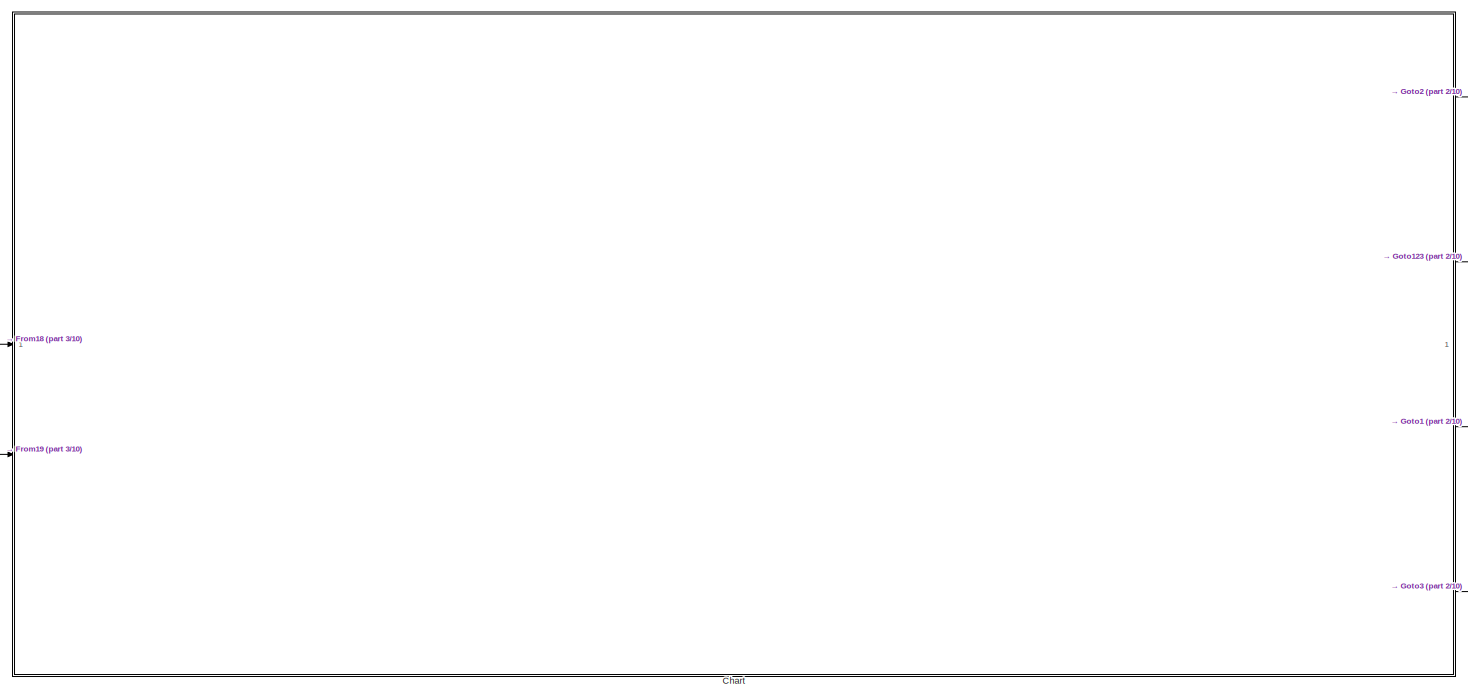
[diagram: root canvas - part 1/10, top center region]
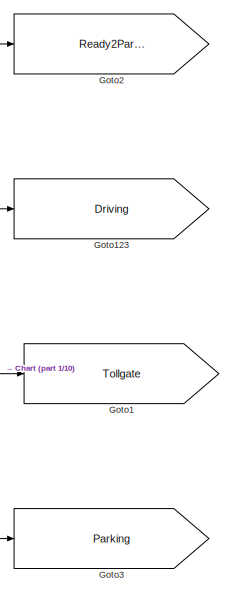
[diagram: root canvas - part 2/10, top right region]
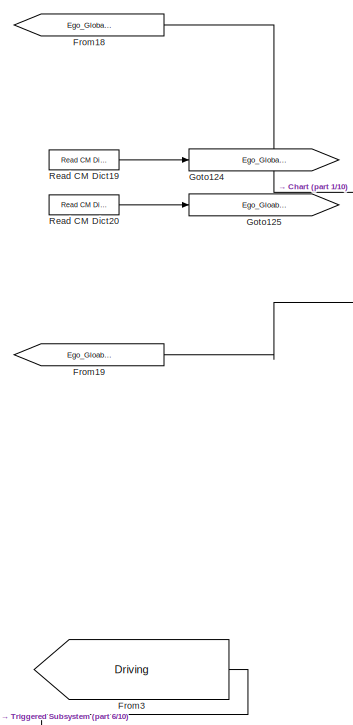
[diagram: root canvas - part 3/10, top left region]
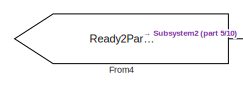
[diagram: root canvas - part 4/10, top right region]
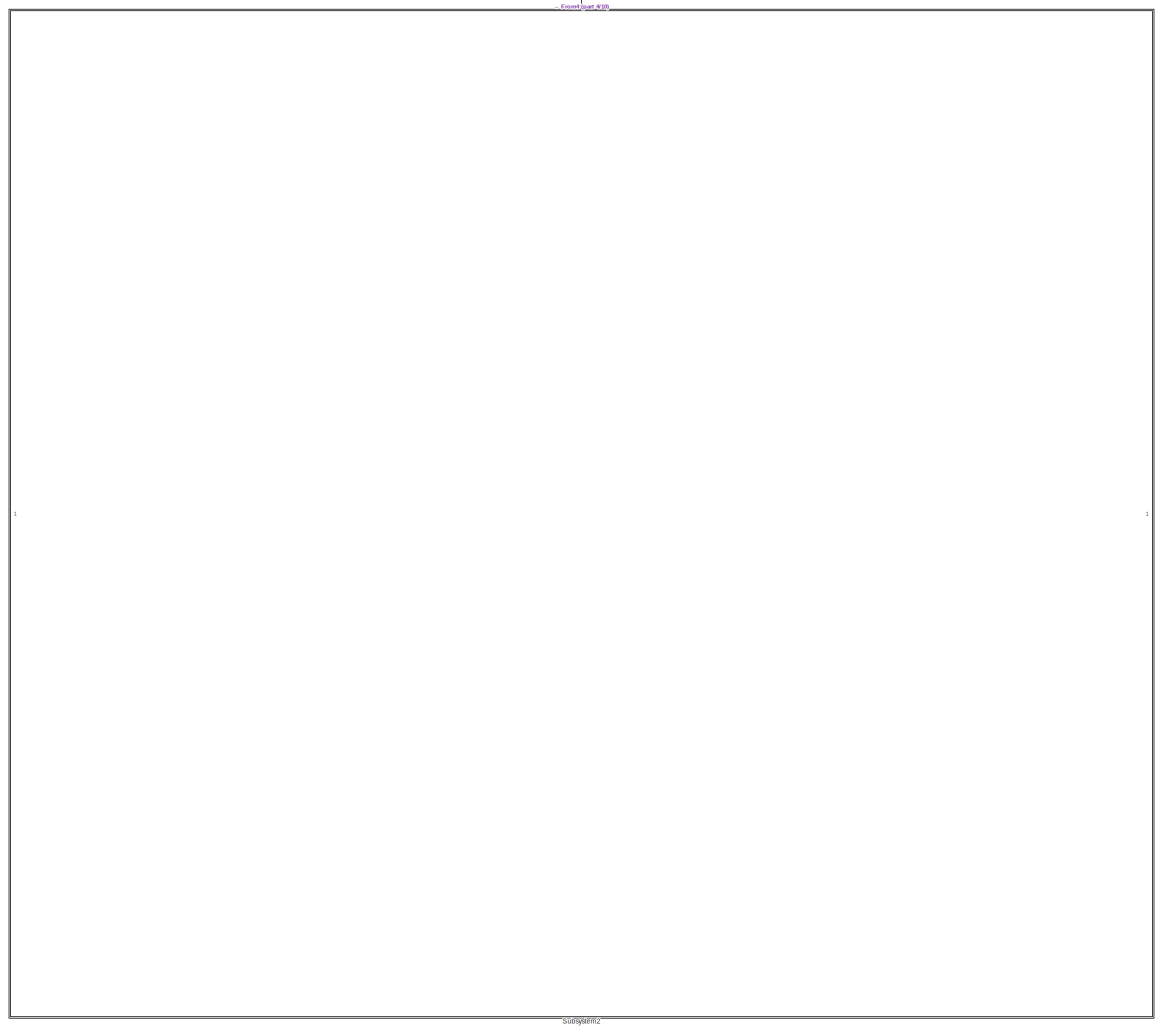
[diagram: root canvas - part 5/10, middle right region]
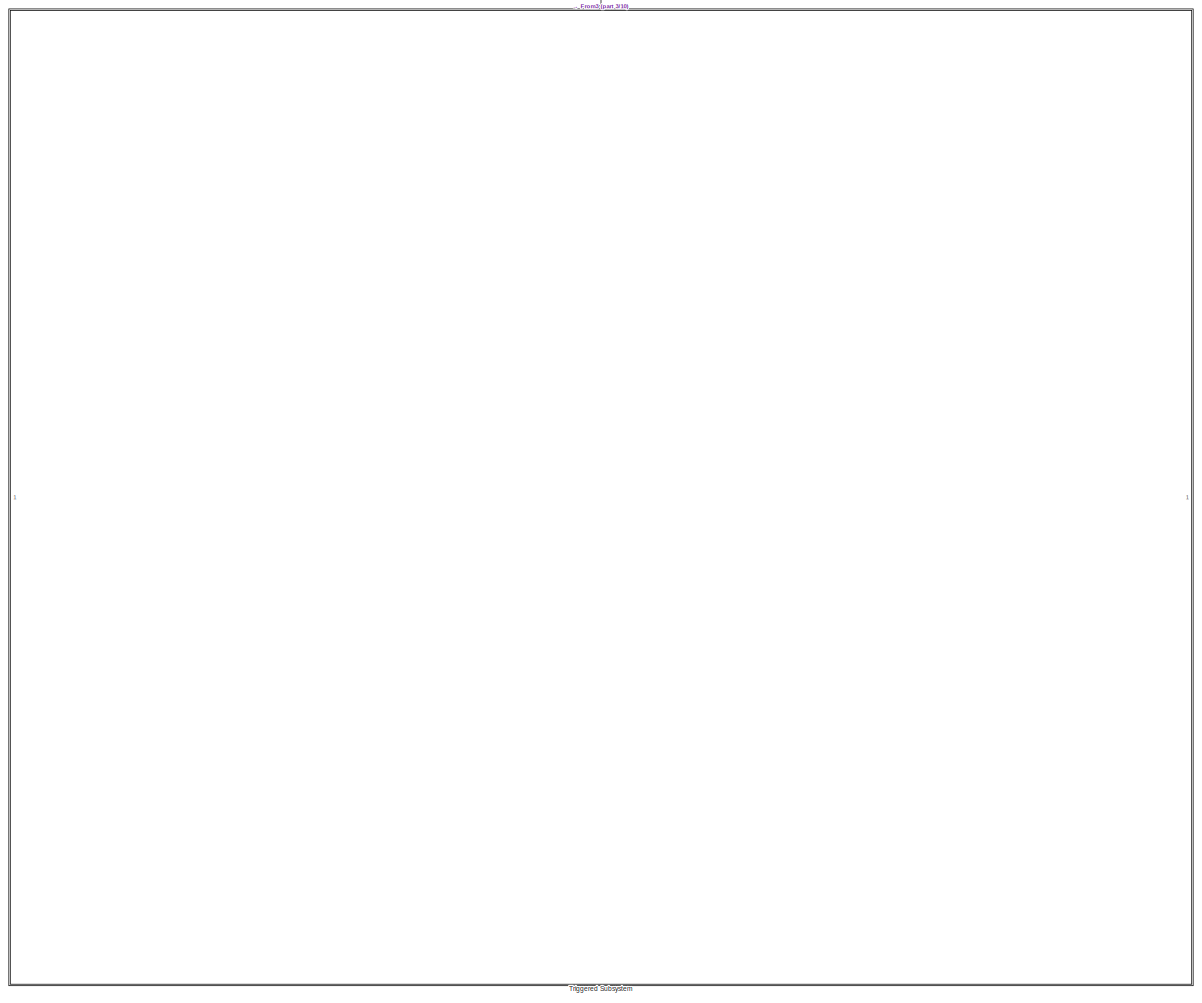
[diagram: root canvas - part 6/10, middle left region]
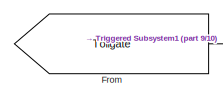
[diagram: root canvas - part 7/10, middle left region]
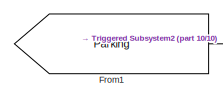
[diagram: root canvas - part 8/10, middle right region]
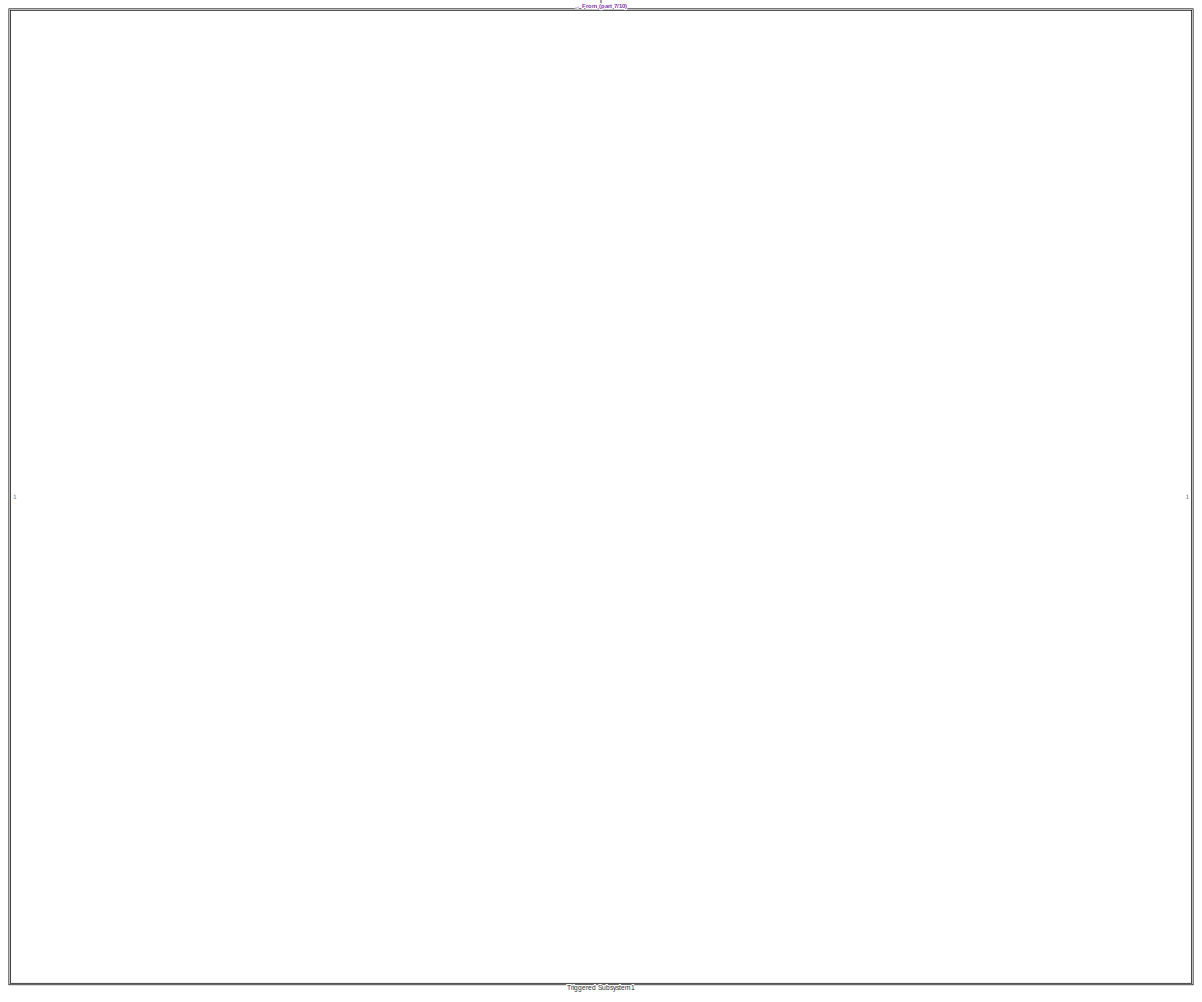
[diagram: root canvas - part 9/10, bottom left region]
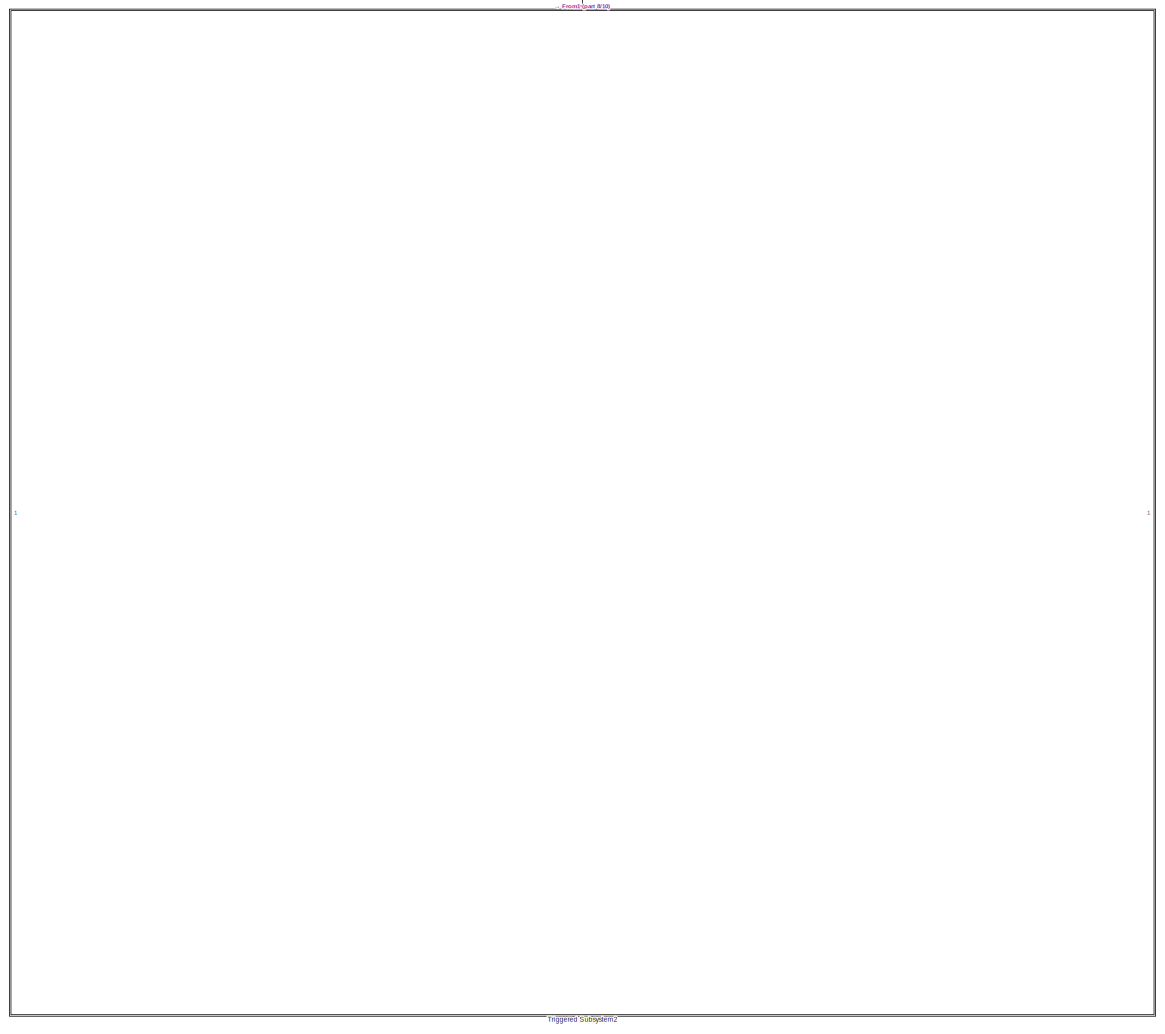
[diagram: root canvas - part 10/10, bottom right region]
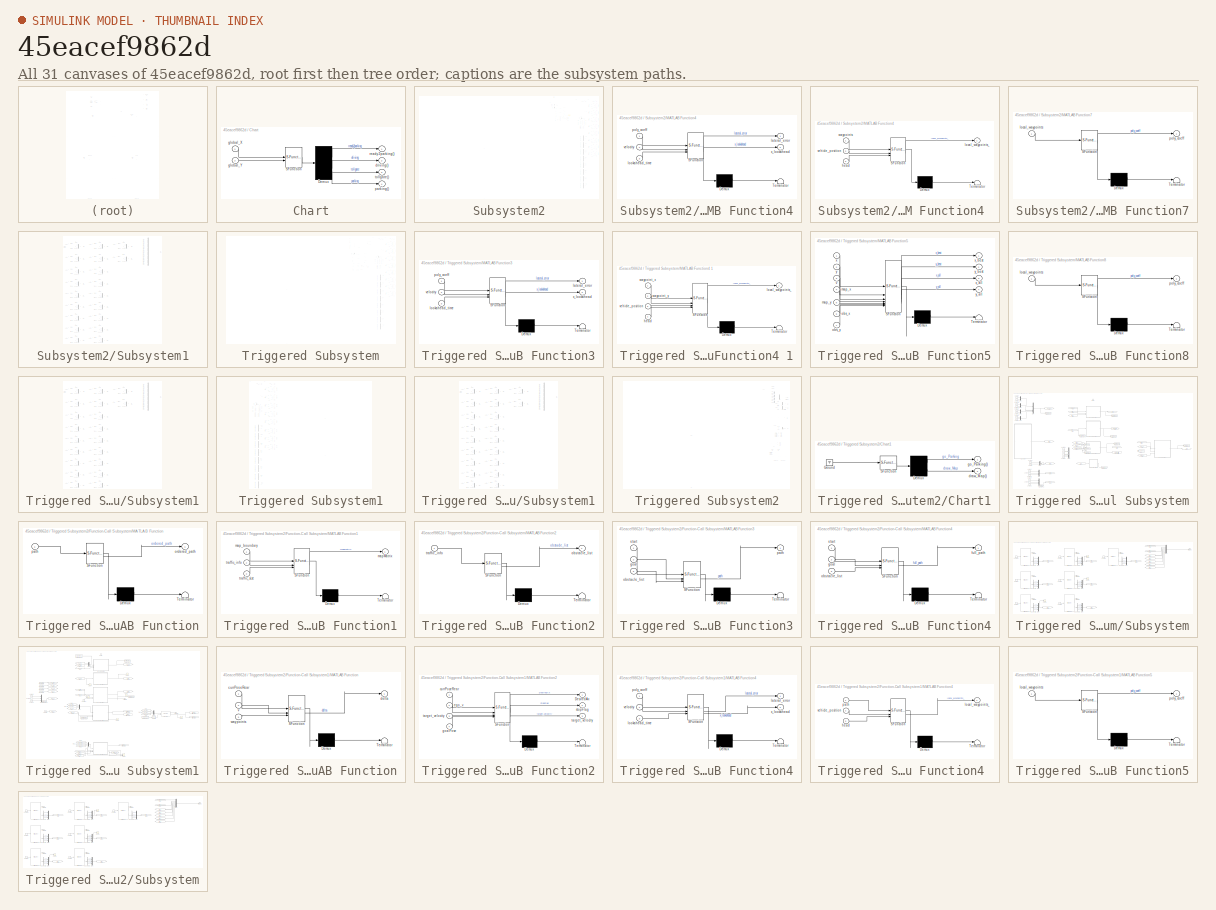
[diagram: thumbnail index - all 31 canvases of the model, root first then tree order]
MODEL slx_45eacef9862d
KIND model
CONFIG AbsTol = auto
CONFIG EnableMultiTasking = off
CONFIG FixedStep = auto
CONFIG MaxStep = auto
CONFIG MinStep = auto
CONFIG RelTol = 1e-3
CONFIG SampleTimeConstraint = Unconstrained
CONFIG SolverName = VariableStepAuto
CONFIG StartTime = 0.0
CONFIG StopTime = 10.0
BLOCK [SubSystem] Chart
  ErrorFcn = Stateflow.Translate.translate
  PermitHierarchicalResolution = ExplicitOnly
  SFBlockType = Chart
  TreatAsAtomicUnit = on
BLOCK [Demux] Chart/ Demux 
BLOCK [S-Function] Chart/ SFunction 
  EnableBusSupport = on
  FunctionName = sf_sfun
  PortCounts = [2 1]
  SFcnIsStateOwnerBlock = off
  SFunctionDeploymentMode = off
  Tag = Stateflow S-Function 36
BLOCK [Outport] Chart/driving()
  Port = 2
BLOCK [Inport] Chart/global_X
BLOCK [Inport] Chart/global_Y
  Port = 2
BLOCK [Outport] Chart/parking()
  Port = 4
BLOCK [Outport] Chart/ready2parking()
BLOCK [Outport] Chart/tollgate()
  Port = 3
BLOCK [From] From
  GotoTag = Tollgate
BLOCK [From] From1
  GotoTag = Parking
BLOCK [From] From18
  GotoTag = Ego_Global_X
BLOCK [From] From19
  GotoTag = Ego_Gloabl_Y
BLOCK [From] From3
  GotoTag = Driving
BLOCK [From] From4
  GotoTag = Ready2Parking
BLOCK [Goto] Goto1
  GotoTag = Tollgate
BLOCK [Goto] Goto123
  GotoTag = Driving
BLOCK [Goto] Goto124
  GotoTag = Ego_Global_X
BLOCK [Goto] Goto125
  GotoTag = Ego_Gloabl_Y
BLOCK [Goto] Goto2
  GotoTag = Ready2Parking
BLOCK [Goto] Goto3
  GotoTag = Parking
BLOCK [Reference] Read CM Dict19  REF=CarMaker4SL/Read CM Dict
  SourceBlock = CarMaker4SL/Read CM Dict
  SourceProductName = CarMaker4SL
  SourceType = Read CarMaker Dictionary Variable(s)
BLOCK [Reference] Read CM Dict20  REF=CarMaker4SL/Read CM Dict
  SourceBlock = CarMaker4SL/Read CM Dict
  SourceProductName = CarMaker4SL
  SourceType = Read CarMaker Dictionary Variable(s)
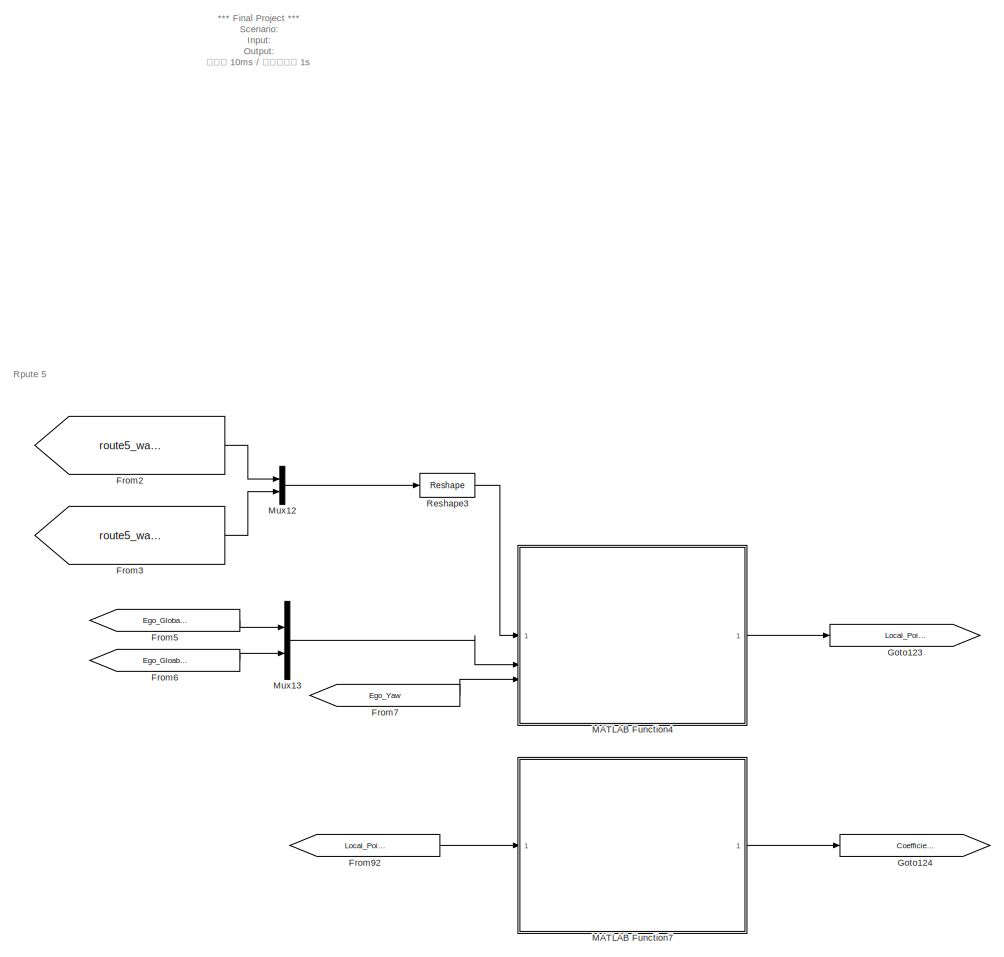
[diagram: Subsystem2 - part 1/11, top right region]
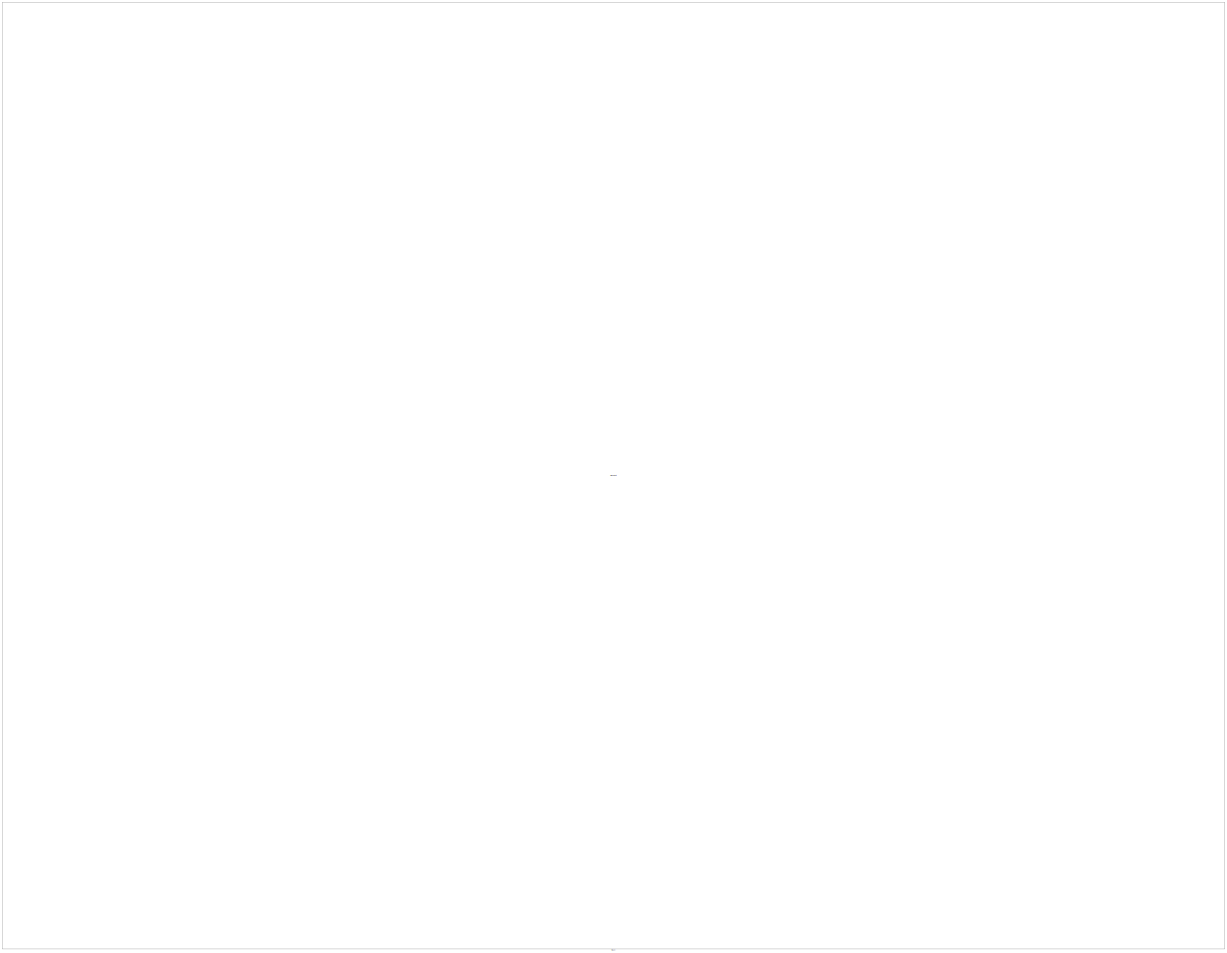
[diagram: Subsystem2 - part 2/11, most of the canvas]
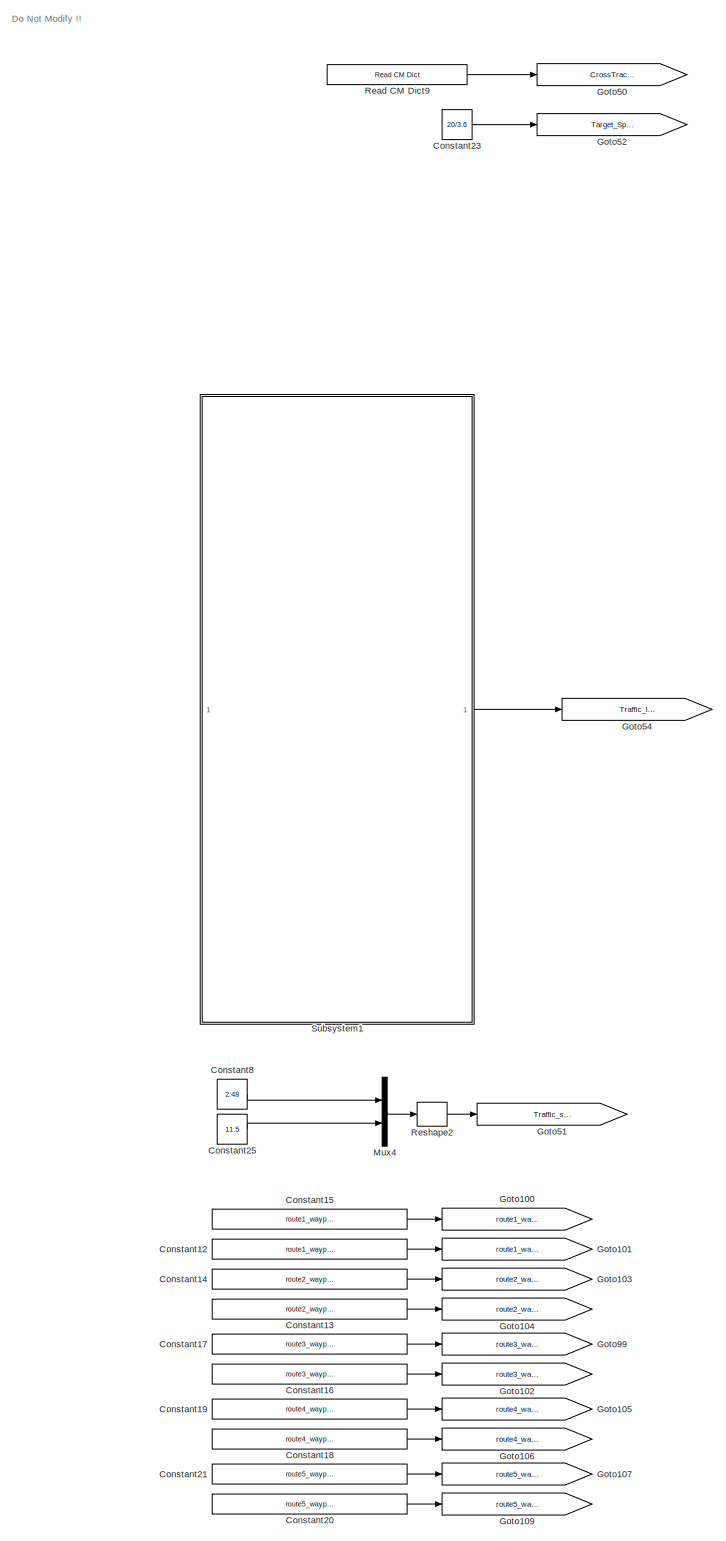
[diagram: Subsystem2 - part 3/11, top right region]
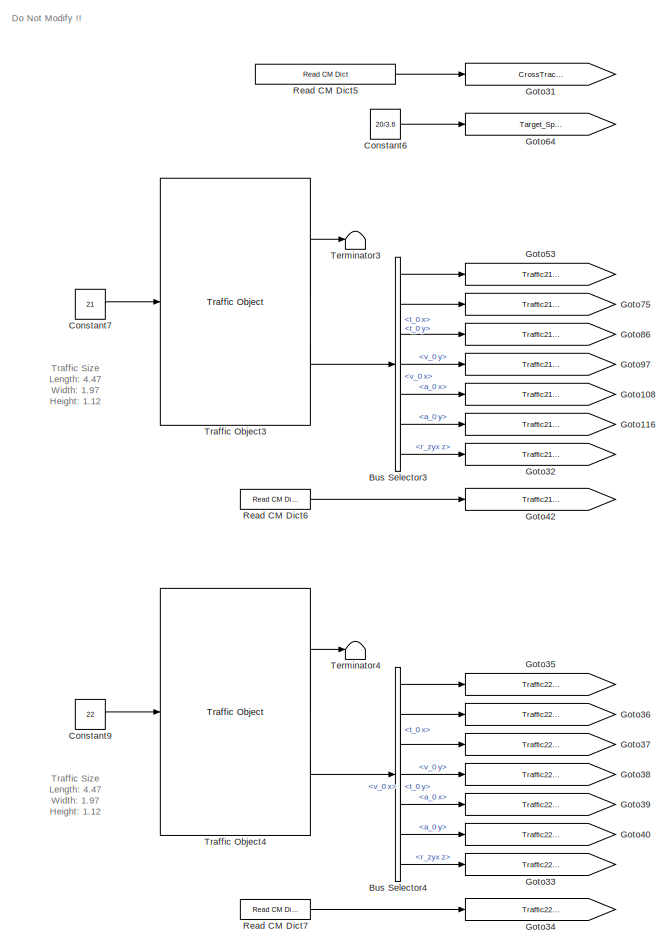
[diagram: Subsystem2 - part 4/11, top right region]
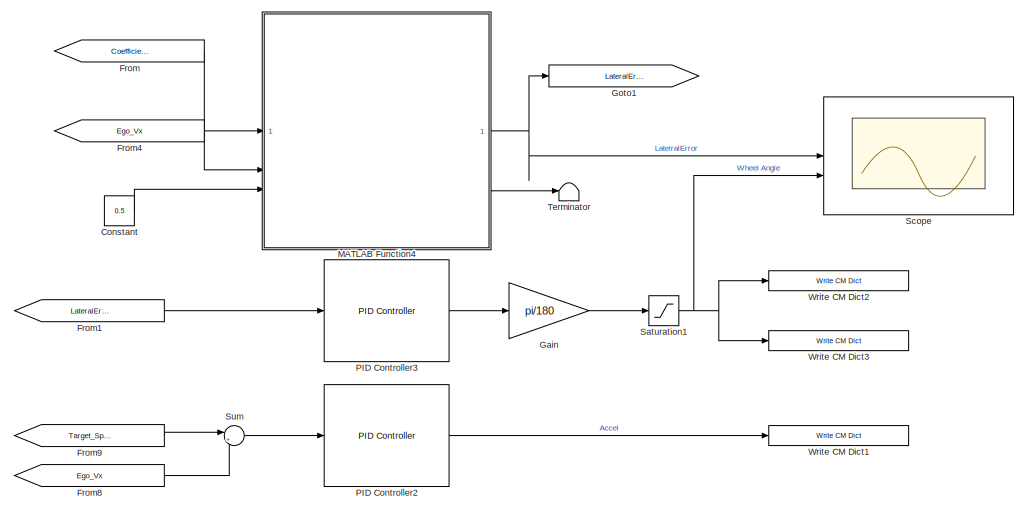
[diagram: Subsystem2 - part 5/11, top right region]
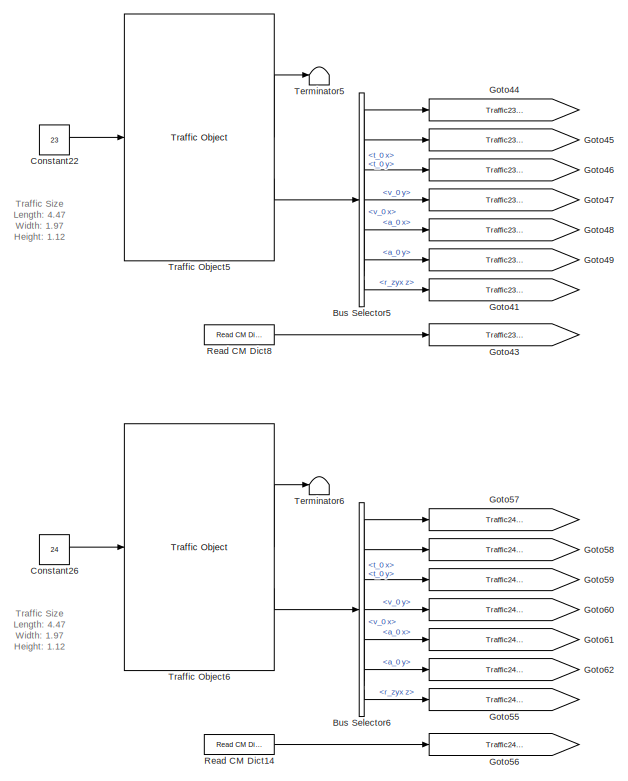
[diagram: Subsystem2 - part 6/11, top right region]
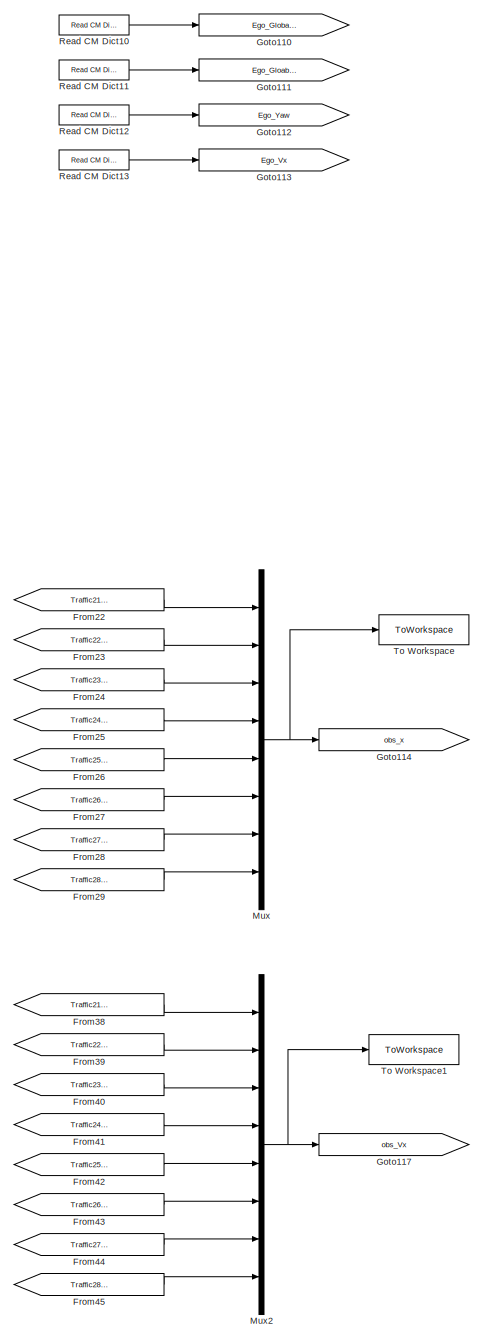
[diagram: Subsystem2 - part 7/11, middle right region]
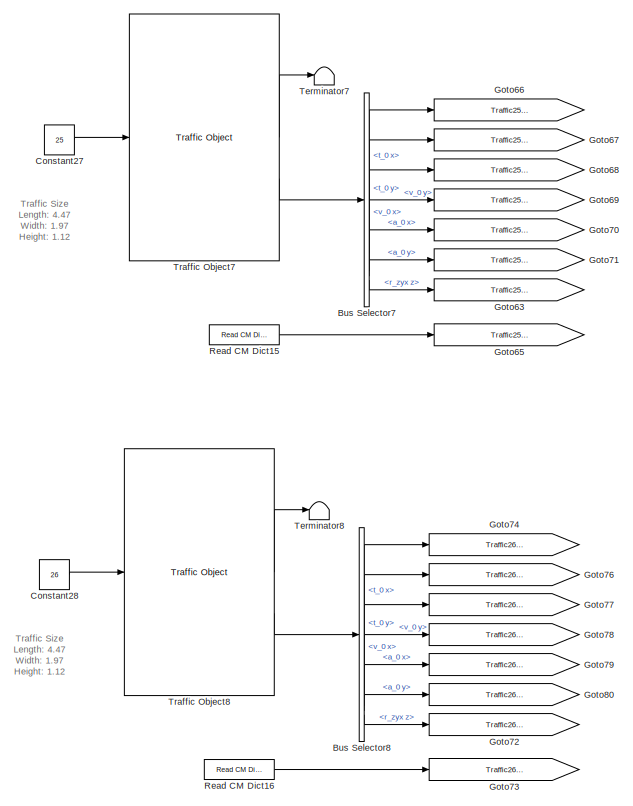
[diagram: Subsystem2 - part 8/11, middle right region]
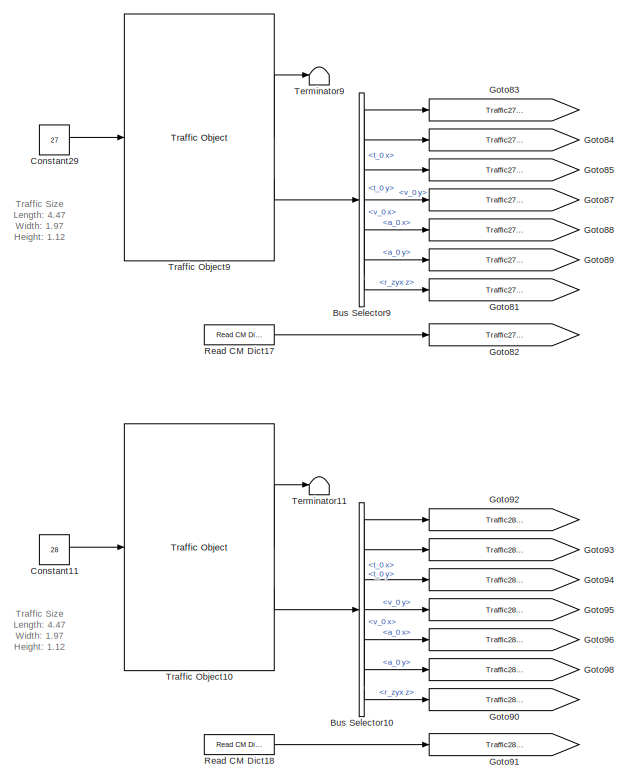
[diagram: Subsystem2 - part 9/11, middle right region]
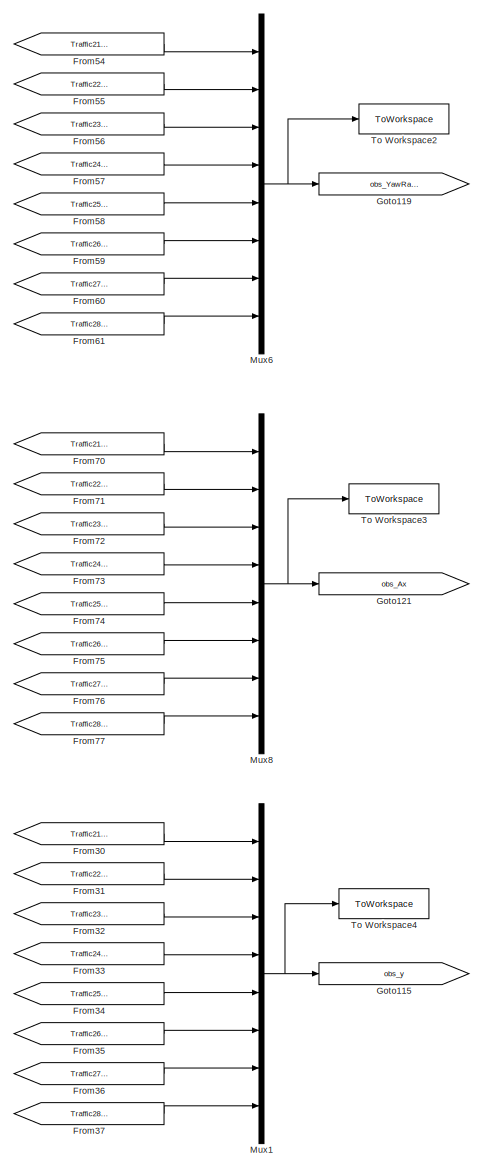
[diagram: Subsystem2 - part 10/11, middle right region]
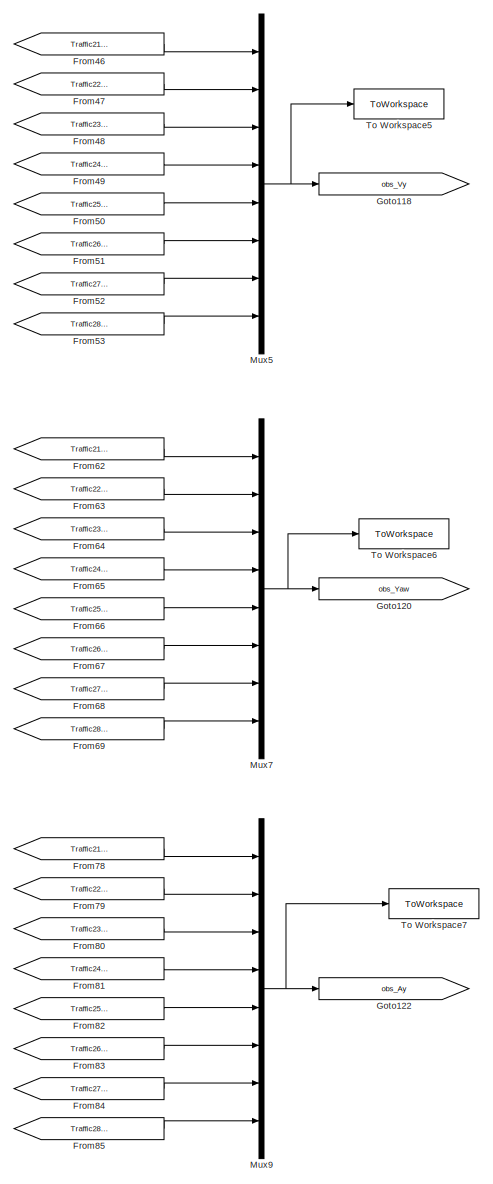
[diagram: Subsystem2 - part 11/11, bottom right region]
BLOCK [SubSystem] Subsystem2
BLOCK [BusSelector] Subsystem2/Bus Selector10
  OutputSignals = t_0 x,t_0 y,v_0 x,v_0 y,a_0 x,a_0 y,r_zyx z
BLOCK [BusSelector] Subsystem2/Bus Selector3
  OutputSignals = t_0 x,t_0 y,v_0 x,v_0 y,a_0 x,a_0 y,r_zyx z
BLOCK [BusSelector] Subsystem2/Bus Selector4
  OutputSignals = t_0 x,t_0 y,v_0 x,v_0 y,a_0 x,a_0 y,r_zyx z
BLOCK [BusSelector] Subsystem2/Bus Selector5
  OutputSignals = t_0 x,t_0 y,v_0 x,v_0 y,a_0 x,a_0 y,r_zyx z
BLOCK [BusSelector] Subsystem2/Bus Selector6
  OutputSignals = t_0 x,t_0 y,v_0 x,v_0 y,a_0 x,a_0 y,r_zyx z
BLOCK [BusSelector] Subsystem2/Bus Selector7
  OutputSignals = t_0 x,t_0 y,v_0 x,v_0 y,a_0 x,a_0 y,r_zyx z
BLOCK [BusSelector] Subsystem2/Bus Selector8
  OutputSignals = t_0 x,t_0 y,v_0 x,v_0 y,a_0 x,a_0 y,r_zyx z
BLOCK [BusSelector] Subsystem2/Bus Selector9
  OutputSignals = t_0 x,t_0 y,v_0 x,v_0 y,a_0 x,a_0 y,r_zyx z
BLOCK [Constant] Subsystem2/Constant
  Value = 0.5
BLOCK [Constant] Subsystem2/Constant11
  Value = 28
BLOCK [Constant] Subsystem2/Constant12
  Value = route1_waypoint_y.Data
BLOCK [Constant] Subsystem2/Constant13
  Value = route2_waypoint_y.Data
BLOCK [Constant] Subsystem2/Constant14
  Value = route2_waypoint_x.Data
BLOCK [Constant] Subsystem2/Constant15
  Value = route1_waypoint_x.Data
BLOCK [Constant] Subsystem2/Constant16
  Value = route3_waypoint_y.Data
BLOCK [Constant] Subsystem2/Constant17
  Value = route3_waypoint_x.Data
BLOCK [Constant] Subsystem2/Constant18
  Value = route4_waypoint_y.Data
BLOCK [Constant] Subsystem2/Constant19
  Value = route4_waypoint_x.Data
BLOCK [Constant] Subsystem2/Constant20
  Value = route5_waypoint_y.Data
BLOCK [Constant] Subsystem2/Constant21
  Value = route5_waypoint_x.Data
BLOCK [Constant] Subsystem2/Constant22
  Value = 23
BLOCK [Constant] Subsystem2/Constant23
  Value = 20/3.6
BLOCK [Constant] Subsystem2/Constant25
  Value = 11.5
BLOCK [Constant] Subsystem2/Constant26
  Value = 24
BLOCK [Constant] Subsystem2/Constant27
  Value = 25
BLOCK [Constant] Subsystem2/Constant28
  Value = 26
BLOCK [Constant] Subsystem2/Constant29
  Value = 27
BLOCK [Constant] Subsystem2/Constant6
  Commented = on
  Value = 20/3.6
BLOCK [Constant] Subsystem2/Constant7
  Value = 21
BLOCK [Constant] Subsystem2/Constant8
  Value = 2.48
BLOCK [Constant] Subsystem2/Constant9
  Value = 22
BLOCK [From] Subsystem2/From
  GotoTag = Coefficients
BLOCK [From] Subsystem2/From1
  GotoTag = LateralError
BLOCK [From] Subsystem2/From2
  GotoTag = route5_waypoint_x
BLOCK [From] Subsystem2/From22
  GotoTag = Traffic21_Global_X
BLOCK [From] Subsystem2/From23
  GotoTag = Traffic22_Global_X
BLOCK [From] Subsystem2/From24
  GotoTag = Traffic23_Global_X
BLOCK [From] Subsystem2/From25
  GotoTag = Traffic24_Global_X
BLOCK [From] Subsystem2/From26
  GotoTag = Traffic25_Global_X
BLOCK [From] Subsystem2/From27
  GotoTag = Traffic26_Global_X
BLOCK [From] Subsystem2/From28
  GotoTag = Traffic27_Global_X
BLOCK [From] Subsystem2/From29
  GotoTag = Traffic28_Global_X
BLOCK [From] Subsystem2/From3
  GotoTag = route5_waypoint_y
BLOCK [From] Subsystem2/From30
  GotoTag = Traffic21_Global_Y
BLOCK [From] Subsystem2/From31
  GotoTag = Traffic22_Global_Y
BLOCK [From] Subsystem2/From32
  GotoTag = Traffic23_Global_Y
BLOCK [From] Subsystem2/From33
  GotoTag = Traffic24_Global_Y
BLOCK [From] Subsystem2/From34
  GotoTag = Traffic25_Global_Y
BLOCK [From] Subsystem2/From35
  GotoTag = Traffic26_Global_Y
BLOCK [From] Subsystem2/From36
  GotoTag = Traffic27_Global_Y
BLOCK [From] Subsystem2/From37
  GotoTag = Traffic28_Global_Y
BLOCK [From] Subsystem2/From38
  GotoTag = Traffic21_Vx
BLOCK [From] Subsystem2/From39
  GotoTag = Traffic22_Vx
BLOCK [From] Subsystem2/From4
  GotoTag = Ego_Vx
BLOCK [From] Subsystem2/From40
  GotoTag = Traffic23_Vx
BLOCK [From] Subsystem2/From41
  GotoTag = Traffic24_Vx
BLOCK [From] Subsystem2/From42
  GotoTag = Traffic25_Vx
BLOCK [From] Subsystem2/From43
  GotoTag = Traffic26_Vx
BLOCK [From] Subsystem2/From44
  GotoTag = Traffic27_Vx
BLOCK [From] Subsystem2/From45
  GotoTag = Traffic28_Vx
BLOCK [From] Subsystem2/From46
  GotoTag = Traffic21_Vy
BLOCK [From] Subsystem2/From47
  GotoTag = Traffic22_Vy
BLOCK [From] Subsystem2/From48
  GotoTag = Traffic23_Vy
BLOCK [From] Subsystem2/From49
  GotoTag = Traffic24_Vy
BLOCK [From] Subsystem2/From5
  GotoTag = Ego_Global_X
BLOCK [From] Subsystem2/From50
  GotoTag = Traffic25_Vy
BLOCK [From] Subsystem2/From51
  GotoTag = Traffic26_Vy
BLOCK [From] Subsystem2/From52
  GotoTag = Traffic27_Vy
BLOCK [From] Subsystem2/From53
  GotoTag = Traffic28_Vy
BLOCK [From] Subsystem2/From54
  GotoTag = Traffic21_YawRate
BLOCK [From] Subsystem2/From55
  GotoTag = Traffic22_YawRate
BLOCK [From] Subsystem2/From56
  GotoTag = Traffic23_YawRate
BLOCK [From] Subsystem2/From57
  GotoTag = Traffic24_YawRate
BLOCK [From] Subsystem2/From58
  GotoTag = Traffic25_YawRate
BLOCK [From] Subsystem2/From59
  GotoTag = Traffic26_YawRate
BLOCK [From] Subsystem2/From6
  GotoTag = Ego_Gloabl_Y
BLOCK [From] Subsystem2/From60
  GotoTag = Traffic27_YawRate
BLOCK [From] Subsystem2/From61
  GotoTag = Traffic28_Vx
BLOCK [From] Subsystem2/From62
  GotoTag = Traffic21_Yaw
BLOCK [From] Subsystem2/From63
  GotoTag = Traffic22_Yaw
BLOCK [From] Subsystem2/From64
  GotoTag = Traffic23_Yaw
BLOCK [From] Subsystem2/From65
  GotoTag = Traffic24_Yaw
BLOCK [From] Subsystem2/From66
  GotoTag = Traffic25_Yaw
BLOCK [From] Subsystem2/From67
  GotoTag = Traffic26_Yaw
BLOCK [From] Subsystem2/From68
  GotoTag = Traffic27_Yaw
BLOCK [From] Subsystem2/From69
  GotoTag = Traffic28_Yaw
BLOCK [From] Subsystem2/From7
  GotoTag = Ego_Yaw
BLOCK [From] Subsystem2/From70
  GotoTag = Traffic21_Ax
BLOCK [From] Subsystem2/From71
  GotoTag = Traffic22_Ax
BLOCK [From] Subsystem2/From72
  GotoTag = Traffic23_Ax
BLOCK [From] Subsystem2/From73
  GotoTag = Traffic24_Ax
BLOCK [From] Subsystem2/From74
  GotoTag = Traffic25_Ax
BLOCK [From] Subsystem2/From75
  GotoTag = Traffic26_Ax
BLOCK [From] Subsystem2/From76
  GotoTag = Traffic27_Ax
BLOCK [From] Subsystem2/From77
  GotoTag = Traffic28_Ax
BLOCK [From] Subsystem2/From78
  GotoTag = Traffic21_Ay
BLOCK [From] Subsystem2/From79
  GotoTag = Traffic22_Ay
BLOCK [From] Subsystem2/From8
  GotoTag = Ego_Vx
BLOCK [From] Subsystem2/From80
  GotoTag = Traffic23_Ay
BLOCK [From] Subsystem2/From81
  GotoTag = Traffic24_Ay
BLOCK [From] Subsystem2/From82
  GotoTag = Traffic25_Ay
BLOCK [From] Subsystem2/From83
  GotoTag = Traffic26_Ay
BLOCK [From] Subsystem2/From84
  GotoTag = Traffic27_Ay
BLOCK [From] Subsystem2/From85
  GotoTag = Traffic28_Ay
BLOCK [From] Subsystem2/From9
  GotoTag = Target_Speed
BLOCK [From] Subsystem2/From92
  GotoTag = Local_Points
BLOCK [Gain] Subsystem2/Gain
  Gain = pi/180
BLOCK [Goto] Subsystem2/Goto1
  GotoTag = LateralError
BLOCK [Goto] Subsystem2/Goto100
  GotoTag = route1_waypoint_x
BLOCK [Goto] Subsystem2/Goto101
  GotoTag = route1_waypoint_y
BLOCK [Goto] Subsystem2/Goto102
  GotoTag = route3_waypoint_y
BLOCK [Goto] Subsystem2/Goto103
  GotoTag = route2_waypoint_x
BLOCK [Goto] Subsystem2/Goto104
  GotoTag = route2_waypoint_y
BLOCK [Goto] Subsystem2/Goto105
  GotoTag = route4_waypoint_x
BLOCK [Goto] Subsystem2/Goto106
  GotoTag = route4_waypoint_y
BLOCK [Goto] Subsystem2/Goto107
  GotoTag = route5_waypoint_x
BLOCK [Goto] Subsystem2/Goto108
  GotoTag = Traffic21_Ax
BLOCK [Goto] Subsystem2/Goto109
  GotoTag = route5_waypoint_y
BLOCK [Goto] Subsystem2/Goto110
  GotoTag = Ego_Global_X
BLOCK [Goto] Subsystem2/Goto111
  GotoTag = Ego_Gloabl_Y
BLOCK [Goto] Subsystem2/Goto112
  GotoTag = Ego_Yaw
BLOCK [Goto] Subsystem2/Goto113
  GotoTag = Ego_Vx
BLOCK [Goto] Subsystem2/Goto114
  GotoTag = obs_x
BLOCK [Goto] Subsystem2/Goto115
  GotoTag = obs_y
BLOCK [Goto] Subsystem2/Goto116
  GotoTag = Traffic21_Ay
BLOCK [Goto] Subsystem2/Goto117
  GotoTag = obs_Vx
BLOCK [Goto] Subsystem2/Goto118
  GotoTag = obs_Vy
BLOCK [Goto] Subsystem2/Goto119
  GotoTag = obs_YawRate
BLOCK [Goto] Subsystem2/Goto120
  GotoTag = obs_Yaw
BLOCK [Goto] Subsystem2/Goto121
  GotoTag = obs_Ax
BLOCK [Goto] Subsystem2/Goto122
  GotoTag = obs_Ay
BLOCK [Goto] Subsystem2/Goto123
  GotoTag = Local_Points
BLOCK [Goto] Subsystem2/Goto124
  GotoTag = Coefficients
BLOCK [Goto] Subsystem2/Goto31
  Commented = on
  GotoTag = CrossTrackError
BLOCK [Goto] Subsystem2/Goto32
  GotoTag = Traffic21_Yaw
BLOCK [Goto] Subsystem2/Goto33
  GotoTag = Traffic22_Yaw
BLOCK [Goto] Subsystem2/Goto34
  GotoTag = Traffic22_YawRate
BLOCK [Goto] Subsystem2/Goto35
  GotoTag = Traffic22_Global_X
BLOCK [Goto] Subsystem2/Goto36
  GotoTag = Traffic22_Global_Y
BLOCK [Goto] Subsystem2/Goto37
  GotoTag = Traffic22_Vx
BLOCK [Goto] Subsystem2/Goto38
  GotoTag = Traffic22_Vy
BLOCK [Goto] Subsystem2/Goto39
  GotoTag = Traffic22_Ax
BLOCK [Goto] Subsystem2/Goto40
  GotoTag = Traffic22_Ay
BLOCK [Goto] Subsystem2/Goto41
  GotoTag = Traffic23_Yaw
BLOCK [Goto] Subsystem2/Goto42
  GotoTag = Traffic21_YawRate
BLOCK [Goto] Subsystem2/Goto43
  GotoTag = Traffic23_YawRate
BLOCK [Goto] Subsystem2/Goto44
  GotoTag = Traffic23_Global_X
BLOCK [Goto] Subsystem2/Goto45
  GotoTag = Traffic23_Global_Y
BLOCK [Goto] Subsystem2/Goto46
  GotoTag = Traffic23_Vx
BLOCK [Goto] Subsystem2/Goto47
  GotoTag = Traffic23_Vy
BLOCK [Goto] Subsystem2/Goto48
  GotoTag = Traffic23_Ax
BLOCK [Goto] Subsystem2/Goto49
  GotoTag = Traffic23_Ay
BLOCK [Goto] Subsystem2/Goto50
  GotoTag = CrossTrackError
BLOCK [Goto] Subsystem2/Goto51
  GotoTag = Traffic_size
BLOCK [Goto] Subsystem2/Goto52
  GotoTag = Target_Speed
BLOCK [Goto] Subsystem2/Goto53
  GotoTag = Traffic21_Global_X
BLOCK [Goto] Subsystem2/Goto54
  GotoTag = Traffic_Info
BLOCK [Goto] Subsystem2/Goto55
  GotoTag = Traffic24_Yaw
BLOCK [Goto] Subsystem2/Goto56
  GotoTag = Traffic24_YawRate
BLOCK [Goto] Subsystem2/Goto57
  GotoTag = Traffic24_Global_X
BLOCK [Goto] Subsystem2/Goto58
  GotoTag = Traffic24_Global_Y
BLOCK [Goto] Subsystem2/Goto59
  GotoTag = Traffic24_Vx
BLOCK [Goto] Subsystem2/Goto60
  GotoTag = Traffic24_Vy
BLOCK [Goto] Subsystem2/Goto61
  GotoTag = Traffic24_Ax
BLOCK [Goto] Subsystem2/Goto62
  GotoTag = Traffic24_Ay
BLOCK [Goto] Subsystem2/Goto63
  GotoTag = Traffic25_Yaw
BLOCK [Goto] Subsystem2/Goto64
  Commented = on
  GotoTag = Target_Speed
BLOCK [Goto] Subsystem2/Goto65
  GotoTag = Traffic25_YawRate
BLOCK [Goto] Subsystem2/Goto66
  GotoTag = Traffic25_Global_X
BLOCK [Goto] Subsystem2/Goto67
  GotoTag = Traffic25_Global_Y
BLOCK [Goto] Subsystem2/Goto68
  GotoTag = Traffic25_Vx
BLOCK [Goto] Subsystem2/Goto69
  GotoTag = Traffic25_Vy
BLOCK [Goto] Subsystem2/Goto70
  GotoTag = Traffic25_Ax
BLOCK [Goto] Subsystem2/Goto71
  GotoTag = Traffic25_Ay
BLOCK [Goto] Subsystem2/Goto72
  GotoTag = Traffic26_Yaw
BLOCK [Goto] Subsystem2/Goto73
  GotoTag = Traffic26_YawRate
BLOCK [Goto] Subsystem2/Goto74
  GotoTag = Traffic26_Global_X
BLOCK [Goto] Subsystem2/Goto75
  GotoTag = Traffic21_Global_Y
BLOCK [Goto] Subsystem2/Goto76
  GotoTag = Traffic26_Global_Y
BLOCK [Goto] Subsystem2/Goto77
  GotoTag = Traffic26_Vx
BLOCK [Goto] Subsystem2/Goto78
  GotoTag = Traffic26_Vy
BLOCK [Goto] Subsystem2/Goto79
  GotoTag = Traffic26_Ax
BLOCK [Goto] Subsystem2/Goto80
  GotoTag = Traffic26_Ay
BLOCK [Goto] Subsystem2/Goto81
  GotoTag = Traffic27_Yaw
BLOCK [Goto] Subsystem2/Goto82
  GotoTag = Traffic27_YawRate
BLOCK [Goto] Subsystem2/Goto83
  GotoTag = Traffic27_Global_X
BLOCK [Goto] Subsystem2/Goto84
  GotoTag = Traffic27_Global_Y
BLOCK [Goto] Subsystem2/Goto85
  GotoTag = Traffic27_Vx
BLOCK [Goto] Subsystem2/Goto86
  GotoTag = Traffic21_Vx
BLOCK [Goto] Subsystem2/Goto87
  GotoTag = Traffic27_Vy
BLOCK [Goto] Subsystem2/Goto88
  GotoTag = Traffic27_Ax
BLOCK [Goto] Subsystem2/Goto89
  GotoTag = Traffic27_Ay
BLOCK [Goto] Subsystem2/Goto90
  GotoTag = Traffic28_Yaw
BLOCK [Goto] Subsystem2/Goto91
  GotoTag = Traffic28_YawRate
BLOCK [Goto] Subsystem2/Goto92
  GotoTag = Traffic28_Global_X
BLOCK [Goto] Subsystem2/Goto93
  GotoTag = Traffic28_Global_Y
BLOCK [Goto] Subsystem2/Goto94
  GotoTag = Traffic28_Vx
BLOCK [Goto] Subsystem2/Goto95
  GotoTag = Traffic28_Vy
BLOCK [Goto] Subsystem2/Goto96
  GotoTag = Traffic28_Ax
BLOCK [Goto] Subsystem2/Goto97
  GotoTag = Traffic21_Vy
BLOCK [Goto] Subsystem2/Goto98
  GotoTag = Traffic28_Ay
BLOCK [Goto] Subsystem2/Goto99
  GotoTag = route3_waypoint_x
BLOCK [SubSystem] Subsystem2/MATLAB Function4
  ErrorFcn = Stateflow.Translate.translate
  PermitHierarchicalResolution = ExplicitOnly
  SFBlockType = MATLAB Function
  TreatAsAtomicUnit = on
BLOCK [SubSystem] Subsystem2/MATLAB Function4 
  ErrorFcn = Stateflow.Translate.translate
  PermitHierarchicalResolution = ExplicitOnly
  SFBlockType = MATLAB Function
  TreatAsAtomicUnit = on
BLOCK [Demux] Subsystem2/MATLAB Function4 / Demux 
  Outputs = 1
BLOCK [S-Function] Subsystem2/MATLAB Function4 / SFunction 
  EnableBusSupport = on
  FunctionName = sf_sfun
  PortCounts = [3 2]
  SFcnIsStateOwnerBlock = off
  SFunctionDeploymentMode = off
  Tag = Stateflow S-Function 7
BLOCK [Terminator] Subsystem2/MATLAB Function4 / Terminator 
BLOCK [Inport] Subsystem2/MATLAB Function4 /head
  Port = 3
BLOCK [Outport] Subsystem2/MATLAB Function4 /local_waypoints_
BLOCK [Inport] Subsystem2/MATLAB Function4 /vehicle_position
  Port = 2
BLOCK [Inport] Subsystem2/MATLAB Function4 /waypoints
BLOCK [Demux] Subsystem2/MATLAB Function4/ Demux 
  Outputs = 1
BLOCK [S-Function] Subsystem2/MATLAB Function4/ SFunction 
  EnableBusSupport = on
  FunctionName = sf_sfun
  PortCounts = [3 3]
  SFcnIsStateOwnerBlock = off
  SFunctionDeploymentMode = off
  Tag = Stateflow S-Function 4
BLOCK [Terminator] Subsystem2/MATLAB Function4/ Terminator 
BLOCK [Outport] Subsystem2/MATLAB Function4/lateral_error
BLOCK [Inport] Subsystem2/MATLAB Function4/lookahead_time
  Port = 3
BLOCK [Inport] Subsystem2/MATLAB Function4/poly_coeff
BLOCK [Inport] Subsystem2/MATLAB Function4/velocity
  Port = 2
BLOCK [Outport] Subsystem2/MATLAB Function4/x_lookahead
  Port = 2
BLOCK [SubSystem] Subsystem2/MATLAB Function7
  ErrorFcn = Stateflow.Translate.translate
  PermitHierarchicalResolution = ExplicitOnly
  SFBlockType = MATLAB Function
  TreatAsAtomicUnit = on
BLOCK [Demux] Subsystem2/MATLAB Function7/ Demux 
  Outputs = 1
BLOCK [S-Function] Subsystem2/MATLAB Function7/ SFunction 
  EnableBusSupport = on
  FunctionName = sf_sfun
  PortCounts = [1 2]
  SFcnIsStateOwnerBlock = off
  SFunctionDeploymentMode = off
  Tag = Stateflow S-Function 8
BLOCK [Terminator] Subsystem2/MATLAB Function7/ Terminator 
BLOCK [Inport] Subsystem2/MATLAB Function7/local_waypoints
BLOCK [Outport] Subsystem2/MATLAB Function7/poly_coeff
BLOCK [Mux] Subsystem2/Mux
  DisplayOption = bar
  Inputs = 8
BLOCK [Mux] Subsystem2/Mux1
  DisplayOption = bar
  Inputs = 8
BLOCK [Mux] Subsystem2/Mux12
  DisplayOption = bar
  Inputs = 2
BLOCK [Mux] Subsystem2/Mux13
  DisplayOption = bar
  Inputs = 2
BLOCK [Mux] Subsystem2/Mux2
  DisplayOption = bar
  Inputs = 8
BLOCK [Mux] Subsystem2/Mux4
  DisplayOption = bar
  Inputs = 2
BLOCK [Mux] Subsystem2/Mux5
  DisplayOption = bar
  Inputs = 8
BLOCK [Mux] Subsystem2/Mux6
  DisplayOption = bar
  Inputs = 8
BLOCK [Mux] Subsystem2/Mux7
  DisplayOption = bar
  Inputs = 8
BLOCK [Mux] Subsystem2/Mux8
  DisplayOption = bar
  Inputs = 8
BLOCK [Mux] Subsystem2/Mux9
  DisplayOption = bar
  Inputs = 8
BLOCK [Reference] Subsystem2/PID Controller2  REF=slpidlib/PID Controller
  SourceBlock = slpidlib/PID Controller
  SourceType = PID 1dof
BLOCK [Reference] Subsystem2/PID Controller3  REF=slpidlib/PID Controller
  SourceBlock = slpidlib/PID Controller
  SourceType = PID 1dof
BLOCK [Reference] Subsystem2/Read CM Dict10  REF=CarMaker4SL/Read CM Dict
  SourceBlock = CarMaker4SL/Read CM Dict
  SourceProductName = CarMaker4SL
  SourceType = Read CarMaker Dictionary Variable(s)
BLOCK [Reference] Subsystem2/Read CM Dict11  REF=CarMaker4SL/Read CM Dict
  SourceBlock = CarMaker4SL/Read CM Dict
  SourceProductName = CarMaker4SL
  SourceType = Read CarMaker Dictionary Variable(s)
BLOCK [Reference] Subsystem2/Read CM Dict12  REF=CarMaker4SL/Read CM Dict
  SourceBlock = CarMaker4SL/Read CM Dict
  SourceProductName = CarMaker4SL
  SourceType = Read CarMaker Dictionary Variable(s)
BLOCK [Reference] Subsystem2/Read CM Dict13  REF=CarMaker4SL/Read CM Dict
  SourceBlock = CarMaker4SL/Read CM Dict
  SourceProductName = CarMaker4SL
  SourceType = Read CarMaker Dictionary Variable(s)
BLOCK [Reference] Subsystem2/Read CM Dict14  REF=CarMaker4SL/Read CM Dict
  SourceBlock = CarMaker4SL/Read CM Dict
  SourceProductName = CarMaker4SL
  SourceType = Read CarMaker Dictionary Variable(s)
BLOCK [Reference] Subsystem2/Read CM Dict15  REF=CarMaker4SL/Read CM Dict
  SourceBlock = CarMaker4SL/Read CM Dict
  SourceProductName = CarMaker4SL
  SourceType = Read CarMaker Dictionary Variable(s)
BLOCK [Reference] Subsystem2/Read CM Dict16  REF=CarMaker4SL/Read CM Dict
  SourceBlock = CarMaker4SL/Read CM Dict
  SourceProductName = CarMaker4SL
  SourceType = Read CarMaker Dictionary Variable(s)
BLOCK [Reference] Subsystem2/Read CM Dict17  REF=CarMaker4SL/Read CM Dict
  SourceBlock = CarMaker4SL/Read CM Dict
  SourceProductName = CarMaker4SL
  SourceType = Read CarMaker Dictionary Variable(s)
BLOCK [Reference] Subsystem2/Read CM Dict18  REF=CarMaker4SL/Read CM Dict
  SourceBlock = CarMaker4SL/Read CM Dict
  SourceProductName = CarMaker4SL
  SourceType = Read CarMaker Dictionary Variable(s)
BLOCK [Reference] Subsystem2/Read CM Dict5  REF=CarMaker4SL/Read CM Dict
  Commented = on
  SourceBlock = CarMaker4SL/Read CM Dict
  SourceProductName = CarMaker4SL
  SourceType = Read CarMaker Dictionary Variable(s)
BLOCK [Reference] Subsystem2/Read CM Dict6  REF=CarMaker4SL/Read CM Dict
  SourceBlock = CarMaker4SL/Read CM Dict
  SourceProductName = CarMaker4SL
  SourceType = Read CarMaker Dictionary Variable(s)
BLOCK [Reference] Subsystem2/Read CM Dict7  REF=CarMaker4SL/Read CM Dict
  SourceBlock = CarMaker4SL/Read CM Dict
  SourceProductName = CarMaker4SL
  SourceType = Read CarMaker Dictionary Variable(s)
BLOCK [Reference] Subsystem2/Read CM Dict8  REF=CarMaker4SL/Read CM Dict
  SourceBlock = CarMaker4SL/Read CM Dict
  SourceProductName = CarMaker4SL
  SourceType = Read CarMaker Dictionary Variable(s)
BLOCK [Reference] Subsystem2/Read CM Dict9  REF=CarMaker4SL/Read CM Dict
  SourceBlock = CarMaker4SL/Read CM Dict
  SourceProductName = CarMaker4SL
  SourceType = Read CarMaker Dictionary Variable(s)
BLOCK [Reshape] Subsystem2/Reshape2
  OutputDimensionality = Row vector (2-D)
  OutputDimensions = [2,2]
BLOCK [Reshape] Subsystem2/Reshape3
  OutputDimensionality = Customize
  OutputDimensions = [201, 2]
BLOCK [Saturate] Subsystem2/Saturation1
  LowerLimit = -2
  UpperLimit = 2
BLOCK [Scope] Subsystem2/Scope
  Floating = off
  NumInputPorts = 2
  ScopeSpecificationString = Simulink.scopes.TimeScopeBlockCfg('CurrentConfiguration', extmgr.ConfigurationSet(extmgr.Configuration('Core','General UI',true),extmgr.Configuration('Core','Source UI',true),extmgr.Configuration('Sources','WiredSimulink',true,'DataLoggingVariableName','ScopeData4'),extmgr.Configuration('Visuals','Time Domain',true),extmgr.Configuration('Tools','Plot Navigation',true),extmgr.Configuration('Tools',...<+40ch>
BLOCK [SubSystem] Subsystem2/Subsystem1
BLOCK [BusSelector] Subsystem2/Subsystem1/Bus Selector
  OutputSignals = t_0 x,t_0 y,r_zyx z
BLOCK [BusSelector] Subsystem2/Subsystem1/Bus Selector1
  OutputSignals = t_0 x,t_0 y,r_zyx z
BLOCK [BusSelector] Subsystem2/Subsystem1/Bus Selector10
  OutputSignals = t_0 x,t_0 y,r_zyx z
BLOCK [BusSelector] Subsystem2/Subsystem1/Bus Selector12
  OutputSignals = t_0 x,t_0 y,r_zyx z
BLOCK [BusSelector] Subsystem2/Subsystem1/Bus Selector14
  OutputSignals = t_0 x,t_0 y,r_zyx z
BLOCK [BusSelector] Subsystem2/Subsystem1/Bus Selector15
  OutputSignals = t_0 x,t_0 y,r_zyx z
BLOCK [BusSelector] Subsystem2/Subsystem1/Bus Selector17
  OutputSignals = t_0 x,t_0 y,r_zyx z
BLOCK [BusSelector] Subsystem2/Subsystem1/Bus Selector18
  OutputSignals = t_0 x,t_0 y,r_zyx z
BLOCK [BusSelector] Subsystem2/Subsystem1/Bus Selector2
  OutputSignals = t_0 x,t_0 y,r_zyx z
BLOCK [BusSelector] Subsystem2/Subsystem1/Bus Selector20
  OutputSignals = t_0 x,t_0 y,r_zyx z
BLOCK [BusSelector] Subsystem2/Subsystem1/Bus Selector21
  OutputSignals = t_0 x,t_0 y,r_zyx z
BLOCK [BusSelector] Subsystem2/Subsystem1/Bus Selector23
  OutputSignals = t_0 x,t_0 y,r_zyx z
BLOCK [BusSelector] Subsystem2/Subsystem1/Bus Selector24
  OutputSignals = t_0 x,t_0 y,r_zyx z
BLOCK [BusSelector] Subsystem2/Subsystem1/Bus Selector26
  OutputSignals = t_0 x,t_0 y,r_zyx z
BLOCK [BusSelector] Subsystem2/Subsystem1/Bus Selector3
  OutputSignals = t_0 x,t_0 y,r_zyx z
BLOCK [BusSelector] Subsystem2/Subsystem1/Bus Selector4
  OutputSignals = t_0 x,t_0 y,r_zyx z
BLOCK [BusSelector] Subsystem2/Subsystem1/Bus Selector5
  OutputSignals = t_0 x,t_0 y,r_zyx z
BLOCK [BusSelector] Subsystem2/Subsystem1/Bus Selector6
  OutputSignals = t_0 x,t_0 y,r_zyx z
BLOCK [BusSelector] Subsystem2/Subsystem1/Bus Selector7
  OutputSignals = t_0 x,t_0 y,r_zyx z
BLOCK [BusSelector] Subsystem2/Subsystem1/Bus Selector9
  OutputSignals = t_0 x,t_0 y,r_zyx z
BLOCK [Constant] Subsystem2/Subsystem1/Constant1
  Value = 2
BLOCK [Constant] Subsystem2/Subsystem1/Constant10
BLOCK [Constant] Subsystem2/Subsystem1/Constant11
  Value = 13
BLOCK [Constant] Subsystem2/Subsystem1/Constant13
  Value = 14
BLOCK [Constant] Subsystem2/Subsystem1/Constant15
  Value = 5
BLOCK [Constant] Subsystem2/Subsystem1/Constant16
  Value = 15
BLOCK [Constant] Subsystem2/Subsystem1/Constant18
  Value = 6
BLOCK [Constant] Subsystem2/Subsystem1/Constant19
  Value = 16
BLOCK [Constant] Subsystem2/Subsystem1/Constant2
  Value = 3
BLOCK [Constant] Subsystem2/Subsystem1/Constant21
  Value = 7
BLOCK [Constant] Subsystem2/Subsystem1/Constant22
  Value = 17
BLOCK [Constant] Subsystem2/Subsystem1/Constant24
  Value = 8
BLOCK [Constant] Subsystem2/Subsystem1/Constant25
  Value = 18
BLOCK [Constant] Subsystem2/Subsystem1/Constant27
  Value = 9
BLOCK [Constant] Subsystem2/Subsystem1/Constant3
  Value = 10
BLOCK [Constant] Subsystem2/Subsystem1/Constant4
  Value = 11
BLOCK [Constant] Subsystem2/Subsystem1/Constant5
  Value = 12
BLOCK [Constant] Subsystem2/Subsystem1/Constant6
  Value = 19
BLOCK [Constant] Subsystem2/Subsystem1/Constant7
  Value = 20
BLOCK [Constant] Subsystem2/Subsystem1/Constant9
  Value = 4
BLOCK [From] Subsystem2/Subsystem1/From1
  GotoTag = Traffic_Info_01
BLOCK [From] Subsystem2/Subsystem1/From10
  GotoTag = Traffic_Info_10
BLOCK [From] Subsystem2/Subsystem1/From11
  GotoTag = Traffic_Info_11
BLOCK [From] Subsystem2/Subsystem1/From12
  GotoTag = Traffic_Info_12
BLOCK [From] Subsystem2/Subsystem1/From13
  GotoTag = Traffic_Info_13
BLOCK [From] Subsystem2/Subsystem1/From14
  GotoTag = Traffic_Info_14
BLOCK [From] Subsystem2/Subsystem1/From15
  GotoTag = Traffic_Info_15
BLOCK [From] Subsystem2/Subsystem1/From16
  GotoTag = Traffic_Info_16
BLOCK [From] Subsystem2/Subsystem1/From17
  GotoTag = Traffic_Info_17
BLOCK [From] Subsystem2/Subsystem1/From18
  GotoTag = Traffic_Info_18
BLOCK [From] Subsystem2/Subsystem1/From19
  GotoTag = Traffic_Info_19
BLOCK [From] Subsystem2/Subsystem1/From2
  GotoTag = Traffic_Info_02
BLOCK [From] Subsystem2/Subsystem1/From20
  GotoTag = Traffic_Info_20
BLOCK [From] Subsystem2/Subsystem1/From3
  GotoTag = Traffic_Info_03
BLOCK [From] Subsystem2/Subsystem1/From4
  GotoTag = Traffic_Info_04
BLOCK [From] Subsystem2/Subsystem1/From5
  GotoTag = Traffic_Info_05
BLOCK [From] Subsystem2/Subsystem1/From6
  GotoTag = Traffic_Info_06
BLOCK [From] Subsystem2/Subsystem1/From7
  GotoTag = Traffic_Info_07
BLOCK [From] Subsystem2/Subsystem1/From8
  GotoTag = Traffic_Info_08
BLOCK [From] Subsystem2/Subsystem1/From9
  GotoTag = Traffic_Info_09
BLOCK [Goto] Subsystem2/Subsystem1/Goto
  GotoTag = Traffic_Info_01
BLOCK [Goto] Subsystem2/Subsystem1/Goto1
  GotoTag = Traffic_Info_02
BLOCK [Goto] Subsystem2/Subsystem1/Goto10
  GotoTag = Traffic_Info_13
BLOCK [Goto] Subsystem2/Subsystem1/Goto12
  GotoTag = Traffic_Info_14
BLOCK [Goto] Subsystem2/Subsystem1/Goto14
  GotoTag = Traffic_Info_05
BLOCK [Goto] Subsystem2/Subsystem1/Goto15
  GotoTag = Traffic_Info_15
BLOCK [Goto] Subsystem2/Subsystem1/Goto17
  GotoTag = Traffic_Info_06
BLOCK [Goto] Subsystem2/Subsystem1/Goto18
  GotoTag = Traffic_Info_16
BLOCK [Goto] Subsystem2/Subsystem1/Goto2
  GotoTag = Traffic_Info_03
BLOCK [Goto] Subsystem2/Subsystem1/Goto20
  GotoTag = Traffic_Info_07
BLOCK [Goto] Subsystem2/Subsystem1/Goto21
  GotoTag = Traffic_Info_17
BLOCK [Goto] Subsystem2/Subsystem1/Goto23
  GotoTag = Traffic_Info_08
BLOCK [Goto] Subsystem2/Subsystem1/Goto24
  GotoTag = Traffic_Info_18
BLOCK [Goto] Subsystem2/Subsystem1/Goto26
  GotoTag = Traffic_Info_09
BLOCK [Goto] Subsystem2/Subsystem1/Goto3
  GotoTag = Traffic_Info_10
BLOCK [Goto] Subsystem2/Subsystem1/Goto4
  GotoTag = Traffic_Info_11
BLOCK [Goto] Subsystem2/Subsystem1/Goto5
  GotoTag = Traffic_Info_12
BLOCK [Goto] Subsystem2/Subsystem1/Goto6
  GotoTag = Traffic_Info_19
BLOCK [Goto] Subsystem2/Subsystem1/Goto7
  GotoTag = Traffic_Info_20
BLOCK [Goto] Subsystem2/Subsystem1/Goto9
  GotoTag = Traffic_Info_04
BLOCK [Mux] Subsystem2/Subsystem1/Mux1
  DisplayOption = bar
  Inputs = 3
BLOCK [Mux] Subsystem2/Subsystem1/Mux12
  DisplayOption = bar
  Inputs = 3
BLOCK [Mux] Subsystem2/Subsystem1/Mux13
  DisplayOption = bar
  Inputs = 3
BLOCK [Mux] Subsystem2/Subsystem1/Mux15
  DisplayOption = bar
  Inputs = 3
BLOCK [Mux] Subsystem2/Subsystem1/Mux16
  DisplayOption = bar
  Inputs = 3
BLOCK [Mux] Subsystem2/Subsystem1/Mux18
  DisplayOption = bar
  Inputs = 3
BLOCK [Mux] Subsystem2/Subsystem1/Mux19
  DisplayOption = bar
  Inputs = 3
BLOCK [Mux] Subsystem2/Subsystem1/Mux2
  DisplayOption = bar
  Inputs = 3
BLOCK [Mux] Subsystem2/Subsystem1/Mux21
  DisplayOption = bar
  Inputs = 3
BLOCK [Mux] Subsystem2/Subsystem1/Mux22
  DisplayOption = bar
  Inputs = 3
BLOCK [Mux] Subsystem2/Subsystem1/Mux24
  DisplayOption = bar
  Inputs = 3
BLOCK [Mux] Subsystem2/Subsystem1/Mux25
  DisplayOption = bar
  Inputs = 3
BLOCK [Mux] Subsystem2/Subsystem1/Mux27
  DisplayOption = bar
  Inputs = 3
BLOCK [Mux] Subsystem2/Subsystem1/Mux28
  DisplayOption = bar
  Inputs = 3
BLOCK [Mux] Subsystem2/Subsystem1/Mux3
  DisplayOption = bar
  Inputs = 3
BLOCK [Mux] Subsystem2/Subsystem1/Mux4
  DisplayOption = bar
  Inputs = 3
BLOCK [Mux] Subsystem2/Subsystem1/Mux5
  DisplayOption = bar
  Inputs = 3
BLOCK [Mux] Subsystem2/Subsystem1/Mux6
  DisplayOption = bar
  Inputs = 3
BLOCK [Mux] Subsystem2/Subsystem1/Mux7
  DisplayOption = bar
  Inputs = 3
BLOCK [Mux] Subsystem2/Subsystem1/Mux8
  DisplayOption = bar
  Inputs = 3
BLOCK [Mux] Subsystem2/Subsystem1/Mux9
  DisplayOption = bar
  Inputs = 20
BLOCK [Terminator] Subsystem2/Subsystem1/Terminator1
BLOCK [Terminator] Subsystem2/Subsystem1/Terminator10
BLOCK [Terminator] Subsystem2/Subsystem1/Terminator11
BLOCK [Terminator] Subsystem2/Subsystem1/Terminator13
BLOCK [Terminator] Subsystem2/Subsystem1/Terminator14
BLOCK [Terminator] Subsystem2/Subsystem1/Terminator16
BLOCK [Terminator] Subsystem2/Subsystem1/Terminator17
BLOCK [Terminator] Subsystem2/Subsystem1/Terminator19
BLOCK [Terminator] Subsystem2/Subsystem1/Terminator2
BLOCK [Terminator] Subsystem2/Subsystem1/Terminator20
BLOCK [Terminator] Subsystem2/Subsystem1/Terminator22
BLOCK [Terminator] Subsystem2/Subsystem1/Terminator23
BLOCK [Terminator] Subsystem2/Subsystem1/Terminator25
BLOCK [Terminator] Subsystem2/Subsystem1/Terminator26
BLOCK [Terminator] Subsystem2/Subsystem1/Terminator3
BLOCK [Terminator] Subsystem2/Subsystem1/Terminator4
BLOCK [Terminator] Subsystem2/Subsystem1/Terminator5
BLOCK [Terminator] Subsystem2/Subsystem1/Terminator6
BLOCK [Terminator] Subsystem2/Subsystem1/Terminator7
BLOCK [Terminator] Subsystem2/Subsystem1/Terminator8
BLOCK [Reference] Subsystem2/Subsystem1/Traffic Object1  REF=CarMaker4SL/Traffic Object
  SourceBlock = CarMaker4SL/Traffic Object
  SourceProductName = CarMaker4SL
  SourceType = CarMaker Traffic Object
BLOCK [Reference] Subsystem2/Subsystem1/Traffic Object10  REF=CarMaker4SL/Traffic Object
  SourceBlock = CarMaker4SL/Traffic Object
  SourceProductName = CarMaker4SL
  SourceType = CarMaker Traffic Object
BLOCK [Reference] Subsystem2/Subsystem1/Traffic Object11  REF=CarMaker4SL/Traffic Object
  SourceBlock = CarMaker4SL/Traffic Object
  SourceProductName = CarMaker4SL
  SourceType = CarMaker Traffic Object
BLOCK [Reference] Subsystem2/Subsystem1/Traffic Object13  REF=CarMaker4SL/Traffic Object
  SourceBlock = CarMaker4SL/Traffic Object
  SourceProductName = CarMaker4SL
  SourceType = CarMaker Traffic Object
BLOCK [Reference] Subsystem2/Subsystem1/Traffic Object14  REF=CarMaker4SL/Traffic Object
  SourceBlock = CarMaker4SL/Traffic Object
  SourceProductName = CarMaker4SL
  SourceType = CarMaker Traffic Object
BLOCK [Reference] Subsystem2/Subsystem1/Traffic Object16  REF=CarMaker4SL/Traffic Object
  SourceBlock = CarMaker4SL/Traffic Object
  SourceProductName = CarMaker4SL
  SourceType = CarMaker Traffic Object
BLOCK [Reference] Subsystem2/Subsystem1/Traffic Object17  REF=CarMaker4SL/Traffic Object
  SourceBlock = CarMaker4SL/Traffic Object
  SourceProductName = CarMaker4SL
  SourceType = CarMaker Traffic Object
BLOCK [Reference] Subsystem2/Subsystem1/Traffic Object19  REF=CarMaker4SL/Traffic Object
  SourceBlock = CarMaker4SL/Traffic Object
  SourceProductName = CarMaker4SL
  SourceType = CarMaker Traffic Object
BLOCK [Reference] Subsystem2/Subsystem1/Traffic Object2  REF=CarMaker4SL/Traffic Object
  SourceBlock = CarMaker4SL/Traffic Object
  SourceProductName = CarMaker4SL
  SourceType = CarMaker Traffic Object
BLOCK [Reference] Subsystem2/Subsystem1/Traffic Object20  REF=CarMaker4SL/Traffic Object
  SourceBlock = CarMaker4SL/Traffic Object
  SourceProductName = CarMaker4SL
  SourceType = CarMaker Traffic Object
BLOCK [Reference] Subsystem2/Subsystem1/Traffic Object22  REF=CarMaker4SL/Traffic Object
  SourceBlock = CarMaker4SL/Traffic Object
  SourceProductName = CarMaker4SL
  SourceType = CarMaker Traffic Object
BLOCK [Reference] Subsystem2/Subsystem1/Traffic Object23  REF=CarMaker4SL/Traffic Object
  SourceBlock = CarMaker4SL/Traffic Object
  SourceProductName = CarMaker4SL
  SourceType = CarMaker Traffic Object
BLOCK [Reference] Subsystem2/Subsystem1/Traffic Object25  REF=CarMaker4SL/Traffic Object
  SourceBlock = CarMaker4SL/Traffic Object
  SourceProductName = CarMaker4SL
  SourceType = CarMaker Traffic Object
BLOCK [Reference] Subsystem2/Subsystem1/Traffic Object26  REF=CarMaker4SL/Traffic Object
  SourceBlock = CarMaker4SL/Traffic Object
  SourceProductName = CarMaker4SL
  SourceType = CarMaker Traffic Object
BLOCK [Reference] Subsystem2/Subsystem1/Traffic Object3  REF=CarMaker4SL/Traffic Object
  SourceBlock = CarMaker4SL/Traffic Object
  SourceProductName = CarMaker4SL
  SourceType = CarMaker Traffic Object
BLOCK [Reference] Subsystem2/Subsystem1/Traffic Object4  REF=CarMaker4SL/Traffic Object
  SourceBlock = CarMaker4SL/Traffic Object
  SourceProductName = CarMaker4SL
  SourceType = CarMaker Traffic Object
BLOCK [Reference] Subsystem2/Subsystem1/Traffic Object5  REF=CarMaker4SL/Traffic Object
  SourceBlock = CarMaker4SL/Traffic Object
  SourceProductName = CarMaker4SL
  SourceType = CarMaker Traffic Object
BLOCK [Reference] Subsystem2/Subsystem1/Traffic Object6  REF=CarMaker4SL/Traffic Object
  SourceBlock = CarMaker4SL/Traffic Object
  SourceProductName = CarMaker4SL
  SourceType = CarMaker Traffic Object
BLOCK [Reference] Subsystem2/Subsystem1/Traffic Object7  REF=CarMaker4SL/Traffic Object
  SourceBlock = CarMaker4SL/Traffic Object
  SourceProductName = CarMaker4SL
  SourceType = CarMaker Traffic Object
BLOCK [Reference] Subsystem2/Subsystem1/Traffic Object8  REF=CarMaker4SL/Traffic Object
  SourceBlock = CarMaker4SL/Traffic Object
  SourceProductName = CarMaker4SL
  SourceType = CarMaker Traffic Object
BLOCK [Outport] Subsystem2/Subsystem1/Traffic_Info
BLOCK [Sum] Subsystem2/Sum
  Inputs = |+-
BLOCK [Terminator] Subsystem2/Terminator
BLOCK [Terminator] Subsystem2/Terminator11
BLOCK [Terminator] Subsystem2/Terminator3
BLOCK [Terminator] Subsystem2/Terminator4
BLOCK [Terminator] Subsystem2/Terminator5
BLOCK [Terminator] Subsystem2/Terminator6
BLOCK [Terminator] Subsystem2/Terminator7
BLOCK [Terminator] Subsystem2/Terminator8
BLOCK [Terminator] Subsystem2/Terminator9
BLOCK [ToWorkspace] Subsystem2/To Workspace
  FixptAsFi = on
  MaxDataPoints = inf
  SampleTime = -1
  SaveFormat = Timeseries
  VariableName = obs_x2
BLOCK [ToWorkspace] Subsystem2/To Workspace1
  FixptAsFi = on
  MaxDataPoints = inf
  SampleTime = -1
  SaveFormat = Timeseries
  VariableName = obs_Vx2
BLOCK [ToWorkspace] Subsystem2/To Workspace2
  FixptAsFi = on
  MaxDataPoints = inf
  SampleTime = -1
  SaveFormat = Timeseries
  VariableName = obs_YawRate2
BLOCK [ToWorkspace] Subsystem2/To Workspace3
  FixptAsFi = on
  MaxDataPoints = inf
  SampleTime = -1
  SaveFormat = Timeseries
  VariableName = obs_Ax2
BLOCK [ToWorkspace] Subsystem2/To Workspace4
  FixptAsFi = on
  MaxDataPoints = inf
  SampleTime = -1
  SaveFormat = Timeseries
  VariableName = obs_y2
BLOCK [ToWorkspace] Subsystem2/To Workspace5
  FixptAsFi = on
  MaxDataPoints = inf
  SampleTime = -1
  SaveFormat = Timeseries
  VariableName = obs_Vy2
BLOCK [ToWorkspace] Subsystem2/To Workspace6
  FixptAsFi = on
  MaxDataPoints = inf
  SampleTime = -1
  SaveFormat = Timeseries
  VariableName = obs_Yaw2
BLOCK [ToWorkspace] Subsystem2/To Workspace7
  FixptAsFi = on
  MaxDataPoints = inf
  SampleTime = -1
  SaveFormat = Timeseries
  VariableName = obs_Ay2
BLOCK [Reference] Subsystem2/Traffic Object10  REF=CarMaker4SL/Traffic Object
  SourceBlock = CarMaker4SL/Traffic Object
  SourceProductName = CarMaker4SL
  SourceType = CarMaker Traffic Object
BLOCK [Reference] Subsystem2/Traffic Object3  REF=CarMaker4SL/Traffic Object
  SourceBlock = CarMaker4SL/Traffic Object
  SourceProductName = CarMaker4SL
  SourceType = CarMaker Traffic Object
BLOCK [Reference] Subsystem2/Traffic Object4  REF=CarMaker4SL/Traffic Object
  SourceBlock = CarMaker4SL/Traffic Object
  SourceProductName = CarMaker4SL
  SourceType = CarMaker Traffic Object
BLOCK [Reference] Subsystem2/Traffic Object5  REF=CarMaker4SL/Traffic Object
  SourceBlock = CarMaker4SL/Traffic Object
  SourceProductName = CarMaker4SL
  SourceType = CarMaker Traffic Object
BLOCK [Reference] Subsystem2/Traffic Object6  REF=CarMaker4SL/Traffic Object
  SourceBlock = CarMaker4SL/Traffic Object
  SourceProductName = CarMaker4SL
  SourceType = CarMaker Traffic Object
BLOCK [Reference] Subsystem2/Traffic Object7  REF=CarMaker4SL/Traffic Object
  SourceBlock = CarMaker4SL/Traffic Object
  SourceProductName = CarMaker4SL
  SourceType = CarMaker Traffic Object
BLOCK [Reference] Subsystem2/Traffic Object8  REF=CarMaker4SL/Traffic Object
  SourceBlock = CarMaker4SL/Traffic Object
  SourceProductName = CarMaker4SL
  SourceType = CarMaker Traffic Object
BLOCK [Reference] Subsystem2/Traffic Object9  REF=CarMaker4SL/Traffic Object
  SourceBlock = CarMaker4SL/Traffic Object
  SourceProductName = CarMaker4SL
  SourceType = CarMaker Traffic Object
BLOCK [TriggerPort] Subsystem2/Trigger
  PortDimensions = 1
  StatesWhenEnabling = held
  TriggerType = function-call
  VariantControl = (inherit)
BLOCK [Reference] Subsystem2/Write CM Dict1  REF=CarMaker4SL/Write CM Dict
  SourceBlock = CarMaker4SL/Write CM Dict
  SourceProductName = CarMaker4SL
  SourceType = Write CarMaker Dictionary Variable(s)
BLOCK [Reference] Subsystem2/Write CM Dict2  REF=CarMaker4SL/Write CM Dict
  SourceBlock = CarMaker4SL/Write CM Dict
  SourceProductName = CarMaker4SL
  SourceType = Write CarMaker Dictionary Variable(s)
BLOCK [Reference] Subsystem2/Write CM Dict3  REF=CarMaker4SL/Write CM Dict
  SourceBlock = CarMaker4SL/Write CM Dict
  SourceProductName = CarMaker4SL
  SourceType = Write CarMaker Dictionary Variable(s)
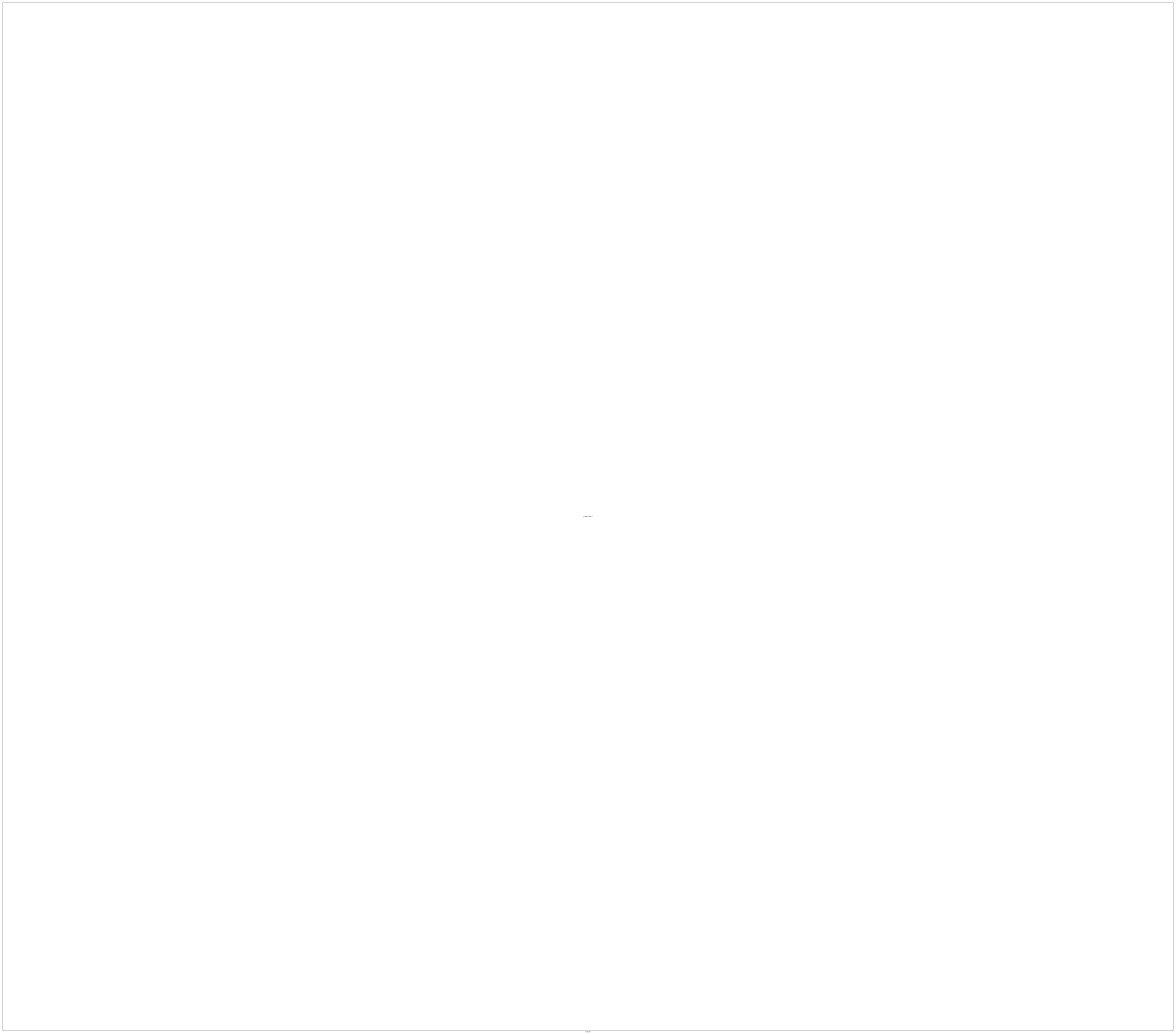
[diagram: Triggered Subsystem - part 1/12, center side, full height]
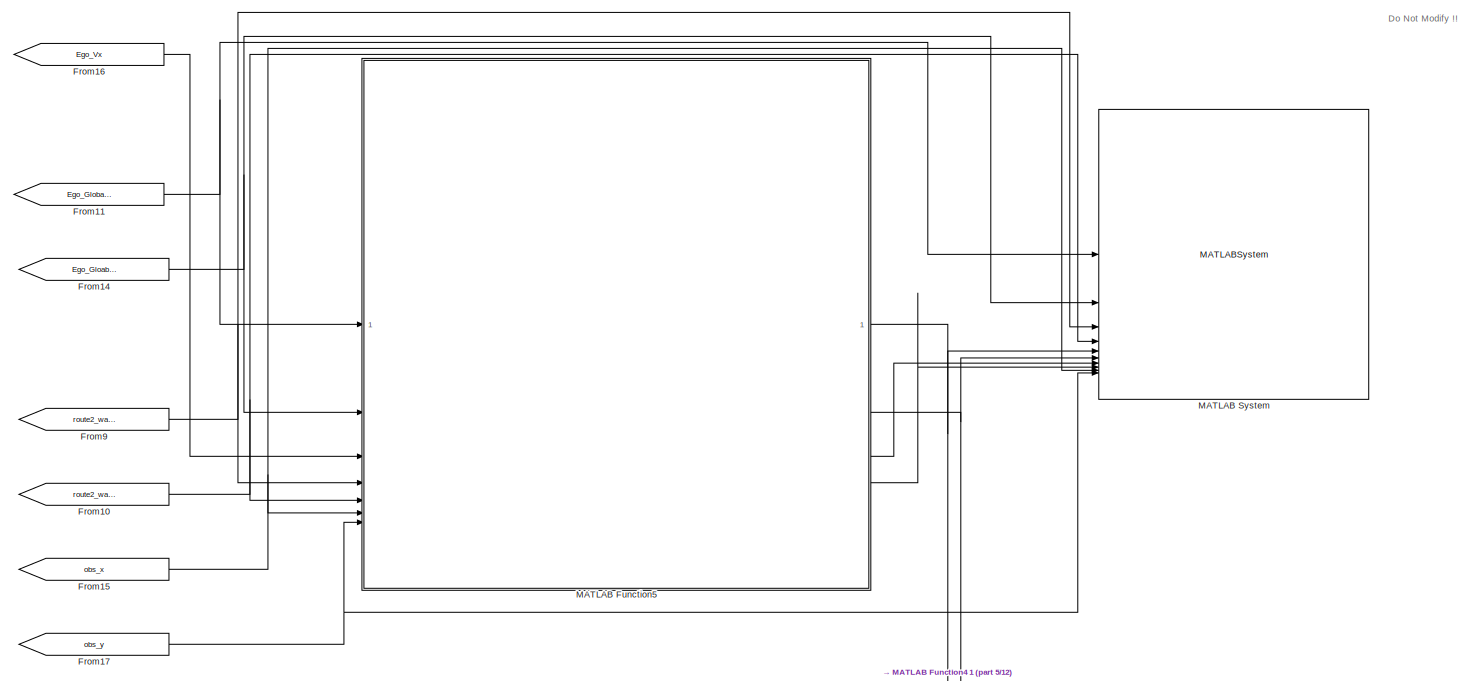
[diagram: Triggered Subsystem - part 2/12, top right region]
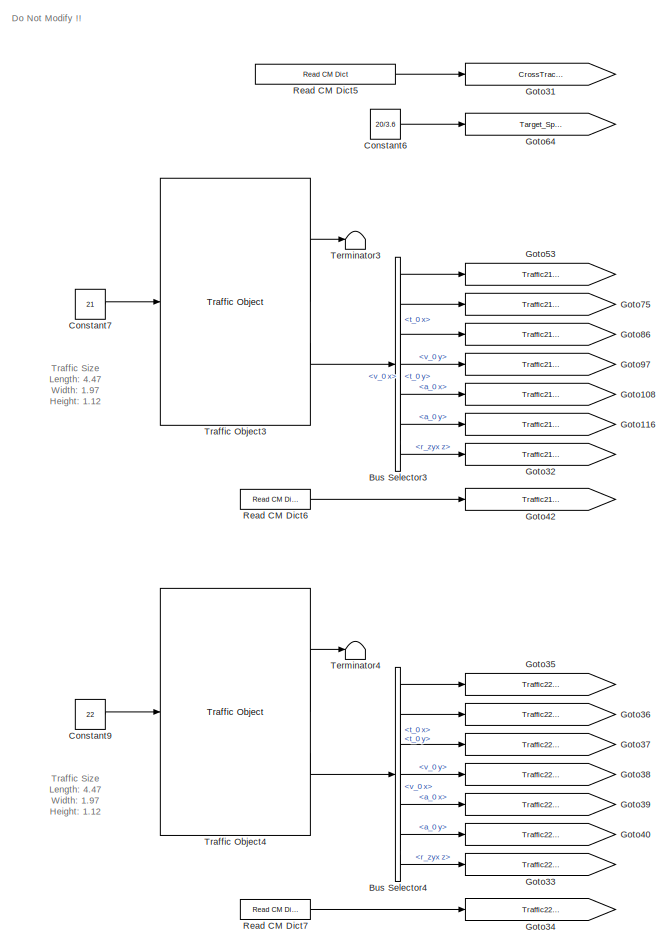
[diagram: Triggered Subsystem - part 3/12, top right region]
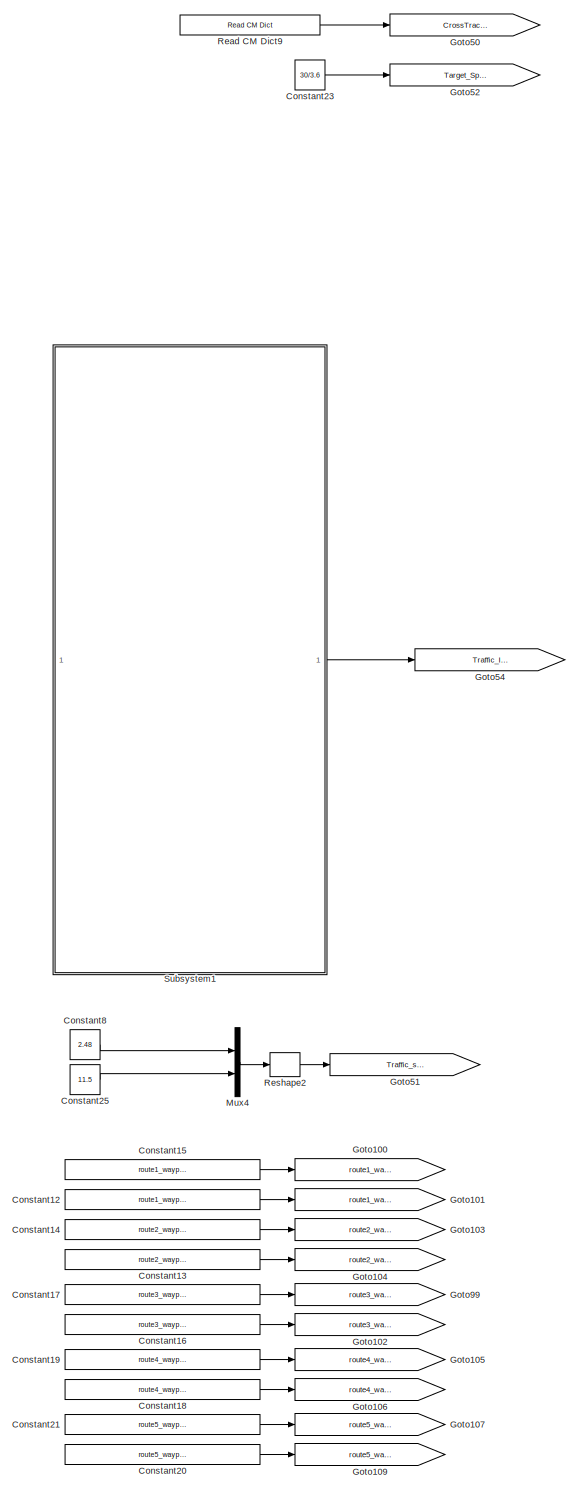
[diagram: Triggered Subsystem - part 4/12, top right region]
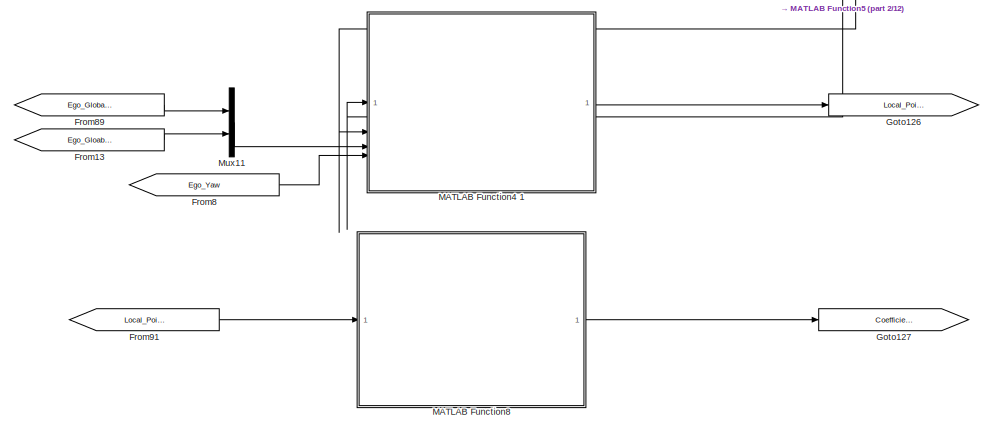
[diagram: Triggered Subsystem - part 5/12, top right region]
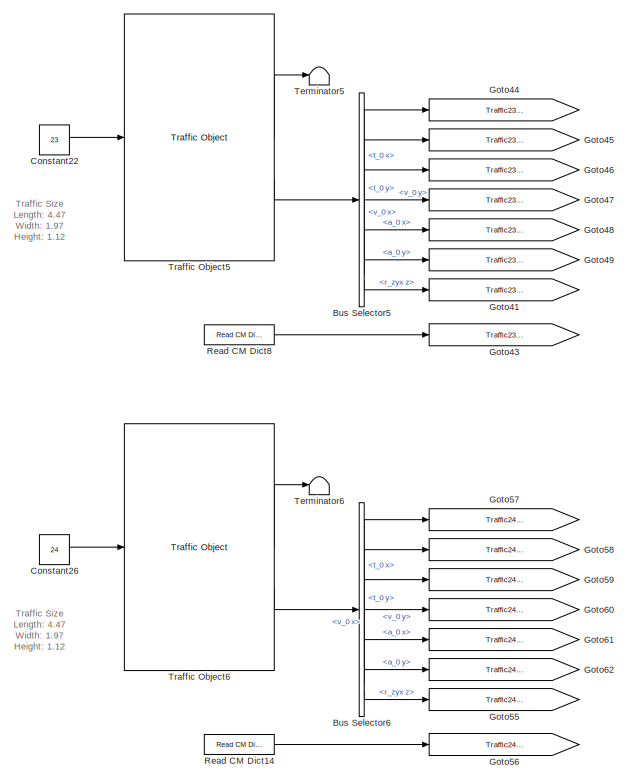
[diagram: Triggered Subsystem - part 6/12, top right region]
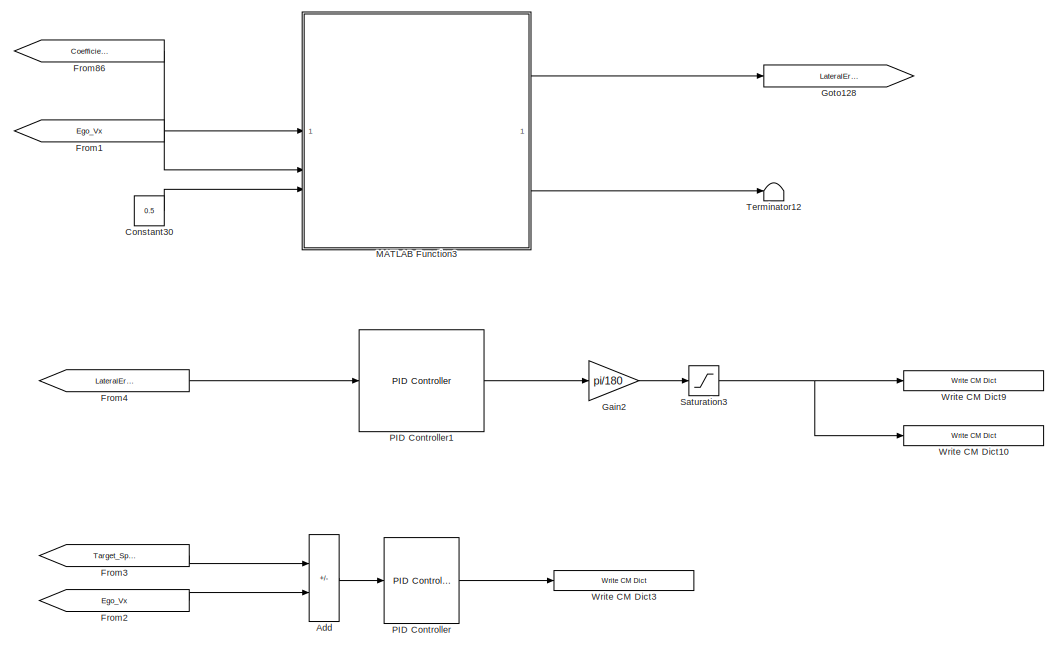
[diagram: Triggered Subsystem - part 7/12, top right region]
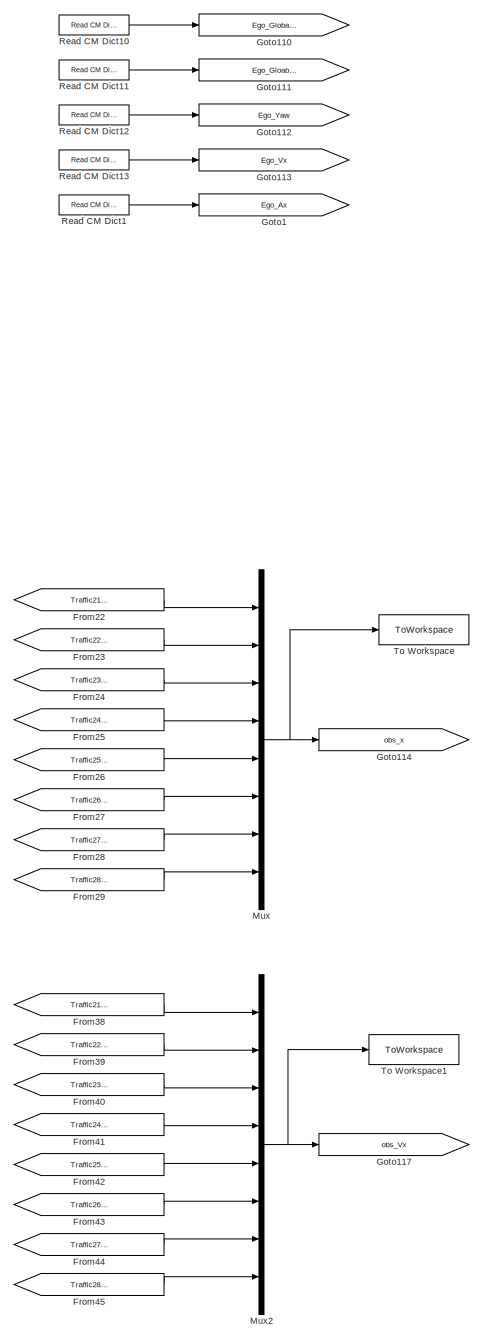
[diagram: Triggered Subsystem - part 8/12, middle right region]
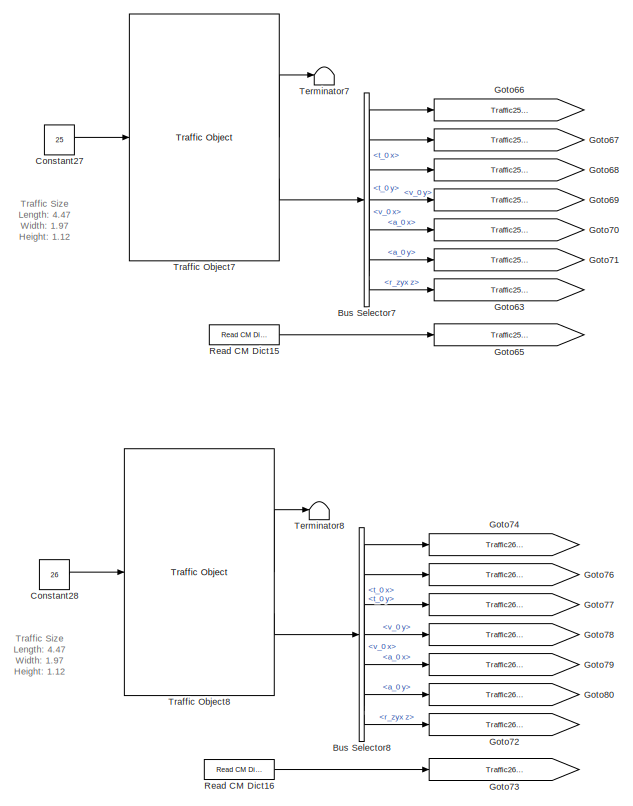
[diagram: Triggered Subsystem - part 9/12, middle right region]
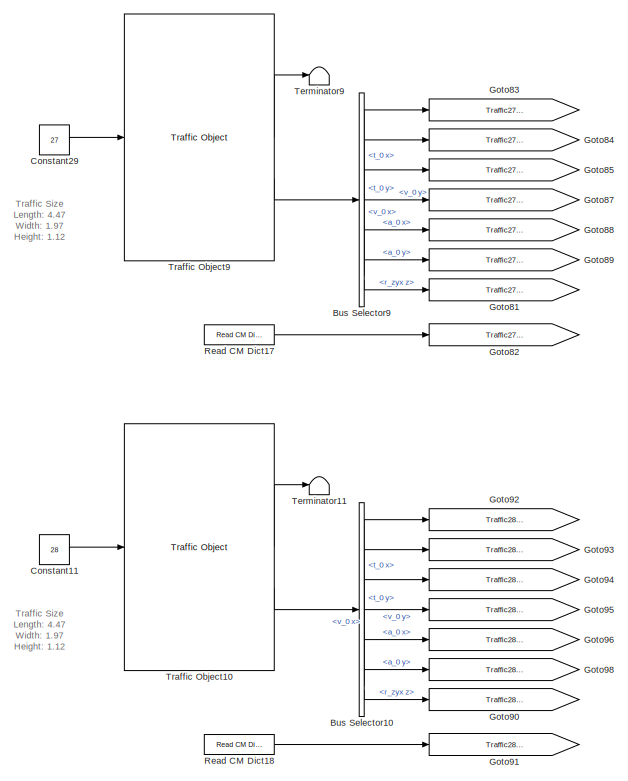
[diagram: Triggered Subsystem - part 10/12, middle right region]
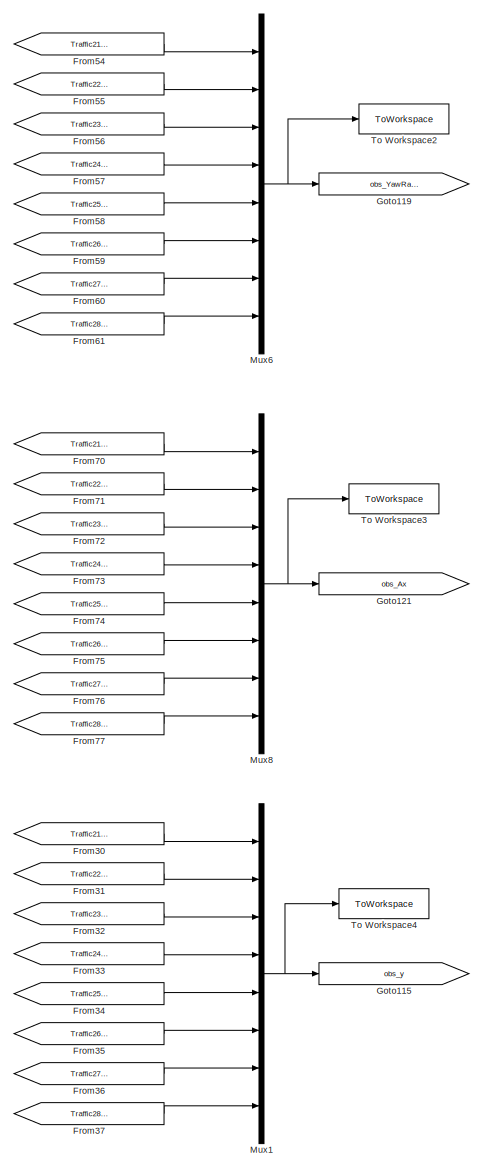
[diagram: Triggered Subsystem - part 11/12, middle right region]
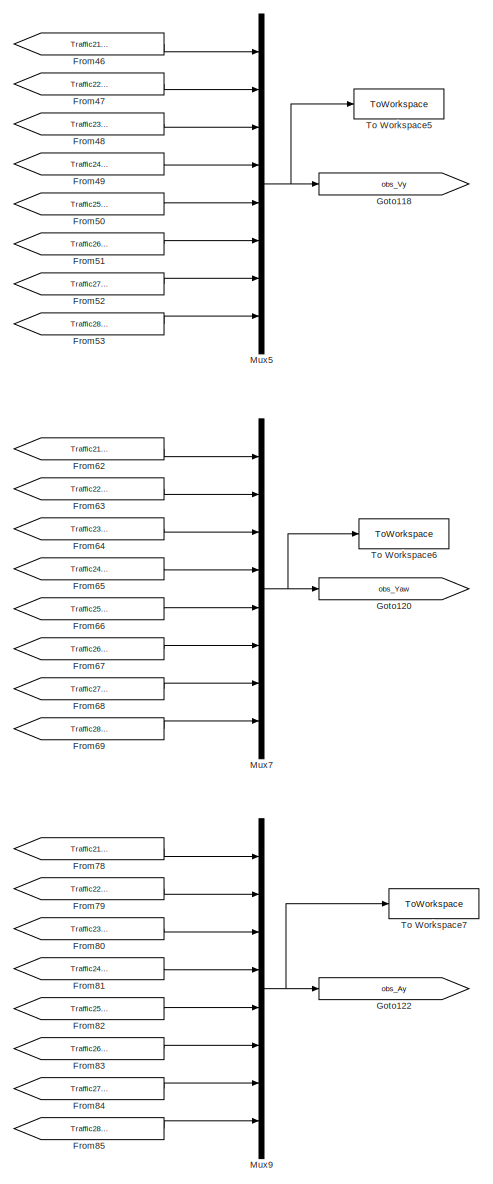
[diagram: Triggered Subsystem - part 12/12, bottom right region]
BLOCK [SubSystem] Triggered Subsystem
  TreatAsAtomicUnit = on
BLOCK [Sum] Triggered Subsystem/Add
  IconShape = rectangular
  Inputs = +-
BLOCK [BusSelector] Triggered Subsystem/Bus Selector10
  OutputSignals = t_0 x,t_0 y,v_0 x,v_0 y,a_0 x,a_0 y,r_zyx z
BLOCK [BusSelector] Triggered Subsystem/Bus Selector3
  OutputSignals = t_0 x,t_0 y,v_0 x,v_0 y,a_0 x,a_0 y,r_zyx z
BLOCK [BusSelector] Triggered Subsystem/Bus Selector4
  OutputSignals = t_0 x,t_0 y,v_0 x,v_0 y,a_0 x,a_0 y,r_zyx z
BLOCK [BusSelector] Triggered Subsystem/Bus Selector5
  OutputSignals = t_0 x,t_0 y,v_0 x,v_0 y,a_0 x,a_0 y,r_zyx z
BLOCK [BusSelector] Triggered Subsystem/Bus Selector6
  OutputSignals = t_0 x,t_0 y,v_0 x,v_0 y,a_0 x,a_0 y,r_zyx z
BLOCK [BusSelector] Triggered Subsystem/Bus Selector7
  OutputSignals = t_0 x,t_0 y,v_0 x,v_0 y,a_0 x,a_0 y,r_zyx z
BLOCK [BusSelector] Triggered Subsystem/Bus Selector8
  OutputSignals = t_0 x,t_0 y,v_0 x,v_0 y,a_0 x,a_0 y,r_zyx z
BLOCK [BusSelector] Triggered Subsystem/Bus Selector9
  OutputSignals = t_0 x,t_0 y,v_0 x,v_0 y,a_0 x,a_0 y,r_zyx z
BLOCK [Constant] Triggered Subsystem/Constant11
  Value = 28
BLOCK [Constant] Triggered Subsystem/Constant12
  Value = route1_waypoint_y.Data
BLOCK [Constant] Triggered Subsystem/Constant13
  Value = route2_waypoint_y.Data
BLOCK [Constant] Triggered Subsystem/Constant14
  Value = route2_waypoint_x.Data
BLOCK [Constant] Triggered Subsystem/Constant15
  Value = route1_waypoint_x.Data
BLOCK [Constant] Triggered Subsystem/Constant16
  Value = route3_waypoint_y.Data
BLOCK [Constant] Triggered Subsystem/Constant17
  Value = route3_waypoint_x.Data
BLOCK [Constant] Triggered Subsystem/Constant18
  Value = route4_waypoint_y.Data
BLOCK [Constant] Triggered Subsystem/Constant19
  Value = route4_waypoint_x.Data
BLOCK [Constant] Triggered Subsystem/Constant20
  Value = route5_waypoint_y.Data
BLOCK [Constant] Triggered Subsystem/Constant21
  Value = route5_waypoint_x.Data
BLOCK [Constant] Triggered Subsystem/Constant22
  Value = 23
BLOCK [Constant] Triggered Subsystem/Constant23
  Value = 30/3.6
BLOCK [Constant] Triggered Subsystem/Constant25
  Value = 11.5
BLOCK [Constant] Triggered Subsystem/Constant26
  Value = 24
BLOCK [Constant] Triggered Subsystem/Constant27
  Value = 25
BLOCK [Constant] Triggered Subsystem/Constant28
  Value = 26
BLOCK [Constant] Triggered Subsystem/Constant29
  Value = 27
BLOCK [Constant] Triggered Subsystem/Constant30
  Value = 0.5
BLOCK [Constant] Triggered Subsystem/Constant6
  Commented = on
  Value = 20/3.6
BLOCK [Constant] Triggered Subsystem/Constant7
  Value = 21
BLOCK [Constant] Triggered Subsystem/Constant8
  Value = 2.48
BLOCK [Constant] Triggered Subsystem/Constant9
  Value = 22
BLOCK [From] Triggered Subsystem/From1
  GotoTag = Ego_Vx
BLOCK [From] Triggered Subsystem/From10
  GotoTag = route2_waypoint_y
BLOCK [From] Triggered Subsystem/From11
  GotoTag = Ego_Global_X
BLOCK [From] Triggered Subsystem/From13
  GotoTag = Ego_Gloabl_Y
BLOCK [From] Triggered Subsystem/From14
  GotoTag = Ego_Gloabl_Y
BLOCK [From] Triggered Subsystem/From15
  GotoTag = obs_x
BLOCK [From] Triggered Subsystem/From16
  GotoTag = Ego_Vx
BLOCK [From] Triggered Subsystem/From17
  GotoTag = obs_y
BLOCK [From] Triggered Subsystem/From2
  GotoTag = Ego_Vx
BLOCK [From] Triggered Subsystem/From22
  GotoTag = Traffic21_Global_X
BLOCK [From] Triggered Subsystem/From23
  GotoTag = Traffic22_Global_X
BLOCK [From] Triggered Subsystem/From24
  GotoTag = Traffic23_Global_X
BLOCK [From] Triggered Subsystem/From25
  GotoTag = Traffic24_Global_X
BLOCK [From] Triggered Subsystem/From26
  GotoTag = Traffic25_Global_X
BLOCK [From] Triggered Subsystem/From27
  GotoTag = Traffic26_Global_X
BLOCK [From] Triggered Subsystem/From28
  GotoTag = Traffic27_Global_X
BLOCK [From] Triggered Subsystem/From29
  GotoTag = Traffic28_Global_X
BLOCK [From] Triggered Subsystem/From3
  GotoTag = Target_Speed
BLOCK [From] Triggered Subsystem/From30
  GotoTag = Traffic21_Global_Y
BLOCK [From] Triggered Subsystem/From31
  GotoTag = Traffic22_Global_Y
BLOCK [From] Triggered Subsystem/From32
  GotoTag = Traffic23_Global_Y
BLOCK [From] Triggered Subsystem/From33
  GotoTag = Traffic24_Global_Y
BLOCK [From] Triggered Subsystem/From34
  GotoTag = Traffic25_Global_Y
BLOCK [From] Triggered Subsystem/From35
  GotoTag = Traffic26_Global_Y
BLOCK [From] Triggered Subsystem/From36
  GotoTag = Traffic27_Global_Y
BLOCK [From] Triggered Subsystem/From37
  GotoTag = Traffic28_Global_Y
BLOCK [From] Triggered Subsystem/From38
  GotoTag = Traffic21_Vx
BLOCK [From] Triggered Subsystem/From39
  GotoTag = Traffic22_Vx
BLOCK [From] Triggered Subsystem/From4
  GotoTag = LateralErrorA
BLOCK [From] Triggered Subsystem/From40
  GotoTag = Traffic23_Vx
BLOCK [From] Triggered Subsystem/From41
  GotoTag = Traffic24_Vx
BLOCK [From] Triggered Subsystem/From42
  GotoTag = Traffic25_Vx
BLOCK [From] Triggered Subsystem/From43
  GotoTag = Traffic26_Vx
BLOCK [From] Triggered Subsystem/From44
  GotoTag = Traffic27_Vx
BLOCK [From] Triggered Subsystem/From45
  GotoTag = Traffic28_Vx
BLOCK [From] Triggered Subsystem/From46
  GotoTag = Traffic21_Vy
BLOCK [From] Triggered Subsystem/From47
  GotoTag = Traffic22_Vy
BLOCK [From] Triggered Subsystem/From48
  GotoTag = Traffic23_Vy
BLOCK [From] Triggered Subsystem/From49
  GotoTag = Traffic24_Vy
BLOCK [From] Triggered Subsystem/From50
  GotoTag = Traffic25_Vy
BLOCK [From] Triggered Subsystem/From51
  GotoTag = Traffic26_Vy
BLOCK [From] Triggered Subsystem/From52
  GotoTag = Traffic27_Vy
BLOCK [From] Triggered Subsystem/From53
  GotoTag = Traffic28_Vy
BLOCK [From] Triggered Subsystem/From54
  GotoTag = Traffic21_YawRate
BLOCK [From] Triggered Subsystem/From55
  GotoTag = Traffic22_YawRate
BLOCK [From] Triggered Subsystem/From56
  GotoTag = Traffic23_YawRate
BLOCK [From] Triggered Subsystem/From57
  GotoTag = Traffic24_YawRate
BLOCK [From] Triggered Subsystem/From58
  GotoTag = Traffic25_YawRate
BLOCK [From] Triggered Subsystem/From59
  GotoTag = Traffic26_YawRate
BLOCK [From] Triggered Subsystem/From60
  GotoTag = Traffic27_YawRate
BLOCK [From] Triggered Subsystem/From61
  GotoTag = Traffic28_Vx
BLOCK [From] Triggered Subsystem/From62
  GotoTag = Traffic21_Yaw
BLOCK [From] Triggered Subsystem/From63
  GotoTag = Traffic22_Yaw
BLOCK [From] Triggered Subsystem/From64
  GotoTag = Traffic23_Yaw
BLOCK [From] Triggered Subsystem/From65
  GotoTag = Traffic24_Yaw
BLOCK [From] Triggered Subsystem/From66
  GotoTag = Traffic25_Yaw
BLOCK [From] Triggered Subsystem/From67
  GotoTag = Traffic26_Yaw
BLOCK [From] Triggered Subsystem/From68
  GotoTag = Traffic27_Yaw
BLOCK [From] Triggered Subsystem/From69
  GotoTag = Traffic28_Yaw
BLOCK [From] Triggered Subsystem/From70
  GotoTag = Traffic21_Ax
BLOCK [From] Triggered Subsystem/From71
  GotoTag = Traffic22_Ax
BLOCK [From] Triggered Subsystem/From72
  GotoTag = Traffic23_Ax
BLOCK [From] Triggered Subsystem/From73
  GotoTag = Traffic24_Ax
BLOCK [From] Triggered Subsystem/From74
  GotoTag = Traffic25_Ax
BLOCK [From] Triggered Subsystem/From75
  GotoTag = Traffic26_Ax
BLOCK [From] Triggered Subsystem/From76
  GotoTag = Traffic27_Ax
BLOCK [From] Triggered Subsystem/From77
  GotoTag = Traffic28_Ax
BLOCK [From] Triggered Subsystem/From78
  GotoTag = Traffic21_Ay
BLOCK [From] Triggered Subsystem/From79
  GotoTag = Traffic22_Ay
BLOCK [From] Triggered Subsystem/From8
  GotoTag = Ego_Yaw
BLOCK [From] Triggered Subsystem/From80
  GotoTag = Traffic23_Ay
BLOCK [From] Triggered Subsystem/From81
  GotoTag = Traffic24_Ay
BLOCK [From] Triggered Subsystem/From82
  GotoTag = Traffic25_Ay
BLOCK [From] Triggered Subsystem/From83
  GotoTag = Traffic26_Ay
BLOCK [From] Triggered Subsystem/From84
  GotoTag = Traffic27_Ay
BLOCK [From] Triggered Subsystem/From85
  GotoTag = Traffic28_Ay
BLOCK [From] Triggered Subsystem/From86
  GotoTag = CoefficientsA
BLOCK [From] Triggered Subsystem/From89
  GotoTag = Ego_Global_X
BLOCK [From] Triggered Subsystem/From9
  GotoTag = route2_waypoint_x
BLOCK [From] Triggered Subsystem/From91
  GotoTag = Local_PointsA
BLOCK [Gain] Triggered Subsystem/Gain2
  Gain = pi/180
BLOCK [Goto] Triggered Subsystem/Goto1
  GotoTag = Ego_Ax
BLOCK [Goto] Triggered Subsystem/Goto100
  GotoTag = route1_waypoint_x
BLOCK [Goto] Triggered Subsystem/Goto101
  GotoTag = route1_waypoint_y
BLOCK [Goto] Triggered Subsystem/Goto102
  GotoTag = route3_waypoint_y
BLOCK [Goto] Triggered Subsystem/Goto103
  GotoTag = route2_waypoint_x
BLOCK [Goto] Triggered Subsystem/Goto104
  GotoTag = route2_waypoint_y
BLOCK [Goto] Triggered Subsystem/Goto105
  GotoTag = route4_waypoint_x
BLOCK [Goto] Triggered Subsystem/Goto106
  GotoTag = route4_waypoint_y
BLOCK [Goto] Triggered Subsystem/Goto107
  GotoTag = route5_waypoint_x
BLOCK [Goto] Triggered Subsystem/Goto108
  GotoTag = Traffic21_Ax
BLOCK [Goto] Triggered Subsystem/Goto109
  GotoTag = route5_waypoint_y
BLOCK [Goto] Triggered Subsystem/Goto110
  GotoTag = Ego_Global_X
BLOCK [Goto] Triggered Subsystem/Goto111
  GotoTag = Ego_Gloabl_Y
BLOCK [Goto] Triggered Subsystem/Goto112
  GotoTag = Ego_Yaw
BLOCK [Goto] Triggered Subsystem/Goto113
  GotoTag = Ego_Vx
BLOCK [Goto] Triggered Subsystem/Goto114
  GotoTag = obs_x
BLOCK [Goto] Triggered Subsystem/Goto115
  GotoTag = obs_y
BLOCK [Goto] Triggered Subsystem/Goto116
  GotoTag = Traffic21_Ay
BLOCK [Goto] Triggered Subsystem/Goto117
  GotoTag = obs_Vx
BLOCK [Goto] Triggered Subsystem/Goto118
  GotoTag = obs_Vy
BLOCK [Goto] Triggered Subsystem/Goto119
  GotoTag = obs_YawRate
BLOCK [Goto] Triggered Subsystem/Goto120
  GotoTag = obs_Yaw
BLOCK [Goto] Triggered Subsystem/Goto121
  GotoTag = obs_Ax
BLOCK [Goto] Triggered Subsystem/Goto122
  GotoTag = obs_Ay
BLOCK [Goto] Triggered Subsystem/Goto126
  GotoTag = Local_PointsA
BLOCK [Goto] Triggered Subsystem/Goto127
  GotoTag = CoefficientsA
BLOCK [Goto] Triggered Subsystem/Goto128
  GotoTag = LateralErrorA
BLOCK [Goto] Triggered Subsystem/Goto31
  Commented = on
  GotoTag = CrossTrackError
BLOCK [Goto] Triggered Subsystem/Goto32
  GotoTag = Traffic21_Yaw
BLOCK [Goto] Triggered Subsystem/Goto33
  GotoTag = Traffic22_Yaw
BLOCK [Goto] Triggered Subsystem/Goto34
  GotoTag = Traffic22_YawRate
BLOCK [Goto] Triggered Subsystem/Goto35
  GotoTag = Traffic22_Global_X
BLOCK [Goto] Triggered Subsystem/Goto36
  GotoTag = Traffic22_Global_Y
BLOCK [Goto] Triggered Subsystem/Goto37
  GotoTag = Traffic22_Vx
BLOCK [Goto] Triggered Subsystem/Goto38
  GotoTag = Traffic22_Vy
BLOCK [Goto] Triggered Subsystem/Goto39
  GotoTag = Traffic22_Ax
BLOCK [Goto] Triggered Subsystem/Goto40
  GotoTag = Traffic22_Ay
BLOCK [Goto] Triggered Subsystem/Goto41
  GotoTag = Traffic23_Yaw
BLOCK [Goto] Triggered Subsystem/Goto42
  GotoTag = Traffic21_YawRate
BLOCK [Goto] Triggered Subsystem/Goto43
  GotoTag = Traffic23_YawRate
BLOCK [Goto] Triggered Subsystem/Goto44
  GotoTag = Traffic23_Global_X
BLOCK [Goto] Triggered Subsystem/Goto45
  GotoTag = Traffic23_Global_Y
BLOCK [Goto] Triggered Subsystem/Goto46
  GotoTag = Traffic23_Vx
BLOCK [Goto] Triggered Subsystem/Goto47
  GotoTag = Traffic23_Vy
BLOCK [Goto] Triggered Subsystem/Goto48
  GotoTag = Traffic23_Ax
BLOCK [Goto] Triggered Subsystem/Goto49
  GotoTag = Traffic23_Ay
BLOCK [Goto] Triggered Subsystem/Goto50
  GotoTag = CrossTrackError
BLOCK [Goto] Triggered Subsystem/Goto51
  GotoTag = Traffic_size
BLOCK [Goto] Triggered Subsystem/Goto52
  GotoTag = Target_Speed
BLOCK [Goto] Triggered Subsystem/Goto53
  GotoTag = Traffic21_Global_X
BLOCK [Goto] Triggered Subsystem/Goto54
  GotoTag = Traffic_Info
BLOCK [Goto] Triggered Subsystem/Goto55
  GotoTag = Traffic24_Yaw
BLOCK [Goto] Triggered Subsystem/Goto56
  GotoTag = Traffic24_YawRate
BLOCK [Goto] Triggered Subsystem/Goto57
  GotoTag = Traffic24_Global_X
BLOCK [Goto] Triggered Subsystem/Goto58
  GotoTag = Traffic24_Global_Y
BLOCK [Goto] Triggered Subsystem/Goto59
  GotoTag = Traffic24_Vx
BLOCK [Goto] Triggered Subsystem/Goto60
  GotoTag = Traffic24_Vy
BLOCK [Goto] Triggered Subsystem/Goto61
  GotoTag = Traffic24_Ax
BLOCK [Goto] Triggered Subsystem/Goto62
  GotoTag = Traffic24_Ay
BLOCK [Goto] Triggered Subsystem/Goto63
  GotoTag = Traffic25_Yaw
BLOCK [Goto] Triggered Subsystem/Goto64
  Commented = on
  GotoTag = Target_Speed
BLOCK [Goto] Triggered Subsystem/Goto65
  GotoTag = Traffic25_YawRate
BLOCK [Goto] Triggered Subsystem/Goto66
  GotoTag = Traffic25_Global_X
BLOCK [Goto] Triggered Subsystem/Goto67
  GotoTag = Traffic25_Global_Y
BLOCK [Goto] Triggered Subsystem/Goto68
  GotoTag = Traffic25_Vx
BLOCK [Goto] Triggered Subsystem/Goto69
  GotoTag = Traffic25_Vy
BLOCK [Goto] Triggered Subsystem/Goto70
  GotoTag = Traffic25_Ax
BLOCK [Goto] Triggered Subsystem/Goto71
  GotoTag = Traffic25_Ay
BLOCK [Goto] Triggered Subsystem/Goto72
  GotoTag = Traffic26_Yaw
BLOCK [Goto] Triggered Subsystem/Goto73
  GotoTag = Traffic26_YawRate
BLOCK [Goto] Triggered Subsystem/Goto74
  GotoTag = Traffic26_Global_X
BLOCK [Goto] Triggered Subsystem/Goto75
  GotoTag = Traffic21_Global_Y
BLOCK [Goto] Triggered Subsystem/Goto76
  GotoTag = Traffic26_Global_Y
BLOCK [Goto] Triggered Subsystem/Goto77
  GotoTag = Traffic26_Vx
BLOCK [Goto] Triggered Subsystem/Goto78
  GotoTag = Traffic26_Vy
BLOCK [Goto] Triggered Subsystem/Goto79
  GotoTag = Traffic26_Ax
BLOCK [Goto] Triggered Subsystem/Goto80
  GotoTag = Traffic26_Ay
BLOCK [Goto] Triggered Subsystem/Goto81
  GotoTag = Traffic27_Yaw
BLOCK [Goto] Triggered Subsystem/Goto82
  GotoTag = Traffic27_YawRate
BLOCK [Goto] Triggered Subsystem/Goto83
  GotoTag = Traffic27_Global_X
BLOCK [Goto] Triggered Subsystem/Goto84
  GotoTag = Traffic27_Global_Y
BLOCK [Goto] Triggered Subsystem/Goto85
  GotoTag = Traffic27_Vx
BLOCK [Goto] Triggered Subsystem/Goto86
  GotoTag = Traffic21_Vx
BLOCK [Goto] Triggered Subsystem/Goto87
  GotoTag = Traffic27_Vy
BLOCK [Goto] Triggered Subsystem/Goto88
  GotoTag = Traffic27_Ax
BLOCK [Goto] Triggered Subsystem/Goto89
  GotoTag = Traffic27_Ay
BLOCK [Goto] Triggered Subsystem/Goto90
  GotoTag = Traffic28_Yaw
BLOCK [Goto] Triggered Subsystem/Goto91
  GotoTag = Traffic28_YawRate
BLOCK [Goto] Triggered Subsystem/Goto92
  GotoTag = Traffic28_Global_X
BLOCK [Goto] Triggered Subsystem/Goto93
  GotoTag = Traffic28_Global_Y
BLOCK [Goto] Triggered Subsystem/Goto94
  GotoTag = Traffic28_Vx
BLOCK [Goto] Triggered Subsystem/Goto95
  GotoTag = Traffic28_Vy
BLOCK [Goto] Triggered Subsystem/Goto96
  GotoTag = Traffic28_Ax
BLOCK [Goto] Triggered Subsystem/Goto97
  GotoTag = Traffic21_Vy
BLOCK [Goto] Triggered Subsystem/Goto98
  GotoTag = Traffic28_Ay
BLOCK [Goto] Triggered Subsystem/Goto99
  GotoTag = route3_waypoint_x
BLOCK [SubSystem] Triggered Subsystem/MATLAB Function3
  ErrorFcn = Stateflow.Translate.translate
  PermitHierarchicalResolution = ExplicitOnly
  SFBlockType = MATLAB Function
  TreatAsAtomicUnit = on
BLOCK [Demux] Triggered Subsystem/MATLAB Function3/ Demux 
  Outputs = 1
BLOCK [S-Function] Triggered Subsystem/MATLAB Function3/ SFunction 
  EnableBusSupport = on
  FunctionName = sf_sfun
  PortCounts = [3 3]
  SFcnIsStateOwnerBlock = off
  SFunctionDeploymentMode = off
  Tag = Stateflow S-Function 18
BLOCK [Terminator] Triggered Subsystem/MATLAB Function3/ Terminator 
BLOCK [Outport] Triggered Subsystem/MATLAB Function3/lateral_error
BLOCK [Inport] Triggered Subsystem/MATLAB Function3/lookahead_time
  Port = 3
BLOCK [Inport] Triggered Subsystem/MATLAB Function3/poly_coeff
BLOCK [Inport] Triggered Subsystem/MATLAB Function3/velocity
  Port = 2
BLOCK [Outport] Triggered Subsystem/MATLAB Function3/x_lookahead
  Port = 2
BLOCK [SubSystem] Triggered Subsystem/MATLAB Function4 1
  ErrorFcn = Stateflow.Translate.translate
  PermitHierarchicalResolution = ExplicitOnly
  SFBlockType = MATLAB Function
  TreatAsAtomicUnit = on
BLOCK [Demux] Triggered Subsystem/MATLAB Function4 1/ Demux 
  Outputs = 1
BLOCK [S-Function] Triggered Subsystem/MATLAB Function4 1/ SFunction 
  EnableBusSupport = on
  FunctionName = sf_sfun
  PortCounts = [4 2]
  SFcnIsStateOwnerBlock = off
  SFunctionDeploymentMode = off
  Tag = Stateflow S-Function 1
BLOCK [Terminator] Triggered Subsystem/MATLAB Function4 1/ Terminator 
BLOCK [Inport] Triggered Subsystem/MATLAB Function4 1/head
  Port = 4
BLOCK [Outport] Triggered Subsystem/MATLAB Function4 1/local_waypoints_
BLOCK [Inport] Triggered Subsystem/MATLAB Function4 1/vehicle_position
  Port = 3
BLOCK [Inport] Triggered Subsystem/MATLAB Function4 1/waypoint_x
BLOCK [Inport] Triggered Subsystem/MATLAB Function4 1/waypoint_y
  Port = 2
BLOCK [SubSystem] Triggered Subsystem/MATLAB Function5
  ErrorFcn = Stateflow.Translate.translate
  PermitHierarchicalResolution = ExplicitOnly
  SFBlockType = MATLAB Function
  TreatAsAtomicUnit = on
BLOCK [Demux] Triggered Subsystem/MATLAB Function5/ Demux 
  Outputs = 1
BLOCK [S-Function] Triggered Subsystem/MATLAB Function5/ SFunction 
  EnableBusSupport = on
  FunctionName = sf_sfun
  PortCounts = [7 5]
  SFcnIsStateOwnerBlock = off
  SFunctionDeploymentMode = off
  Tag = Stateflow S-Function 16
BLOCK [Terminator] Triggered Subsystem/MATLAB Function5/ Terminator 
BLOCK [Inport] Triggered Subsystem/MATLAB Function5/map_x
  Port = 4
BLOCK [Inport] Triggered Subsystem/MATLAB Function5/map_y
  Port = 5
BLOCK [Inport] Triggered Subsystem/MATLAB Function5/obs_x
  Port = 6
BLOCK [Inport] Triggered Subsystem/MATLAB Function5/obs_y
  Port = 7
BLOCK [Inport] Triggered Subsystem/MATLAB Function5/v
  Port = 3
BLOCK [Inport] Triggered Subsystem/MATLAB Function5/x
BLOCK [Outport] Triggered Subsystem/MATLAB Function5/x_all
  Port = 3
BLOCK [Outport] Triggered Subsystem/MATLAB Function5/x_best
BLOCK [Inport] Triggered Subsystem/MATLAB Function5/y
  Port = 2
BLOCK [Outport] Triggered Subsystem/MATLAB Function5/y_all
  Port = 4
BLOCK [Outport] Triggered Subsystem/MATLAB Function5/y_best
  Port = 2
BLOCK [SubSystem] Triggered Subsystem/MATLAB Function8
  ErrorFcn = Stateflow.Translate.translate
  PermitHierarchicalResolution = ExplicitOnly
  SFBlockType = MATLAB Function
  TreatAsAtomicUnit = on
BLOCK [Demux] Triggered Subsystem/MATLAB Function8/ Demux 
  Outputs = 1
BLOCK [S-Function] Triggered Subsystem/MATLAB Function8/ SFunction 
  EnableBusSupport = on
  FunctionName = sf_sfun
  PortCounts = [1 2]
  SFcnIsStateOwnerBlock = off
  SFunctionDeploymentMode = off
  Tag = Stateflow S-Function 19
BLOCK [Terminator] Triggered Subsystem/MATLAB Function8/ Terminator 
BLOCK [Inport] Triggered Subsystem/MATLAB Function8/local_waypoints
BLOCK [Outport] Triggered Subsystem/MATLAB Function8/poly_coeff
BLOCK [MATLABSystem] Triggered Subsystem/MATLAB System
  MaskDisplay = disp('BasicTrajectoryViewerWithLanes');\nport_label('input',1,'x');\nport_label('input',2,'y');\nport_label('input',3,'map_x');\nport_label('input',4,'map_y');\nport_label('input',5,'x_best');\nport_label('input',6,'y_best');\nport_label('input',7,'x_all');\nport_label('input',8,'y_all');\nport_label('input',9,'obs_x');\nport_label('input',10,'obs_y');
  MaskType = BasicTrajectoryViewerWithLanes
  SimulateUsing = Interpreted execution
  System = BasicTrajectoryViewerWithLanes
BLOCK [Mux] Triggered Subsystem/Mux
  DisplayOption = bar
  Inputs = 8
BLOCK [Mux] Triggered Subsystem/Mux1
  DisplayOption = bar
  Inputs = 8
BLOCK [Mux] Triggered Subsystem/Mux11
  DisplayOption = bar
  Inputs = 2
BLOCK [Mux] Triggered Subsystem/Mux2
  DisplayOption = bar
  Inputs = 8
BLOCK [Mux] Triggered Subsystem/Mux4
  DisplayOption = bar
  Inputs = 2
BLOCK [Mux] Triggered Subsystem/Mux5
  DisplayOption = bar
  Inputs = 8
BLOCK [Mux] Triggered Subsystem/Mux6
  DisplayOption = bar
  Inputs = 8
BLOCK [Mux] Triggered Subsystem/Mux7
  DisplayOption = bar
  Inputs = 8
BLOCK [Mux] Triggered Subsystem/Mux8
  DisplayOption = bar
  Inputs = 8
BLOCK [Mux] Triggered Subsystem/Mux9
  DisplayOption = bar
  Inputs = 8
BLOCK [Reference] Triggered Subsystem/PID Controller  REF=slpidlib/PID Controller
  SourceBlock = slpidlib/PID Controller
  SourceType = PID 1dof
BLOCK [Reference] Triggered Subsystem/PID Controller1  REF=slpidlib/PID Controller
  SourceBlock = slpidlib/PID Controller
  SourceType = PID 1dof
BLOCK [Reference] Triggered Subsystem/Read CM Dict1  REF=CarMaker4SL/Read CM Dict
  SourceBlock = CarMaker4SL/Read CM Dict
  SourceProductName = CarMaker4SL
  SourceType = Read CarMaker Dictionary Variable(s)
BLOCK [Reference] Triggered Subsystem/Read CM Dict10  REF=CarMaker4SL/Read CM Dict
  SourceBlock = CarMaker4SL/Read CM Dict
  SourceProductName = CarMaker4SL
  SourceType = Read CarMaker Dictionary Variable(s)
BLOCK [Reference] Triggered Subsystem/Read CM Dict11  REF=CarMaker4SL/Read CM Dict
  SourceBlock = CarMaker4SL/Read CM Dict
  SourceProductName = CarMaker4SL
  SourceType = Read CarMaker Dictionary Variable(s)
BLOCK [Reference] Triggered Subsystem/Read CM Dict12  REF=CarMaker4SL/Read CM Dict
  SourceBlock = CarMaker4SL/Read CM Dict
  SourceProductName = CarMaker4SL
  SourceType = Read CarMaker Dictionary Variable(s)
BLOCK [Reference] Triggered Subsystem/Read CM Dict13  REF=CarMaker4SL/Read CM Dict
  SourceBlock = CarMaker4SL/Read CM Dict
  SourceProductName = CarMaker4SL
  SourceType = Read CarMaker Dictionary Variable(s)
BLOCK [Reference] Triggered Subsystem/Read CM Dict14  REF=CarMaker4SL/Read CM Dict
  SourceBlock = CarMaker4SL/Read CM Dict
  SourceProductName = CarMaker4SL
  SourceType = Read CarMaker Dictionary Variable(s)
BLOCK [Reference] Triggered Subsystem/Read CM Dict15  REF=CarMaker4SL/Read CM Dict
  SourceBlock = CarMaker4SL/Read CM Dict
  SourceProductName = CarMaker4SL
  SourceType = Read CarMaker Dictionary Variable(s)
BLOCK [Reference] Triggered Subsystem/Read CM Dict16  REF=CarMaker4SL/Read CM Dict
  SourceBlock = CarMaker4SL/Read CM Dict
  SourceProductName = CarMaker4SL
  SourceType = Read CarMaker Dictionary Variable(s)
BLOCK [Reference] Triggered Subsystem/Read CM Dict17  REF=CarMaker4SL/Read CM Dict
  SourceBlock = CarMaker4SL/Read CM Dict
  SourceProductName = CarMaker4SL
  SourceType = Read CarMaker Dictionary Variable(s)
BLOCK [Reference] Triggered Subsystem/Read CM Dict18  REF=CarMaker4SL/Read CM Dict
  SourceBlock = CarMaker4SL/Read CM Dict
  SourceProductName = CarMaker4SL
  SourceType = Read CarMaker Dictionary Variable(s)
BLOCK [Reference] Triggered Subsystem/Read CM Dict5  REF=CarMaker4SL/Read CM Dict
  Commented = on
  SourceBlock = CarMaker4SL/Read CM Dict
  SourceProductName = CarMaker4SL
  SourceType = Read CarMaker Dictionary Variable(s)
BLOCK [Reference] Triggered Subsystem/Read CM Dict6  REF=CarMaker4SL/Read CM Dict
  SourceBlock = CarMaker4SL/Read CM Dict
  SourceProductName = CarMaker4SL
  SourceType = Read CarMaker Dictionary Variable(s)
BLOCK [Reference] Triggered Subsystem/Read CM Dict7  REF=CarMaker4SL/Read CM Dict
  SourceBlock = CarMaker4SL/Read CM Dict
  SourceProductName = CarMaker4SL
  SourceType = Read CarMaker Dictionary Variable(s)
BLOCK [Reference] Triggered Subsystem/Read CM Dict8  REF=CarMaker4SL/Read CM Dict
  SourceBlock = CarMaker4SL/Read CM Dict
  SourceProductName = CarMaker4SL
  SourceType = Read CarMaker Dictionary Variable(s)
BLOCK [Reference] Triggered Subsystem/Read CM Dict9  REF=CarMaker4SL/Read CM Dict
  SourceBlock = CarMaker4SL/Read CM Dict
  SourceProductName = CarMaker4SL
  SourceType = Read CarMaker Dictionary Variable(s)
BLOCK [Reshape] Triggered Subsystem/Reshape2
  OutputDimensionality = Row vector (2-D)
  OutputDimensions = [2,2]
BLOCK [Saturate] Triggered Subsystem/Saturation3
  LowerLimit = -2
  UpperLimit = 2
BLOCK [SubSystem] Triggered Subsystem/Subsystem1
BLOCK [BusSelector] Triggered Subsystem/Subsystem1/Bus Selector
  OutputSignals = t_0 x,t_0 y,r_zyx z
BLOCK [BusSelector] Triggered Subsystem/Subsystem1/Bus Selector1
  OutputSignals = t_0 x,t_0 y,r_zyx z
BLOCK [BusSelector] Triggered Subsystem/Subsystem1/Bus Selector10
  OutputSignals = t_0 x,t_0 y,r_zyx z
BLOCK [BusSelector] Triggered Subsystem/Subsystem1/Bus Selector12
  OutputSignals = t_0 x,t_0 y,r_zyx z
BLOCK [BusSelector] Triggered Subsystem/Subsystem1/Bus Selector14
  OutputSignals = t_0 x,t_0 y,r_zyx z
BLOCK [BusSelector] Triggered Subsystem/Subsystem1/Bus Selector15
  OutputSignals = t_0 x,t_0 y,r_zyx z
BLOCK [BusSelector] Triggered Subsystem/Subsystem1/Bus Selector17
  OutputSignals = t_0 x,t_0 y,r_zyx z
BLOCK [BusSelector] Triggered Subsystem/Subsystem1/Bus Selector18
  OutputSignals = t_0 x,t_0 y,r_zyx z
BLOCK [BusSelector] Triggered Subsystem/Subsystem1/Bus Selector2
  OutputSignals = t_0 x,t_0 y,r_zyx z
BLOCK [BusSelector] Triggered Subsystem/Subsystem1/Bus Selector20
  OutputSignals = t_0 x,t_0 y,r_zyx z
BLOCK [BusSelector] Triggered Subsystem/Subsystem1/Bus Selector21
  OutputSignals = t_0 x,t_0 y,r_zyx z
BLOCK [BusSelector] Triggered Subsystem/Subsystem1/Bus Selector23
  OutputSignals = t_0 x,t_0 y,r_zyx z
BLOCK [BusSelector] Triggered Subsystem/Subsystem1/Bus Selector24
  OutputSignals = t_0 x,t_0 y,r_zyx z
BLOCK [BusSelector] Triggered Subsystem/Subsystem1/Bus Selector26
  OutputSignals = t_0 x,t_0 y,r_zyx z
BLOCK [BusSelector] Triggered Subsystem/Subsystem1/Bus Selector3
  OutputSignals = t_0 x,t_0 y,r_zyx z
BLOCK [BusSelector] Triggered Subsystem/Subsystem1/Bus Selector4
  OutputSignals = t_0 x,t_0 y,r_zyx z
BLOCK [BusSelector] Triggered Subsystem/Subsystem1/Bus Selector5
  OutputSignals = t_0 x,t_0 y,r_zyx z
BLOCK [BusSelector] Triggered Subsystem/Subsystem1/Bus Selector6
  OutputSignals = t_0 x,t_0 y,r_zyx z
BLOCK [BusSelector] Triggered Subsystem/Subsystem1/Bus Selector7
  OutputSignals = t_0 x,t_0 y,r_zyx z
BLOCK [BusSelector] Triggered Subsystem/Subsystem1/Bus Selector9
  OutputSignals = t_0 x,t_0 y,r_zyx z
BLOCK [Constant] Triggered Subsystem/Subsystem1/Constant1
  Value = 2
BLOCK [Constant] Triggered Subsystem/Subsystem1/Constant10
BLOCK [Constant] Triggered Subsystem/Subsystem1/Constant11
  Value = 13
BLOCK [Constant] Triggered Subsystem/Subsystem1/Constant13
  Value = 14
BLOCK [Constant] Triggered Subsystem/Subsystem1/Constant15
  Value = 5
BLOCK [Constant] Triggered Subsystem/Subsystem1/Constant16
  Value = 15
BLOCK [Constant] Triggered Subsystem/Subsystem1/Constant18
  Value = 6
BLOCK [Constant] Triggered Subsystem/Subsystem1/Constant19
  Value = 16
BLOCK [Constant] Triggered Subsystem/Subsystem1/Constant2
  Value = 3
BLOCK [Constant] Triggered Subsystem/Subsystem1/Constant21
  Value = 7
BLOCK [Constant] Triggered Subsystem/Subsystem1/Constant22
  Value = 17
BLOCK [Constant] Triggered Subsystem/Subsystem1/Constant24
  Value = 8
BLOCK [Constant] Triggered Subsystem/Subsystem1/Constant25
  Value = 18
BLOCK [Constant] Triggered Subsystem/Subsystem1/Constant27
  Value = 9
BLOCK [Constant] Triggered Subsystem/Subsystem1/Constant3
  Value = 10
BLOCK [Constant] Triggered Subsystem/Subsystem1/Constant4
  Value = 11
BLOCK [Constant] Triggered Subsystem/Subsystem1/Constant5
  Value = 12
BLOCK [Constant] Triggered Subsystem/Subsystem1/Constant6
  Value = 19
BLOCK [Constant] Triggered Subsystem/Subsystem1/Constant7
  Value = 20
BLOCK [Constant] Triggered Subsystem/Subsystem1/Constant9
  Value = 4
BLOCK [From] Triggered Subsystem/Subsystem1/From1
  GotoTag = Traffic_Info_01
BLOCK [From] Triggered Subsystem/Subsystem1/From10
  GotoTag = Traffic_Info_10
BLOCK [From] Triggered Subsystem/Subsystem1/From11
  GotoTag = Traffic_Info_11
BLOCK [From] Triggered Subsystem/Subsystem1/From12
  GotoTag = Traffic_Info_12
BLOCK [From] Triggered Subsystem/Subsystem1/From13
  GotoTag = Traffic_Info_13
BLOCK [From] Triggered Subsystem/Subsystem1/From14
  GotoTag = Traffic_Info_14
BLOCK [From] Triggered Subsystem/Subsystem1/From15
  GotoTag = Traffic_Info_15
BLOCK [From] Triggered Subsystem/Subsystem1/From16
  GotoTag = Traffic_Info_16
BLOCK [From] Triggered Subsystem/Subsystem1/From17
  GotoTag = Traffic_Info_17
BLOCK [From] Triggered Subsystem/Subsystem1/From18
  GotoTag = Traffic_Info_18
BLOCK [From] Triggered Subsystem/Subsystem1/From19
  GotoTag = Traffic_Info_19
BLOCK [From] Triggered Subsystem/Subsystem1/From2
  GotoTag = Traffic_Info_02
BLOCK [From] Triggered Subsystem/Subsystem1/From20
  GotoTag = Traffic_Info_20
BLOCK [From] Triggered Subsystem/Subsystem1/From3
  GotoTag = Traffic_Info_03
BLOCK [From] Triggered Subsystem/Subsystem1/From4
  GotoTag = Traffic_Info_04
BLOCK [From] Triggered Subsystem/Subsystem1/From5
  GotoTag = Traffic_Info_05
BLOCK [From] Triggered Subsystem/Subsystem1/From6
  GotoTag = Traffic_Info_06
BLOCK [From] Triggered Subsystem/Subsystem1/From7
  GotoTag = Traffic_Info_07
BLOCK [From] Triggered Subsystem/Subsystem1/From8
  GotoTag = Traffic_Info_08
BLOCK [From] Triggered Subsystem/Subsystem1/From9
  GotoTag = Traffic_Info_09
BLOCK [Goto] Triggered Subsystem/Subsystem1/Goto
  GotoTag = Traffic_Info_01
BLOCK [Goto] Triggered Subsystem/Subsystem1/Goto1
  GotoTag = Traffic_Info_02
BLOCK [Goto] Triggered Subsystem/Subsystem1/Goto10
  GotoTag = Traffic_Info_13
BLOCK [Goto] Triggered Subsystem/Subsystem1/Goto12
  GotoTag = Traffic_Info_14
BLOCK [Goto] Triggered Subsystem/Subsystem1/Goto14
  GotoTag = Traffic_Info_05
BLOCK [Goto] Triggered Subsystem/Subsystem1/Goto15
  GotoTag = Traffic_Info_15
BLOCK [Goto] Triggered Subsystem/Subsystem1/Goto17
  GotoTag = Traffic_Info_06
BLOCK [Goto] Triggered Subsystem/Subsystem1/Goto18
  GotoTag = Traffic_Info_16
BLOCK [Goto] Triggered Subsystem/Subsystem1/Goto2
  GotoTag = Traffic_Info_03
BLOCK [Goto] Triggered Subsystem/Subsystem1/Goto20
  GotoTag = Traffic_Info_07
BLOCK [Goto] Triggered Subsystem/Subsystem1/Goto21
  GotoTag = Traffic_Info_17
BLOCK [Goto] Triggered Subsystem/Subsystem1/Goto23
  GotoTag = Traffic_Info_08
BLOCK [Goto] Triggered Subsystem/Subsystem1/Goto24
  GotoTag = Traffic_Info_18
BLOCK [Goto] Triggered Subsystem/Subsystem1/Goto26
  GotoTag = Traffic_Info_09
BLOCK [Goto] Triggered Subsystem/Subsystem1/Goto3
  GotoTag = Traffic_Info_10
BLOCK [Goto] Triggered Subsystem/Subsystem1/Goto4
  GotoTag = Traffic_Info_11
BLOCK [Goto] Triggered Subsystem/Subsystem1/Goto5
  GotoTag = Traffic_Info_12
BLOCK [Goto] Triggered Subsystem/Subsystem1/Goto6
  GotoTag = Traffic_Info_19
BLOCK [Goto] Triggered Subsystem/Subsystem1/Goto7
  GotoTag = Traffic_Info_20
BLOCK [Goto] Triggered Subsystem/Subsystem1/Goto9
  GotoTag = Traffic_Info_04
BLOCK [Mux] Triggered Subsystem/Subsystem1/Mux1
  DisplayOption = bar
  Inputs = 3
BLOCK [Mux] Triggered Subsystem/Subsystem1/Mux12
  DisplayOption = bar
  Inputs = 3
BLOCK [Mux] Triggered Subsystem/Subsystem1/Mux13
  DisplayOption = bar
  Inputs = 3
BLOCK [Mux] Triggered Subsystem/Subsystem1/Mux15
  DisplayOption = bar
  Inputs = 3
BLOCK [Mux] Triggered Subsystem/Subsystem1/Mux16
  DisplayOption = bar
  Inputs = 3
BLOCK [Mux] Triggered Subsystem/Subsystem1/Mux18
  DisplayOption = bar
  Inputs = 3
BLOCK [Mux] Triggered Subsystem/Subsystem1/Mux19
  DisplayOption = bar
  Inputs = 3
BLOCK [Mux] Triggered Subsystem/Subsystem1/Mux2
  DisplayOption = bar
  Inputs = 3
BLOCK [Mux] Triggered Subsystem/Subsystem1/Mux21
  DisplayOption = bar
  Inputs = 3
BLOCK [Mux] Triggered Subsystem/Subsystem1/Mux22
  DisplayOption = bar
  Inputs = 3
BLOCK [Mux] Triggered Subsystem/Subsystem1/Mux24
  DisplayOption = bar
  Inputs = 3
BLOCK [Mux] Triggered Subsystem/Subsystem1/Mux25
  DisplayOption = bar
  Inputs = 3
BLOCK [Mux] Triggered Subsystem/Subsystem1/Mux27
  DisplayOption = bar
  Inputs = 3
BLOCK [Mux] Triggered Subsystem/Subsystem1/Mux28
  DisplayOption = bar
  Inputs = 3
BLOCK [Mux] Triggered Subsystem/Subsystem1/Mux3
  DisplayOption = bar
  Inputs = 3
BLOCK [Mux] Triggered Subsystem/Subsystem1/Mux4
  DisplayOption = bar
  Inputs = 3
BLOCK [Mux] Triggered Subsystem/Subsystem1/Mux5
  DisplayOption = bar
  Inputs = 3
BLOCK [Mux] Triggered Subsystem/Subsystem1/Mux6
  DisplayOption = bar
  Inputs = 3
BLOCK [Mux] Triggered Subsystem/Subsystem1/Mux7
  DisplayOption = bar
  Inputs = 3
BLOCK [Mux] Triggered Subsystem/Subsystem1/Mux8
  DisplayOption = bar
  Inputs = 3
BLOCK [Mux] Triggered Subsystem/Subsystem1/Mux9
  DisplayOption = bar
  Inputs = 20
BLOCK [Terminator] Triggered Subsystem/Subsystem1/Terminator1
BLOCK [Terminator] Triggered Subsystem/Subsystem1/Terminator10
BLOCK [Terminator] Triggered Subsystem/Subsystem1/Terminator11
BLOCK [Terminator] Triggered Subsystem/Subsystem1/Terminator13
BLOCK [Terminator] Triggered Subsystem/Subsystem1/Terminator14
BLOCK [Terminator] Triggered Subsystem/Subsystem1/Terminator16
BLOCK [Terminator] Triggered Subsystem/Subsystem1/Terminator17
BLOCK [Terminator] Triggered Subsystem/Subsystem1/Terminator19
BLOCK [Terminator] Triggered Subsystem/Subsystem1/Terminator2
BLOCK [Terminator] Triggered Subsystem/Subsystem1/Terminator20
BLOCK [Terminator] Triggered Subsystem/Subsystem1/Terminator22
BLOCK [Terminator] Triggered Subsystem/Subsystem1/Terminator23
BLOCK [Terminator] Triggered Subsystem/Subsystem1/Terminator25
BLOCK [Terminator] Triggered Subsystem/Subsystem1/Terminator26
BLOCK [Terminator] Triggered Subsystem/Subsystem1/Terminator3
BLOCK [Terminator] Triggered Subsystem/Subsystem1/Terminator4
BLOCK [Terminator] Triggered Subsystem/Subsystem1/Terminator5
BLOCK [Terminator] Triggered Subsystem/Subsystem1/Terminator6
BLOCK [Terminator] Triggered Subsystem/Subsystem1/Terminator7
BLOCK [Terminator] Triggered Subsystem/Subsystem1/Terminator8
BLOCK [Reference] Triggered Subsystem/Subsystem1/Traffic Object1  REF=CarMaker4SL/Traffic Object
  SourceBlock = CarMaker4SL/Traffic Object
  SourceProductName = CarMaker4SL
  SourceType = CarMaker Traffic Object
BLOCK [Reference] Triggered Subsystem/Subsystem1/Traffic Object10  REF=CarMaker4SL/Traffic Object
  SourceBlock = CarMaker4SL/Traffic Object
  SourceProductName = CarMaker4SL
  SourceType = CarMaker Traffic Object
BLOCK [Reference] Triggered Subsystem/Subsystem1/Traffic Object11  REF=CarMaker4SL/Traffic Object
  SourceBlock = CarMaker4SL/Traffic Object
  SourceProductName = CarMaker4SL
  SourceType = CarMaker Traffic Object
BLOCK [Reference] Triggered Subsystem/Subsystem1/Traffic Object13  REF=CarMaker4SL/Traffic Object
  SourceBlock = CarMaker4SL/Traffic Object
  SourceProductName = CarMaker4SL
  SourceType = CarMaker Traffic Object
BLOCK [Reference] Triggered Subsystem/Subsystem1/Traffic Object14  REF=CarMaker4SL/Traffic Object
  SourceBlock = CarMaker4SL/Traffic Object
  SourceProductName = CarMaker4SL
  SourceType = CarMaker Traffic Object
BLOCK [Reference] Triggered Subsystem/Subsystem1/Traffic Object16  REF=CarMaker4SL/Traffic Object
  SourceBlock = CarMaker4SL/Traffic Object
  SourceProductName = CarMaker4SL
  SourceType = CarMaker Traffic Object
BLOCK [Reference] Triggered Subsystem/Subsystem1/Traffic Object17  REF=CarMaker4SL/Traffic Object
  SourceBlock = CarMaker4SL/Traffic Object
  SourceProductName = CarMaker4SL
  SourceType = CarMaker Traffic Object
BLOCK [Reference] Triggered Subsystem/Subsystem1/Traffic Object19  REF=CarMaker4SL/Traffic Object
  SourceBlock = CarMaker4SL/Traffic Object
  SourceProductName = CarMaker4SL
  SourceType = CarMaker Traffic Object
BLOCK [Reference] Triggered Subsystem/Subsystem1/Traffic Object2  REF=CarMaker4SL/Traffic Object
  SourceBlock = CarMaker4SL/Traffic Object
  SourceProductName = CarMaker4SL
  SourceType = CarMaker Traffic Object
BLOCK [Reference] Triggered Subsystem/Subsystem1/Traffic Object20  REF=CarMaker4SL/Traffic Object
  SourceBlock = CarMaker4SL/Traffic Object
  SourceProductName = CarMaker4SL
  SourceType = CarMaker Traffic Object
BLOCK [Reference] Triggered Subsystem/Subsystem1/Traffic Object22  REF=CarMaker4SL/Traffic Object
  SourceBlock = CarMaker4SL/Traffic Object
  SourceProductName = CarMaker4SL
  SourceType = CarMaker Traffic Object
BLOCK [Reference] Triggered Subsystem/Subsystem1/Traffic Object23  REF=CarMaker4SL/Traffic Object
  SourceBlock = CarMaker4SL/Traffic Object
  SourceProductName = CarMaker4SL
  SourceType = CarMaker Traffic Object
BLOCK [Reference] Triggered Subsystem/Subsystem1/Traffic Object25  REF=CarMaker4SL/Traffic Object
  SourceBlock = CarMaker4SL/Traffic Object
  SourceProductName = CarMaker4SL
  SourceType = CarMaker Traffic Object
BLOCK [Reference] Triggered Subsystem/Subsystem1/Traffic Object26  REF=CarMaker4SL/Traffic Object
  SourceBlock = CarMaker4SL/Traffic Object
  SourceProductName = CarMaker4SL
  SourceType = CarMaker Traffic Object
BLOCK [Reference] Triggered Subsystem/Subsystem1/Traffic Object3  REF=CarMaker4SL/Traffic Object
  SourceBlock = CarMaker4SL/Traffic Object
  SourceProductName = CarMaker4SL
  SourceType = CarMaker Traffic Object
BLOCK [Reference] Triggered Subsystem/Subsystem1/Traffic Object4  REF=CarMaker4SL/Traffic Object
  SourceBlock = CarMaker4SL/Traffic Object
  SourceProductName = CarMaker4SL
  SourceType = CarMaker Traffic Object
BLOCK [Reference] Triggered Subsystem/Subsystem1/Traffic Object5  REF=CarMaker4SL/Traffic Object
  SourceBlock = CarMaker4SL/Traffic Object
  SourceProductName = CarMaker4SL
  SourceType = CarMaker Traffic Object
BLOCK [Reference] Triggered Subsystem/Subsystem1/Traffic Object6  REF=CarMaker4SL/Traffic Object
  SourceBlock = CarMaker4SL/Traffic Object
  SourceProductName = CarMaker4SL
  SourceType = CarMaker Traffic Object
BLOCK [Reference] Triggered Subsystem/Subsystem1/Traffic Object7  REF=CarMaker4SL/Traffic Object
  SourceBlock = CarMaker4SL/Traffic Object
  SourceProductName = CarMaker4SL
  SourceType = CarMaker Traffic Object
BLOCK [Reference] Triggered Subsystem/Subsystem1/Traffic Object8  REF=CarMaker4SL/Traffic Object
  SourceBlock = CarMaker4SL/Traffic Object
  SourceProductName = CarMaker4SL
  SourceType = CarMaker Traffic Object
BLOCK [Outport] Triggered Subsystem/Subsystem1/Traffic_Info
BLOCK [Terminator] Triggered Subsystem/Terminator11
BLOCK [Terminator] Triggered Subsystem/Terminator12
BLOCK [Terminator] Triggered Subsystem/Terminator3
BLOCK [Terminator] Triggered Subsystem/Terminator4
BLOCK [Terminator] Triggered Subsystem/Terminator5
BLOCK [Terminator] Triggered Subsystem/Terminator6
BLOCK [Terminator] Triggered Subsystem/Terminator7
BLOCK [Terminator] Triggered Subsystem/Terminator8
BLOCK [Terminator] Triggered Subsystem/Terminator9
BLOCK [ToWorkspace] Triggered Subsystem/To Workspace
  FixptAsFi = on
  MaxDataPoints = inf
  SampleTime = -1
  SaveFormat = Timeseries
  VariableName = obs_x1
BLOCK [ToWorkspace] Triggered Subsystem/To Workspace1
  FixptAsFi = on
  MaxDataPoints = inf
  SampleTime = -1
  SaveFormat = Timeseries
  VariableName = obs_Vx1
BLOCK [ToWorkspace] Triggered Subsystem/To Workspace2
  FixptAsFi = on
  MaxDataPoints = inf
  SampleTime = -1
  SaveFormat = Timeseries
  VariableName = obs_YawRate1
BLOCK [ToWorkspace] Triggered Subsystem/To Workspace3
  FixptAsFi = on
  MaxDataPoints = inf
  SampleTime = -1
  SaveFormat = Timeseries
  VariableName = obs_Ax1
BLOCK [ToWorkspace] Triggered Subsystem/To Workspace4
  FixptAsFi = on
  MaxDataPoints = inf
  SampleTime = -1
  SaveFormat = Timeseries
  VariableName = obs_y1
BLOCK [ToWorkspace] Triggered Subsystem/To Workspace5
  FixptAsFi = on
  MaxDataPoints = inf
  SampleTime = -1
  SaveFormat = Timeseries
  VariableName = obs_Vy1
BLOCK [ToWorkspace] Triggered Subsystem/To Workspace6
  FixptAsFi = on
  MaxDataPoints = inf
  SampleTime = -1
  SaveFormat = Timeseries
  VariableName = obs_Yaw1
BLOCK [ToWorkspace] Triggered Subsystem/To Workspace7
  FixptAsFi = on
  MaxDataPoints = inf
  SampleTime = -1
  SaveFormat = Timeseries
  VariableName = obs_Ay1
BLOCK [Reference] Triggered Subsystem/Traffic Object10  REF=CarMaker4SL/Traffic Object
  SourceBlock = CarMaker4SL/Traffic Object
  SourceProductName = CarMaker4SL
  SourceType = CarMaker Traffic Object
BLOCK [Reference] Triggered Subsystem/Traffic Object3  REF=CarMaker4SL/Traffic Object
  SourceBlock = CarMaker4SL/Traffic Object
  SourceProductName = CarMaker4SL
  SourceType = CarMaker Traffic Object
BLOCK [Reference] Triggered Subsystem/Traffic Object4  REF=CarMaker4SL/Traffic Object
  SourceBlock = CarMaker4SL/Traffic Object
  SourceProductName = CarMaker4SL
  SourceType = CarMaker Traffic Object
BLOCK [Reference] Triggered Subsystem/Traffic Object5  REF=CarMaker4SL/Traffic Object
  SourceBlock = CarMaker4SL/Traffic Object
  SourceProductName = CarMaker4SL
  SourceType = CarMaker Traffic Object
BLOCK [Reference] Triggered Subsystem/Traffic Object6  REF=CarMaker4SL/Traffic Object
  SourceBlock = CarMaker4SL/Traffic Object
  SourceProductName = CarMaker4SL
  SourceType = CarMaker Traffic Object
BLOCK [Reference] Triggered Subsystem/Traffic Object7  REF=CarMaker4SL/Traffic Object
  SourceBlock = CarMaker4SL/Traffic Object
  SourceProductName = CarMaker4SL
  SourceType = CarMaker Traffic Object
BLOCK [Reference] Triggered Subsystem/Traffic Object8  REF=CarMaker4SL/Traffic Object
  SourceBlock = CarMaker4SL/Traffic Object
  SourceProductName = CarMaker4SL
  SourceType = CarMaker Traffic Object
BLOCK [Reference] Triggered Subsystem/Traffic Object9  REF=CarMaker4SL/Traffic Object
  SourceBlock = CarMaker4SL/Traffic Object
  SourceProductName = CarMaker4SL
  SourceType = CarMaker Traffic Object
BLOCK [TriggerPort] Triggered Subsystem/Trigger
  StatesWhenEnabling = held
  TriggerType = function-call
  VariantControl = (inherit)
BLOCK [Reference] Triggered Subsystem/Write CM Dict10  REF=CarMaker4SL/Write CM Dict
  SourceBlock = CarMaker4SL/Write CM Dict
  SourceProductName = CarMaker4SL
  SourceType = Write CarMaker Dictionary Variable(s)
BLOCK [Reference] Triggered Subsystem/Write CM Dict3  REF=CarMaker4SL/Write CM Dict
  SourceBlock = CarMaker4SL/Write CM Dict
  SourceProductName = CarMaker4SL
  SourceType = Write CarMaker Dictionary Variable(s)
BLOCK [Reference] Triggered Subsystem/Write CM Dict9  REF=CarMaker4SL/Write CM Dict
  SourceBlock = CarMaker4SL/Write CM Dict
  SourceProductName = CarMaker4SL
  SourceType = Write CarMaker Dictionary Variable(s)
BLOCK [SubSystem] Triggered Subsystem1
  TreatAsAtomicUnit = on
BLOCK [BusSelector] Triggered Subsystem1/Bus Selector10
  OutputSignals = t_0 x,t_0 y,v_0 x,v_0 y,a_0 x,a_0 y,r_zyx z
BLOCK [BusSelector] Triggered Subsystem1/Bus Selector3
  OutputSignals = t_0 x,t_0 y,v_0 x,v_0 y,a_0 x,a_0 y,r_zyx z
BLOCK [BusSelector] Triggered Subsystem1/Bus Selector4
  OutputSignals = t_0 x,t_0 y,v_0 x,v_0 y,a_0 x,a_0 y,r_zyx z
BLOCK [BusSelector] Triggered Subsystem1/Bus Selector5
  OutputSignals = t_0 x,t_0 y,v_0 x,v_0 y,a_0 x,a_0 y,r_zyx z
BLOCK [BusSelector] Triggered Subsystem1/Bus Selector6
  OutputSignals = t_0 x,t_0 y,v_0 x,v_0 y,a_0 x,a_0 y,r_zyx z
BLOCK [BusSelector] Triggered Subsystem1/Bus Selector7
  OutputSignals = t_0 x,t_0 y,v_0 x,v_0 y,a_0 x,a_0 y,r_zyx z
BLOCK [BusSelector] Triggered Subsystem1/Bus Selector8
  OutputSignals = t_0 x,t_0 y,v_0 x,v_0 y,a_0 x,a_0 y,r_zyx z
BLOCK [BusSelector] Triggered Subsystem1/Bus Selector9
  OutputSignals = t_0 x,t_0 y,v_0 x,v_0 y,a_0 x,a_0 y,r_zyx z
BLOCK [Constant] Triggered Subsystem1/Constant11
  Value = 28
BLOCK [Constant] Triggered Subsystem1/Constant12
  Value = route1_waypoint_y.Data
BLOCK [Constant] Triggered Subsystem1/Constant13
  Value = route2_waypoint_y.Data
BLOCK [Constant] Triggered Subsystem1/Constant14
  Value = route2_waypoint_x.Data
BLOCK [Constant] Triggered Subsystem1/Constant15
  Value = route1_waypoint_x.Data
BLOCK [Constant] Triggered Subsystem1/Constant16
  Value = route3_waypoint_y.Data
BLOCK [Constant] Triggered Subsystem1/Constant17
  Value = route3_waypoint_x.Data
BLOCK [Constant] Triggered Subsystem1/Constant18
  Value = route4_waypoint_y.Data
BLOCK [Constant] Triggered Subsystem1/Constant19
  Value = route4_waypoint_x.Data
BLOCK [Constant] Triggered Subsystem1/Constant20
  Value = route5_waypoint_y.Data
BLOCK [Constant] Triggered Subsystem1/Constant21
  Value = route5_waypoint_x.Data
BLOCK [Constant] Triggered Subsystem1/Constant22
  Value = 23
BLOCK [Constant] Triggered Subsystem1/Constant23
  Value = 10/3.6
BLOCK [Constant] Triggered Subsystem1/Constant25
  Value = 11.5
BLOCK [Constant] Triggered Subsystem1/Constant26
  Value = 24
BLOCK [Constant] Triggered Subsystem1/Constant27
  Value = 25
BLOCK [Constant] Triggered Subsystem1/Constant28
  Value = 26
BLOCK [Constant] Triggered Subsystem1/Constant29
  Value = 27
BLOCK [Constant] Triggered Subsystem1/Constant6
  Commented = on
  Value = 20/3.6
BLOCK [Constant] Triggered Subsystem1/Constant7
  Value = 21
BLOCK [Constant] Triggered Subsystem1/Constant8
  Value = 2.48
BLOCK [Constant] Triggered Subsystem1/Constant9
  Value = 22
BLOCK [From] Triggered Subsystem1/From22
  GotoTag = Traffic21_Global_X
BLOCK [From] Triggered Subsystem1/From23
  GotoTag = Traffic22_Global_X
BLOCK [From] Triggered Subsystem1/From24
  GotoTag = Traffic23_Global_X
BLOCK [From] Triggered Subsystem1/From25
  GotoTag = Traffic24_Global_X
BLOCK [From] Triggered Subsystem1/From26
  GotoTag = Traffic25_Global_X
BLOCK [From] Triggered Subsystem1/From27
  GotoTag = Traffic26_Global_X
BLOCK [From] Triggered Subsystem1/From28
  GotoTag = Traffic27_Global_X
BLOCK [From] Triggered Subsystem1/From29
  GotoTag = Traffic28_Global_X
BLOCK [From] Triggered Subsystem1/From30
  GotoTag = Traffic21_Global_Y
BLOCK [From] Triggered Subsystem1/From31
  GotoTag = Traffic22_Global_Y
BLOCK [From] Triggered Subsystem1/From32
  GotoTag = Traffic23_Global_Y
BLOCK [From] Triggered Subsystem1/From33
  GotoTag = Traffic24_Global_Y
BLOCK [From] Triggered Subsystem1/From34
  GotoTag = Traffic25_Global_Y
BLOCK [From] Triggered Subsystem1/From35
  GotoTag = Traffic26_Global_Y
BLOCK [From] Triggered Subsystem1/From36
  GotoTag = Traffic27_Global_Y
BLOCK [From] Triggered Subsystem1/From37
  GotoTag = Traffic28_Global_Y
BLOCK [From] Triggered Subsystem1/From38
  GotoTag = Traffic21_Vx
BLOCK [From] Triggered Subsystem1/From39
  GotoTag = Traffic22_Vx
BLOCK [From] Triggered Subsystem1/From40
  GotoTag = Traffic23_Vx
BLOCK [From] Triggered Subsystem1/From41
  GotoTag = Traffic24_Vx
BLOCK [From] Triggered Subsystem1/From42
  GotoTag = Traffic25_Vx
BLOCK [From] Triggered Subsystem1/From43
  GotoTag = Traffic26_Vx
BLOCK [From] Triggered Subsystem1/From44
  GotoTag = Traffic27_Vx
BLOCK [From] Triggered Subsystem1/From45
  GotoTag = Traffic28_Vx
BLOCK [From] Triggered Subsystem1/From46
  GotoTag = Traffic21_Vy
BLOCK [From] Triggered Subsystem1/From47
  GotoTag = Traffic22_Vy
BLOCK [From] Triggered Subsystem1/From48
  GotoTag = Traffic23_Vy
BLOCK [From] Triggered Subsystem1/From49
  GotoTag = Traffic24_Vy
BLOCK [From] Triggered Subsystem1/From50
  GotoTag = Traffic25_Vy
BLOCK [From] Triggered Subsystem1/From51
  GotoTag = Traffic26_Vy
BLOCK [From] Triggered Subsystem1/From52
  GotoTag = Traffic27_Vy
BLOCK [From] Triggered Subsystem1/From53
  GotoTag = Traffic28_Vy
BLOCK [From] Triggered Subsystem1/From54
  GotoTag = Traffic21_YawRate
BLOCK [From] Triggered Subsystem1/From55
  GotoTag = Traffic22_YawRate
BLOCK [From] Triggered Subsystem1/From56
  GotoTag = Traffic23_YawRate
BLOCK [From] Triggered Subsystem1/From57
  GotoTag = Traffic24_YawRate
BLOCK [From] Triggered Subsystem1/From58
  GotoTag = Traffic25_YawRate
BLOCK [From] Triggered Subsystem1/From59
  GotoTag = Traffic26_YawRate
BLOCK [From] Triggered Subsystem1/From60
  GotoTag = Traffic27_YawRate
BLOCK [From] Triggered Subsystem1/From61
  GotoTag = Traffic28_Vx
BLOCK [From] Triggered Subsystem1/From62
  GotoTag = Traffic21_Yaw
BLOCK [From] Triggered Subsystem1/From63
  GotoTag = Traffic22_Yaw
BLOCK [From] Triggered Subsystem1/From64
  GotoTag = Traffic23_Yaw
BLOCK [From] Triggered Subsystem1/From65
  GotoTag = Traffic24_Yaw
BLOCK [From] Triggered Subsystem1/From66
  GotoTag = Traffic25_Yaw
BLOCK [From] Triggered Subsystem1/From67
  GotoTag = Traffic26_Yaw
BLOCK [From] Triggered Subsystem1/From68
  GotoTag = Traffic27_Yaw
BLOCK [From] Triggered Subsystem1/From69
  GotoTag = Traffic28_Yaw
BLOCK [From] Triggered Subsystem1/From70
  GotoTag = Traffic21_Ax
BLOCK [From] Triggered Subsystem1/From71
  GotoTag = Traffic22_Ax
BLOCK [From] Triggered Subsystem1/From72
  GotoTag = Traffic23_Ax
BLOCK [From] Triggered Subsystem1/From73
  GotoTag = Traffic24_Ax
BLOCK [From] Triggered Subsystem1/From74
  GotoTag = Traffic25_Ax
BLOCK [From] Triggered Subsystem1/From75
  GotoTag = Traffic26_Ax
BLOCK [From] Triggered Subsystem1/From76
  GotoTag = Traffic27_Ax
BLOCK [From] Triggered Subsystem1/From77
  GotoTag = Traffic28_Ax
BLOCK [From] Triggered Subsystem1/From78
  GotoTag = Traffic21_Ay
BLOCK [From] Triggered Subsystem1/From79
  GotoTag = Traffic22_Ay
BLOCK [From] Triggered Subsystem1/From80
  GotoTag = Traffic23_Ay
BLOCK [From] Triggered Subsystem1/From81
  GotoTag = Traffic24_Ay
BLOCK [From] Triggered Subsystem1/From82
  GotoTag = Traffic25_Ay
BLOCK [From] Triggered Subsystem1/From83
  GotoTag = Traffic26_Ay
BLOCK [From] Triggered Subsystem1/From84
  GotoTag = Traffic27_Ay
BLOCK [From] Triggered Subsystem1/From85
  GotoTag = Traffic28_Ay
BLOCK [Goto] Triggered Subsystem1/Goto100
  GotoTag = route1_waypoint_x
BLOCK [Goto] Triggered Subsystem1/Goto101
  GotoTag = route1_waypoint_y
BLOCK [Goto] Triggered Subsystem1/Goto102
  GotoTag = route3_waypoint_y
BLOCK [Goto] Triggered Subsystem1/Goto103
  GotoTag = route2_waypoint_x
BLOCK [Goto] Triggered Subsystem1/Goto104
  GotoTag = route2_waypoint_y
BLOCK [Goto] Triggered Subsystem1/Goto105
  GotoTag = route4_waypoint_x
BLOCK [Goto] Triggered Subsystem1/Goto106
  GotoTag = route4_waypoint_y
BLOCK [Goto] Triggered Subsystem1/Goto107
  GotoTag = route5_waypoint_x
BLOCK [Goto] Triggered Subsystem1/Goto108
  GotoTag = Traffic21_Ax
BLOCK [Goto] Triggered Subsystem1/Goto109
  GotoTag = route5_waypoint_y
BLOCK [Goto] Triggered Subsystem1/Goto110
  GotoTag = Ego_Global_X
BLOCK [Goto] Triggered Subsystem1/Goto111
  GotoTag = Ego_Gloabl_Y
BLOCK [Goto] Triggered Subsystem1/Goto112
  GotoTag = Ego_Yaw
BLOCK [Goto] Triggered Subsystem1/Goto113
  GotoTag = Ego_Vx
BLOCK [Goto] Triggered Subsystem1/Goto114
  GotoTag = obs_x
BLOCK [Goto] Triggered Subsystem1/Goto115
  GotoTag = obs_y
BLOCK [Goto] Triggered Subsystem1/Goto116
  GotoTag = Traffic21_Ay
BLOCK [Goto] Triggered Subsystem1/Goto117
  GotoTag = obs_Vx
BLOCK [Goto] Triggered Subsystem1/Goto118
  GotoTag = obs_Vy
BLOCK [Goto] Triggered Subsystem1/Goto119
  GotoTag = obs_YawRate
BLOCK [Goto] Triggered Subsystem1/Goto120
  GotoTag = obs_Yaw
BLOCK [Goto] Triggered Subsystem1/Goto121
  GotoTag = obs_Ax
BLOCK [Goto] Triggered Subsystem1/Goto122
  GotoTag = obs_Ay
BLOCK [Goto] Triggered Subsystem1/Goto31
  Commented = on
  GotoTag = CrossTrackError
BLOCK [Goto] Triggered Subsystem1/Goto32
  GotoTag = Traffic21_Yaw
BLOCK [Goto] Triggered Subsystem1/Goto33
  GotoTag = Traffic22_Yaw
BLOCK [Goto] Triggered Subsystem1/Goto34
  GotoTag = Traffic22_YawRate
BLOCK [Goto] Triggered Subsystem1/Goto35
  GotoTag = Traffic22_Global_X
BLOCK [Goto] Triggered Subsystem1/Goto36
  GotoTag = Traffic22_Global_Y
BLOCK [Goto] Triggered Subsystem1/Goto37
  GotoTag = Traffic22_Vx
BLOCK [Goto] Triggered Subsystem1/Goto38
  GotoTag = Traffic22_Vy
BLOCK [Goto] Triggered Subsystem1/Goto39
  GotoTag = Traffic22_Ax
BLOCK [Goto] Triggered Subsystem1/Goto40
  GotoTag = Traffic22_Ay
BLOCK [Goto] Triggered Subsystem1/Goto41
  GotoTag = Traffic23_Yaw
BLOCK [Goto] Triggered Subsystem1/Goto42
  GotoTag = Traffic21_YawRate
BLOCK [Goto] Triggered Subsystem1/Goto43
  GotoTag = Traffic23_YawRate
BLOCK [Goto] Triggered Subsystem1/Goto44
  GotoTag = Traffic23_Global_X
BLOCK [Goto] Triggered Subsystem1/Goto45
  GotoTag = Traffic23_Global_Y
BLOCK [Goto] Triggered Subsystem1/Goto46
  GotoTag = Traffic23_Vx
BLOCK [Goto] Triggered Subsystem1/Goto47
  GotoTag = Traffic23_Vy
BLOCK [Goto] Triggered Subsystem1/Goto48
  GotoTag = Traffic23_Ax
BLOCK [Goto] Triggered Subsystem1/Goto49
  GotoTag = Traffic23_Ay
BLOCK [Goto] Triggered Subsystem1/Goto50
  GotoTag = CrossTrackError
BLOCK [Goto] Triggered Subsystem1/Goto51
  GotoTag = Traffic_size
BLOCK [Goto] Triggered Subsystem1/Goto52
  GotoTag = Target_Speed
BLOCK [Goto] Triggered Subsystem1/Goto53
  GotoTag = Traffic21_Global_X
BLOCK [Goto] Triggered Subsystem1/Goto54
  GotoTag = Traffic_Info
BLOCK [Goto] Triggered Subsystem1/Goto55
  GotoTag = Traffic24_Yaw
BLOCK [Goto] Triggered Subsystem1/Goto56
  GotoTag = Traffic24_YawRate
BLOCK [Goto] Triggered Subsystem1/Goto57
  GotoTag = Traffic24_Global_X
BLOCK [Goto] Triggered Subsystem1/Goto58
  GotoTag = Traffic24_Global_Y
BLOCK [Goto] Triggered Subsystem1/Goto59
  GotoTag = Traffic24_Vx
BLOCK [Goto] Triggered Subsystem1/Goto60
  GotoTag = Traffic24_Vy
BLOCK [Goto] Triggered Subsystem1/Goto61
  GotoTag = Traffic24_Ax
BLOCK [Goto] Triggered Subsystem1/Goto62
  GotoTag = Traffic24_Ay
BLOCK [Goto] Triggered Subsystem1/Goto63
  GotoTag = Traffic25_Yaw
BLOCK [Goto] Triggered Subsystem1/Goto64
  Commented = on
  GotoTag = Target_Speed
BLOCK [Goto] Triggered Subsystem1/Goto65
  GotoTag = Traffic25_YawRate
BLOCK [Goto] Triggered Subsystem1/Goto66
  GotoTag = Traffic25_Global_X
BLOCK [Goto] Triggered Subsystem1/Goto67
  GotoTag = Traffic25_Global_Y
BLOCK [Goto] Triggered Subsystem1/Goto68
  GotoTag = Traffic25_Vx
BLOCK [Goto] Triggered Subsystem1/Goto69
  GotoTag = Traffic25_Vy
BLOCK [Goto] Triggered Subsystem1/Goto70
  GotoTag = Traffic25_Ax
BLOCK [Goto] Triggered Subsystem1/Goto71
  GotoTag = Traffic25_Ay
BLOCK [Goto] Triggered Subsystem1/Goto72
  GotoTag = Traffic26_Yaw
BLOCK [Goto] Triggered Subsystem1/Goto73
  GotoTag = Traffic26_YawRate
BLOCK [Goto] Triggered Subsystem1/Goto74
  GotoTag = Traffic26_Global_X
BLOCK [Goto] Triggered Subsystem1/Goto75
  GotoTag = Traffic21_Global_Y
BLOCK [Goto] Triggered Subsystem1/Goto76
  GotoTag = Traffic26_Global_Y
BLOCK [Goto] Triggered Subsystem1/Goto77
  GotoTag = Traffic26_Vx
BLOCK [Goto] Triggered Subsystem1/Goto78
  GotoTag = Traffic26_Vy
BLOCK [Goto] Triggered Subsystem1/Goto79
  GotoTag = Traffic26_Ax
BLOCK [Goto] Triggered Subsystem1/Goto80
  GotoTag = Traffic26_Ay
BLOCK [Goto] Triggered Subsystem1/Goto81
  GotoTag = Traffic27_Yaw
BLOCK [Goto] Triggered Subsystem1/Goto82
  GotoTag = Traffic27_YawRate
BLOCK [Goto] Triggered Subsystem1/Goto83
  GotoTag = Traffic27_Global_X
BLOCK [Goto] Triggered Subsystem1/Goto84
  GotoTag = Traffic27_Global_Y
BLOCK [Goto] Triggered Subsystem1/Goto85
  GotoTag = Traffic27_Vx
BLOCK [Goto] Triggered Subsystem1/Goto86
  GotoTag = Traffic21_Vx
BLOCK [Goto] Triggered Subsystem1/Goto87
  GotoTag = Traffic27_Vy
BLOCK [Goto] Triggered Subsystem1/Goto88
  GotoTag = Traffic27_Ax
BLOCK [Goto] Triggered Subsystem1/Goto89
  GotoTag = Traffic27_Ay
BLOCK [Goto] Triggered Subsystem1/Goto90
  GotoTag = Traffic28_Yaw
BLOCK [Goto] Triggered Subsystem1/Goto91
  GotoTag = Traffic28_YawRate
BLOCK [Goto] Triggered Subsystem1/Goto92
  GotoTag = Traffic28_Global_X
BLOCK [Goto] Triggered Subsystem1/Goto93
  GotoTag = Traffic28_Global_Y
BLOCK [Goto] Triggered Subsystem1/Goto94
  GotoTag = Traffic28_Vx
BLOCK [Goto] Triggered Subsystem1/Goto95
  GotoTag = Traffic28_Vy
BLOCK [Goto] Triggered Subsystem1/Goto96
  GotoTag = Traffic28_Ax
BLOCK [Goto] Triggered Subsystem1/Goto97
  GotoTag = Traffic21_Vy
BLOCK [Goto] Triggered Subsystem1/Goto98
  GotoTag = Traffic28_Ay
BLOCK [Goto] Triggered Subsystem1/Goto99
  GotoTag = route3_waypoint_x
BLOCK [Mux] Triggered Subsystem1/Mux
  DisplayOption = bar
  Inputs = 8
BLOCK [Mux] Triggered Subsystem1/Mux1
  DisplayOption = bar
  Inputs = 8
BLOCK [Mux] Triggered Subsystem1/Mux2
  DisplayOption = bar
  Inputs = 8
BLOCK [Mux] Triggered Subsystem1/Mux4
  DisplayOption = bar
  Inputs = 2
BLOCK [Mux] Triggered Subsystem1/Mux5
  DisplayOption = bar
  Inputs = 8
BLOCK [Mux] Triggered Subsystem1/Mux6
  DisplayOption = bar
  Inputs = 8
BLOCK [Mux] Triggered Subsystem1/Mux7
  DisplayOption = bar
  Inputs = 8
BLOCK [Mux] Triggered Subsystem1/Mux8
  DisplayOption = bar
  Inputs = 8
BLOCK [Mux] Triggered Subsystem1/Mux9
  DisplayOption = bar
  Inputs = 8
BLOCK [Reference] Triggered Subsystem1/Read CM Dict10  REF=CarMaker4SL/Read CM Dict
  SourceBlock = CarMaker4SL/Read CM Dict
  SourceProductName = CarMaker4SL
  SourceType = Read CarMaker Dictionary Variable(s)
BLOCK [Reference] Triggered Subsystem1/Read CM Dict11  REF=CarMaker4SL/Read CM Dict
  SourceBlock = CarMaker4SL/Read CM Dict
  SourceProductName = CarMaker4SL
  SourceType = Read CarMaker Dictionary Variable(s)
BLOCK [Reference] Triggered Subsystem1/Read CM Dict12  REF=CarMaker4SL/Read CM Dict
  SourceBlock = CarMaker4SL/Read CM Dict
  SourceProductName = CarMaker4SL
  SourceType = Read CarMaker Dictionary Variable(s)
BLOCK [Reference] Triggered Subsystem1/Read CM Dict13  REF=CarMaker4SL/Read CM Dict
  SourceBlock = CarMaker4SL/Read CM Dict
  SourceProductName = CarMaker4SL
  SourceType = Read CarMaker Dictionary Variable(s)
BLOCK [Reference] Triggered Subsystem1/Read CM Dict14  REF=CarMaker4SL/Read CM Dict
  SourceBlock = CarMaker4SL/Read CM Dict
  SourceProductName = CarMaker4SL
  SourceType = Read CarMaker Dictionary Variable(s)
BLOCK [Reference] Triggered Subsystem1/Read CM Dict15  REF=CarMaker4SL/Read CM Dict
  SourceBlock = CarMaker4SL/Read CM Dict
  SourceProductName = CarMaker4SL
  SourceType = Read CarMaker Dictionary Variable(s)
BLOCK [Reference] Triggered Subsystem1/Read CM Dict16  REF=CarMaker4SL/Read CM Dict
  SourceBlock = CarMaker4SL/Read CM Dict
  SourceProductName = CarMaker4SL
  SourceType = Read CarMaker Dictionary Variable(s)
BLOCK [Reference] Triggered Subsystem1/Read CM Dict17  REF=CarMaker4SL/Read CM Dict
  SourceBlock = CarMaker4SL/Read CM Dict
  SourceProductName = CarMaker4SL
  SourceType = Read CarMaker Dictionary Variable(s)
BLOCK [Reference] Triggered Subsystem1/Read CM Dict18  REF=CarMaker4SL/Read CM Dict
  SourceBlock = CarMaker4SL/Read CM Dict
  SourceProductName = CarMaker4SL
  SourceType = Read CarMaker Dictionary Variable(s)
BLOCK [Reference] Triggered Subsystem1/Read CM Dict5  REF=CarMaker4SL/Read CM Dict
  Commented = on
  SourceBlock = CarMaker4SL/Read CM Dict
  SourceProductName = CarMaker4SL
  SourceType = Read CarMaker Dictionary Variable(s)
BLOCK [Reference] Triggered Subsystem1/Read CM Dict6  REF=CarMaker4SL/Read CM Dict
  SourceBlock = CarMaker4SL/Read CM Dict
  SourceProductName = CarMaker4SL
  SourceType = Read CarMaker Dictionary Variable(s)
BLOCK [Reference] Triggered Subsystem1/Read CM Dict7  REF=CarMaker4SL/Read CM Dict
  SourceBlock = CarMaker4SL/Read CM Dict
  SourceProductName = CarMaker4SL
  SourceType = Read CarMaker Dictionary Variable(s)
BLOCK [Reference] Triggered Subsystem1/Read CM Dict8  REF=CarMaker4SL/Read CM Dict
  SourceBlock = CarMaker4SL/Read CM Dict
  SourceProductName = CarMaker4SL
  SourceType = Read CarMaker Dictionary Variable(s)
BLOCK [Reference] Triggered Subsystem1/Read CM Dict9  REF=CarMaker4SL/Read CM Dict
  SourceBlock = CarMaker4SL/Read CM Dict
  SourceProductName = CarMaker4SL
  SourceType = Read CarMaker Dictionary Variable(s)
BLOCK [Reshape] Triggered Subsystem1/Reshape2
  OutputDimensionality = Row vector (2-D)
  OutputDimensions = [2,2]
BLOCK [SubSystem] Triggered Subsystem1/Subsystem1
BLOCK [BusSelector] Triggered Subsystem1/Subsystem1/Bus Selector
  OutputSignals = t_0 x,t_0 y,r_zyx z
BLOCK [BusSelector] Triggered Subsystem1/Subsystem1/Bus Selector1
  OutputSignals = t_0 x,t_0 y,r_zyx z
BLOCK [BusSelector] Triggered Subsystem1/Subsystem1/Bus Selector10
  OutputSignals = t_0 x,t_0 y,r_zyx z
BLOCK [BusSelector] Triggered Subsystem1/Subsystem1/Bus Selector12
  OutputSignals = t_0 x,t_0 y,r_zyx z
BLOCK [BusSelector] Triggered Subsystem1/Subsystem1/Bus Selector14
  OutputSignals = t_0 x,t_0 y,r_zyx z
BLOCK [BusSelector] Triggered Subsystem1/Subsystem1/Bus Selector15
  OutputSignals = t_0 x,t_0 y,r_zyx z
BLOCK [BusSelector] Triggered Subsystem1/Subsystem1/Bus Selector17
  OutputSignals = t_0 x,t_0 y,r_zyx z
BLOCK [BusSelector] Triggered Subsystem1/Subsystem1/Bus Selector18
  OutputSignals = t_0 x,t_0 y,r_zyx z
BLOCK [BusSelector] Triggered Subsystem1/Subsystem1/Bus Selector2
  OutputSignals = t_0 x,t_0 y,r_zyx z
BLOCK [BusSelector] Triggered Subsystem1/Subsystem1/Bus Selector20
  OutputSignals = t_0 x,t_0 y,r_zyx z
BLOCK [BusSelector] Triggered Subsystem1/Subsystem1/Bus Selector21
  OutputSignals = t_0 x,t_0 y,r_zyx z
BLOCK [BusSelector] Triggered Subsystem1/Subsystem1/Bus Selector23
  OutputSignals = t_0 x,t_0 y,r_zyx z
BLOCK [BusSelector] Triggered Subsystem1/Subsystem1/Bus Selector24
  OutputSignals = t_0 x,t_0 y,r_zyx z
BLOCK [BusSelector] Triggered Subsystem1/Subsystem1/Bus Selector26
  OutputSignals = t_0 x,t_0 y,r_zyx z
BLOCK [BusSelector] Triggered Subsystem1/Subsystem1/Bus Selector3
  OutputSignals = t_0 x,t_0 y,r_zyx z
BLOCK [BusSelector] Triggered Subsystem1/Subsystem1/Bus Selector4
  OutputSignals = t_0 x,t_0 y,r_zyx z
BLOCK [BusSelector] Triggered Subsystem1/Subsystem1/Bus Selector5
  OutputSignals = t_0 x,t_0 y,r_zyx z
BLOCK [BusSelector] Triggered Subsystem1/Subsystem1/Bus Selector6
  OutputSignals = t_0 x,t_0 y,r_zyx z
BLOCK [BusSelector] Triggered Subsystem1/Subsystem1/Bus Selector7
  OutputSignals = t_0 x,t_0 y,r_zyx z
BLOCK [BusSelector] Triggered Subsystem1/Subsystem1/Bus Selector9
  OutputSignals = t_0 x,t_0 y,r_zyx z
BLOCK [Constant] Triggered Subsystem1/Subsystem1/Constant1
  Value = 2
BLOCK [Constant] Triggered Subsystem1/Subsystem1/Constant10
BLOCK [Constant] Triggered Subsystem1/Subsystem1/Constant11
  Value = 13
BLOCK [Constant] Triggered Subsystem1/Subsystem1/Constant13
  Value = 14
BLOCK [Constant] Triggered Subsystem1/Subsystem1/Constant15
  Value = 5
BLOCK [Constant] Triggered Subsystem1/Subsystem1/Constant16
  Value = 15
BLOCK [Constant] Triggered Subsystem1/Subsystem1/Constant18
  Value = 6
BLOCK [Constant] Triggered Subsystem1/Subsystem1/Constant19
  Value = 16
BLOCK [Constant] Triggered Subsystem1/Subsystem1/Constant2
  Value = 3
BLOCK [Constant] Triggered Subsystem1/Subsystem1/Constant21
  Value = 7
BLOCK [Constant] Triggered Subsystem1/Subsystem1/Constant22
  Value = 17
BLOCK [Constant] Triggered Subsystem1/Subsystem1/Constant24
  Value = 8
BLOCK [Constant] Triggered Subsystem1/Subsystem1/Constant25
  Value = 18
BLOCK [Constant] Triggered Subsystem1/Subsystem1/Constant27
  Value = 9
BLOCK [Constant] Triggered Subsystem1/Subsystem1/Constant3
  Value = 10
BLOCK [Constant] Triggered Subsystem1/Subsystem1/Constant4
  Value = 11
BLOCK [Constant] Triggered Subsystem1/Subsystem1/Constant5
  Value = 12
BLOCK [Constant] Triggered Subsystem1/Subsystem1/Constant6
  Value = 19
BLOCK [Constant] Triggered Subsystem1/Subsystem1/Constant7
  Value = 20
BLOCK [Constant] Triggered Subsystem1/Subsystem1/Constant9
  Value = 4
BLOCK [From] Triggered Subsystem1/Subsystem1/From1
  GotoTag = Traffic_Info_01
BLOCK [From] Triggered Subsystem1/Subsystem1/From10
  GotoTag = Traffic_Info_10
BLOCK [From] Triggered Subsystem1/Subsystem1/From11
  GotoTag = Traffic_Info_11
BLOCK [From] Triggered Subsystem1/Subsystem1/From12
  GotoTag = Traffic_Info_12
BLOCK [From] Triggered Subsystem1/Subsystem1/From13
  GotoTag = Traffic_Info_13
BLOCK [From] Triggered Subsystem1/Subsystem1/From14
  GotoTag = Traffic_Info_14
BLOCK [From] Triggered Subsystem1/Subsystem1/From15
  GotoTag = Traffic_Info_15
BLOCK [From] Triggered Subsystem1/Subsystem1/From16
  GotoTag = Traffic_Info_16
BLOCK [From] Triggered Subsystem1/Subsystem1/From17
  GotoTag = Traffic_Info_17
BLOCK [From] Triggered Subsystem1/Subsystem1/From18
  GotoTag = Traffic_Info_18
BLOCK [From] Triggered Subsystem1/Subsystem1/From19
  GotoTag = Traffic_Info_19
BLOCK [From] Triggered Subsystem1/Subsystem1/From2
  GotoTag = Traffic_Info_02
BLOCK [From] Triggered Subsystem1/Subsystem1/From20
  GotoTag = Traffic_Info_20
BLOCK [From] Triggered Subsystem1/Subsystem1/From3
  GotoTag = Traffic_Info_03
BLOCK [From] Triggered Subsystem1/Subsystem1/From4
  GotoTag = Traffic_Info_04
BLOCK [From] Triggered Subsystem1/Subsystem1/From5
  GotoTag = Traffic_Info_05
BLOCK [From] Triggered Subsystem1/Subsystem1/From6
  GotoTag = Traffic_Info_06
BLOCK [From] Triggered Subsystem1/Subsystem1/From7
  GotoTag = Traffic_Info_07
BLOCK [From] Triggered Subsystem1/Subsystem1/From8
  GotoTag = Traffic_Info_08
BLOCK [From] Triggered Subsystem1/Subsystem1/From9
  GotoTag = Traffic_Info_09
BLOCK [Goto] Triggered Subsystem1/Subsystem1/Goto
  GotoTag = Traffic_Info_01
BLOCK [Goto] Triggered Subsystem1/Subsystem1/Goto1
  GotoTag = Traffic_Info_02
BLOCK [Goto] Triggered Subsystem1/Subsystem1/Goto10
  GotoTag = Traffic_Info_13
BLOCK [Goto] Triggered Subsystem1/Subsystem1/Goto12
  GotoTag = Traffic_Info_14
BLOCK [Goto] Triggered Subsystem1/Subsystem1/Goto14
  GotoTag = Traffic_Info_05
BLOCK [Goto] Triggered Subsystem1/Subsystem1/Goto15
  GotoTag = Traffic_Info_15
BLOCK [Goto] Triggered Subsystem1/Subsystem1/Goto17
  GotoTag = Traffic_Info_06
BLOCK [Goto] Triggered Subsystem1/Subsystem1/Goto18
  GotoTag = Traffic_Info_16
BLOCK [Goto] Triggered Subsystem1/Subsystem1/Goto2
  GotoTag = Traffic_Info_03
BLOCK [Goto] Triggered Subsystem1/Subsystem1/Goto20
  GotoTag = Traffic_Info_07
BLOCK [Goto] Triggered Subsystem1/Subsystem1/Goto21
  GotoTag = Traffic_Info_17
BLOCK [Goto] Triggered Subsystem1/Subsystem1/Goto23
  GotoTag = Traffic_Info_08
BLOCK [Goto] Triggered Subsystem1/Subsystem1/Goto24
  GotoTag = Traffic_Info_18
BLOCK [Goto] Triggered Subsystem1/Subsystem1/Goto26
  GotoTag = Traffic_Info_09
BLOCK [Goto] Triggered Subsystem1/Subsystem1/Goto3
  GotoTag = Traffic_Info_10
BLOCK [Goto] Triggered Subsystem1/Subsystem1/Goto4
  GotoTag = Traffic_Info_11
BLOCK [Goto] Triggered Subsystem1/Subsystem1/Goto5
  GotoTag = Traffic_Info_12
BLOCK [Goto] Triggered Subsystem1/Subsystem1/Goto6
  GotoTag = Traffic_Info_19
BLOCK [Goto] Triggered Subsystem1/Subsystem1/Goto7
  GotoTag = Traffic_Info_20
BLOCK [Goto] Triggered Subsystem1/Subsystem1/Goto9
  GotoTag = Traffic_Info_04
BLOCK [Mux] Triggered Subsystem1/Subsystem1/Mux1
  DisplayOption = bar
  Inputs = 3
BLOCK [Mux] Triggered Subsystem1/Subsystem1/Mux12
  DisplayOption = bar
  Inputs = 3
BLOCK [Mux] Triggered Subsystem1/Subsystem1/Mux13
  DisplayOption = bar
  Inputs = 3
BLOCK [Mux] Triggered Subsystem1/Subsystem1/Mux15
  DisplayOption = bar
  Inputs = 3
BLOCK [Mux] Triggered Subsystem1/Subsystem1/Mux16
  DisplayOption = bar
  Inputs = 3
BLOCK [Mux] Triggered Subsystem1/Subsystem1/Mux18
  DisplayOption = bar
  Inputs = 3
BLOCK [Mux] Triggered Subsystem1/Subsystem1/Mux19
  DisplayOption = bar
  Inputs = 3
BLOCK [Mux] Triggered Subsystem1/Subsystem1/Mux2
  DisplayOption = bar
  Inputs = 3
BLOCK [Mux] Triggered Subsystem1/Subsystem1/Mux21
  DisplayOption = bar
  Inputs = 3
BLOCK [Mux] Triggered Subsystem1/Subsystem1/Mux22
  DisplayOption = bar
  Inputs = 3
BLOCK [Mux] Triggered Subsystem1/Subsystem1/Mux24
  DisplayOption = bar
  Inputs = 3
BLOCK [Mux] Triggered Subsystem1/Subsystem1/Mux25
  DisplayOption = bar
  Inputs = 3
BLOCK [Mux] Triggered Subsystem1/Subsystem1/Mux27
  DisplayOption = bar
  Inputs = 3
BLOCK [Mux] Triggered Subsystem1/Subsystem1/Mux28
  DisplayOption = bar
  Inputs = 3
BLOCK [Mux] Triggered Subsystem1/Subsystem1/Mux3
  DisplayOption = bar
  Inputs = 3
BLOCK [Mux] Triggered Subsystem1/Subsystem1/Mux4
  DisplayOption = bar
  Inputs = 3
BLOCK [Mux] Triggered Subsystem1/Subsystem1/Mux5
  DisplayOption = bar
  Inputs = 3
BLOCK [Mux] Triggered Subsystem1/Subsystem1/Mux6
  DisplayOption = bar
  Inputs = 3
BLOCK [Mux] Triggered Subsystem1/Subsystem1/Mux7
  DisplayOption = bar
  Inputs = 3
BLOCK [Mux] Triggered Subsystem1/Subsystem1/Mux8
  DisplayOption = bar
  Inputs = 3
BLOCK [Mux] Triggered Subsystem1/Subsystem1/Mux9
  DisplayOption = bar
  Inputs = 20
BLOCK [Terminator] Triggered Subsystem1/Subsystem1/Terminator1
BLOCK [Terminator] Triggered Subsystem1/Subsystem1/Terminator10
BLOCK [Terminator] Triggered Subsystem1/Subsystem1/Terminator11
BLOCK [Terminator] Triggered Subsystem1/Subsystem1/Terminator13
BLOCK [Terminator] Triggered Subsystem1/Subsystem1/Terminator14
BLOCK [Terminator] Triggered Subsystem1/Subsystem1/Terminator16
BLOCK [Terminator] Triggered Subsystem1/Subsystem1/Terminator17
BLOCK [Terminator] Triggered Subsystem1/Subsystem1/Terminator19
BLOCK [Terminator] Triggered Subsystem1/Subsystem1/Terminator2
BLOCK [Terminator] Triggered Subsystem1/Subsystem1/Terminator20
BLOCK [Terminator] Triggered Subsystem1/Subsystem1/Terminator22
BLOCK [Terminator] Triggered Subsystem1/Subsystem1/Terminator23
BLOCK [Terminator] Triggered Subsystem1/Subsystem1/Terminator25
BLOCK [Terminator] Triggered Subsystem1/Subsystem1/Terminator26
BLOCK [Terminator] Triggered Subsystem1/Subsystem1/Terminator3
BLOCK [Terminator] Triggered Subsystem1/Subsystem1/Terminator4
BLOCK [Terminator] Triggered Subsystem1/Subsystem1/Terminator5
BLOCK [Terminator] Triggered Subsystem1/Subsystem1/Terminator6
BLOCK [Terminator] Triggered Subsystem1/Subsystem1/Terminator7
BLOCK [Terminator] Triggered Subsystem1/Subsystem1/Terminator8
BLOCK [Reference] Triggered Subsystem1/Subsystem1/Traffic Object1  REF=CarMaker4SL/Traffic Object
  SourceBlock = CarMaker4SL/Traffic Object
  SourceProductName = CarMaker4SL
  SourceType = CarMaker Traffic Object
BLOCK [Reference] Triggered Subsystem1/Subsystem1/Traffic Object10  REF=CarMaker4SL/Traffic Object
  SourceBlock = CarMaker4SL/Traffic Object
  SourceProductName = CarMaker4SL
  SourceType = CarMaker Traffic Object
BLOCK [Reference] Triggered Subsystem1/Subsystem1/Traffic Object11  REF=CarMaker4SL/Traffic Object
  SourceBlock = CarMaker4SL/Traffic Object
  SourceProductName = CarMaker4SL
  SourceType = CarMaker Traffic Object
BLOCK [Reference] Triggered Subsystem1/Subsystem1/Traffic Object13  REF=CarMaker4SL/Traffic Object
  SourceBlock = CarMaker4SL/Traffic Object
  SourceProductName = CarMaker4SL
  SourceType = CarMaker Traffic Object
BLOCK [Reference] Triggered Subsystem1/Subsystem1/Traffic Object14  REF=CarMaker4SL/Traffic Object
  SourceBlock = CarMaker4SL/Traffic Object
  SourceProductName = CarMaker4SL
  SourceType = CarMaker Traffic Object
BLOCK [Reference] Triggered Subsystem1/Subsystem1/Traffic Object16  REF=CarMaker4SL/Traffic Object
  SourceBlock = CarMaker4SL/Traffic Object
  SourceProductName = CarMaker4SL
  SourceType = CarMaker Traffic Object
BLOCK [Reference] Triggered Subsystem1/Subsystem1/Traffic Object17  REF=CarMaker4SL/Traffic Object
  SourceBlock = CarMaker4SL/Traffic Object
  SourceProductName = CarMaker4SL
  SourceType = CarMaker Traffic Object
BLOCK [Reference] Triggered Subsystem1/Subsystem1/Traffic Object19  REF=CarMaker4SL/Traffic Object
  SourceBlock = CarMaker4SL/Traffic Object
  SourceProductName = CarMaker4SL
  SourceType = CarMaker Traffic Object
BLOCK [Reference] Triggered Subsystem1/Subsystem1/Traffic Object2  REF=CarMaker4SL/Traffic Object
  SourceBlock = CarMaker4SL/Traffic Object
  SourceProductName = CarMaker4SL
  SourceType = CarMaker Traffic Object
BLOCK [Reference] Triggered Subsystem1/Subsystem1/Traffic Object20  REF=CarMaker4SL/Traffic Object
  SourceBlock = CarMaker4SL/Traffic Object
  SourceProductName = CarMaker4SL
  SourceType = CarMaker Traffic Object
BLOCK [Reference] Triggered Subsystem1/Subsystem1/Traffic Object22  REF=CarMaker4SL/Traffic Object
  SourceBlock = CarMaker4SL/Traffic Object
  SourceProductName = CarMaker4SL
  SourceType = CarMaker Traffic Object
BLOCK [Reference] Triggered Subsystem1/Subsystem1/Traffic Object23  REF=CarMaker4SL/Traffic Object
  SourceBlock = CarMaker4SL/Traffic Object
  SourceProductName = CarMaker4SL
  SourceType = CarMaker Traffic Object
BLOCK [Reference] Triggered Subsystem1/Subsystem1/Traffic Object25  REF=CarMaker4SL/Traffic Object
  SourceBlock = CarMaker4SL/Traffic Object
  SourceProductName = CarMaker4SL
  SourceType = CarMaker Traffic Object
BLOCK [Reference] Triggered Subsystem1/Subsystem1/Traffic Object26  REF=CarMaker4SL/Traffic Object
  SourceBlock = CarMaker4SL/Traffic Object
  SourceProductName = CarMaker4SL
  SourceType = CarMaker Traffic Object
BLOCK [Reference] Triggered Subsystem1/Subsystem1/Traffic Object3  REF=CarMaker4SL/Traffic Object
  SourceBlock = CarMaker4SL/Traffic Object
  SourceProductName = CarMaker4SL
  SourceType = CarMaker Traffic Object
BLOCK [Reference] Triggered Subsystem1/Subsystem1/Traffic Object4  REF=CarMaker4SL/Traffic Object
  SourceBlock = CarMaker4SL/Traffic Object
  SourceProductName = CarMaker4SL
  SourceType = CarMaker Traffic Object
BLOCK [Reference] Triggered Subsystem1/Subsystem1/Traffic Object5  REF=CarMaker4SL/Traffic Object
  SourceBlock = CarMaker4SL/Traffic Object
  SourceProductName = CarMaker4SL
  SourceType = CarMaker Traffic Object
BLOCK [Reference] Triggered Subsystem1/Subsystem1/Traffic Object6  REF=CarMaker4SL/Traffic Object
  SourceBlock = CarMaker4SL/Traffic Object
  SourceProductName = CarMaker4SL
  SourceType = CarMaker Traffic Object
BLOCK [Reference] Triggered Subsystem1/Subsystem1/Traffic Object7  REF=CarMaker4SL/Traffic Object
  SourceBlock = CarMaker4SL/Traffic Object
  SourceProductName = CarMaker4SL
  SourceType = CarMaker Traffic Object
BLOCK [Reference] Triggered Subsystem1/Subsystem1/Traffic Object8  REF=CarMaker4SL/Traffic Object
  SourceBlock = CarMaker4SL/Traffic Object
  SourceProductName = CarMaker4SL
  SourceType = CarMaker Traffic Object
BLOCK [Outport] Triggered Subsystem1/Subsystem1/Traffic_Info
BLOCK [Terminator] Triggered Subsystem1/Terminator11
BLOCK [Terminator] Triggered Subsystem1/Terminator3
BLOCK [Terminator] Triggered Subsystem1/Terminator4
BLOCK [Terminator] Triggered Subsystem1/Terminator5
BLOCK [Terminator] Triggered Subsystem1/Terminator6
BLOCK [Terminator] Triggered Subsystem1/Terminator7
BLOCK [Terminator] Triggered Subsystem1/Terminator8
BLOCK [Terminator] Triggered Subsystem1/Terminator9
BLOCK [ToWorkspace] Triggered Subsystem1/To Workspace
  FixptAsFi = on
  MaxDataPoints = inf
  SampleTime = -1
  SaveFormat = Timeseries
  VariableName = obs_x
BLOCK [ToWorkspace] Triggered Subsystem1/To Workspace1
  FixptAsFi = on
  MaxDataPoints = inf
  SampleTime = -1
  SaveFormat = Timeseries
  VariableName = obs_Vx
BLOCK [ToWorkspace] Triggered Subsystem1/To Workspace2
  FixptAsFi = on
  MaxDataPoints = inf
  SampleTime = -1
  SaveFormat = Timeseries
  VariableName = obs_YawRate
BLOCK [ToWorkspace] Triggered Subsystem1/To Workspace3
  FixptAsFi = on
  MaxDataPoints = inf
  SampleTime = -1
  SaveFormat = Timeseries
  VariableName = obs_Ax
BLOCK [ToWorkspace] Triggered Subsystem1/To Workspace4
  FixptAsFi = on
  MaxDataPoints = inf
  SampleTime = -1
  SaveFormat = Timeseries
  VariableName = obs_y
BLOCK [ToWorkspace] Triggered Subsystem1/To Workspace5
  FixptAsFi = on
  MaxDataPoints = inf
  SampleTime = -1
  SaveFormat = Timeseries
  VariableName = obs_Vy
BLOCK [ToWorkspace] Triggered Subsystem1/To Workspace6
  FixptAsFi = on
  MaxDataPoints = inf
  SampleTime = -1
  SaveFormat = Timeseries
  VariableName = obs_Yaw
BLOCK [ToWorkspace] Triggered Subsystem1/To Workspace7
  FixptAsFi = on
  MaxDataPoints = inf
  SampleTime = -1
  SaveFormat = Timeseries
  VariableName = obs_Ay
BLOCK [Reference] Triggered Subsystem1/Traffic Object10  REF=CarMaker4SL/Traffic Object
  SourceBlock = CarMaker4SL/Traffic Object
  SourceProductName = CarMaker4SL
  SourceType = CarMaker Traffic Object
BLOCK [Reference] Triggered Subsystem1/Traffic Object3  REF=CarMaker4SL/Traffic Object
  SourceBlock = CarMaker4SL/Traffic Object
  SourceProductName = CarMaker4SL
  SourceType = CarMaker Traffic Object
BLOCK [Reference] Triggered Subsystem1/Traffic Object4  REF=CarMaker4SL/Traffic Object
  SourceBlock = CarMaker4SL/Traffic Object
  SourceProductName = CarMaker4SL
  SourceType = CarMaker Traffic Object
BLOCK [Reference] Triggered Subsystem1/Traffic Object5  REF=CarMaker4SL/Traffic Object
  SourceBlock = CarMaker4SL/Traffic Object
  SourceProductName = CarMaker4SL
  SourceType = CarMaker Traffic Object
BLOCK [Reference] Triggered Subsystem1/Traffic Object6  REF=CarMaker4SL/Traffic Object
  SourceBlock = CarMaker4SL/Traffic Object
  SourceProductName = CarMaker4SL
  SourceType = CarMaker Traffic Object
BLOCK [Reference] Triggered Subsystem1/Traffic Object7  REF=CarMaker4SL/Traffic Object
  SourceBlock = CarMaker4SL/Traffic Object
  SourceProductName = CarMaker4SL
  SourceType = CarMaker Traffic Object
BLOCK [Reference] Triggered Subsystem1/Traffic Object8  REF=CarMaker4SL/Traffic Object
  SourceBlock = CarMaker4SL/Traffic Object
  SourceProductName = CarMaker4SL
  SourceType = CarMaker Traffic Object
BLOCK [Reference] Triggered Subsystem1/Traffic Object9  REF=CarMaker4SL/Traffic Object
  SourceBlock = CarMaker4SL/Traffic Object
  SourceProductName = CarMaker4SL
  SourceType = CarMaker Traffic Object
BLOCK [TriggerPort] Triggered Subsystem1/Trigger
  StatesWhenEnabling = held
  TriggerType = function-call
  VariantControl = (inherit)
BLOCK [SubSystem] Triggered Subsystem2
  TreatAsAtomicUnit = on
BLOCK [SubSystem] Triggered Subsystem2/Chart1
  ErrorFcn = Stateflow.Translate.translate
  PermitHierarchicalResolution = ExplicitOnly
  PortSchema = {"entries":[{"content":{"sides":[{"content":{},"type":"ConnectorPlacement.EquallySpacedRectSide","uuid":"919f2d59-559a-485a-ad64-4ca203985945"},{"content":{"connectorIds":["Out2","Out1"],"side":"RIGHT"},"type":"ConnectorPlacement.EquallySpacedRectSide","uuid":"5a15d665-f3e4-404a-9c46-468f267f06f6"},{"content":{"side":"TOP"},"type":"ConnectorPlacement.EquallySpacedRectSide","uuid":"06264e3b-ed7f-4a...<+207ch>
  SFBlockType = Chart
  TreatAsAtomicUnit = on
BLOCK [Demux] Triggered Subsystem2/Chart1/ Demux 
  Outputs = 2
BLOCK [Ground] Triggered Subsystem2/Chart1/ Ground 
BLOCK [S-Function] Triggered Subsystem2/Chart1/ SFunction 
  EnableBusSupport = on
  FunctionName = sf_sfun
  PortCounts = [1 1]
  SFcnIsStateOwnerBlock = off
  SFunctionDeploymentMode = off
  Tag = Stateflow S-Function 11
BLOCK [Outport] Triggered Subsystem2/Chart1/draw_Map()
  Port = 2
BLOCK [Outport] Triggered Subsystem2/Chart1/go_Parking()
BLOCK [Constant] Triggered Subsystem2/Constant1
  Value = 11.5
BLOCK [Constant] Triggered Subsystem2/Constant10
  Value = 2.48
BLOCK [Constant] Triggered Subsystem2/Constant2
  Value = 100
BLOCK [Constant] Triggered Subsystem2/Constant24
  Value = 0
BLOCK [Constant] Triggered Subsystem2/Constant3
  Value = -100
BLOCK [Constant] Triggered Subsystem2/Constant30
  Value = pi/2
BLOCK [Constant] Triggered Subsystem2/Constant32
  Value = 0
BLOCK [Constant] Triggered Subsystem2/Constant33
  Value = -20
BLOCK [Constant] Triggered Subsystem2/Constant34
  Value = 90
BLOCK [Constant] Triggered Subsystem2/Constant35
  Value = -3
BLOCK [Constant] Triggered Subsystem2/Constant36
  Value = 0
BLOCK [Constant] Triggered Subsystem2/Constant37
  Value = 0
BLOCK [Constant] Triggered Subsystem2/Constant38
  Value = -100
BLOCK [Constant] Triggered Subsystem2/Constant4
  Value = 100
BLOCK [Constant] Triggered Subsystem2/Constant5
  Value = 0
BLOCK [Constant] Triggered Subsystem2/Constant6
  Value = 0
BLOCK [DataStoreMemory] Triggered Subsystem2/Data Store Memory
  DataStoreName = obstacleMap
  Dimensions = [70 3]
  ShowAdditionalParam = off
  VectorParams1D = off
  WriteAfterWriteMsg = warning
BLOCK [DataStoreMemory] Triggered Subsystem2/Data Store Memory1
  DataStoreName = orderedPath
  Dimensions = [300 3]
  ShowAdditionalParam = off
  WriteAfterWriteMsg = warning
BLOCK [DataStoreMemory] Triggered Subsystem2/Data Store Memory2
  DataStoreName = Finish_p
  Dimensions = [3 1]
  ShowAdditionalParam = off
  WriteAfterWriteMsg = warning
BLOCK [DataStoreWrite] Triggered Subsystem2/Data Store Write
  DataStoreName = Finish_p
  IndexOptions = Index vector (dialog)
  Indices = 1
  OutputSizes = 1
BLOCK [From] Triggered Subsystem2/From16
  GotoTag = draw_Map
BLOCK [From] Triggered Subsystem2/From17
  GotoTag = go_Parking
BLOCK [SubSystem] Triggered Subsystem2/Function-Call Subsystem
  TreatAsAtomicUnit = on
BLOCK [Constant] Triggered Subsystem2/Function-Call Subsystem/Constant1
  Value = 11.5
BLOCK [Constant] Triggered Subsystem2/Function-Call Subsystem/Constant10
  Value = 2.48
BLOCK [Constant] Triggered Subsystem2/Function-Call Subsystem/Constant11
  Value = 100
BLOCK [Constant] Triggered Subsystem2/Function-Call Subsystem/Constant12
  Value = -100
BLOCK [Constant] Triggered Subsystem2/Function-Call Subsystem/Constant13
  Value = 100
BLOCK [Constant] Triggered Subsystem2/Function-Call Subsystem/Constant14
  Value = 0
BLOCK [Constant] Triggered Subsystem2/Function-Call Subsystem/Constant15
  Value = 0
BLOCK [Constant] Triggered Subsystem2/Function-Call Subsystem/Constant16
  Value = 0
BLOCK [Constant] Triggered Subsystem2/Function-Call Subsystem/Constant17
  Value = 100
BLOCK [Constant] Triggered Subsystem2/Function-Call Subsystem/Constant18
  Value = 0
BLOCK [Constant] Triggered Subsystem2/Function-Call Subsystem/Constant19
  Value = 0
BLOCK [Constant] Triggered Subsystem2/Function-Call Subsystem/Constant2
  Value = 0
BLOCK [Constant] Triggered Subsystem2/Function-Call Subsystem/Constant20
  Value = -100
BLOCK [Constant] Triggered Subsystem2/Function-Call Subsystem/Constant3
  Value = -20
BLOCK [Constant] Triggered Subsystem2/Function-Call Subsystem/Constant4
  Value = 90
BLOCK [Constant] Triggered Subsystem2/Function-Call Subsystem/Constant5
  Value = -3
BLOCK [Constant] Triggered Subsystem2/Function-Call Subsystem/Constant6
  Value = 0
BLOCK [Constant] Triggered Subsystem2/Function-Call Subsystem/Constant7
  Value = 0
BLOCK [Constant] Triggered Subsystem2/Function-Call Subsystem/Constant8
  Value = 0
BLOCK [Constant] Triggered Subsystem2/Function-Call Subsystem/Constant9
  Value = -100
BLOCK [DataStoreRead] Triggered Subsystem2/Function-Call Subsystem/Data Store Read
  DataStoreName = Finish_p
  IndexOptions = Index vector (dialog)
  Indices = 1
  OutputSizes = 1
BLOCK [DataStoreWrite] Triggered Subsystem2/Function-Call Subsystem/Data Store Write1
  DataStoreName = orderedPath
  IndexOptions = Index vector (dialog)
  Indices = 1
  OutputSizes = 1
BLOCK [From] Triggered Subsystem2/Function-Call Subsystem/From
  GotoTag = Map_Boundary
BLOCK [From] Triggered Subsystem2/Function-Call Subsystem/From1
  Commented = on
  GotoTag = Start_Point
BLOCK [From] Triggered Subsystem2/Function-Call Subsystem/From10
  GotoTag = obstacleList
BLOCK [From] Triggered Subsystem2/Function-Call Subsystem/From15
  Commented = on
  GotoTag = Path
BLOCK [From] Triggered Subsystem2/Function-Call Subsystem/From2
  Commented = on
  GotoTag = Finish_Point
BLOCK [From] Triggered Subsystem2/Function-Call Subsystem/From3
  GotoTag = Traffic_Info
BLOCK [From] Triggered Subsystem2/Function-Call Subsystem/From4
  GotoTag = Traffic_Info
BLOCK [From] Triggered Subsystem2/Function-Call Subsystem/From5
  GotoTag = Traffic_size
BLOCK [From] Triggered Subsystem2/Function-Call Subsystem/From6
  Commented = on
  GotoTag = obstacleList
BLOCK [From] Triggered Subsystem2/Function-Call Subsystem/From7
  Commented = on
  GotoTag = Map_Boundary
BLOCK [From] Triggered Subsystem2/Function-Call Subsystem/From8
  GotoTag = Start_Point
BLOCK [From] Triggered Subsystem2/Function-Call Subsystem/From9
  GotoTag = Finish_Point
BLOCK [Goto] Triggered Subsystem2/Function-Call Subsystem/Goto
  GotoTag = Map
BLOCK [Goto] Triggered Subsystem2/Function-Call Subsystem/Goto1
  GotoTag = obstacleList
BLOCK [Goto] Triggered Subsystem2/Function-Call Subsystem/Goto14
  Commented = on
  GotoTag = Path
BLOCK [Goto] Triggered Subsystem2/Function-Call Subsystem/Goto2
  GotoTag = Traffic_size
BLOCK [Goto] Triggered Subsystem2/Function-Call Subsystem/Goto3
  GotoTag = Finish_Point
BLOCK [Goto] Triggered Subsystem2/Function-Call Subsystem/Goto4
  GotoTag = Start_Point
BLOCK [Goto] Triggered Subsystem2/Function-Call Subsystem/Goto5
  GotoTag = Path
BLOCK [Goto] Triggered Subsystem2/Function-Call Subsystem/Goto6
  GotoTag = Map_Boundary
BLOCK [Goto] Triggered Subsystem2/Function-Call Subsystem/Goto9
  GotoTag = Traffic_Info
BLOCK [SubSystem] Triggered Subsystem2/Function-Call Subsystem/MATLAB Function
  Commented = on
  ErrorFcn = Stateflow.Translate.translate
  PermitHierarchicalResolution = ExplicitOnly
  SFBlockType = MATLAB Function
  TreatAsAtomicUnit = on
BLOCK [Demux] Triggered Subsystem2/Function-Call Subsystem/MATLAB Function/ Demux 
  Outputs = 1
BLOCK [S-Function] Triggered Subsystem2/Function-Call Subsystem/MATLAB Function/ SFunction 
  EnableBusSupport = on
  FunctionName = sf_sfun
  PortCounts = [1 2]
  SFcnIsStateOwnerBlock = off
  SFunctionDeploymentMode = off
  Tag = Stateflow S-Function 15
BLOCK [Terminator] Triggered Subsystem2/Function-Call Subsystem/MATLAB Function/ Terminator 
BLOCK [Outport] Triggered Subsystem2/Function-Call Subsystem/MATLAB Function/ordered_path
BLOCK [Inport] Triggered Subsystem2/Function-Call Subsystem/MATLAB Function/path
BLOCK [SubSystem] Triggered Subsystem2/Function-Call Subsystem/MATLAB Function1
  ErrorFcn = Stateflow.Translate.translate
  PermitHierarchicalResolution = ExplicitOnly
  SFBlockType = MATLAB Function
  TreatAsAtomicUnit = on
BLOCK [Demux] Triggered Subsystem2/Function-Call Subsystem/MATLAB Function1/ Demux 
  Outputs = 1
BLOCK [S-Function] Triggered Subsystem2/Function-Call Subsystem/MATLAB Function1/ SFunction 
  EnableBusSupport = on
  FunctionName = sf_sfun
  PortCounts = [3 2]
  SFcnIsStateOwnerBlock = off
  SFunctionDeploymentMode = off
  Tag = Stateflow S-Function 37
BLOCK [Terminator] Triggered Subsystem2/Function-Call Subsystem/MATLAB Function1/ Terminator 
BLOCK [Outport] Triggered Subsystem2/Function-Call Subsystem/MATLAB Function1/mapMatrix
BLOCK [Inport] Triggered Subsystem2/Function-Call Subsystem/MATLAB Function1/map_boundary
BLOCK [Inport] Triggered Subsystem2/Function-Call Subsystem/MATLAB Function1/traffic_info
  Port = 2
BLOCK [Inport] Triggered Subsystem2/Function-Call Subsystem/MATLAB Function1/traffic_size
  Port = 3
BLOCK [SubSystem] Triggered Subsystem2/Function-Call Subsystem/MATLAB Function2
  ErrorFcn = Stateflow.Translate.translate
  PermitHierarchicalResolution = ExplicitOnly
  SFBlockType = MATLAB Function
  TreatAsAtomicUnit = on
BLOCK [Demux] Triggered Subsystem2/Function-Call Subsystem/MATLAB Function2/ Demux 
  Outputs = 1
BLOCK [S-Function] Triggered Subsystem2/Function-Call Subsystem/MATLAB Function2/ SFunction 
  EnableBusSupport = on
  FunctionName = sf_sfun
  PortCounts = [1 2]
  SFcnIsStateOwnerBlock = off
  SFunctionDeploymentMode = off
  Tag = Stateflow S-Function 38
BLOCK [Terminator] Triggered Subsystem2/Function-Call Subsystem/MATLAB Function2/ Terminator 
BLOCK [Outport] Triggered Subsystem2/Function-Call Subsystem/MATLAB Function2/obstacle_list
BLOCK [Inport] Triggered Subsystem2/Function-Call Subsystem/MATLAB Function2/traffic_info
BLOCK [SubSystem] Triggered Subsystem2/Function-Call Subsystem/MATLAB Function3
  Commented = on
  ErrorFcn = Stateflow.Translate.translate
  PermitHierarchicalResolution = ExplicitOnly
  SFBlockType = MATLAB Function
  TreatAsAtomicUnit = on
BLOCK [Demux] Triggered Subsystem2/Function-Call Subsystem/MATLAB Function3/ Demux 
  Outputs = 1
BLOCK [S-Function] Triggered Subsystem2/Function-Call Subsystem/MATLAB Function3/ SFunction 
  EnableBusSupport = on
  FunctionName = sf_sfun
  PortCounts = [3 2]
  SFcnIsStateOwnerBlock = off
  SFunctionDeploymentMode = off
  Tag = Stateflow S-Function 39
BLOCK [Terminator] Triggered Subsystem2/Function-Call Subsystem/MATLAB Function3/ Terminator 
BLOCK [Inport] Triggered Subsystem2/Function-Call Subsystem/MATLAB Function3/goal
  Port = 2
BLOCK [Inport] Triggered Subsystem2/Function-Call Subsystem/MATLAB Function3/obstacle_list
  Port = 3
BLOCK [Outport] Triggered Subsystem2/Function-Call Subsystem/MATLAB Function3/path
BLOCK [Inport] Triggered Subsystem2/Function-Call Subsystem/MATLAB Function3/start
BLOCK [SubSystem] Triggered Subsystem2/Function-Call Subsystem/MATLAB Function4
  ErrorFcn = Stateflow.Translate.translate
  PermitHierarchicalResolution = ExplicitOnly
  SFBlockType = MATLAB Function
  TreatAsAtomicUnit = on
BLOCK [Demux] Triggered Subsystem2/Function-Call Subsystem/MATLAB Function4/ Demux 
  Outputs = 1
BLOCK [S-Function] Triggered Subsystem2/Function-Call Subsystem/MATLAB Function4/ SFunction 
  EnableBusSupport = on
  FunctionName = sf_sfun
  PortCounts = [3 2]
  SFcnIsStateOwnerBlock = off
  SFunctionDeploymentMode = off
  Tag = Stateflow S-Function 40
BLOCK [Terminator] Triggered Subsystem2/Function-Call Subsystem/MATLAB Function4/ Terminator 
BLOCK [Outport] Triggered Subsystem2/Function-Call Subsystem/MATLAB Function4/full_path
BLOCK [Inport] Triggered Subsystem2/Function-Call Subsystem/MATLAB Function4/goal
  Port = 2
BLOCK [Inport] Triggered Subsystem2/Function-Call Subsystem/MATLAB Function4/obstacle_list
  Port = 3
BLOCK [Inport] Triggered Subsystem2/Function-Call Subsystem/MATLAB Function4/start
BLOCK [Mux] Triggered Subsystem2/Function-Call Subsystem/Mux
  DisplayOption = bar
  Inputs = 3
BLOCK [Mux] Triggered Subsystem2/Function-Call Subsystem/Mux1
  DisplayOption = bar
  Inputs = 3
BLOCK [Mux] Triggered Subsystem2/Function-Call Subsystem/Mux2
  DisplayOption = bar
  Inputs = 2
BLOCK [Mux] Triggered Subsystem2/Function-Call Subsystem/Mux3
  DisplayOption = bar
  Inputs = 2
BLOCK [Mux] Triggered Subsystem2/Function-Call Subsystem/Mux4
  DisplayOption = bar
BLOCK [Mux] Triggered Subsystem2/Function-Call Subsystem/Mux5
  DisplayOption = bar
  Inputs = 2
BLOCK [Mux] Triggered Subsystem2/Function-Call Subsystem/Mux6
  DisplayOption = bar
  Inputs = 2
BLOCK [Mux] Triggered Subsystem2/Function-Call Subsystem/Mux7
  DisplayOption = bar
  Inputs = 2
BLOCK [Mux] Triggered Subsystem2/Function-Call Subsystem/Mux8
  DisplayOption = bar
BLOCK [Reshape] Triggered Subsystem2/Function-Call Subsystem/Reshape1
  OutputDimensionality = Row vector (2-D)
  OutputDimensions = [2,2]
BLOCK [SubSystem] Triggered Subsystem2/Function-Call Subsystem/Subsystem
BLOCK [BusSelector] Triggered Subsystem2/Function-Call Subsystem/Subsystem/Bus Selector
  OutputSignals = t_0 x,t_0 y,r_zyx z
BLOCK [BusSelector] Triggered Subsystem2/Function-Call Subsystem/Subsystem/Bus Selector1
  OutputSignals = t_0 x,t_0 y,r_zyx z
BLOCK [BusSelector] Triggered Subsystem2/Function-Call Subsystem/Subsystem/Bus Selector2
  OutputSignals = t_0 x,t_0 y,r_zyx z
BLOCK [BusSelector] Triggered Subsystem2/Function-Call Subsystem/Subsystem/Bus Selector3
  OutputSignals = t_0 x,t_0 y,r_zyx z
BLOCK [BusSelector] Triggered Subsystem2/Function-Call Subsystem/Subsystem/Bus Selector4
  OutputSignals = t_0 x,t_0 y,r_zyx z
BLOCK [BusSelector] Triggered Subsystem2/Function-Call Subsystem/Subsystem/Bus Selector5
  OutputSignals = t_0 x,t_0 y,r_zyx z
BLOCK [BusSelector] Triggered Subsystem2/Function-Call Subsystem/Subsystem/Bus Selector6
  OutputSignals = t_0 x,t_0 y,r_zyx z
BLOCK [Constant] Triggered Subsystem2/Function-Call Subsystem/Subsystem/Constant1
  Value = 2
BLOCK [Constant] Triggered Subsystem2/Function-Call Subsystem/Subsystem/Constant10
BLOCK [Constant] Triggered Subsystem2/Function-Call Subsystem/Subsystem/Constant2
  Value = 3
BLOCK [Constant] Triggered Subsystem2/Function-Call Subsystem/Subsystem/Constant3
  Value = 4
BLOCK [Constant] Triggered Subsystem2/Function-Call Subsystem/Subsystem/Constant4
  Value = 5
BLOCK [Constant] Triggered Subsystem2/Function-Call Subsystem/Subsystem/Constant5
  Value = 6
BLOCK [Constant] Triggered Subsystem2/Function-Call Subsystem/Subsystem/Constant6
  Value = 7
BLOCK [From] Triggered Subsystem2/Function-Call Subsystem/Subsystem/From
  GotoTag = Traffic_Info_01
BLOCK [From] Triggered Subsystem2/Function-Call Subsystem/Subsystem/From1
  GotoTag = Traffic_Info_02
BLOCK [From] Triggered Subsystem2/Function-Call Subsystem/Subsystem/From2
  GotoTag = Traffic_Info_03
BLOCK [From] Triggered Subsystem2/Function-Call Subsystem/Subsystem/From3
  GotoTag = Traffic_Info_04
BLOCK [From] Triggered Subsystem2/Function-Call Subsystem/Subsystem/From4
  GotoTag = Traffic_Info_05
BLOCK [From] Triggered Subsystem2/Function-Call Subsystem/Subsystem/From5
  GotoTag = Traffic_Info_06
BLOCK [From] Triggered Subsystem2/Function-Call Subsystem/Subsystem/From6
  GotoTag = Traffic_Info_07
BLOCK [Goto] Triggered Subsystem2/Function-Call Subsystem/Subsystem/Goto
  GotoTag = Traffic_Info_01
BLOCK [Goto] Triggered Subsystem2/Function-Call Subsystem/Subsystem/Goto1
  GotoTag = Traffic_Info_02
BLOCK [Goto] Triggered Subsystem2/Function-Call Subsystem/Subsystem/Goto2
  GotoTag = Traffic_Info_03
BLOCK [Goto] Triggered Subsystem2/Function-Call Subsystem/Subsystem/Goto3
  GotoTag = Traffic_Info_04
BLOCK [Goto] Triggered Subsystem2/Function-Call Subsystem/Subsystem/Goto4
  GotoTag = Traffic_Info_05
BLOCK [Goto] Triggered Subsystem2/Function-Call Subsystem/Subsystem/Goto5
  GotoTag = Traffic_Info_06
BLOCK [Goto] Triggered Subsystem2/Function-Call Subsystem/Subsystem/Goto6
  GotoTag = Traffic_Info_07
BLOCK [Mux] Triggered Subsystem2/Function-Call Subsystem/Subsystem/Mux2
  DisplayOption = bar
  Inputs = 3
BLOCK [Mux] Triggered Subsystem2/Function-Call Subsystem/Subsystem/Mux3
  DisplayOption = bar
  Inputs = 3
BLOCK [Mux] Triggered Subsystem2/Function-Call Subsystem/Subsystem/Mux4
  DisplayOption = bar
  Inputs = 3
BLOCK [Mux] Triggered Subsystem2/Function-Call Subsystem/Subsystem/Mux5
  DisplayOption = bar
  Inputs = 3
BLOCK [Mux] Triggered Subsystem2/Function-Call Subsystem/Subsystem/Mux6
  DisplayOption = bar
  Inputs = 3
BLOCK [Mux] Triggered Subsystem2/Function-Call Subsystem/Subsystem/Mux7
  DisplayOption = bar
  Inputs = 3
BLOCK [Mux] Triggered Subsystem2/Function-Call Subsystem/Subsystem/Mux8
  DisplayOption = bar
  Inputs = 3
BLOCK [Mux] Triggered Subsystem2/Function-Call Subsystem/Subsystem/Mux9
  DisplayOption = bar
  Inputs = 7
BLOCK [Scope] Triggered Subsystem2/Function-Call Subsystem/Subsystem/Scope
  Floating = off
  NumInputPorts = 1
  ScopeSpecificationString = Simulink.scopes.TimeScopeBlockCfg
BLOCK [Scope] Triggered Subsystem2/Function-Call Subsystem/Subsystem/Scope1
  Floating = off
  NumInputPorts = 1
  ScopeSpecificationString = Simulink.scopes.TimeScopeBlockCfg
BLOCK [Scope] Triggered Subsystem2/Function-Call Subsystem/Subsystem/Scope2
  Floating = off
  NumInputPorts = 1
  ScopeSpecificationString = Simulink.scopes.TimeScopeBlockCfg
BLOCK [Terminator] Triggered Subsystem2/Function-Call Subsystem/Subsystem/Terminator1
BLOCK [Terminator] Triggered Subsystem2/Function-Call Subsystem/Subsystem/Terminator2
BLOCK [Terminator] Triggered Subsystem2/Function-Call Subsystem/Subsystem/Terminator3
BLOCK [Terminator] Triggered Subsystem2/Function-Call Subsystem/Subsystem/Terminator4
BLOCK [Terminator] Triggered Subsystem2/Function-Call Subsystem/Subsystem/Terminator5
BLOCK [Terminator] Triggered Subsystem2/Function-Call Subsystem/Subsystem/Terminator6
BLOCK [Terminator] Triggered Subsystem2/Function-Call Subsystem/Subsystem/Terminator7
BLOCK [Reference] Triggered Subsystem2/Function-Call Subsystem/Subsystem/Traffic Object1  REF=CarMaker4SL/Traffic Object
  SourceBlock = CarMaker4SL/Traffic Object
  SourceProductName = CarMaker4SL
  SourceType = CarMaker Traffic Object
BLOCK [Reference] Triggered Subsystem2/Function-Call Subsystem/Subsystem/Traffic Object2  REF=CarMaker4SL/Traffic Object
  SourceBlock = CarMaker4SL/Traffic Object
  SourceProductName = CarMaker4SL
  SourceType = CarMaker Traffic Object
BLOCK [Reference] Triggered Subsystem2/Function-Call Subsystem/Subsystem/Traffic Object3  REF=CarMaker4SL/Traffic Object
  SourceBlock = CarMaker4SL/Traffic Object
  SourceProductName = CarMaker4SL
  SourceType = CarMaker Traffic Object
BLOCK [Reference] Triggered Subsystem2/Function-Call Subsystem/Subsystem/Traffic Object4  REF=CarMaker4SL/Traffic Object
  SourceBlock = CarMaker4SL/Traffic Object
  SourceProductName = CarMaker4SL
  SourceType = CarMaker Traffic Object
BLOCK [Reference] Triggered Subsystem2/Function-Call Subsystem/Subsystem/Traffic Object5  REF=CarMaker4SL/Traffic Object
  SourceBlock = CarMaker4SL/Traffic Object
  SourceProductName = CarMaker4SL
  SourceType = CarMaker Traffic Object
BLOCK [Reference] Triggered Subsystem2/Function-Call Subsystem/Subsystem/Traffic Object6  REF=CarMaker4SL/Traffic Object
  SourceBlock = CarMaker4SL/Traffic Object
  SourceProductName = CarMaker4SL
  SourceType = CarMaker Traffic Object
BLOCK [Reference] Triggered Subsystem2/Function-Call Subsystem/Subsystem/Traffic Object7  REF=CarMaker4SL/Traffic Object
  SourceBlock = CarMaker4SL/Traffic Object
  SourceProductName = CarMaker4SL
  SourceType = CarMaker Traffic Object
BLOCK [Outport] Triggered Subsystem2/Function-Call Subsystem/Subsystem/Traffic_Info
BLOCK [ToWorkspace] Triggered Subsystem2/Function-Call Subsystem/To Workspace
  Commented = on
  FixptAsFi = on
  MaxDataPoints = inf
  SampleTime = -1
  Save2DSignal = 2-D array (concatenate along first dimension)
  VariableName = orderedPath1
BLOCK [ToWorkspace] Triggered Subsystem2/Function-Call Subsystem/To Workspace1
  Commented = on
  FixptAsFi = on
  MaxDataPoints = inf
  SampleTime = -1
  SaveFormat = Timeseries
  VariableName = Map1
BLOCK [ToWorkspace] Triggered Subsystem2/Function-Call Subsystem/To Workspace2
  FixptAsFi = on
  MaxDataPoints = inf
  SampleTime = -1
  VariableName = obstacles1
BLOCK [ToWorkspace] Triggered Subsystem2/Function-Call Subsystem/To Workspace3
  FixptAsFi = on
  MaxDataPoints = inf
  SampleTime = -1
  SaveFormat = Timeseries
  VariableName = trafficInfo1
BLOCK [ToWorkspace] Triggered Subsystem2/Function-Call Subsystem/To Workspace4
  Commented = on
  FixptAsFi = on
  MaxDataPoints = inf
  SampleTime = -1
  VariableName = path1
BLOCK [ToWorkspace] Triggered Subsystem2/Function-Call Subsystem/To Workspace5
  FixptAsFi = on
  MaxDataPoints = inf
  SampleTime = -1
  Save2DSignal = 2-D array (concatenate along first dimension)
  SaveFormat = Timeseries
  VariableName = path1
BLOCK [ToWorkspace] Triggered Subsystem2/Function-Call Subsystem/To Workspace6
  FixptAsFi = on
  MaxDataPoints = inf
  SampleTime = -1
  VariableName = mapBoundary1
BLOCK [ToWorkspace] Triggered Subsystem2/Function-Call Subsystem/To Workspace7
  FixptAsFi = on
  MaxDataPoints = inf
  SampleTime = -1
  Save2DSignal = 2-D array (concatenate along first dimension)
  VariableName = s_point
BLOCK [ToWorkspace] Triggered Subsystem2/Function-Call Subsystem/To Workspace8
  FixptAsFi = on
  MaxDataPoints = inf
  SampleTime = -1
  Save2DSignal = 2-D array (concatenate along first dimension)
  VariableName = f_point
BLOCK [ToWorkspace] Triggered Subsystem2/Function-Call Subsystem/To Workspace9
  FixptAsFi = on
  MaxDataPoints = inf
  SampleTime = -1
  Save2DSignal = 2-D array (concatenate along first dimension)
  VariableName = obs_list
BLOCK [TriggerPort] Triggered Subsystem2/Function-Call Subsystem/function
  StatesWhenEnabling = held
  TriggerType = function-call
  VariantControl = (inherit)
BLOCK [SubSystem] Triggered Subsystem2/Function-Call Subsystem1
  TreatAsAtomicUnit = on
BLOCK [Constant] Triggered Subsystem2/Function-Call Subsystem1/Constant1
  Value = 5/3.6
BLOCK [Constant] Triggered Subsystem2/Function-Call Subsystem1/Constant16
  Value = 0
BLOCK [Constant] Triggered Subsystem2/Function-Call Subsystem1/Constant17
  Commented = on
  Value = 0.5
BLOCK [Constant] Triggered Subsystem2/Function-Call Subsystem1/Constant4
  Value = 90
BLOCK [Constant] Triggered Subsystem2/Function-Call Subsystem1/Constant5
  Value = -3
BLOCK [DataStoreRead] Triggered Subsystem2/Function-Call Subsystem1/Data Store Read
  Commented = on
  DataStoreName = orderedPath
  IndexOptions = Index vector (dialog)
  Indices = 1
  OutputSizes = 1
BLOCK [DataStoreRead] Triggered Subsystem2/Function-Call Subsystem1/Data Store Read1
  Commented = on
  DataStoreName = orderedPath
  IndexOptions = Index vector (dialog)
  Indices = 1
  OutputSizes = 1
BLOCK [DataStoreRead] Triggered Subsystem2/Function-Call Subsystem1/Data Store Read2
  DataStoreName = orderedPath
  IndexOptions = Index vector (dialog)
  Indices = 1
  OutputSizes = 1
BLOCK [DataStoreRead] Triggered Subsystem2/Function-Call Subsystem1/Data Store Read3
  DataStoreName = Finish_p
  IndexOptions = Index vector (dialog)
  Indices = 1
  OutputSizes = 1
BLOCK [From] Triggered Subsystem2/Function-Call Subsystem1/From
  GotoTag = Finish_Point
BLOCK [From] Triggered Subsystem2/Function-Call Subsystem1/From1
  Commented = on
  GotoTag = Ego_Global_X
BLOCK [From] Triggered Subsystem2/Function-Call Subsystem1/From10
  Commented = on
  GotoTag = Ego_Global_X
BLOCK [From] Triggered Subsystem2/Function-Call Subsystem1/From11
  Commented = on
  GotoTag = Ego_Gloabl_Y
BLOCK [From] Triggered Subsystem2/Function-Call Subsystem1/From12
  Commented = on
  GotoTag = Local_Points
BLOCK [From] Triggered Subsystem2/Function-Call Subsystem1/From13
  Commented = on
  GotoTag = Coefficients
BLOCK [From] Triggered Subsystem2/Function-Call Subsystem1/From14
  Commented = on
  GotoTag = Ego_Vx
BLOCK [From] Triggered Subsystem2/Function-Call Subsystem1/From15
  GotoTag = Ego_Global_X
BLOCK [From] Triggered Subsystem2/Function-Call Subsystem1/From16
  GotoTag = Ego_Gloabl_Y
BLOCK [From] Triggered Subsystem2/Function-Call Subsystem1/From17
  GotoTag = Ego_Yaw
BLOCK [From] Triggered Subsystem2/Function-Call Subsystem1/From18
  GotoTag = Ego_Vx
BLOCK [From] Triggered Subsystem2/Function-Call Subsystem1/From2
  Commented = on
  GotoTag = Ego_Gloabl_Y
BLOCK [From] Triggered Subsystem2/Function-Call Subsystem1/From3
  Commented = on
  GotoTag = Ego_Yaw
BLOCK [From] Triggered Subsystem2/Function-Call Subsystem1/From4
  GotoTag = Ego_Vx
BLOCK [From] Triggered Subsystem2/Function-Call Subsystem1/From5
  GotoTag = Ego_Global_X
BLOCK [From] Triggered Subsystem2/Function-Call Subsystem1/From6
  GotoTag = Ego_Gloabl_Y
BLOCK [From] Triggered Subsystem2/Function-Call Subsystem1/From7
  GotoTag = Ego_Yaw
BLOCK [From] Triggered Subsystem2/Function-Call Subsystem1/From8
  GotoTag = Target_Velocity
BLOCK [From] Triggered Subsystem2/Function-Call Subsystem1/From9
  Commented = on
  GotoTag = Ego_Yaw
BLOCK [Goto] Triggered Subsystem2/Function-Call Subsystem1/Goto
  GotoTag = Target_Velocity
BLOCK [Goto] Triggered Subsystem2/Function-Call Subsystem1/Goto10
  GotoTag = Ego_Vx
BLOCK [Goto] Triggered Subsystem2/Function-Call Subsystem1/Goto11
  Commented = on
  GotoTag = Local_Points
BLOCK [Goto] Triggered Subsystem2/Function-Call Subsystem1/Goto12
  Commented = on
  GotoTag = Coefficients
BLOCK [Goto] Triggered Subsystem2/Function-Call Subsystem1/Goto13
  Commented = on
  GotoTag = LateralError
BLOCK [Goto] Triggered Subsystem2/Function-Call Subsystem1/Goto2
  GotoTag = Target_Veolcity
BLOCK [Goto] Triggered Subsystem2/Function-Call Subsystem1/Goto3
  GotoTag = Finish_Point
BLOCK [Goto] Triggered Subsystem2/Function-Call Subsystem1/Goto5
  GotoTag = Ego_Yaw
BLOCK [Goto] Triggered Subsystem2/Function-Call Subsystem1/Goto7
  GotoTag = Ego_Global_X
BLOCK [Goto] Triggered Subsystem2/Function-Call Subsystem1/Goto8
  GotoTag = Ego_Gloabl_Y
BLOCK [SubSystem] Triggered Subsystem2/Function-Call Subsystem1/MATLAB Function
  ErrorFcn = Stateflow.Translate.translate
  PermitHierarchicalResolution = ExplicitOnly
  SFBlockType = MATLAB Function
  TreatAsAtomicUnit = on
BLOCK [Demux] Triggered Subsystem2/Function-Call Subsystem1/MATLAB Function/ Demux 
  Outputs = 1
BLOCK [S-Function] Triggered Subsystem2/Function-Call Subsystem1/MATLAB Function/ SFunction 
  EnableBusSupport = on
  FunctionName = sf_sfun
  PortCounts = [3 2]
  SFcnIsStateOwnerBlock = off
  SFunctionDeploymentMode = off
  Tag = Stateflow S-Function 41
BLOCK [Terminator] Triggered Subsystem2/Function-Call Subsystem1/MATLAB Function/ Terminator 
BLOCK [Inport] Triggered Subsystem2/Function-Call Subsystem1/MATLAB Function/currPoseRear
BLOCK [Outport] Triggered Subsystem2/Function-Call Subsystem1/MATLAB Function/delta
BLOCK [Inport] Triggered Subsystem2/Function-Call Subsystem1/MATLAB Function/v
  Port = 2
BLOCK [Inport] Triggered Subsystem2/Function-Call Subsystem1/MATLAB Function/waypoints
  Port = 3
BLOCK [SubSystem] Triggered Subsystem2/Function-Call Subsystem1/MATLAB Function2
  ErrorFcn = Stateflow.Translate.translate
  PermitHierarchicalResolution = ExplicitOnly
  SFBlockType = MATLAB Function
  TreatAsAtomicUnit = on
BLOCK [Demux] Triggered Subsystem2/Function-Call Subsystem1/MATLAB Function2/ Demux 
  Outputs = 1
BLOCK [S-Function] Triggered Subsystem2/Function-Call Subsystem1/MATLAB Function2/ SFunction 
  EnableBusSupport = on
  FunctionName = sf_sfun
  PortCounts = [4 4]
  SFcnIsStateOwnerBlock = off
  SFunctionDeploymentMode = off
  Tag = Stateflow S-Function 42
BLOCK [Terminator] Triggered Subsystem2/Function-Call Subsystem1/MATLAB Function2/ Terminator 
BLOCK [Outport] Triggered Subsystem2/Function-Call Subsystem1/MATLAB Function2/DesiredAx
BLOCK [Inport] Triggered Subsystem2/Function-Call Subsystem1/MATLAB Function2/currPoseRear
BLOCK [Inport] Triggered Subsystem2/Function-Call Subsystem1/MATLAB Function2/ego_v
  Port = 2
BLOCK [Inport] Triggered Subsystem2/Function-Call Subsystem1/MATLAB Function2/goalPose
  Port = 4
BLOCK [Outport] Triggered Subsystem2/Function-Call Subsystem1/MATLAB Function2/stopFlag
  Port = 2
BLOCK [Outport] Triggered Subsystem2/Function-Call Subsystem1/MATLAB Function2/target_velocity
  Port = 3
BLOCK [Inport] Triggered Subsystem2/Function-Call Subsystem1/MATLAB Function2/target_velocity 
  Port = 3
BLOCK [SubSystem] Triggered Subsystem2/Function-Call Subsystem1/MATLAB Function4
  Commented = on
  ErrorFcn = Stateflow.Translate.translate
  PermitHierarchicalResolution = ExplicitOnly
  SFBlockType = MATLAB Function
  TreatAsAtomicUnit = on
BLOCK [SubSystem] Triggered Subsystem2/Function-Call Subsystem1/MATLAB Function4 
  Commented = on
  ErrorFcn = Stateflow.Translate.translate
  PermitHierarchicalResolution = ExplicitOnly
  SFBlockType = MATLAB Function
  TreatAsAtomicUnit = on
BLOCK [Demux] Triggered Subsystem2/Function-Call Subsystem1/MATLAB Function4 / Demux 
  Outputs = 1
BLOCK [S-Function] Triggered Subsystem2/Function-Call Subsystem1/MATLAB Function4 / SFunction 
  EnableBusSupport = on
  FunctionName = sf_sfun
  PortCounts = [3 2]
  SFcnIsStateOwnerBlock = off
  SFunctionDeploymentMode = off
  Tag = Stateflow S-Function 44
BLOCK [Terminator] Triggered Subsystem2/Function-Call Subsystem1/MATLAB Function4 / Terminator 
BLOCK [Inport] Triggered Subsystem2/Function-Call Subsystem1/MATLAB Function4 /head
  Port = 3
BLOCK [Outport] Triggered Subsystem2/Function-Call Subsystem1/MATLAB Function4 /local_waypoints_
BLOCK [Inport] Triggered Subsystem2/Function-Call Subsystem1/MATLAB Function4 /path
BLOCK [Inport] Triggered Subsystem2/Function-Call Subsystem1/MATLAB Function4 /vehicle_position
  Port = 2
BLOCK [Demux] Triggered Subsystem2/Function-Call Subsystem1/MATLAB Function4/ Demux 
  Outputs = 1
BLOCK [S-Function] Triggered Subsystem2/Function-Call Subsystem1/MATLAB Function4/ SFunction 
  EnableBusSupport = on
  FunctionName = sf_sfun
  PortCounts = [3 3]
  SFcnIsStateOwnerBlock = off
  SFunctionDeploymentMode = off
  Tag = Stateflow S-Function 43
BLOCK [Terminator] Triggered Subsystem2/Function-Call Subsystem1/MATLAB Function4/ Terminator 
BLOCK [Outport] Triggered Subsystem2/Function-Call Subsystem1/MATLAB Function4/lateral_error
BLOCK [Inport] Triggered Subsystem2/Function-Call Subsystem1/MATLAB Function4/lookahead_time
  Port = 3
BLOCK [Inport] Triggered Subsystem2/Function-Call Subsystem1/MATLAB Function4/poly_coeff
BLOCK [Inport] Triggered Subsystem2/Function-Call Subsystem1/MATLAB Function4/velocity
  Port = 2
BLOCK [Outport] Triggered Subsystem2/Function-Call Subsystem1/MATLAB Function4/x_lookahead
  Port = 2
BLOCK [SubSystem] Triggered Subsystem2/Function-Call Subsystem1/MATLAB Function5
  Commented = on
  ErrorFcn = Stateflow.Translate.translate
  PermitHierarchicalResolution = ExplicitOnly
  SFBlockType = MATLAB Function
  TreatAsAtomicUnit = on
BLOCK [Demux] Triggered Subsystem2/Function-Call Subsystem1/MATLAB Function5/ Demux 
  Outputs = 1
BLOCK [S-Function] Triggered Subsystem2/Function-Call Subsystem1/MATLAB Function5/ SFunction 
  EnableBusSupport = on
  FunctionName = sf_sfun
  PortCounts = [1 2]
  SFcnIsStateOwnerBlock = off
  SFunctionDeploymentMode = off
  Tag = Stateflow S-Function 45
BLOCK [Terminator] Triggered Subsystem2/Function-Call Subsystem1/MATLAB Function5/ Terminator 
BLOCK [Inport] Triggered Subsystem2/Function-Call Subsystem1/MATLAB Function5/local_waypoints
BLOCK [Outport] Triggered Subsystem2/Function-Call Subsystem1/MATLAB Function5/poly_coeff
BLOCK [Mux] Triggered Subsystem2/Function-Call Subsystem1/Mux1
  Commented = on
  DisplayOption = bar
  Inputs = 3
BLOCK [Mux] Triggered Subsystem2/Function-Call Subsystem1/Mux2
  DisplayOption = bar
  Inputs = 3
BLOCK [Mux] Triggered Subsystem2/Function-Call Subsystem1/Mux3
  DisplayOption = bar
  Inputs = 3
BLOCK [Mux] Triggered Subsystem2/Function-Call Subsystem1/Mux4
  DisplayOption = bar
  Inputs = 3
BLOCK [Mux] Triggered Subsystem2/Function-Call Subsystem1/Mux8
  Commented = on
  DisplayOption = bar
  Inputs = 2
BLOCK [Reference] Triggered Subsystem2/Function-Call Subsystem1/Pure Pursuit  REF=robotalgslib/Pure Pursuit
  Commented = on
  SourceBlock = robotalgslib/Pure Pursuit
  SourceType = nav.slalgs.internal.PurePursuit
BLOCK [Reference] Triggered Subsystem2/Function-Call Subsystem1/Read CM Dict1  REF=CarMaker4SL/Read CM Dict
  SourceBlock = CarMaker4SL/Read CM Dict
  SourceProductName = CarMaker4SL
  SourceType = Read CarMaker Dictionary Variable(s)
BLOCK [Reference] Triggered Subsystem2/Function-Call Subsystem1/Read CM Dict2  REF=CarMaker4SL/Read CM Dict
  SourceBlock = CarMaker4SL/Read CM Dict
  SourceProductName = CarMaker4SL
  SourceType = Read CarMaker Dictionary Variable(s)
BLOCK [Reference] Triggered Subsystem2/Function-Call Subsystem1/Read CM Dict3  REF=CarMaker4SL/Read CM Dict
  SourceBlock = CarMaker4SL/Read CM Dict
  SourceProductName = CarMaker4SL
  SourceType = Read CarMaker Dictionary Variable(s)
BLOCK [Reference] Triggered Subsystem2/Function-Call Subsystem1/Read CM Dict4  REF=CarMaker4SL/Read CM Dict
  SourceBlock = CarMaker4SL/Read CM Dict
  SourceProductName = CarMaker4SL
  SourceType = Read CarMaker Dictionary Variable(s)
BLOCK [Scope] Triggered Subsystem2/Function-Call Subsystem1/Scope
  Commented = on
  Floating = off
  NumInputPorts = 1
  ScopeSpecificationString = Simulink.scopes.TimeScopeBlockCfg('CurrentConfiguration', extmgr.ConfigurationSet(extmgr.Configuration('Core','General UI',true),extmgr.Configuration('Core','Source UI',true),extmgr.Configuration('Sources','WiredSimulink',true,'DataLoggingVariableName','ScopeData14'),extmgr.Configuration('Visuals','Time Domain',true,'SerializedDisplays',{struct('MinYLimReal','-10.80753','MaxYLimReal','67.68718','Y...<+1543ch>
BLOCK [Scope] Triggered Subsystem2/Function-Call Subsystem1/Scope1
  Commented = on
  Floating = off
  NumInputPorts = 1
  ScopeSpecificationString = Simulink.scopes.TimeScopeBlockCfg
BLOCK [Scope] Triggered Subsystem2/Function-Call Subsystem1/Scope2
  Commented = on
  Floating = off
  NumInputPorts = 1
  ScopeSpecificationString = Simulink.scopes.TimeScopeBlockCfg('CurrentConfiguration', extmgr.ConfigurationSet(extmgr.Configuration('Core','General UI',true),extmgr.Configuration('Core','Source UI',true),extmgr.Configuration('Sources','WiredSimulink',true,'DataLoggingVariableName','ScopeData16'),extmgr.Configuration('Visuals','Time Domain',true,'SerializedDisplays',{struct('MinYLimReal','-0.6136','MaxYLimReal','4.88419','YLab...<+1694ch>
BLOCK [Scope] Triggered Subsystem2/Function-Call Subsystem1/Scope3
  Commented = on
  Floating = off
  NumInputPorts = 1
  ScopeSpecificationString = Simulink.scopes.TimeScopeBlockCfg('CurrentConfiguration', extmgr.ConfigurationSet(extmgr.Configuration('Core','General UI',true),extmgr.Configuration('Core','Source UI',true),extmgr.Configuration('Sources','WiredSimulink',true,'DataLoggingVariableName','ScopeData17'),extmgr.Configuration('Visuals','Time Domain',true,'SerializedDisplays',{struct('MinYLimReal','2.47638','MaxYLimReal','2.8666','YLabe...<+1514ch>
BLOCK [Scope] Triggered Subsystem2/Function-Call Subsystem1/Scope4
  Commented = on
  Floating = off
  NumInputPorts = 1
  ScopeSpecificationString = Simulink.scopes.TimeScopeBlockCfg('CurrentConfiguration', extmgr.ConfigurationSet(extmgr.Configuration('Core','General UI',true),extmgr.Configuration('Core','Source UI',true),extmgr.Configuration('Sources','WiredSimulink',true,'DataLoggingVariableName','ScopeData18'),extmgr.Configuration('Visuals','Time Domain',true,'SerializedDisplays',{struct('MinYLimReal','-14.38895','MaxYLimReal','34.84366','Y...<+15819ch>
BLOCK [Scope] Triggered Subsystem2/Function-Call Subsystem1/Scope5
  Floating = off
  NumInputPorts = 2
  ScopeSpecificationString = Simulink.scopes.TimeScopeBlockCfg('CurrentConfiguration', extmgr.ConfigurationSet(extmgr.Configuration('Core','General UI',true),extmgr.Configuration('Core','Source UI',true),extmgr.Configuration('Sources','WiredSimulink',true),extmgr.Configuration('Visuals','Time Domain',true,'SerializedDisplays',{struct('MinYLimReal','-0.33628','MaxYLimReal','3.02649','YLabelReal','','MinYLimMag','0.00000','MaxY...<+1454ch>
BLOCK [Scope] Triggered Subsystem2/Function-Call Subsystem1/Scope6
  Floating = off
  NumInputPorts = 3
  ScopeSpecificationString = Simulink.scopes.TimeScopeBlockCfg('CurrentConfiguration', extmgr.ConfigurationSet(extmgr.Configuration('Core','General UI',true),extmgr.Configuration('Core','Source UI',true),extmgr.Configuration('Sources','WiredSimulink',true),extmgr.Configuration('Visuals','Time Domain',true,'SerializedDisplays',{struct('MinYLimReal','-0.75','MaxYLimReal','6.75','YLabelReal','','MinYLimMag','0.00000','MaxYLimMag...<+1525ch>
BLOCK [Reference] Triggered Subsystem2/Function-Call Subsystem1/Submatrix  REF=matrix_library/Submatrix
  Commented = on
  SourceBlock = matrix_library/Submatrix
  SourceType = Submatrix
BLOCK [Terminator] Triggered Subsystem2/Function-Call Subsystem1/Terminator
  Commented = on
BLOCK [Terminator] Triggered Subsystem2/Function-Call Subsystem1/Terminator1
  Commented = on
BLOCK [ToWorkspace] Triggered Subsystem2/Function-Call Subsystem1/To Workspace
  Commented = on
  FixptAsFi = on
  MaxDataPoints = inf
  SampleTime = -1
  Save2DSignal = 2-D array (concatenate along first dimension)
  VariableName = lateralErrors
BLOCK [ToWorkspace] Triggered Subsystem2/Function-Call Subsystem1/To Workspace8
  Commented = on
  FixptAsFi = on
  MaxDataPoints = inf
  SampleTime = -1
  VariableName = localPoint1
BLOCK [Reference] Triggered Subsystem2/Function-Call Subsystem1/Write CM Dict1  REF=CarMaker4SL/Write CM Dict
  Commented = on
  SourceBlock = CarMaker4SL/Write CM Dict
  SourceProductName = CarMaker4SL
  SourceType = Write CarMaker Dictionary Variable(s)
BLOCK [Reference] Triggered Subsystem2/Function-Call Subsystem1/Write CM Dict2  REF=CarMaker4SL/Write CM Dict
  Commented = on
  SourceBlock = CarMaker4SL/Write CM Dict
  SourceProductName = CarMaker4SL
  SourceType = Write CarMaker Dictionary Variable(s)
BLOCK [Reference] Triggered Subsystem2/Function-Call Subsystem1/Write CM Dict3  REF=CarMaker4SL/Write CM Dict
  SourceBlock = CarMaker4SL/Write CM Dict
  SourceProductName = CarMaker4SL
  SourceType = Write CarMaker Dictionary Variable(s)
BLOCK [Reference] Triggered Subsystem2/Function-Call Subsystem1/Write CM Dict4  REF=CarMaker4SL/Write CM Dict
  SourceBlock = CarMaker4SL/Write CM Dict
  SourceProductName = CarMaker4SL
  SourceType = Write CarMaker Dictionary Variable(s)
BLOCK [Reference] Triggered Subsystem2/Function-Call Subsystem1/Write CM Dict6  REF=CarMaker4SL/Write CM Dict
  SourceBlock = CarMaker4SL/Write CM Dict
  SourceProductName = CarMaker4SL
  SourceType = Write CarMaker Dictionary Variable(s)
BLOCK [TriggerPort] Triggered Subsystem2/Function-Call Subsystem1/function
  StatesWhenEnabling = held
  TriggerType = function-call
  VariantControl = (inherit)
BLOCK [Goto] Triggered Subsystem2/Goto1
  GotoTag = Finish_Point
BLOCK [Goto] Triggered Subsystem2/Goto10
  GotoTag = Ego_Vx
BLOCK [Goto] Triggered Subsystem2/Goto16
  GotoTag = draw_Map
BLOCK [Goto] Triggered Subsystem2/Goto17
  GotoTag = go_Parking
BLOCK [Goto] Triggered Subsystem2/Goto2
  GotoTag = Traffic_size
BLOCK [Goto] Triggered Subsystem2/Goto4
  GotoTag = Start_Point
BLOCK [Goto] Triggered Subsystem2/Goto5
  GotoTag = Ego_Yaw
BLOCK [Goto] Triggered Subsystem2/Goto6
  GotoTag = Map_Boundary
BLOCK [Goto] Triggered Subsystem2/Goto7
  GotoTag = Ego_Global_X
BLOCK [Goto] Triggered Subsystem2/Goto8
  GotoTag = Ego_Gloabl_Y
BLOCK [Goto] Triggered Subsystem2/Goto9
  GotoTag = Traffic_Info
BLOCK [Mux] Triggered Subsystem2/Mux10
  DisplayOption = bar
  Inputs = 3
BLOCK [Mux] Triggered Subsystem2/Mux11
  DisplayOption = bar
  Inputs = 2
BLOCK [Mux] Triggered Subsystem2/Mux12
  DisplayOption = bar
  Inputs = 2
BLOCK [Mux] Triggered Subsystem2/Mux13
  DisplayOption = bar
BLOCK [Mux] Triggered Subsystem2/Mux14
  DisplayOption = bar
  Inputs = 2
BLOCK [Mux] Triggered Subsystem2/Mux15
  DisplayOption = bar
  Inputs = 2
BLOCK [Mux] Triggered Subsystem2/Mux16
  DisplayOption = bar
  Inputs = 2
BLOCK [Mux] Triggered Subsystem2/Mux3
  DisplayOption = bar
  Inputs = 3
BLOCK [Reference] Triggered Subsystem2/Read CM Dict1  REF=CarMaker4SL/Read CM Dict
  SourceBlock = CarMaker4SL/Read CM Dict
  SourceProductName = CarMaker4SL
  SourceType = Read CarMaker Dictionary Variable(s)
BLOCK [Reference] Triggered Subsystem2/Read CM Dict2  REF=CarMaker4SL/Read CM Dict
  SourceBlock = CarMaker4SL/Read CM Dict
  SourceProductName = CarMaker4SL
  SourceType = Read CarMaker Dictionary Variable(s)
BLOCK [Reference] Triggered Subsystem2/Read CM Dict3  REF=CarMaker4SL/Read CM Dict
  SourceBlock = CarMaker4SL/Read CM Dict
  SourceProductName = CarMaker4SL
  SourceType = Read CarMaker Dictionary Variable(s)
BLOCK [Reference] Triggered Subsystem2/Read CM Dict4  REF=CarMaker4SL/Read CM Dict
  SourceBlock = CarMaker4SL/Read CM Dict
  SourceProductName = CarMaker4SL
  SourceType = Read CarMaker Dictionary Variable(s)
BLOCK [Reshape] Triggered Subsystem2/Reshape1
  OutputDimensionality = Row vector (2-D)
  OutputDimensions = [2,2]
BLOCK [SubSystem] Triggered Subsystem2/Subsystem
BLOCK [BusSelector] Triggered Subsystem2/Subsystem/Bus Selector
  OutputSignals = t_0 x,t_0 y,r_zyx z
BLOCK [BusSelector] Triggered Subsystem2/Subsystem/Bus Selector1
  OutputSignals = t_0 x,t_0 y,r_zyx z
BLOCK [BusSelector] Triggered Subsystem2/Subsystem/Bus Selector2
  OutputSignals = t_0 x,t_0 y,r_zyx z
BLOCK [BusSelector] Triggered Subsystem2/Subsystem/Bus Selector3
  OutputSignals = t_0 x,t_0 y,r_zyx z
BLOCK [BusSelector] Triggered Subsystem2/Subsystem/Bus Selector4
  OutputSignals = t_0 x,t_0 y,r_zyx z
BLOCK [BusSelector] Triggered Subsystem2/Subsystem/Bus Selector5
  OutputSignals = t_0 x,t_0 y,r_zyx z
BLOCK [BusSelector] Triggered Subsystem2/Subsystem/Bus Selector6
  OutputSignals = t_0 x,t_0 y,r_zyx z
BLOCK [Constant] Triggered Subsystem2/Subsystem/Constant1
  Value = 2
BLOCK [Constant] Triggered Subsystem2/Subsystem/Constant10
BLOCK [Constant] Triggered Subsystem2/Subsystem/Constant2
  Value = 3
BLOCK [Constant] Triggered Subsystem2/Subsystem/Constant3
  Value = 4
BLOCK [Constant] Triggered Subsystem2/Subsystem/Constant4
  Value = 5
BLOCK [Constant] Triggered Subsystem2/Subsystem/Constant5
  Value = 6
BLOCK [Constant] Triggered Subsystem2/Subsystem/Constant6
  Value = 7
BLOCK [From] Triggered Subsystem2/Subsystem/From
  GotoTag = Traffic_Info_01
BLOCK [From] Triggered Subsystem2/Subsystem/From1
  GotoTag = Traffic_Info_02
BLOCK [From] Triggered Subsystem2/Subsystem/From2
  GotoTag = Traffic_Info_03
BLOCK [From] Triggered Subsystem2/Subsystem/From3
  GotoTag = Traffic_Info_04
BLOCK [From] Triggered Subsystem2/Subsystem/From4
  GotoTag = Traffic_Info_05
BLOCK [From] Triggered Subsystem2/Subsystem/From5
  GotoTag = Traffic_Info_06
BLOCK [From] Triggered Subsystem2/Subsystem/From6
  GotoTag = Traffic_Info_07
BLOCK [Goto] Triggered Subsystem2/Subsystem/Goto
  GotoTag = Traffic_Info_01
BLOCK [Goto] Triggered Subsystem2/Subsystem/Goto1
  GotoTag = Traffic_Info_02
BLOCK [Goto] Triggered Subsystem2/Subsystem/Goto2
  GotoTag = Traffic_Info_03
BLOCK [Goto] Triggered Subsystem2/Subsystem/Goto3
  GotoTag = Traffic_Info_04
BLOCK [Goto] Triggered Subsystem2/Subsystem/Goto4
  GotoTag = Traffic_Info_05
BLOCK [Goto] Triggered Subsystem2/Subsystem/Goto5
  GotoTag = Traffic_Info_06
BLOCK [Goto] Triggered Subsystem2/Subsystem/Goto6
  GotoTag = Traffic_Info_07
BLOCK [Mux] Triggered Subsystem2/Subsystem/Mux2
  DisplayOption = bar
  Inputs = 3
BLOCK [Mux] Triggered Subsystem2/Subsystem/Mux3
  DisplayOption = bar
  Inputs = 3
BLOCK [Mux] Triggered Subsystem2/Subsystem/Mux4
  DisplayOption = bar
  Inputs = 3
BLOCK [Mux] Triggered Subsystem2/Subsystem/Mux5
  DisplayOption = bar
  Inputs = 3
BLOCK [Mux] Triggered Subsystem2/Subsystem/Mux6
  DisplayOption = bar
  Inputs = 3
BLOCK [Mux] Triggered Subsystem2/Subsystem/Mux7
  DisplayOption = bar
  Inputs = 3
BLOCK [Mux] Triggered Subsystem2/Subsystem/Mux8
  DisplayOption = bar
  Inputs = 3
BLOCK [Mux] Triggered Subsystem2/Subsystem/Mux9
  DisplayOption = bar
  Inputs = 7
BLOCK [Scope] Triggered Subsystem2/Subsystem/Scope
  Floating = off
  NumInputPorts = 1
  ScopeSpecificationString = Simulink.scopes.TimeScopeBlockCfg
BLOCK [Scope] Triggered Subsystem2/Subsystem/Scope1
  Floating = off
  NumInputPorts = 1
  ScopeSpecificationString = Simulink.scopes.TimeScopeBlockCfg
BLOCK [Scope] Triggered Subsystem2/Subsystem/Scope2
  Floating = off
  NumInputPorts = 1
  ScopeSpecificationString = Simulink.scopes.TimeScopeBlockCfg
BLOCK [Terminator] Triggered Subsystem2/Subsystem/Terminator1
BLOCK [Terminator] Triggered Subsystem2/Subsystem/Terminator2
BLOCK [Terminator] Triggered Subsystem2/Subsystem/Terminator3
BLOCK [Terminator] Triggered Subsystem2/Subsystem/Terminator4
BLOCK [Terminator] Triggered Subsystem2/Subsystem/Terminator5
BLOCK [Terminator] Triggered Subsystem2/Subsystem/Terminator6
BLOCK [Terminator] Triggered Subsystem2/Subsystem/Terminator7
BLOCK [Reference] Triggered Subsystem2/Subsystem/Traffic Object1  REF=CarMaker4SL/Traffic Object
  SourceBlock = CarMaker4SL/Traffic Object
  SourceProductName = CarMaker4SL
  SourceType = CarMaker Traffic Object
BLOCK [Reference] Triggered Subsystem2/Subsystem/Traffic Object2  REF=CarMaker4SL/Traffic Object
  SourceBlock = CarMaker4SL/Traffic Object
  SourceProductName = CarMaker4SL
  SourceType = CarMaker Traffic Object
BLOCK [Reference] Triggered Subsystem2/Subsystem/Traffic Object3  REF=CarMaker4SL/Traffic Object
  SourceBlock = CarMaker4SL/Traffic Object
  SourceProductName = CarMaker4SL
  SourceType = CarMaker Traffic Object
BLOCK [Reference] Triggered Subsystem2/Subsystem/Traffic Object4  REF=CarMaker4SL/Traffic Object
  SourceBlock = CarMaker4SL/Traffic Object
  SourceProductName = CarMaker4SL
  SourceType = CarMaker Traffic Object
BLOCK [Reference] Triggered Subsystem2/Subsystem/Traffic Object5  REF=CarMaker4SL/Traffic Object
  SourceBlock = CarMaker4SL/Traffic Object
  SourceProductName = CarMaker4SL
  SourceType = CarMaker Traffic Object
BLOCK [Reference] Triggered Subsystem2/Subsystem/Traffic Object6  REF=CarMaker4SL/Traffic Object
  SourceBlock = CarMaker4SL/Traffic Object
  SourceProductName = CarMaker4SL
  SourceType = CarMaker Traffic Object
BLOCK [Reference] Triggered Subsystem2/Subsystem/Traffic Object7  REF=CarMaker4SL/Traffic Object
  SourceBlock = CarMaker4SL/Traffic Object
  SourceProductName = CarMaker4SL
  SourceType = CarMaker Traffic Object
BLOCK [Outport] Triggered Subsystem2/Subsystem/Traffic_Info
BLOCK [ToWorkspace] Triggered Subsystem2/To Workspace13
  FixptAsFi = on
  MaxDataPoints = inf
  SampleTime = -1
  SaveFormat = Timeseries
  VariableName = mapBoundary
BLOCK [TriggerPort] Triggered Subsystem2/Trigger
  StatesWhenEnabling = held
  TriggerType = function-call
  VariantControl = (inherit)
ANNOTATION Subsystem2: *** Final Project *** Scenario: Input: Output: 제어기 10ms / 다익스트라 1s
ANNOTATION Subsystem2: Traffic Size Length: 4.47 Width: 1.97 Height: 1.12
ANNOTATION Subsystem2: Do Not Modify !!
ANNOTATION Subsystem2: Rpute 5
ANNOTATION Subsystem2/Subsystem1: Traffic Size Length: 4.47 Width: 1.97 Height: 1.12
ANNOTATION Triggered Subsystem: Traffic Size Length: 4.47 Width: 1.97 Height: 1.12
ANNOTATION Triggered Subsystem: Do Not Modify !!
ANNOTATION Triggered Subsystem/Subsystem1: Traffic Size Length: 4.47 Width: 1.97 Height: 1.12
ANNOTATION Triggered Subsystem1: Traffic Size Length: 4.47 Width: 1.97 Height: 1.12
ANNOTATION Triggered Subsystem1: Do Not Modify !!
ANNOTATION Triggered Subsystem1/Subsystem1: Traffic Size Length: 4.47 Width: 1.97 Height: 1.12
ANNOTATION Triggered Subsystem2: Do Not Modify !!
LINE Chart:1 -> Goto2:1
LINE Chart:2 -> Goto123:1
LINE Chart:3 -> Goto1:1
LINE Chart:4 -> Goto3:1
LINE From18:1 -> Chart:1
LINE From19:1 -> Chart:2
LINE From1:1 -> Triggered Subsystem2:trigger
LINE From3:1 -> Triggered Subsystem:trigger
LINE From4:1 -> Subsystem2:trigger
LINE From:1 -> Triggered Subsystem1:trigger
LINE Read CM Dict19:1 -> Goto124:1
LINE Read CM Dict20:1 -> Goto125:1
LINE Subsystem2/Bus Selector10:1 -> Subsystem2/Goto92:1
LINE Subsystem2/Bus Selector10:2 -> Subsystem2/Goto93:1
LINE Subsystem2/Bus Selector10:3 -> Subsystem2/Goto94:1
LINE Subsystem2/Bus Selector10:4 -> Subsystem2/Goto95:1
LINE Subsystem2/Bus Selector10:5 -> Subsystem2/Goto96:1
LINE Subsystem2/Bus Selector10:6 -> Subsystem2/Goto98:1
LINE Subsystem2/Bus Selector10:7 -> Subsystem2/Goto90:1
LINE Subsystem2/Bus Selector3:1 -> Subsystem2/Goto53:1
LINE Subsystem2/Bus Selector3:2 -> Subsystem2/Goto75:1
LINE Subsystem2/Bus Selector3:3 -> Subsystem2/Goto86:1
LINE Subsystem2/Bus Selector3:4 -> Subsystem2/Goto97:1
LINE Subsystem2/Bus Selector3:5 -> Subsystem2/Goto108:1
LINE Subsystem2/Bus Selector3:6 -> Subsystem2/Goto116:1
LINE Subsystem2/Bus Selector3:7 -> Subsystem2/Goto32:1
LINE Subsystem2/Bus Selector4:1 -> Subsystem2/Goto35:1
LINE Subsystem2/Bus Selector4:2 -> Subsystem2/Goto36:1
LINE Subsystem2/Bus Selector4:3 -> Subsystem2/Goto37:1
LINE Subsystem2/Bus Selector4:4 -> Subsystem2/Goto38:1
LINE Subsystem2/Bus Selector4:5 -> Subsystem2/Goto39:1
LINE Subsystem2/Bus Selector4:6 -> Subsystem2/Goto40:1
LINE Subsystem2/Bus Selector4:7 -> Subsystem2/Goto33:1
LINE Subsystem2/Bus Selector5:1 -> Subsystem2/Goto44:1
LINE Subsystem2/Bus Selector5:2 -> Subsystem2/Goto45:1
LINE Subsystem2/Bus Selector5:3 -> Subsystem2/Goto46:1
LINE Subsystem2/Bus Selector5:4 -> Subsystem2/Goto47:1
LINE Subsystem2/Bus Selector5:5 -> Subsystem2/Goto48:1
LINE Subsystem2/Bus Selector5:6 -> Subsystem2/Goto49:1
LINE Subsystem2/Bus Selector5:7 -> Subsystem2/Goto41:1
LINE Subsystem2/Bus Selector6:1 -> Subsystem2/Goto57:1
LINE Subsystem2/Bus Selector6:2 -> Subsystem2/Goto58:1
LINE Subsystem2/Bus Selector6:3 -> Subsystem2/Goto59:1
LINE Subsystem2/Bus Selector6:4 -> Subsystem2/Goto60:1
LINE Subsystem2/Bus Selector6:5 -> Subsystem2/Goto61:1
LINE Subsystem2/Bus Selector6:6 -> Subsystem2/Goto62:1
LINE Subsystem2/Bus Selector6:7 -> Subsystem2/Goto55:1
LINE Subsystem2/Bus Selector7:1 -> Subsystem2/Goto66:1
LINE Subsystem2/Bus Selector7:2 -> Subsystem2/Goto67:1
LINE Subsystem2/Bus Selector7:3 -> Subsystem2/Goto68:1
LINE Subsystem2/Bus Selector7:4 -> Subsystem2/Goto69:1
LINE Subsystem2/Bus Selector7:5 -> Subsystem2/Goto70:1
LINE Subsystem2/Bus Selector7:6 -> Subsystem2/Goto71:1
LINE Subsystem2/Bus Selector7:7 -> Subsystem2/Goto63:1
LINE Subsystem2/Bus Selector8:1 -> Subsystem2/Goto74:1
LINE Subsystem2/Bus Selector8:2 -> Subsystem2/Goto76:1
LINE Subsystem2/Bus Selector8:3 -> Subsystem2/Goto77:1
LINE Subsystem2/Bus Selector8:4 -> Subsystem2/Goto78:1
LINE Subsystem2/Bus Selector8:5 -> Subsystem2/Goto79:1
LINE Subsystem2/Bus Selector8:6 -> Subsystem2/Goto80:1
LINE Subsystem2/Bus Selector8:7 -> Subsystem2/Goto72:1
LINE Subsystem2/Bus Selector9:1 -> Subsystem2/Goto83:1
LINE Subsystem2/Bus Selector9:2 -> Subsystem2/Goto84:1
LINE Subsystem2/Bus Selector9:3 -> Subsystem2/Goto85:1
LINE Subsystem2/Bus Selector9:4 -> Subsystem2/Goto87:1
LINE Subsystem2/Bus Selector9:5 -> Subsystem2/Goto88:1
LINE Subsystem2/Bus Selector9:6 -> Subsystem2/Goto89:1
LINE Subsystem2/Bus Selector9:7 -> Subsystem2/Goto81:1
LINE Subsystem2/Constant11:1 -> Subsystem2/Traffic Object10:1
LINE Subsystem2/Constant12:1 -> Subsystem2/Goto101:1
LINE Subsystem2/Constant13:1 -> Subsystem2/Goto104:1
LINE Subsystem2/Constant14:1 -> Subsystem2/Goto103:1
LINE Subsystem2/Constant15:1 -> Subsystem2/Goto100:1
LINE Subsystem2/Constant16:1 -> Subsystem2/Goto102:1
LINE Subsystem2/Constant17:1 -> Subsystem2/Goto99:1
LINE Subsystem2/Constant18:1 -> Subsystem2/Goto106:1
LINE Subsystem2/Constant19:1 -> Subsystem2/Goto105:1
LINE Subsystem2/Constant20:1 -> Subsystem2/Goto109:1
LINE Subsystem2/Constant21:1 -> Subsystem2/Goto107:1
LINE Subsystem2/Constant22:1 -> Subsystem2/Traffic Object5:1
LINE Subsystem2/Constant23:1 -> Subsystem2/Goto52:1
LINE Subsystem2/Constant25:1 -> Subsystem2/Mux4:2
LINE Subsystem2/Constant26:1 -> Subsystem2/Traffic Object6:1
LINE Subsystem2/Constant27:1 -> Subsystem2/Traffic Object7:1
LINE Subsystem2/Constant28:1 -> Subsystem2/Traffic Object8:1
LINE Subsystem2/Constant29:1 -> Subsystem2/Traffic Object9:1
LINE Subsystem2/Constant6:1 -> Subsystem2/Goto64:1
LINE Subsystem2/Constant7:1 -> Subsystem2/Traffic Object3:1
LINE Subsystem2/Constant8:1 -> Subsystem2/Mux4:1
LINE Subsystem2/Constant9:1 -> Subsystem2/Traffic Object4:1
LINE Subsystem2/Constant:1 -> Subsystem2/MATLAB Function4:3
LINE Subsystem2/From1:1 -> Subsystem2/PID Controller3:1
LINE Subsystem2/From22:1 -> Subsystem2/Mux:1
LINE Subsystem2/From23:1 -> Subsystem2/Mux:2
LINE Subsystem2/From24:1 -> Subsystem2/Mux:3
LINE Subsystem2/From25:1 -> Subsystem2/Mux:4
LINE Subsystem2/From26:1 -> Subsystem2/Mux:5
LINE Subsystem2/From27:1 -> Subsystem2/Mux:6
LINE Subsystem2/From28:1 -> Subsystem2/Mux:7
LINE Subsystem2/From29:1 -> Subsystem2/Mux:8
LINE Subsystem2/From2:1 -> Subsystem2/Mux12:1
LINE Subsystem2/From30:1 -> Subsystem2/Mux1:1
LINE Subsystem2/From31:1 -> Subsystem2/Mux1:2
LINE Subsystem2/From32:1 -> Subsystem2/Mux1:3
LINE Subsystem2/From33:1 -> Subsystem2/Mux1:4
LINE Subsystem2/From34:1 -> Subsystem2/Mux1:5
LINE Subsystem2/From35:1 -> Subsystem2/Mux1:6
LINE Subsystem2/From36:1 -> Subsystem2/Mux1:7
LINE Subsystem2/From37:1 -> Subsystem2/Mux1:8
LINE Subsystem2/From38:1 -> Subsystem2/Mux2:1
LINE Subsystem2/From39:1 -> Subsystem2/Mux2:2
LINE Subsystem2/From3:1 -> Subsystem2/Mux12:2
LINE Subsystem2/From40:1 -> Subsystem2/Mux2:3
LINE Subsystem2/From41:1 -> Subsystem2/Mux2:4
LINE Subsystem2/From42:1 -> Subsystem2/Mux2:5
LINE Subsystem2/From43:1 -> Subsystem2/Mux2:6
LINE Subsystem2/From44:1 -> Subsystem2/Mux2:7
LINE Subsystem2/From45:1 -> Subsystem2/Mux2:8
LINE Subsystem2/From46:1 -> Subsystem2/Mux5:1
LINE Subsystem2/From47:1 -> Subsystem2/Mux5:2
LINE Subsystem2/From48:1 -> Subsystem2/Mux5:3
LINE Subsystem2/From49:1 -> Subsystem2/Mux5:4
LINE Subsystem2/From4:1 -> Subsystem2/MATLAB Function4:2
LINE Subsystem2/From50:1 -> Subsystem2/Mux5:5
LINE Subsystem2/From51:1 -> Subsystem2/Mux5:6
LINE Subsystem2/From52:1 -> Subsystem2/Mux5:7
LINE Subsystem2/From53:1 -> Subsystem2/Mux5:8
LINE Subsystem2/From54:1 -> Subsystem2/Mux6:1
LINE Subsystem2/From55:1 -> Subsystem2/Mux6:2
LINE Subsystem2/From56:1 -> Subsystem2/Mux6:3
LINE Subsystem2/From57:1 -> Subsystem2/Mux6:4
LINE Subsystem2/From58:1 -> Subsystem2/Mux6:5
LINE Subsystem2/From59:1 -> Subsystem2/Mux6:6
LINE Subsystem2/From5:1 -> Subsystem2/Mux13:1
LINE Subsystem2/From60:1 -> Subsystem2/Mux6:7
LINE Subsystem2/From61:1 -> Subsystem2/Mux6:8
LINE Subsystem2/From62:1 -> Subsystem2/Mux7:1
LINE Subsystem2/From63:1 -> Subsystem2/Mux7:2
LINE Subsystem2/From64:1 -> Subsystem2/Mux7:3
LINE Subsystem2/From65:1 -> Subsystem2/Mux7:4
LINE Subsystem2/From66:1 -> Subsystem2/Mux7:5
LINE Subsystem2/From67:1 -> Subsystem2/Mux7:6
LINE Subsystem2/From68:1 -> Subsystem2/Mux7:7
LINE Subsystem2/From69:1 -> Subsystem2/Mux7:8
LINE Subsystem2/From6:1 -> Subsystem2/Mux13:2
LINE Subsystem2/From70:1 -> Subsystem2/Mux8:1
LINE Subsystem2/From71:1 -> Subsystem2/Mux8:2
LINE Subsystem2/From72:1 -> Subsystem2/Mux8:3
LINE Subsystem2/From73:1 -> Subsystem2/Mux8:4
LINE Subsystem2/From74:1 -> Subsystem2/Mux8:5
LINE Subsystem2/From75:1 -> Subsystem2/Mux8:6
LINE Subsystem2/From76:1 -> Subsystem2/Mux8:7
LINE Subsystem2/From77:1 -> Subsystem2/Mux8:8
LINE Subsystem2/From78:1 -> Subsystem2/Mux9:1
LINE Subsystem2/From79:1 -> Subsystem2/Mux9:2
LINE Subsystem2/From7:1 -> Subsystem2/MATLAB Function4 :3
LINE Subsystem2/From80:1 -> Subsystem2/Mux9:3
LINE Subsystem2/From81:1 -> Subsystem2/Mux9:4
LINE Subsystem2/From82:1 -> Subsystem2/Mux9:5
LINE Subsystem2/From83:1 -> Subsystem2/Mux9:6
LINE Subsystem2/From84:1 -> Subsystem2/Mux9:7
LINE Subsystem2/From85:1 -> Subsystem2/Mux9:8
LINE Subsystem2/From8:1 -> Subsystem2/Sum:2
LINE Subsystem2/From92:1 -> Subsystem2/MATLAB Function7:1
LINE Subsystem2/From9:1 -> Subsystem2/Sum:1
LINE Subsystem2/From:1 -> Subsystem2/MATLAB Function4:1
LINE Subsystem2/Gain:1 -> Subsystem2/Saturation1:1
LINE Subsystem2/MATLAB Function4 :1 -> Subsystem2/Goto123:1
NET Subsystem2/MATLAB Function4:1 -> Subsystem2/Goto1:1, Subsystem2/Scope:1
LINE Subsystem2/MATLAB Function4:2 -> Subsystem2/Terminator:1
LINE Subsystem2/MATLAB Function7:1 -> Subsystem2/Goto124:1
LINE Subsystem2/Mux12:1 -> Subsystem2/Reshape3:1
LINE Subsystem2/Mux13:1 -> Subsystem2/MATLAB Function4 :2
NET Subsystem2/Mux1:1 -> Subsystem2/Goto115:1, Subsystem2/To Workspace4:1
NET Subsystem2/Mux2:1 -> Subsystem2/Goto117:1, Subsystem2/To Workspace1:1
LINE Subsystem2/Mux4:1 -> Subsystem2/Reshape2:1
NET Subsystem2/Mux5:1 -> Subsystem2/Goto118:1, Subsystem2/To Workspace5:1
NET Subsystem2/Mux6:1 -> Subsystem2/Goto119:1, Subsystem2/To Workspace2:1
NET Subsystem2/Mux7:1 -> Subsystem2/Goto120:1, Subsystem2/To Workspace6:1
NET Subsystem2/Mux8:1 -> Subsystem2/Goto121:1, Subsystem2/To Workspace3:1
NET Subsystem2/Mux9:1 -> Subsystem2/Goto122:1, Subsystem2/To Workspace7:1
NET Subsystem2/Mux:1 -> Subsystem2/Goto114:1, Subsystem2/To Workspace:1
LINE Subsystem2/PID Controller2:1 -> Subsystem2/Write CM Dict1:1
LINE Subsystem2/PID Controller3:1 -> Subsystem2/Gain:1
LINE Subsystem2/Read CM Dict10:1 -> Subsystem2/Goto110:1
LINE Subsystem2/Read CM Dict11:1 -> Subsystem2/Goto111:1
LINE Subsystem2/Read CM Dict12:1 -> Subsystem2/Goto112:1
LINE Subsystem2/Read CM Dict13:1 -> Subsystem2/Goto113:1
LINE Subsystem2/Read CM Dict14:1 -> Subsystem2/Goto56:1
LINE Subsystem2/Read CM Dict15:1 -> Subsystem2/Goto65:1
LINE Subsystem2/Read CM Dict16:1 -> Subsystem2/Goto73:1
LINE Subsystem2/Read CM Dict17:1 -> Subsystem2/Goto82:1
LINE Subsystem2/Read CM Dict18:1 -> Subsystem2/Goto91:1
LINE Subsystem2/Read CM Dict5:1 -> Subsystem2/Goto31:1
LINE Subsystem2/Read CM Dict6:1 -> Subsystem2/Goto42:1
LINE Subsystem2/Read CM Dict7:1 -> Subsystem2/Goto34:1
LINE Subsystem2/Read CM Dict8:1 -> Subsystem2/Goto43:1
LINE Subsystem2/Read CM Dict9:1 -> Subsystem2/Goto50:1
LINE Subsystem2/Reshape2:1 -> Subsystem2/Goto51:1
LINE Subsystem2/Reshape3:1 -> Subsystem2/MATLAB Function4 :1
NET Subsystem2/Saturation1:1 -> Subsystem2/Scope:2, Subsystem2/Write CM Dict2:1, Subsystem2/Write CM Dict3:1
LINE Subsystem2/Subsystem1/Bus Selector10:1 -> Subsystem2/Subsystem1/Mux13:1
LINE Subsystem2/Subsystem1/Bus Selector10:2 -> Subsystem2/Subsystem1/Mux13:2
LINE Subsystem2/Subsystem1/Bus Selector10:3 -> Subsystem2/Subsystem1/Mux13:3
LINE Subsystem2/Subsystem1/Bus Selector12:1 -> Subsystem2/Subsystem1/Mux16:1
LINE Subsystem2/Subsystem1/Bus Selector12:2 -> Subsystem2/Subsystem1/Mux16:2
LINE Subsystem2/Subsystem1/Bus Selector12:3 -> Subsystem2/Subsystem1/Mux16:3
LINE Subsystem2/Subsystem1/Bus Selector14:1 -> Subsystem2/Subsystem1/Mux15:1
LINE Subsystem2/Subsystem1/Bus Selector14:2 -> Subsystem2/Subsystem1/Mux15:2
LINE Subsystem2/Subsystem1/Bus Selector14:3 -> Subsystem2/Subsystem1/Mux15:3
LINE Subsystem2/Subsystem1/Bus Selector15:1 -> Subsystem2/Subsystem1/Mux19:1
LINE Subsystem2/Subsystem1/Bus Selector15:2 -> Subsystem2/Subsystem1/Mux19:2
LINE Subsystem2/Subsystem1/Bus Selector15:3 -> Subsystem2/Subsystem1/Mux19:3
LINE Subsystem2/Subsystem1/Bus Selector17:1 -> Subsystem2/Subsystem1/Mux18:1
LINE Subsystem2/Subsystem1/Bus Selector17:2 -> Subsystem2/Subsystem1/Mux18:2
LINE Subsystem2/Subsystem1/Bus Selector17:3 -> Subsystem2/Subsystem1/Mux18:3
LINE Subsystem2/Subsystem1/Bus Selector18:1 -> Subsystem2/Subsystem1/Mux22:1
LINE Subsystem2/Subsystem1/Bus Selector18:2 -> Subsystem2/Subsystem1/Mux22:2
LINE Subsystem2/Subsystem1/Bus Selector18:3 -> Subsystem2/Subsystem1/Mux22:3
LINE Subsystem2/Subsystem1/Bus Selector1:1 -> Subsystem2/Subsystem1/Mux8:1
LINE Subsystem2/Subsystem1/Bus Selector1:2 -> Subsystem2/Subsystem1/Mux8:2
LINE Subsystem2/Subsystem1/Bus Selector1:3 -> Subsystem2/Subsystem1/Mux8:3
LINE Subsystem2/Subsystem1/Bus Selector20:1 -> Subsystem2/Subsystem1/Mux21:1
LINE Subsystem2/Subsystem1/Bus Selector20:2 -> Subsystem2/Subsystem1/Mux21:2
LINE Subsystem2/Subsystem1/Bus Selector20:3 -> Subsystem2/Subsystem1/Mux21:3
LINE Subsystem2/Subsystem1/Bus Selector21:1 -> Subsystem2/Subsystem1/Mux25:1
LINE Subsystem2/Subsystem1/Bus Selector21:2 -> Subsystem2/Subsystem1/Mux25:2
LINE Subsystem2/Subsystem1/Bus Selector21:3 -> Subsystem2/Subsystem1/Mux25:3
LINE Subsystem2/Subsystem1/Bus Selector23:1 -> Subsystem2/Subsystem1/Mux24:1
LINE Subsystem2/Subsystem1/Bus Selector23:2 -> Subsystem2/Subsystem1/Mux24:2
LINE Subsystem2/Subsystem1/Bus Selector23:3 -> Subsystem2/Subsystem1/Mux24:3
LINE Subsystem2/Subsystem1/Bus Selector24:1 -> Subsystem2/Subsystem1/Mux28:1
LINE Subsystem2/Subsystem1/Bus Selector24:2 -> Subsystem2/Subsystem1/Mux28:2
LINE Subsystem2/Subsystem1/Bus Selector24:3 -> Subsystem2/Subsystem1/Mux28:3
LINE Subsystem2/Subsystem1/Bus Selector26:1 -> Subsystem2/Subsystem1/Mux27:1
LINE Subsystem2/Subsystem1/Bus Selector26:2 -> Subsystem2/Subsystem1/Mux27:2
LINE Subsystem2/Subsystem1/Bus Selector26:3 -> Subsystem2/Subsystem1/Mux27:3
LINE Subsystem2/Subsystem1/Bus Selector2:1 -> Subsystem2/Subsystem1/Mux3:1
LINE Subsystem2/Subsystem1/Bus Selector2:2 -> Subsystem2/Subsystem1/Mux3:2
LINE Subsystem2/Subsystem1/Bus Selector2:3 -> Subsystem2/Subsystem1/Mux3:3
LINE Subsystem2/Subsystem1/Bus Selector3:1 -> Subsystem2/Subsystem1/Mux4:1
LINE Subsystem2/Subsystem1/Bus Selector3:2 -> Subsystem2/Subsystem1/Mux4:2
LINE Subsystem2/Subsystem1/Bus Selector3:3 -> Subsystem2/Subsystem1/Mux4:3
LINE Subsystem2/Subsystem1/Bus Selector4:1 -> Subsystem2/Subsystem1/Mux5:1
LINE Subsystem2/Subsystem1/Bus Selector4:2 -> Subsystem2/Subsystem1/Mux5:2
LINE Subsystem2/Subsystem1/Bus Selector4:3 -> Subsystem2/Subsystem1/Mux5:3
LINE Subsystem2/Subsystem1/Bus Selector5:1 -> Subsystem2/Subsystem1/Mux6:1
LINE Subsystem2/Subsystem1/Bus Selector5:2 -> Subsystem2/Subsystem1/Mux6:2
LINE Subsystem2/Subsystem1/Bus Selector5:3 -> Subsystem2/Subsystem1/Mux6:3
LINE Subsystem2/Subsystem1/Bus Selector6:1 -> Subsystem2/Subsystem1/Mux7:1
LINE Subsystem2/Subsystem1/Bus Selector6:2 -> Subsystem2/Subsystem1/Mux7:2
LINE Subsystem2/Subsystem1/Bus Selector6:3 -> Subsystem2/Subsystem1/Mux7:3
LINE Subsystem2/Subsystem1/Bus Selector7:1 -> Subsystem2/Subsystem1/Mux1:1
LINE Subsystem2/Subsystem1/Bus Selector7:2 -> Subsystem2/Subsystem1/Mux1:2
LINE Subsystem2/Subsystem1/Bus Selector7:3 -> Subsystem2/Subsystem1/Mux1:3
LINE Subsystem2/Subsystem1/Bus Selector9:1 -> Subsystem2/Subsystem1/Mux12:1
LINE Subsystem2/Subsystem1/Bus Selector9:2 -> Subsystem2/Subsystem1/Mux12:2
LINE Subsystem2/Subsystem1/Bus Selector9:3 -> Subsystem2/Subsystem1/Mux12:3
LINE Subsystem2/Subsystem1/Bus Selector:1 -> Subsystem2/Subsystem1/Mux2:1
LINE Subsystem2/Subsystem1/Bus Selector:2 -> Subsystem2/Subsystem1/Mux2:2
LINE Subsystem2/Subsystem1/Bus Selector:3 -> Subsystem2/Subsystem1/Mux2:3
LINE Subsystem2/Subsystem1/Constant10:1 -> Subsystem2/Subsystem1/Traffic Object1:1
LINE Subsystem2/Subsystem1/Constant11:1 -> Subsystem2/Subsystem1/Traffic Object11:1
LINE Subsystem2/Subsystem1/Constant13:1 -> Subsystem2/Subsystem1/Traffic Object14:1
LINE Subsystem2/Subsystem1/Constant15:1 -> Subsystem2/Subsystem1/Traffic Object13:1
LINE Subsystem2/Subsystem1/Constant16:1 -> Subsystem2/Subsystem1/Traffic Object17:1
LINE Subsystem2/Subsystem1/Constant18:1 -> Subsystem2/Subsystem1/Traffic Object16:1
LINE Subsystem2/Subsystem1/Constant19:1 -> Subsystem2/Subsystem1/Traffic Object20:1
LINE Subsystem2/Subsystem1/Constant1:1 -> Subsystem2/Subsystem1/Traffic Object2:1
LINE Subsystem2/Subsystem1/Constant21:1 -> Subsystem2/Subsystem1/Traffic Object19:1
LINE Subsystem2/Subsystem1/Constant22:1 -> Subsystem2/Subsystem1/Traffic Object23:1
LINE Subsystem2/Subsystem1/Constant24:1 -> Subsystem2/Subsystem1/Traffic Object22:1
LINE Subsystem2/Subsystem1/Constant25:1 -> Subsystem2/Subsystem1/Traffic Object26:1
LINE Subsystem2/Subsystem1/Constant27:1 -> Subsystem2/Subsystem1/Traffic Object25:1
LINE Subsystem2/Subsystem1/Constant2:1 -> Subsystem2/Subsystem1/Traffic Object3:1
LINE Subsystem2/Subsystem1/Constant3:1 -> Subsystem2/Subsystem1/Traffic Object4:1
LINE Subsystem2/Subsystem1/Constant4:1 -> Subsystem2/Subsystem1/Traffic Object5:1
LINE Subsystem2/Subsystem1/Constant5:1 -> Subsystem2/Subsystem1/Traffic Object6:1
LINE Subsystem2/Subsystem1/Constant6:1 -> Subsystem2/Subsystem1/Traffic Object7:1
LINE Subsystem2/Subsystem1/Constant7:1 -> Subsystem2/Subsystem1/Traffic Object8:1
LINE Subsystem2/Subsystem1/Constant9:1 -> Subsystem2/Subsystem1/Traffic Object10:1
LINE Subsystem2/Subsystem1/From10:1 -> Subsystem2/Subsystem1/Mux9:10
LINE Subsystem2/Subsystem1/From11:1 -> Subsystem2/Subsystem1/Mux9:11
LINE Subsystem2/Subsystem1/From12:1 -> Subsystem2/Subsystem1/Mux9:12
LINE Subsystem2/Subsystem1/From13:1 -> Subsystem2/Subsystem1/Mux9:13
LINE Subsystem2/Subsystem1/From14:1 -> Subsystem2/Subsystem1/Mux9:14
LINE Subsystem2/Subsystem1/From15:1 -> Subsystem2/Subsystem1/Mux9:15
LINE Subsystem2/Subsystem1/From16:1 -> Subsystem2/Subsystem1/Mux9:16
LINE Subsystem2/Subsystem1/From17:1 -> Subsystem2/Subsystem1/Mux9:17
LINE Subsystem2/Subsystem1/From18:1 -> Subsystem2/Subsystem1/Mux9:18
LINE Subsystem2/Subsystem1/From19:1 -> Subsystem2/Subsystem1/Mux9:19
LINE Subsystem2/Subsystem1/From1:1 -> Subsystem2/Subsystem1/Mux9:1
LINE Subsystem2/Subsystem1/From20:1 -> Subsystem2/Subsystem1/Mux9:20
LINE Subsystem2/Subsystem1/From2:1 -> Subsystem2/Subsystem1/Mux9:2
LINE Subsystem2/Subsystem1/From3:1 -> Subsystem2/Subsystem1/Mux9:3
LINE Subsystem2/Subsystem1/From4:1 -> Subsystem2/Subsystem1/Mux9:4
LINE Subsystem2/Subsystem1/From5:1 -> Subsystem2/Subsystem1/Mux9:5
LINE Subsystem2/Subsystem1/From6:1 -> Subsystem2/Subsystem1/Mux9:6
LINE Subsystem2/Subsystem1/From7:1 -> Subsystem2/Subsystem1/Mux9:7
LINE Subsystem2/Subsystem1/From8:1 -> Subsystem2/Subsystem1/Mux9:8
LINE Subsystem2/Subsystem1/From9:1 -> Subsystem2/Subsystem1/Mux9:9
LINE Subsystem2/Subsystem1/Mux12:1 -> Subsystem2/Subsystem1/Goto9:1
LINE Subsystem2/Subsystem1/Mux13:1 -> Subsystem2/Subsystem1/Goto10:1
LINE Subsystem2/Subsystem1/Mux15:1 -> Subsystem2/Subsystem1/Goto14:1
LINE Subsystem2/Subsystem1/Mux16:1 -> Subsystem2/Subsystem1/Goto12:1
LINE Subsystem2/Subsystem1/Mux18:1 -> Subsystem2/Subsystem1/Goto17:1
LINE Subsystem2/Subsystem1/Mux19:1 -> Subsystem2/Subsystem1/Goto15:1
LINE Subsystem2/Subsystem1/Mux1:1 -> Subsystem2/Subsystem1/Goto7:1
LINE Subsystem2/Subsystem1/Mux21:1 -> Subsystem2/Subsystem1/Goto20:1
LINE Subsystem2/Subsystem1/Mux22:1 -> Subsystem2/Subsystem1/Goto18:1
LINE Subsystem2/Subsystem1/Mux24:1 -> Subsystem2/Subsystem1/Goto23:1
LINE Subsystem2/Subsystem1/Mux25:1 -> Subsystem2/Subsystem1/Goto21:1
LINE Subsystem2/Subsystem1/Mux27:1 -> Subsystem2/Subsystem1/Goto26:1
LINE Subsystem2/Subsystem1/Mux28:1 -> Subsystem2/Subsystem1/Goto24:1
LINE Subsystem2/Subsystem1/Mux2:1 -> Subsystem2/Subsystem1/Goto:1
LINE Subsystem2/Subsystem1/Mux3:1 -> Subsystem2/Subsystem1/Goto2:1
LINE Subsystem2/Subsystem1/Mux4:1 -> Subsystem2/Subsystem1/Goto3:1
LINE Subsystem2/Subsystem1/Mux5:1 -> Subsystem2/Subsystem1/Goto4:1
LINE Subsystem2/Subsystem1/Mux6:1 -> Subsystem2/Subsystem1/Goto5:1
LINE Subsystem2/Subsystem1/Mux7:1 -> Subsystem2/Subsystem1/Goto6:1
LINE Subsystem2/Subsystem1/Mux8:1 -> Subsystem2/Subsystem1/Goto1:1
LINE Subsystem2/Subsystem1/Mux9:1 -> Subsystem2/Subsystem1/Traffic_Info:1
LINE Subsystem2/Subsystem1/Traffic Object10:1 -> Subsystem2/Subsystem1/Terminator10:1
LINE Subsystem2/Subsystem1/Traffic Object10:2 -> Subsystem2/Subsystem1/Bus Selector9:1
LINE Subsystem2/Subsystem1/Traffic Object11:1 -> Subsystem2/Subsystem1/Terminator11:1
LINE Subsystem2/Subsystem1/Traffic Object11:2 -> Subsystem2/Subsystem1/Bus Selector10:1
LINE Subsystem2/Subsystem1/Traffic Object13:1 -> Subsystem2/Subsystem1/Terminator13:1
LINE Subsystem2/Subsystem1/Traffic Object13:2 -> Subsystem2/Subsystem1/Bus Selector14:1
LINE Subsystem2/Subsystem1/Traffic Object14:1 -> Subsystem2/Subsystem1/Terminator14:1
LINE Subsystem2/Subsystem1/Traffic Object14:2 -> Subsystem2/Subsystem1/Bus Selector12:1
LINE Subsystem2/Subsystem1/Traffic Object16:1 -> Subsystem2/Subsystem1/Terminator16:1
LINE Subsystem2/Subsystem1/Traffic Object16:2 -> Subsystem2/Subsystem1/Bus Selector17:1
LINE Subsystem2/Subsystem1/Traffic Object17:1 -> Subsystem2/Subsystem1/Terminator17:1
LINE Subsystem2/Subsystem1/Traffic Object17:2 -> Subsystem2/Subsystem1/Bus Selector15:1
LINE Subsystem2/Subsystem1/Traffic Object19:1 -> Subsystem2/Subsystem1/Terminator19:1
LINE Subsystem2/Subsystem1/Traffic Object19:2 -> Subsystem2/Subsystem1/Bus Selector20:1
LINE Subsystem2/Subsystem1/Traffic Object1:1 -> Subsystem2/Subsystem1/Terminator1:1
LINE Subsystem2/Subsystem1/Traffic Object1:2 -> Subsystem2/Subsystem1/Bus Selector:1
LINE Subsystem2/Subsystem1/Traffic Object20:1 -> Subsystem2/Subsystem1/Terminator20:1
LINE Subsystem2/Subsystem1/Traffic Object20:2 -> Subsystem2/Subsystem1/Bus Selector18:1
LINE Subsystem2/Subsystem1/Traffic Object22:1 -> Subsystem2/Subsystem1/Terminator22:1
LINE Subsystem2/Subsystem1/Traffic Object22:2 -> Subsystem2/Subsystem1/Bus Selector23:1
LINE Subsystem2/Subsystem1/Traffic Object23:1 -> Subsystem2/Subsystem1/Terminator23:1
LINE Subsystem2/Subsystem1/Traffic Object23:2 -> Subsystem2/Subsystem1/Bus Selector21:1
LINE Subsystem2/Subsystem1/Traffic Object25:1 -> Subsystem2/Subsystem1/Terminator25:1
LINE Subsystem2/Subsystem1/Traffic Object25:2 -> Subsystem2/Subsystem1/Bus Selector26:1
LINE Subsystem2/Subsystem1/Traffic Object26:1 -> Subsystem2/Subsystem1/Terminator26:1
LINE Subsystem2/Subsystem1/Traffic Object26:2 -> Subsystem2/Subsystem1/Bus Selector24:1
LINE Subsystem2/Subsystem1/Traffic Object2:1 -> Subsystem2/Subsystem1/Terminator2:1
LINE Subsystem2/Subsystem1/Traffic Object2:2 -> Subsystem2/Subsystem1/Bus Selector1:1
LINE Subsystem2/Subsystem1/Traffic Object3:1 -> Subsystem2/Subsystem1/Terminator3:1
LINE Subsystem2/Subsystem1/Traffic Object3:2 -> Subsystem2/Subsystem1/Bus Selector2:1
LINE Subsystem2/Subsystem1/Traffic Object4:1 -> Subsystem2/Subsystem1/Terminator4:1
LINE Subsystem2/Subsystem1/Traffic Object4:2 -> Subsystem2/Subsystem1/Bus Selector3:1
LINE Subsystem2/Subsystem1/Traffic Object5:1 -> Subsystem2/Subsystem1/Terminator5:1
LINE Subsystem2/Subsystem1/Traffic Object5:2 -> Subsystem2/Subsystem1/Bus Selector4:1
LINE Subsystem2/Subsystem1/Traffic Object6:1 -> Subsystem2/Subsystem1/Terminator6:1
LINE Subsystem2/Subsystem1/Traffic Object6:2 -> Subsystem2/Subsystem1/Bus Selector5:1
LINE Subsystem2/Subsystem1/Traffic Object7:1 -> Subsystem2/Subsystem1/Terminator7:1
LINE Subsystem2/Subsystem1/Traffic Object7:2 -> Subsystem2/Subsystem1/Bus Selector6:1
LINE Subsystem2/Subsystem1/Traffic Object8:1 -> Subsystem2/Subsystem1/Terminator8:1
LINE Subsystem2/Subsystem1/Traffic Object8:2 -> Subsystem2/Subsystem1/Bus Selector7:1
LINE Subsystem2/Subsystem1:1 -> Subsystem2/Goto54:1
LINE Subsystem2/Sum:1 -> Subsystem2/PID Controller2:1
LINE Subsystem2/Traffic Object10:1 -> Subsystem2/Terminator11:1
LINE Subsystem2/Traffic Object10:2 -> Subsystem2/Bus Selector10:1
LINE Subsystem2/Traffic Object3:1 -> Subsystem2/Terminator3:1
LINE Subsystem2/Traffic Object3:2 -> Subsystem2/Bus Selector3:1
LINE Subsystem2/Traffic Object4:1 -> Subsystem2/Terminator4:1
LINE Subsystem2/Traffic Object4:2 -> Subsystem2/Bus Selector4:1
LINE Subsystem2/Traffic Object5:1 -> Subsystem2/Terminator5:1
LINE Subsystem2/Traffic Object5:2 -> Subsystem2/Bus Selector5:1
LINE Subsystem2/Traffic Object6:1 -> Subsystem2/Terminator6:1
LINE Subsystem2/Traffic Object6:2 -> Subsystem2/Bus Selector6:1
LINE Subsystem2/Traffic Object7:1 -> Subsystem2/Terminator7:1
LINE Subsystem2/Traffic Object7:2 -> Subsystem2/Bus Selector7:1
LINE Subsystem2/Traffic Object8:1 -> Subsystem2/Terminator8:1
LINE Subsystem2/Traffic Object8:2 -> Subsystem2/Bus Selector8:1
LINE Subsystem2/Traffic Object9:1 -> Subsystem2/Terminator9:1
LINE Subsystem2/Traffic Object9:2 -> Subsystem2/Bus Selector9:1
LINE Triggered Subsystem/Add:1 -> Triggered Subsystem/PID Controller:1
LINE Triggered Subsystem/Bus Selector10:1 -> Triggered Subsystem/Goto92:1
LINE Triggered Subsystem/Bus Selector10:2 -> Triggered Subsystem/Goto93:1
LINE Triggered Subsystem/Bus Selector10:3 -> Triggered Subsystem/Goto94:1
LINE Triggered Subsystem/Bus Selector10:4 -> Triggered Subsystem/Goto95:1
LINE Triggered Subsystem/Bus Selector10:5 -> Triggered Subsystem/Goto96:1
LINE Triggered Subsystem/Bus Selector10:6 -> Triggered Subsystem/Goto98:1
LINE Triggered Subsystem/Bus Selector10:7 -> Triggered Subsystem/Goto90:1
LINE Triggered Subsystem/Bus Selector3:1 -> Triggered Subsystem/Goto53:1
LINE Triggered Subsystem/Bus Selector3:2 -> Triggered Subsystem/Goto75:1
LINE Triggered Subsystem/Bus Selector3:3 -> Triggered Subsystem/Goto86:1
LINE Triggered Subsystem/Bus Selector3:4 -> Triggered Subsystem/Goto97:1
LINE Triggered Subsystem/Bus Selector3:5 -> Triggered Subsystem/Goto108:1
LINE Triggered Subsystem/Bus Selector3:6 -> Triggered Subsystem/Goto116:1
LINE Triggered Subsystem/Bus Selector3:7 -> Triggered Subsystem/Goto32:1
LINE Triggered Subsystem/Bus Selector4:1 -> Triggered Subsystem/Goto35:1
LINE Triggered Subsystem/Bus Selector4:2 -> Triggered Subsystem/Goto36:1
LINE Triggered Subsystem/Bus Selector4:3 -> Triggered Subsystem/Goto37:1
LINE Triggered Subsystem/Bus Selector4:4 -> Triggered Subsystem/Goto38:1
LINE Triggered Subsystem/Bus Selector4:5 -> Triggered Subsystem/Goto39:1
LINE Triggered Subsystem/Bus Selector4:6 -> Triggered Subsystem/Goto40:1
LINE Triggered Subsystem/Bus Selector4:7 -> Triggered Subsystem/Goto33:1
LINE Triggered Subsystem/Bus Selector5:1 -> Triggered Subsystem/Goto44:1
LINE Triggered Subsystem/Bus Selector5:2 -> Triggered Subsystem/Goto45:1
LINE Triggered Subsystem/Bus Selector5:3 -> Triggered Subsystem/Goto46:1
LINE Triggered Subsystem/Bus Selector5:4 -> Triggered Subsystem/Goto47:1
LINE Triggered Subsystem/Bus Selector5:5 -> Triggered Subsystem/Goto48:1
LINE Triggered Subsystem/Bus Selector5:6 -> Triggered Subsystem/Goto49:1
LINE Triggered Subsystem/Bus Selector5:7 -> Triggered Subsystem/Goto41:1
LINE Triggered Subsystem/Bus Selector6:1 -> Triggered Subsystem/Goto57:1
LINE Triggered Subsystem/Bus Selector6:2 -> Triggered Subsystem/Goto58:1
LINE Triggered Subsystem/Bus Selector6:3 -> Triggered Subsystem/Goto59:1
LINE Triggered Subsystem/Bus Selector6:4 -> Triggered Subsystem/Goto60:1
LINE Triggered Subsystem/Bus Selector6:5 -> Triggered Subsystem/Goto61:1
LINE Triggered Subsystem/Bus Selector6:6 -> Triggered Subsystem/Goto62:1
LINE Triggered Subsystem/Bus Selector6:7 -> Triggered Subsystem/Goto55:1
LINE Triggered Subsystem/Bus Selector7:1 -> Triggered Subsystem/Goto66:1
LINE Triggered Subsystem/Bus Selector7:2 -> Triggered Subsystem/Goto67:1
LINE Triggered Subsystem/Bus Selector7:3 -> Triggered Subsystem/Goto68:1
LINE Triggered Subsystem/Bus Selector7:4 -> Triggered Subsystem/Goto69:1
LINE Triggered Subsystem/Bus Selector7:5 -> Triggered Subsystem/Goto70:1
LINE Triggered Subsystem/Bus Selector7:6 -> Triggered Subsystem/Goto71:1
LINE Triggered Subsystem/Bus Selector7:7 -> Triggered Subsystem/Goto63:1
LINE Triggered Subsystem/Bus Selector8:1 -> Triggered Subsystem/Goto74:1
LINE Triggered Subsystem/Bus Selector8:2 -> Triggered Subsystem/Goto76:1
LINE Triggered Subsystem/Bus Selector8:3 -> Triggered Subsystem/Goto77:1
LINE Triggered Subsystem/Bus Selector8:4 -> Triggered Subsystem/Goto78:1
LINE Triggered Subsystem/Bus Selector8:5 -> Triggered Subsystem/Goto79:1
LINE Triggered Subsystem/Bus Selector8:6 -> Triggered Subsystem/Goto80:1
LINE Triggered Subsystem/Bus Selector8:7 -> Triggered Subsystem/Goto72:1
LINE Triggered Subsystem/Bus Selector9:1 -> Triggered Subsystem/Goto83:1
LINE Triggered Subsystem/Bus Selector9:2 -> Triggered Subsystem/Goto84:1
LINE Triggered Subsystem/Bus Selector9:3 -> Triggered Subsystem/Goto85:1
LINE Triggered Subsystem/Bus Selector9:4 -> Triggered Subsystem/Goto87:1
LINE Triggered Subsystem/Bus Selector9:5 -> Triggered Subsystem/Goto88:1
LINE Triggered Subsystem/Bus Selector9:6 -> Triggered Subsystem/Goto89:1
LINE Triggered Subsystem/Bus Selector9:7 -> Triggered Subsystem/Goto81:1
LINE Triggered Subsystem/Constant11:1 -> Triggered Subsystem/Traffic Object10:1
LINE Triggered Subsystem/Constant12:1 -> Triggered Subsystem/Goto101:1
LINE Triggered Subsystem/Constant13:1 -> Triggered Subsystem/Goto104:1
LINE Triggered Subsystem/Constant14:1 -> Triggered Subsystem/Goto103:1
LINE Triggered Subsystem/Constant15:1 -> Triggered Subsystem/Goto100:1
LINE Triggered Subsystem/Constant16:1 -> Triggered Subsystem/Goto102:1
LINE Triggered Subsystem/Constant17:1 -> Triggered Subsystem/Goto99:1
LINE Triggered Subsystem/Constant18:1 -> Triggered Subsystem/Goto106:1
LINE Triggered Subsystem/Constant19:1 -> Triggered Subsystem/Goto105:1
LINE Triggered Subsystem/Constant20:1 -> Triggered Subsystem/Goto109:1
LINE Triggered Subsystem/Constant21:1 -> Triggered Subsystem/Goto107:1
LINE Triggered Subsystem/Constant22:1 -> Triggered Subsystem/Traffic Object5:1
LINE Triggered Subsystem/Constant23:1 -> Triggered Subsystem/Goto52:1
LINE Triggered Subsystem/Constant25:1 -> Triggered Subsystem/Mux4:2
LINE Triggered Subsystem/Constant26:1 -> Triggered Subsystem/Traffic Object6:1
LINE Triggered Subsystem/Constant27:1 -> Triggered Subsystem/Traffic Object7:1
LINE Triggered Subsystem/Constant28:1 -> Triggered Subsystem/Traffic Object8:1
LINE Triggered Subsystem/Constant29:1 -> Triggered Subsystem/Traffic Object9:1
LINE Triggered Subsystem/Constant30:1 -> Triggered Subsystem/MATLAB Function3:3
LINE Triggered Subsystem/Constant6:1 -> Triggered Subsystem/Goto64:1
LINE Triggered Subsystem/Constant7:1 -> Triggered Subsystem/Traffic Object3:1
LINE Triggered Subsystem/Constant8:1 -> Triggered Subsystem/Mux4:1
LINE Triggered Subsystem/Constant9:1 -> Triggered Subsystem/Traffic Object4:1
NET Triggered Subsystem/From10:1 -> Triggered Subsystem/MATLAB Function5:5, Triggered Subsystem/MATLAB System:4
NET Triggered Subsystem/From11:1 -> Triggered Subsystem/MATLAB Function5:1, Triggered Subsystem/MATLAB System:1
LINE Triggered Subsystem/From13:1 -> Triggered Subsystem/Mux11:2
NET Triggered Subsystem/From14:1 -> Triggered Subsystem/MATLAB Function5:2, Triggered Subsystem/MATLAB System:2
NET Triggered Subsystem/From15:1 -> Triggered Subsystem/MATLAB Function5:6, Triggered Subsystem/MATLAB System:9
LINE Triggered Subsystem/From16:1 -> Triggered Subsystem/MATLAB Function5:3
NET Triggered Subsystem/From17:1 -> Triggered Subsystem/MATLAB Function5:7, Triggered Subsystem/MATLAB System:10
LINE Triggered Subsystem/From1:1 -> Triggered Subsystem/MATLAB Function3:2
LINE Triggered Subsystem/From22:1 -> Triggered Subsystem/Mux:1
LINE Triggered Subsystem/From23:1 -> Triggered Subsystem/Mux:2
LINE Triggered Subsystem/From24:1 -> Triggered Subsystem/Mux:3
LINE Triggered Subsystem/From25:1 -> Triggered Subsystem/Mux:4
LINE Triggered Subsystem/From26:1 -> Triggered Subsystem/Mux:5
LINE Triggered Subsystem/From27:1 -> Triggered Subsystem/Mux:6
LINE Triggered Subsystem/From28:1 -> Triggered Subsystem/Mux:7
LINE Triggered Subsystem/From29:1 -> Triggered Subsystem/Mux:8
LINE Triggered Subsystem/From2:1 -> Triggered Subsystem/Add:2
LINE Triggered Subsystem/From30:1 -> Triggered Subsystem/Mux1:1
LINE Triggered Subsystem/From31:1 -> Triggered Subsystem/Mux1:2
LINE Triggered Subsystem/From32:1 -> Triggered Subsystem/Mux1:3
LINE Triggered Subsystem/From33:1 -> Triggered Subsystem/Mux1:4
LINE Triggered Subsystem/From34:1 -> Triggered Subsystem/Mux1:5
LINE Triggered Subsystem/From35:1 -> Triggered Subsystem/Mux1:6
LINE Triggered Subsystem/From36:1 -> Triggered Subsystem/Mux1:7
LINE Triggered Subsystem/From37:1 -> Triggered Subsystem/Mux1:8
LINE Triggered Subsystem/From38:1 -> Triggered Subsystem/Mux2:1
LINE Triggered Subsystem/From39:1 -> Triggered Subsystem/Mux2:2
LINE Triggered Subsystem/From3:1 -> Triggered Subsystem/Add:1
LINE Triggered Subsystem/From40:1 -> Triggered Subsystem/Mux2:3
LINE Triggered Subsystem/From41:1 -> Triggered Subsystem/Mux2:4
LINE Triggered Subsystem/From42:1 -> Triggered Subsystem/Mux2:5
LINE Triggered Subsystem/From43:1 -> Triggered Subsystem/Mux2:6
LINE Triggered Subsystem/From44:1 -> Triggered Subsystem/Mux2:7
LINE Triggered Subsystem/From45:1 -> Triggered Subsystem/Mux2:8
LINE Triggered Subsystem/From46:1 -> Triggered Subsystem/Mux5:1
LINE Triggered Subsystem/From47:1 -> Triggered Subsystem/Mux5:2
LINE Triggered Subsystem/From48:1 -> Triggered Subsystem/Mux5:3
LINE Triggered Subsystem/From49:1 -> Triggered Subsystem/Mux5:4
LINE Triggered Subsystem/From4:1 -> Triggered Subsystem/PID Controller1:1
LINE Triggered Subsystem/From50:1 -> Triggered Subsystem/Mux5:5
LINE Triggered Subsystem/From51:1 -> Triggered Subsystem/Mux5:6
LINE Triggered Subsystem/From52:1 -> Triggered Subsystem/Mux5:7
LINE Triggered Subsystem/From53:1 -> Triggered Subsystem/Mux5:8
LINE Triggered Subsystem/From54:1 -> Triggered Subsystem/Mux6:1
LINE Triggered Subsystem/From55:1 -> Triggered Subsystem/Mux6:2
LINE Triggered Subsystem/From56:1 -> Triggered Subsystem/Mux6:3
LINE Triggered Subsystem/From57:1 -> Triggered Subsystem/Mux6:4
LINE Triggered Subsystem/From58:1 -> Triggered Subsystem/Mux6:5
LINE Triggered Subsystem/From59:1 -> Triggered Subsystem/Mux6:6
LINE Triggered Subsystem/From60:1 -> Triggered Subsystem/Mux6:7
LINE Triggered Subsystem/From61:1 -> Triggered Subsystem/Mux6:8
LINE Triggered Subsystem/From62:1 -> Triggered Subsystem/Mux7:1
LINE Triggered Subsystem/From63:1 -> Triggered Subsystem/Mux7:2
LINE Triggered Subsystem/From64:1 -> Triggered Subsystem/Mux7:3
LINE Triggered Subsystem/From65:1 -> Triggered Subsystem/Mux7:4
LINE Triggered Subsystem/From66:1 -> Triggered Subsystem/Mux7:5
LINE Triggered Subsystem/From67:1 -> Triggered Subsystem/Mux7:6
LINE Triggered Subsystem/From68:1 -> Triggered Subsystem/Mux7:7
LINE Triggered Subsystem/From69:1 -> Triggered Subsystem/Mux7:8
LINE Triggered Subsystem/From70:1 -> Triggered Subsystem/Mux8:1
LINE Triggered Subsystem/From71:1 -> Triggered Subsystem/Mux8:2
LINE Triggered Subsystem/From72:1 -> Triggered Subsystem/Mux8:3
LINE Triggered Subsystem/From73:1 -> Triggered Subsystem/Mux8:4
LINE Triggered Subsystem/From74:1 -> Triggered Subsystem/Mux8:5
LINE Triggered Subsystem/From75:1 -> Triggered Subsystem/Mux8:6
LINE Triggered Subsystem/From76:1 -> Triggered Subsystem/Mux8:7
LINE Triggered Subsystem/From77:1 -> Triggered Subsystem/Mux8:8
LINE Triggered Subsystem/From78:1 -> Triggered Subsystem/Mux9:1
LINE Triggered Subsystem/From79:1 -> Triggered Subsystem/Mux9:2
LINE Triggered Subsystem/From80:1 -> Triggered Subsystem/Mux9:3
LINE Triggered Subsystem/From81:1 -> Triggered Subsystem/Mux9:4
LINE Triggered Subsystem/From82:1 -> Triggered Subsystem/Mux9:5
LINE Triggered Subsystem/From83:1 -> Triggered Subsystem/Mux9:6
LINE Triggered Subsystem/From84:1 -> Triggered Subsystem/Mux9:7
LINE Triggered Subsystem/From85:1 -> Triggered Subsystem/Mux9:8
LINE Triggered Subsystem/From86:1 -> Triggered Subsystem/MATLAB Function3:1
LINE Triggered Subsystem/From89:1 -> Triggered Subsystem/Mux11:1
LINE Triggered Subsystem/From8:1 -> Triggered Subsystem/MATLAB Function4 1:4
LINE Triggered Subsystem/From91:1 -> Triggered Subsystem/MATLAB Function8:1
NET Triggered Subsystem/From9:1 -> Triggered Subsystem/MATLAB Function5:4, Triggered Subsystem/MATLAB System:3
LINE Triggered Subsystem/Gain2:1 -> Triggered Subsystem/Saturation3:1
LINE Triggered Subsystem/MATLAB Function3:1 -> Triggered Subsystem/Goto128:1
LINE Triggered Subsystem/MATLAB Function3:2 -> Triggered Subsystem/Terminator12:1
LINE Triggered Subsystem/MATLAB Function4 1:1 -> Triggered Subsystem/Goto126:1
NET Triggered Subsystem/MATLAB Function5:1 -> Triggered Subsystem/MATLAB Function4 1:1, Triggered Subsystem/MATLAB System:5
NET Triggered Subsystem/MATLAB Function5:2 -> Triggered Subsystem/MATLAB Function4 1:2, Triggered Subsystem/MATLAB System:6
LINE Triggered Subsystem/MATLAB Function5:3 -> Triggered Subsystem/MATLAB System:7
LINE Triggered Subsystem/MATLAB Function5:4 -> Triggered Subsystem/MATLAB System:8
LINE Triggered Subsystem/MATLAB Function8:1 -> Triggered Subsystem/Goto127:1
LINE Triggered Subsystem/Mux11:1 -> Triggered Subsystem/MATLAB Function4 1:3
NET Triggered Subsystem/Mux1:1 -> Triggered Subsystem/Goto115:1, Triggered Subsystem/To Workspace4:1
NET Triggered Subsystem/Mux2:1 -> Triggered Subsystem/Goto117:1, Triggered Subsystem/To Workspace1:1
LINE Triggered Subsystem/Mux4:1 -> Triggered Subsystem/Reshape2:1
NET Triggered Subsystem/Mux5:1 -> Triggered Subsystem/Goto118:1, Triggered Subsystem/To Workspace5:1
NET Triggered Subsystem/Mux6:1 -> Triggered Subsystem/Goto119:1, Triggered Subsystem/To Workspace2:1
NET Triggered Subsystem/Mux7:1 -> Triggered Subsystem/Goto120:1, Triggered Subsystem/To Workspace6:1
NET Triggered Subsystem/Mux8:1 -> Triggered Subsystem/Goto121:1, Triggered Subsystem/To Workspace3:1
NET Triggered Subsystem/Mux9:1 -> Triggered Subsystem/Goto122:1, Triggered Subsystem/To Workspace7:1
NET Triggered Subsystem/Mux:1 -> Triggered Subsystem/Goto114:1, Triggered Subsystem/To Workspace:1
LINE Triggered Subsystem/PID Controller1:1 -> Triggered Subsystem/Gain2:1
LINE Triggered Subsystem/PID Controller:1 -> Triggered Subsystem/Write CM Dict3:1
LINE Triggered Subsystem/Read CM Dict10:1 -> Triggered Subsystem/Goto110:1
LINE Triggered Subsystem/Read CM Dict11:1 -> Triggered Subsystem/Goto111:1
LINE Triggered Subsystem/Read CM Dict12:1 -> Triggered Subsystem/Goto112:1
LINE Triggered Subsystem/Read CM Dict13:1 -> Triggered Subsystem/Goto113:1
LINE Triggered Subsystem/Read CM Dict14:1 -> Triggered Subsystem/Goto56:1
LINE Triggered Subsystem/Read CM Dict15:1 -> Triggered Subsystem/Goto65:1
LINE Triggered Subsystem/Read CM Dict16:1 -> Triggered Subsystem/Goto73:1
LINE Triggered Subsystem/Read CM Dict17:1 -> Triggered Subsystem/Goto82:1
LINE Triggered Subsystem/Read CM Dict18:1 -> Triggered Subsystem/Goto91:1
LINE Triggered Subsystem/Read CM Dict1:1 -> Triggered Subsystem/Goto1:1
LINE Triggered Subsystem/Read CM Dict5:1 -> Triggered Subsystem/Goto31:1
LINE Triggered Subsystem/Read CM Dict6:1 -> Triggered Subsystem/Goto42:1
LINE Triggered Subsystem/Read CM Dict7:1 -> Triggered Subsystem/Goto34:1
LINE Triggered Subsystem/Read CM Dict8:1 -> Triggered Subsystem/Goto43:1
LINE Triggered Subsystem/Read CM Dict9:1 -> Triggered Subsystem/Goto50:1
LINE Triggered Subsystem/Reshape2:1 -> Triggered Subsystem/Goto51:1
NET Triggered Subsystem/Saturation3:1 -> Triggered Subsystem/Write CM Dict10:1, Triggered Subsystem/Write CM Dict9:1
LINE Triggered Subsystem/Subsystem1/Bus Selector10:1 -> Triggered Subsystem/Subsystem1/Mux13:1
LINE Triggered Subsystem/Subsystem1/Bus Selector10:2 -> Triggered Subsystem/Subsystem1/Mux13:2
LINE Triggered Subsystem/Subsystem1/Bus Selector10:3 -> Triggered Subsystem/Subsystem1/Mux13:3
LINE Triggered Subsystem/Subsystem1/Bus Selector12:1 -> Triggered Subsystem/Subsystem1/Mux16:1
LINE Triggered Subsystem/Subsystem1/Bus Selector12:2 -> Triggered Subsystem/Subsystem1/Mux16:2
LINE Triggered Subsystem/Subsystem1/Bus Selector12:3 -> Triggered Subsystem/Subsystem1/Mux16:3
LINE Triggered Subsystem/Subsystem1/Bus Selector14:1 -> Triggered Subsystem/Subsystem1/Mux15:1
LINE Triggered Subsystem/Subsystem1/Bus Selector14:2 -> Triggered Subsystem/Subsystem1/Mux15:2
LINE Triggered Subsystem/Subsystem1/Bus Selector14:3 -> Triggered Subsystem/Subsystem1/Mux15:3
LINE Triggered Subsystem/Subsystem1/Bus Selector15:1 -> Triggered Subsystem/Subsystem1/Mux19:1
LINE Triggered Subsystem/Subsystem1/Bus Selector15:2 -> Triggered Subsystem/Subsystem1/Mux19:2
LINE Triggered Subsystem/Subsystem1/Bus Selector15:3 -> Triggered Subsystem/Subsystem1/Mux19:3
LINE Triggered Subsystem/Subsystem1/Bus Selector17:1 -> Triggered Subsystem/Subsystem1/Mux18:1
LINE Triggered Subsystem/Subsystem1/Bus Selector17:2 -> Triggered Subsystem/Subsystem1/Mux18:2
LINE Triggered Subsystem/Subsystem1/Bus Selector17:3 -> Triggered Subsystem/Subsystem1/Mux18:3
LINE Triggered Subsystem/Subsystem1/Bus Selector18:1 -> Triggered Subsystem/Subsystem1/Mux22:1
LINE Triggered Subsystem/Subsystem1/Bus Selector18:2 -> Triggered Subsystem/Subsystem1/Mux22:2
LINE Triggered Subsystem/Subsystem1/Bus Selector18:3 -> Triggered Subsystem/Subsystem1/Mux22:3
LINE Triggered Subsystem/Subsystem1/Bus Selector1:1 -> Triggered Subsystem/Subsystem1/Mux8:1
LINE Triggered Subsystem/Subsystem1/Bus Selector1:2 -> Triggered Subsystem/Subsystem1/Mux8:2
LINE Triggered Subsystem/Subsystem1/Bus Selector1:3 -> Triggered Subsystem/Subsystem1/Mux8:3
LINE Triggered Subsystem/Subsystem1/Bus Selector20:1 -> Triggered Subsystem/Subsystem1/Mux21:1
LINE Triggered Subsystem/Subsystem1/Bus Selector20:2 -> Triggered Subsystem/Subsystem1/Mux21:2
LINE Triggered Subsystem/Subsystem1/Bus Selector20:3 -> Triggered Subsystem/Subsystem1/Mux21:3
LINE Triggered Subsystem/Subsystem1/Bus Selector21:1 -> Triggered Subsystem/Subsystem1/Mux25:1
LINE Triggered Subsystem/Subsystem1/Bus Selector21:2 -> Triggered Subsystem/Subsystem1/Mux25:2
LINE Triggered Subsystem/Subsystem1/Bus Selector21:3 -> Triggered Subsystem/Subsystem1/Mux25:3
LINE Triggered Subsystem/Subsystem1/Bus Selector23:1 -> Triggered Subsystem/Subsystem1/Mux24:1
LINE Triggered Subsystem/Subsystem1/Bus Selector23:2 -> Triggered Subsystem/Subsystem1/Mux24:2
LINE Triggered Subsystem/Subsystem1/Bus Selector23:3 -> Triggered Subsystem/Subsystem1/Mux24:3
LINE Triggered Subsystem/Subsystem1/Bus Selector24:1 -> Triggered Subsystem/Subsystem1/Mux28:1
LINE Triggered Subsystem/Subsystem1/Bus Selector24:2 -> Triggered Subsystem/Subsystem1/Mux28:2
LINE Triggered Subsystem/Subsystem1/Bus Selector24:3 -> Triggered Subsystem/Subsystem1/Mux28:3
LINE Triggered Subsystem/Subsystem1/Bus Selector26:1 -> Triggered Subsystem/Subsystem1/Mux27:1
LINE Triggered Subsystem/Subsystem1/Bus Selector26:2 -> Triggered Subsystem/Subsystem1/Mux27:2
LINE Triggered Subsystem/Subsystem1/Bus Selector26:3 -> Triggered Subsystem/Subsystem1/Mux27:3
LINE Triggered Subsystem/Subsystem1/Bus Selector2:1 -> Triggered Subsystem/Subsystem1/Mux3:1
LINE Triggered Subsystem/Subsystem1/Bus Selector2:2 -> Triggered Subsystem/Subsystem1/Mux3:2
LINE Triggered Subsystem/Subsystem1/Bus Selector2:3 -> Triggered Subsystem/Subsystem1/Mux3:3
LINE Triggered Subsystem/Subsystem1/Bus Selector3:1 -> Triggered Subsystem/Subsystem1/Mux4:1
LINE Triggered Subsystem/Subsystem1/Bus Selector3:2 -> Triggered Subsystem/Subsystem1/Mux4:2
LINE Triggered Subsystem/Subsystem1/Bus Selector3:3 -> Triggered Subsystem/Subsystem1/Mux4:3
LINE Triggered Subsystem/Subsystem1/Bus Selector4:1 -> Triggered Subsystem/Subsystem1/Mux5:1
LINE Triggered Subsystem/Subsystem1/Bus Selector4:2 -> Triggered Subsystem/Subsystem1/Mux5:2
LINE Triggered Subsystem/Subsystem1/Bus Selector4:3 -> Triggered Subsystem/Subsystem1/Mux5:3
LINE Triggered Subsystem/Subsystem1/Bus Selector5:1 -> Triggered Subsystem/Subsystem1/Mux6:1
LINE Triggered Subsystem/Subsystem1/Bus Selector5:2 -> Triggered Subsystem/Subsystem1/Mux6:2
LINE Triggered Subsystem/Subsystem1/Bus Selector5:3 -> Triggered Subsystem/Subsystem1/Mux6:3
LINE Triggered Subsystem/Subsystem1/Bus Selector6:1 -> Triggered Subsystem/Subsystem1/Mux7:1
LINE Triggered Subsystem/Subsystem1/Bus Selector6:2 -> Triggered Subsystem/Subsystem1/Mux7:2
LINE Triggered Subsystem/Subsystem1/Bus Selector6:3 -> Triggered Subsystem/Subsystem1/Mux7:3
LINE Triggered Subsystem/Subsystem1/Bus Selector7:1 -> Triggered Subsystem/Subsystem1/Mux1:1
LINE Triggered Subsystem/Subsystem1/Bus Selector7:2 -> Triggered Subsystem/Subsystem1/Mux1:2
LINE Triggered Subsystem/Subsystem1/Bus Selector7:3 -> Triggered Subsystem/Subsystem1/Mux1:3
LINE Triggered Subsystem/Subsystem1/Bus Selector9:1 -> Triggered Subsystem/Subsystem1/Mux12:1
LINE Triggered Subsystem/Subsystem1/Bus Selector9:2 -> Triggered Subsystem/Subsystem1/Mux12:2
LINE Triggered Subsystem/Subsystem1/Bus Selector9:3 -> Triggered Subsystem/Subsystem1/Mux12:3
LINE Triggered Subsystem/Subsystem1/Bus Selector:1 -> Triggered Subsystem/Subsystem1/Mux2:1
LINE Triggered Subsystem/Subsystem1/Bus Selector:2 -> Triggered Subsystem/Subsystem1/Mux2:2
LINE Triggered Subsystem/Subsystem1/Bus Selector:3 -> Triggered Subsystem/Subsystem1/Mux2:3
LINE Triggered Subsystem/Subsystem1/Constant10:1 -> Triggered Subsystem/Subsystem1/Traffic Object1:1
LINE Triggered Subsystem/Subsystem1/Constant11:1 -> Triggered Subsystem/Subsystem1/Traffic Object11:1
LINE Triggered Subsystem/Subsystem1/Constant13:1 -> Triggered Subsystem/Subsystem1/Traffic Object14:1
LINE Triggered Subsystem/Subsystem1/Constant15:1 -> Triggered Subsystem/Subsystem1/Traffic Object13:1
LINE Triggered Subsystem/Subsystem1/Constant16:1 -> Triggered Subsystem/Subsystem1/Traffic Object17:1
LINE Triggered Subsystem/Subsystem1/Constant18:1 -> Triggered Subsystem/Subsystem1/Traffic Object16:1
LINE Triggered Subsystem/Subsystem1/Constant19:1 -> Triggered Subsystem/Subsystem1/Traffic Object20:1
LINE Triggered Subsystem/Subsystem1/Constant1:1 -> Triggered Subsystem/Subsystem1/Traffic Object2:1
LINE Triggered Subsystem/Subsystem1/Constant21:1 -> Triggered Subsystem/Subsystem1/Traffic Object19:1
LINE Triggered Subsystem/Subsystem1/Constant22:1 -> Triggered Subsystem/Subsystem1/Traffic Object23:1
LINE Triggered Subsystem/Subsystem1/Constant24:1 -> Triggered Subsystem/Subsystem1/Traffic Object22:1
LINE Triggered Subsystem/Subsystem1/Constant25:1 -> Triggered Subsystem/Subsystem1/Traffic Object26:1
LINE Triggered Subsystem/Subsystem1/Constant27:1 -> Triggered Subsystem/Subsystem1/Traffic Object25:1
LINE Triggered Subsystem/Subsystem1/Constant2:1 -> Triggered Subsystem/Subsystem1/Traffic Object3:1
LINE Triggered Subsystem/Subsystem1/Constant3:1 -> Triggered Subsystem/Subsystem1/Traffic Object4:1
LINE Triggered Subsystem/Subsystem1/Constant4:1 -> Triggered Subsystem/Subsystem1/Traffic Object5:1
LINE Triggered Subsystem/Subsystem1/Constant5:1 -> Triggered Subsystem/Subsystem1/Traffic Object6:1
LINE Triggered Subsystem/Subsystem1/Constant6:1 -> Triggered Subsystem/Subsystem1/Traffic Object7:1
LINE Triggered Subsystem/Subsystem1/Constant7:1 -> Triggered Subsystem/Subsystem1/Traffic Object8:1
LINE Triggered Subsystem/Subsystem1/Constant9:1 -> Triggered Subsystem/Subsystem1/Traffic Object10:1
LINE Triggered Subsystem/Subsystem1/From10:1 -> Triggered Subsystem/Subsystem1/Mux9:10
LINE Triggered Subsystem/Subsystem1/From11:1 -> Triggered Subsystem/Subsystem1/Mux9:11
LINE Triggered Subsystem/Subsystem1/From12:1 -> Triggered Subsystem/Subsystem1/Mux9:12
LINE Triggered Subsystem/Subsystem1/From13:1 -> Triggered Subsystem/Subsystem1/Mux9:13
LINE Triggered Subsystem/Subsystem1/From14:1 -> Triggered Subsystem/Subsystem1/Mux9:14
LINE Triggered Subsystem/Subsystem1/From15:1 -> Triggered Subsystem/Subsystem1/Mux9:15
LINE Triggered Subsystem/Subsystem1/From16:1 -> Triggered Subsystem/Subsystem1/Mux9:16
LINE Triggered Subsystem/Subsystem1/From17:1 -> Triggered Subsystem/Subsystem1/Mux9:17
LINE Triggered Subsystem/Subsystem1/From18:1 -> Triggered Subsystem/Subsystem1/Mux9:18
LINE Triggered Subsystem/Subsystem1/From19:1 -> Triggered Subsystem/Subsystem1/Mux9:19
LINE Triggered Subsystem/Subsystem1/From1:1 -> Triggered Subsystem/Subsystem1/Mux9:1
LINE Triggered Subsystem/Subsystem1/From20:1 -> Triggered Subsystem/Subsystem1/Mux9:20
LINE Triggered Subsystem/Subsystem1/From2:1 -> Triggered Subsystem/Subsystem1/Mux9:2
LINE Triggered Subsystem/Subsystem1/From3:1 -> Triggered Subsystem/Subsystem1/Mux9:3
LINE Triggered Subsystem/Subsystem1/From4:1 -> Triggered Subsystem/Subsystem1/Mux9:4
LINE Triggered Subsystem/Subsystem1/From5:1 -> Triggered Subsystem/Subsystem1/Mux9:5
LINE Triggered Subsystem/Subsystem1/From6:1 -> Triggered Subsystem/Subsystem1/Mux9:6
LINE Triggered Subsystem/Subsystem1/From7:1 -> Triggered Subsystem/Subsystem1/Mux9:7
LINE Triggered Subsystem/Subsystem1/From8:1 -> Triggered Subsystem/Subsystem1/Mux9:8
LINE Triggered Subsystem/Subsystem1/From9:1 -> Triggered Subsystem/Subsystem1/Mux9:9
LINE Triggered Subsystem/Subsystem1/Mux12:1 -> Triggered Subsystem/Subsystem1/Goto9:1
LINE Triggered Subsystem/Subsystem1/Mux13:1 -> Triggered Subsystem/Subsystem1/Goto10:1
LINE Triggered Subsystem/Subsystem1/Mux15:1 -> Triggered Subsystem/Subsystem1/Goto14:1
LINE Triggered Subsystem/Subsystem1/Mux16:1 -> Triggered Subsystem/Subsystem1/Goto12:1
LINE Triggered Subsystem/Subsystem1/Mux18:1 -> Triggered Subsystem/Subsystem1/Goto17:1
LINE Triggered Subsystem/Subsystem1/Mux19:1 -> Triggered Subsystem/Subsystem1/Goto15:1
LINE Triggered Subsystem/Subsystem1/Mux1:1 -> Triggered Subsystem/Subsystem1/Goto7:1
LINE Triggered Subsystem/Subsystem1/Mux21:1 -> Triggered Subsystem/Subsystem1/Goto20:1
LINE Triggered Subsystem/Subsystem1/Mux22:1 -> Triggered Subsystem/Subsystem1/Goto18:1
LINE Triggered Subsystem/Subsystem1/Mux24:1 -> Triggered Subsystem/Subsystem1/Goto23:1
LINE Triggered Subsystem/Subsystem1/Mux25:1 -> Triggered Subsystem/Subsystem1/Goto21:1
LINE Triggered Subsystem/Subsystem1/Mux27:1 -> Triggered Subsystem/Subsystem1/Goto26:1
LINE Triggered Subsystem/Subsystem1/Mux28:1 -> Triggered Subsystem/Subsystem1/Goto24:1
LINE Triggered Subsystem/Subsystem1/Mux2:1 -> Triggered Subsystem/Subsystem1/Goto:1
LINE Triggered Subsystem/Subsystem1/Mux3:1 -> Triggered Subsystem/Subsystem1/Goto2:1
LINE Triggered Subsystem/Subsystem1/Mux4:1 -> Triggered Subsystem/Subsystem1/Goto3:1
LINE Triggered Subsystem/Subsystem1/Mux5:1 -> Triggered Subsystem/Subsystem1/Goto4:1
LINE Triggered Subsystem/Subsystem1/Mux6:1 -> Triggered Subsystem/Subsystem1/Goto5:1
LINE Triggered Subsystem/Subsystem1/Mux7:1 -> Triggered Subsystem/Subsystem1/Goto6:1
LINE Triggered Subsystem/Subsystem1/Mux8:1 -> Triggered Subsystem/Subsystem1/Goto1:1
LINE Triggered Subsystem/Subsystem1/Mux9:1 -> Triggered Subsystem/Subsystem1/Traffic_Info:1
LINE Triggered Subsystem/Subsystem1/Traffic Object10:1 -> Triggered Subsystem/Subsystem1/Terminator10:1
LINE Triggered Subsystem/Subsystem1/Traffic Object10:2 -> Triggered Subsystem/Subsystem1/Bus Selector9:1
LINE Triggered Subsystem/Subsystem1/Traffic Object11:1 -> Triggered Subsystem/Subsystem1/Terminator11:1
LINE Triggered Subsystem/Subsystem1/Traffic Object11:2 -> Triggered Subsystem/Subsystem1/Bus Selector10:1
LINE Triggered Subsystem/Subsystem1/Traffic Object13:1 -> Triggered Subsystem/Subsystem1/Terminator13:1
LINE Triggered Subsystem/Subsystem1/Traffic Object13:2 -> Triggered Subsystem/Subsystem1/Bus Selector14:1
LINE Triggered Subsystem/Subsystem1/Traffic Object14:1 -> Triggered Subsystem/Subsystem1/Terminator14:1
LINE Triggered Subsystem/Subsystem1/Traffic Object14:2 -> Triggered Subsystem/Subsystem1/Bus Selector12:1
LINE Triggered Subsystem/Subsystem1/Traffic Object16:1 -> Triggered Subsystem/Subsystem1/Terminator16:1
LINE Triggered Subsystem/Subsystem1/Traffic Object16:2 -> Triggered Subsystem/Subsystem1/Bus Selector17:1
LINE Triggered Subsystem/Subsystem1/Traffic Object17:1 -> Triggered Subsystem/Subsystem1/Terminator17:1
LINE Triggered Subsystem/Subsystem1/Traffic Object17:2 -> Triggered Subsystem/Subsystem1/Bus Selector15:1
LINE Triggered Subsystem/Subsystem1/Traffic Object19:1 -> Triggered Subsystem/Subsystem1/Terminator19:1
LINE Triggered Subsystem/Subsystem1/Traffic Object19:2 -> Triggered Subsystem/Subsystem1/Bus Selector20:1
LINE Triggered Subsystem/Subsystem1/Traffic Object1:1 -> Triggered Subsystem/Subsystem1/Terminator1:1
LINE Triggered Subsystem/Subsystem1/Traffic Object1:2 -> Triggered Subsystem/Subsystem1/Bus Selector:1
LINE Triggered Subsystem/Subsystem1/Traffic Object20:1 -> Triggered Subsystem/Subsystem1/Terminator20:1
LINE Triggered Subsystem/Subsystem1/Traffic Object20:2 -> Triggered Subsystem/Subsystem1/Bus Selector18:1
LINE Triggered Subsystem/Subsystem1/Traffic Object22:1 -> Triggered Subsystem/Subsystem1/Terminator22:1
LINE Triggered Subsystem/Subsystem1/Traffic Object22:2 -> Triggered Subsystem/Subsystem1/Bus Selector23:1
LINE Triggered Subsystem/Subsystem1/Traffic Object23:1 -> Triggered Subsystem/Subsystem1/Terminator23:1
LINE Triggered Subsystem/Subsystem1/Traffic Object23:2 -> Triggered Subsystem/Subsystem1/Bus Selector21:1
LINE Triggered Subsystem/Subsystem1/Traffic Object25:1 -> Triggered Subsystem/Subsystem1/Terminator25:1
LINE Triggered Subsystem/Subsystem1/Traffic Object25:2 -> Triggered Subsystem/Subsystem1/Bus Selector26:1
LINE Triggered Subsystem/Subsystem1/Traffic Object26:1 -> Triggered Subsystem/Subsystem1/Terminator26:1
LINE Triggered Subsystem/Subsystem1/Traffic Object26:2 -> Triggered Subsystem/Subsystem1/Bus Selector24:1
LINE Triggered Subsystem/Subsystem1/Traffic Object2:1 -> Triggered Subsystem/Subsystem1/Terminator2:1
LINE Triggered Subsystem/Subsystem1/Traffic Object2:2 -> Triggered Subsystem/Subsystem1/Bus Selector1:1
LINE Triggered Subsystem/Subsystem1/Traffic Object3:1 -> Triggered Subsystem/Subsystem1/Terminator3:1
LINE Triggered Subsystem/Subsystem1/Traffic Object3:2 -> Triggered Subsystem/Subsystem1/Bus Selector2:1
LINE Triggered Subsystem/Subsystem1/Traffic Object4:1 -> Triggered Subsystem/Subsystem1/Terminator4:1
LINE Triggered Subsystem/Subsystem1/Traffic Object4:2 -> Triggered Subsystem/Subsystem1/Bus Selector3:1
LINE Triggered Subsystem/Subsystem1/Traffic Object5:1 -> Triggered Subsystem/Subsystem1/Terminator5:1
LINE Triggered Subsystem/Subsystem1/Traffic Object5:2 -> Triggered Subsystem/Subsystem1/Bus Selector4:1
LINE Triggered Subsystem/Subsystem1/Traffic Object6:1 -> Triggered Subsystem/Subsystem1/Terminator6:1
LINE Triggered Subsystem/Subsystem1/Traffic Object6:2 -> Triggered Subsystem/Subsystem1/Bus Selector5:1
LINE Triggered Subsystem/Subsystem1/Traffic Object7:1 -> Triggered Subsystem/Subsystem1/Terminator7:1
LINE Triggered Subsystem/Subsystem1/Traffic Object7:2 -> Triggered Subsystem/Subsystem1/Bus Selector6:1
LINE Triggered Subsystem/Subsystem1/Traffic Object8:1 -> Triggered Subsystem/Subsystem1/Terminator8:1
LINE Triggered Subsystem/Subsystem1/Traffic Object8:2 -> Triggered Subsystem/Subsystem1/Bus Selector7:1
LINE Triggered Subsystem/Subsystem1:1 -> Triggered Subsystem/Goto54:1
LINE Triggered Subsystem/Traffic Object10:1 -> Triggered Subsystem/Terminator11:1
LINE Triggered Subsystem/Traffic Object10:2 -> Triggered Subsystem/Bus Selector10:1
LINE Triggered Subsystem/Traffic Object3:1 -> Triggered Subsystem/Terminator3:1
LINE Triggered Subsystem/Traffic Object3:2 -> Triggered Subsystem/Bus Selector3:1
LINE Triggered Subsystem/Traffic Object4:1 -> Triggered Subsystem/Terminator4:1
LINE Triggered Subsystem/Traffic Object4:2 -> Triggered Subsystem/Bus Selector4:1
LINE Triggered Subsystem/Traffic Object5:1 -> Triggered Subsystem/Terminator5:1
LINE Triggered Subsystem/Traffic Object5:2 -> Triggered Subsystem/Bus Selector5:1
LINE Triggered Subsystem/Traffic Object6:1 -> Triggered Subsystem/Terminator6:1
LINE Triggered Subsystem/Traffic Object6:2 -> Triggered Subsystem/Bus Selector6:1
LINE Triggered Subsystem/Traffic Object7:1 -> Triggered Subsystem/Terminator7:1
LINE Triggered Subsystem/Traffic Object7:2 -> Triggered Subsystem/Bus Selector7:1
LINE Triggered Subsystem/Traffic Object8:1 -> Triggered Subsystem/Terminator8:1
LINE Triggered Subsystem/Traffic Object8:2 -> Triggered Subsystem/Bus Selector8:1
LINE Triggered Subsystem/Traffic Object9:1 -> Triggered Subsystem/Terminator9:1
LINE Triggered Subsystem/Traffic Object9:2 -> Triggered Subsystem/Bus Selector9:1
LINE Triggered Subsystem1/Bus Selector10:1 -> Triggered Subsystem1/Goto92:1
LINE Triggered Subsystem1/Bus Selector10:2 -> Triggered Subsystem1/Goto93:1
LINE Triggered Subsystem1/Bus Selector10:3 -> Triggered Subsystem1/Goto94:1
LINE Triggered Subsystem1/Bus Selector10:4 -> Triggered Subsystem1/Goto95:1
LINE Triggered Subsystem1/Bus Selector10:5 -> Triggered Subsystem1/Goto96:1
LINE Triggered Subsystem1/Bus Selector10:6 -> Triggered Subsystem1/Goto98:1
LINE Triggered Subsystem1/Bus Selector10:7 -> Triggered Subsystem1/Goto90:1
LINE Triggered Subsystem1/Bus Selector3:1 -> Triggered Subsystem1/Goto53:1
LINE Triggered Subsystem1/Bus Selector3:2 -> Triggered Subsystem1/Goto75:1
LINE Triggered Subsystem1/Bus Selector3:3 -> Triggered Subsystem1/Goto86:1
LINE Triggered Subsystem1/Bus Selector3:4 -> Triggered Subsystem1/Goto97:1
LINE Triggered Subsystem1/Bus Selector3:5 -> Triggered Subsystem1/Goto108:1
LINE Triggered Subsystem1/Bus Selector3:6 -> Triggered Subsystem1/Goto116:1
LINE Triggered Subsystem1/Bus Selector3:7 -> Triggered Subsystem1/Goto32:1
LINE Triggered Subsystem1/Bus Selector4:1 -> Triggered Subsystem1/Goto35:1
LINE Triggered Subsystem1/Bus Selector4:2 -> Triggered Subsystem1/Goto36:1
LINE Triggered Subsystem1/Bus Selector4:3 -> Triggered Subsystem1/Goto37:1
LINE Triggered Subsystem1/Bus Selector4:4 -> Triggered Subsystem1/Goto38:1
LINE Triggered Subsystem1/Bus Selector4:5 -> Triggered Subsystem1/Goto39:1
LINE Triggered Subsystem1/Bus Selector4:6 -> Triggered Subsystem1/Goto40:1
LINE Triggered Subsystem1/Bus Selector4:7 -> Triggered Subsystem1/Goto33:1
LINE Triggered Subsystem1/Bus Selector5:1 -> Triggered Subsystem1/Goto44:1
LINE Triggered Subsystem1/Bus Selector5:2 -> Triggered Subsystem1/Goto45:1
LINE Triggered Subsystem1/Bus Selector5:3 -> Triggered Subsystem1/Goto46:1
LINE Triggered Subsystem1/Bus Selector5:4 -> Triggered Subsystem1/Goto47:1
LINE Triggered Subsystem1/Bus Selector5:5 -> Triggered Subsystem1/Goto48:1
LINE Triggered Subsystem1/Bus Selector5:6 -> Triggered Subsystem1/Goto49:1
LINE Triggered Subsystem1/Bus Selector5:7 -> Triggered Subsystem1/Goto41:1
LINE Triggered Subsystem1/Bus Selector6:1 -> Triggered Subsystem1/Goto57:1
LINE Triggered Subsystem1/Bus Selector6:2 -> Triggered Subsystem1/Goto58:1
LINE Triggered Subsystem1/Bus Selector6:3 -> Triggered Subsystem1/Goto59:1
LINE Triggered Subsystem1/Bus Selector6:4 -> Triggered Subsystem1/Goto60:1
LINE Triggered Subsystem1/Bus Selector6:5 -> Triggered Subsystem1/Goto61:1
LINE Triggered Subsystem1/Bus Selector6:6 -> Triggered Subsystem1/Goto62:1
LINE Triggered Subsystem1/Bus Selector6:7 -> Triggered Subsystem1/Goto55:1
LINE Triggered Subsystem1/Bus Selector7:1 -> Triggered Subsystem1/Goto66:1
LINE Triggered Subsystem1/Bus Selector7:2 -> Triggered Subsystem1/Goto67:1
LINE Triggered Subsystem1/Bus Selector7:3 -> Triggered Subsystem1/Goto68:1
LINE Triggered Subsystem1/Bus Selector7:4 -> Triggered Subsystem1/Goto69:1
LINE Triggered Subsystem1/Bus Selector7:5 -> Triggered Subsystem1/Goto70:1
LINE Triggered Subsystem1/Bus Selector7:6 -> Triggered Subsystem1/Goto71:1
LINE Triggered Subsystem1/Bus Selector7:7 -> Triggered Subsystem1/Goto63:1
LINE Triggered Subsystem1/Bus Selector8:1 -> Triggered Subsystem1/Goto74:1
LINE Triggered Subsystem1/Bus Selector8:2 -> Triggered Subsystem1/Goto76:1
LINE Triggered Subsystem1/Bus Selector8:3 -> Triggered Subsystem1/Goto77:1
LINE Triggered Subsystem1/Bus Selector8:4 -> Triggered Subsystem1/Goto78:1
LINE Triggered Subsystem1/Bus Selector8:5 -> Triggered Subsystem1/Goto79:1
LINE Triggered Subsystem1/Bus Selector8:6 -> Triggered Subsystem1/Goto80:1
LINE Triggered Subsystem1/Bus Selector8:7 -> Triggered Subsystem1/Goto72:1
LINE Triggered Subsystem1/Bus Selector9:1 -> Triggered Subsystem1/Goto83:1
LINE Triggered Subsystem1/Bus Selector9:2 -> Triggered Subsystem1/Goto84:1
LINE Triggered Subsystem1/Bus Selector9:3 -> Triggered Subsystem1/Goto85:1
LINE Triggered Subsystem1/Bus Selector9:4 -> Triggered Subsystem1/Goto87:1
LINE Triggered Subsystem1/Bus Selector9:5 -> Triggered Subsystem1/Goto88:1
LINE Triggered Subsystem1/Bus Selector9:6 -> Triggered Subsystem1/Goto89:1
LINE Triggered Subsystem1/Bus Selector9:7 -> Triggered Subsystem1/Goto81:1
LINE Triggered Subsystem1/Constant11:1 -> Triggered Subsystem1/Traffic Object10:1
LINE Triggered Subsystem1/Constant12:1 -> Triggered Subsystem1/Goto101:1
LINE Triggered Subsystem1/Constant13:1 -> Triggered Subsystem1/Goto104:1
LINE Triggered Subsystem1/Constant14:1 -> Triggered Subsystem1/Goto103:1
LINE Triggered Subsystem1/Constant15:1 -> Triggered Subsystem1/Goto100:1
LINE Triggered Subsystem1/Constant16:1 -> Triggered Subsystem1/Goto102:1
LINE Triggered Subsystem1/Constant17:1 -> Triggered Subsystem1/Goto99:1
LINE Triggered Subsystem1/Constant18:1 -> Triggered Subsystem1/Goto106:1
LINE Triggered Subsystem1/Constant19:1 -> Triggered Subsystem1/Goto105:1
LINE Triggered Subsystem1/Constant20:1 -> Triggered Subsystem1/Goto109:1
LINE Triggered Subsystem1/Constant21:1 -> Triggered Subsystem1/Goto107:1
LINE Triggered Subsystem1/Constant22:1 -> Triggered Subsystem1/Traffic Object5:1
LINE Triggered Subsystem1/Constant23:1 -> Triggered Subsystem1/Goto52:1
LINE Triggered Subsystem1/Constant25:1 -> Triggered Subsystem1/Mux4:2
LINE Triggered Subsystem1/Constant26:1 -> Triggered Subsystem1/Traffic Object6:1
LINE Triggered Subsystem1/Constant27:1 -> Triggered Subsystem1/Traffic Object7:1
LINE Triggered Subsystem1/Constant28:1 -> Triggered Subsystem1/Traffic Object8:1
LINE Triggered Subsystem1/Constant29:1 -> Triggered Subsystem1/Traffic Object9:1
LINE Triggered Subsystem1/Constant6:1 -> Triggered Subsystem1/Goto64:1
LINE Triggered Subsystem1/Constant7:1 -> Triggered Subsystem1/Traffic Object3:1
LINE Triggered Subsystem1/Constant8:1 -> Triggered Subsystem1/Mux4:1
LINE Triggered Subsystem1/Constant9:1 -> Triggered Subsystem1/Traffic Object4:1
LINE Triggered Subsystem1/From22:1 -> Triggered Subsystem1/Mux:1
LINE Triggered Subsystem1/From23:1 -> Triggered Subsystem1/Mux:2
LINE Triggered Subsystem1/From24:1 -> Triggered Subsystem1/Mux:3
LINE Triggered Subsystem1/From25:1 -> Triggered Subsystem1/Mux:4
LINE Triggered Subsystem1/From26:1 -> Triggered Subsystem1/Mux:5
LINE Triggered Subsystem1/From27:1 -> Triggered Subsystem1/Mux:6
LINE Triggered Subsystem1/From28:1 -> Triggered Subsystem1/Mux:7
LINE Triggered Subsystem1/From29:1 -> Triggered Subsystem1/Mux:8
LINE Triggered Subsystem1/From30:1 -> Triggered Subsystem1/Mux1:1
LINE Triggered Subsystem1/From31:1 -> Triggered Subsystem1/Mux1:2
LINE Triggered Subsystem1/From32:1 -> Triggered Subsystem1/Mux1:3
LINE Triggered Subsystem1/From33:1 -> Triggered Subsystem1/Mux1:4
LINE Triggered Subsystem1/From34:1 -> Triggered Subsystem1/Mux1:5
LINE Triggered Subsystem1/From35:1 -> Triggered Subsystem1/Mux1:6
LINE Triggered Subsystem1/From36:1 -> Triggered Subsystem1/Mux1:7
LINE Triggered Subsystem1/From37:1 -> Triggered Subsystem1/Mux1:8
LINE Triggered Subsystem1/From38:1 -> Triggered Subsystem1/Mux2:1
LINE Triggered Subsystem1/From39:1 -> Triggered Subsystem1/Mux2:2
LINE Triggered Subsystem1/From40:1 -> Triggered Subsystem1/Mux2:3
LINE Triggered Subsystem1/From41:1 -> Triggered Subsystem1/Mux2:4
LINE Triggered Subsystem1/From42:1 -> Triggered Subsystem1/Mux2:5
LINE Triggered Subsystem1/From43:1 -> Triggered Subsystem1/Mux2:6
LINE Triggered Subsystem1/From44:1 -> Triggered Subsystem1/Mux2:7
LINE Triggered Subsystem1/From45:1 -> Triggered Subsystem1/Mux2:8
LINE Triggered Subsystem1/From46:1 -> Triggered Subsystem1/Mux5:1
LINE Triggered Subsystem1/From47:1 -> Triggered Subsystem1/Mux5:2
LINE Triggered Subsystem1/From48:1 -> Triggered Subsystem1/Mux5:3
LINE Triggered Subsystem1/From49:1 -> Triggered Subsystem1/Mux5:4
LINE Triggered Subsystem1/From50:1 -> Triggered Subsystem1/Mux5:5
LINE Triggered Subsystem1/From51:1 -> Triggered Subsystem1/Mux5:6
LINE Triggered Subsystem1/From52:1 -> Triggered Subsystem1/Mux5:7
LINE Triggered Subsystem1/From53:1 -> Triggered Subsystem1/Mux5:8
LINE Triggered Subsystem1/From54:1 -> Triggered Subsystem1/Mux6:1
LINE Triggered Subsystem1/From55:1 -> Triggered Subsystem1/Mux6:2
LINE Triggered Subsystem1/From56:1 -> Triggered Subsystem1/Mux6:3
LINE Triggered Subsystem1/From57:1 -> Triggered Subsystem1/Mux6:4
LINE Triggered Subsystem1/From58:1 -> Triggered Subsystem1/Mux6:5
LINE Triggered Subsystem1/From59:1 -> Triggered Subsystem1/Mux6:6
LINE Triggered Subsystem1/From60:1 -> Triggered Subsystem1/Mux6:7
LINE Triggered Subsystem1/From61:1 -> Triggered Subsystem1/Mux6:8
LINE Triggered Subsystem1/From62:1 -> Triggered Subsystem1/Mux7:1
LINE Triggered Subsystem1/From63:1 -> Triggered Subsystem1/Mux7:2
LINE Triggered Subsystem1/From64:1 -> Triggered Subsystem1/Mux7:3
LINE Triggered Subsystem1/From65:1 -> Triggered Subsystem1/Mux7:4
LINE Triggered Subsystem1/From66:1 -> Triggered Subsystem1/Mux7:5
LINE Triggered Subsystem1/From67:1 -> Triggered Subsystem1/Mux7:6
LINE Triggered Subsystem1/From68:1 -> Triggered Subsystem1/Mux7:7
LINE Triggered Subsystem1/From69:1 -> Triggered Subsystem1/Mux7:8
LINE Triggered Subsystem1/From70:1 -> Triggered Subsystem1/Mux8:1
LINE Triggered Subsystem1/From71:1 -> Triggered Subsystem1/Mux8:2
LINE Triggered Subsystem1/From72:1 -> Triggered Subsystem1/Mux8:3
LINE Triggered Subsystem1/From73:1 -> Triggered Subsystem1/Mux8:4
LINE Triggered Subsystem1/From74:1 -> Triggered Subsystem1/Mux8:5
LINE Triggered Subsystem1/From75:1 -> Triggered Subsystem1/Mux8:6
LINE Triggered Subsystem1/From76:1 -> Triggered Subsystem1/Mux8:7
LINE Triggered Subsystem1/From77:1 -> Triggered Subsystem1/Mux8:8
LINE Triggered Subsystem1/From78:1 -> Triggered Subsystem1/Mux9:1
LINE Triggered Subsystem1/From79:1 -> Triggered Subsystem1/Mux9:2
LINE Triggered Subsystem1/From80:1 -> Triggered Subsystem1/Mux9:3
LINE Triggered Subsystem1/From81:1 -> Triggered Subsystem1/Mux9:4
LINE Triggered Subsystem1/From82:1 -> Triggered Subsystem1/Mux9:5
LINE Triggered Subsystem1/From83:1 -> Triggered Subsystem1/Mux9:6
LINE Triggered Subsystem1/From84:1 -> Triggered Subsystem1/Mux9:7
LINE Triggered Subsystem1/From85:1 -> Triggered Subsystem1/Mux9:8
NET Triggered Subsystem1/Mux1:1 -> Triggered Subsystem1/Goto115:1, Triggered Subsystem1/To Workspace4:1
NET Triggered Subsystem1/Mux2:1 -> Triggered Subsystem1/Goto117:1, Triggered Subsystem1/To Workspace1:1
LINE Triggered Subsystem1/Mux4:1 -> Triggered Subsystem1/Reshape2:1
NET Triggered Subsystem1/Mux5:1 -> Triggered Subsystem1/Goto118:1, Triggered Subsystem1/To Workspace5:1
NET Triggered Subsystem1/Mux6:1 -> Triggered Subsystem1/Goto119:1, Triggered Subsystem1/To Workspace2:1
NET Triggered Subsystem1/Mux7:1 -> Triggered Subsystem1/Goto120:1, Triggered Subsystem1/To Workspace6:1
NET Triggered Subsystem1/Mux8:1 -> Triggered Subsystem1/Goto121:1, Triggered Subsystem1/To Workspace3:1
NET Triggered Subsystem1/Mux9:1 -> Triggered Subsystem1/Goto122:1, Triggered Subsystem1/To Workspace7:1
NET Triggered Subsystem1/Mux:1 -> Triggered Subsystem1/Goto114:1, Triggered Subsystem1/To Workspace:1
LINE Triggered Subsystem1/Read CM Dict10:1 -> Triggered Subsystem1/Goto110:1
LINE Triggered Subsystem1/Read CM Dict11:1 -> Triggered Subsystem1/Goto111:1
LINE Triggered Subsystem1/Read CM Dict12:1 -> Triggered Subsystem1/Goto112:1
LINE Triggered Subsystem1/Read CM Dict13:1 -> Triggered Subsystem1/Goto113:1
LINE Triggered Subsystem1/Read CM Dict14:1 -> Triggered Subsystem1/Goto56:1
LINE Triggered Subsystem1/Read CM Dict15:1 -> Triggered Subsystem1/Goto65:1
LINE Triggered Subsystem1/Read CM Dict16:1 -> Triggered Subsystem1/Goto73:1
LINE Triggered Subsystem1/Read CM Dict17:1 -> Triggered Subsystem1/Goto82:1
LINE Triggered Subsystem1/Read CM Dict18:1 -> Triggered Subsystem1/Goto91:1
LINE Triggered Subsystem1/Read CM Dict5:1 -> Triggered Subsystem1/Goto31:1
LINE Triggered Subsystem1/Read CM Dict6:1 -> Triggered Subsystem1/Goto42:1
LINE Triggered Subsystem1/Read CM Dict7:1 -> Triggered Subsystem1/Goto34:1
LINE Triggered Subsystem1/Read CM Dict8:1 -> Triggered Subsystem1/Goto43:1
LINE Triggered Subsystem1/Read CM Dict9:1 -> Triggered Subsystem1/Goto50:1
LINE Triggered Subsystem1/Reshape2:1 -> Triggered Subsystem1/Goto51:1
LINE Triggered Subsystem1/Subsystem1/Bus Selector10:1 -> Triggered Subsystem1/Subsystem1/Mux13:1
LINE Triggered Subsystem1/Subsystem1/Bus Selector10:2 -> Triggered Subsystem1/Subsystem1/Mux13:2
LINE Triggered Subsystem1/Subsystem1/Bus Selector10:3 -> Triggered Subsystem1/Subsystem1/Mux13:3
LINE Triggered Subsystem1/Subsystem1/Bus Selector12:1 -> Triggered Subsystem1/Subsystem1/Mux16:1
LINE Triggered Subsystem1/Subsystem1/Bus Selector12:2 -> Triggered Subsystem1/Subsystem1/Mux16:2
LINE Triggered Subsystem1/Subsystem1/Bus Selector12:3 -> Triggered Subsystem1/Subsystem1/Mux16:3
LINE Triggered Subsystem1/Subsystem1/Bus Selector14:1 -> Triggered Subsystem1/Subsystem1/Mux15:1
LINE Triggered Subsystem1/Subsystem1/Bus Selector14:2 -> Triggered Subsystem1/Subsystem1/Mux15:2
LINE Triggered Subsystem1/Subsystem1/Bus Selector14:3 -> Triggered Subsystem1/Subsystem1/Mux15:3
LINE Triggered Subsystem1/Subsystem1/Bus Selector15:1 -> Triggered Subsystem1/Subsystem1/Mux19:1
LINE Triggered Subsystem1/Subsystem1/Bus Selector15:2 -> Triggered Subsystem1/Subsystem1/Mux19:2
LINE Triggered Subsystem1/Subsystem1/Bus Selector15:3 -> Triggered Subsystem1/Subsystem1/Mux19:3
LINE Triggered Subsystem1/Subsystem1/Bus Selector17:1 -> Triggered Subsystem1/Subsystem1/Mux18:1
LINE Triggered Subsystem1/Subsystem1/Bus Selector17:2 -> Triggered Subsystem1/Subsystem1/Mux18:2
LINE Triggered Subsystem1/Subsystem1/Bus Selector17:3 -> Triggered Subsystem1/Subsystem1/Mux18:3
LINE Triggered Subsystem1/Subsystem1/Bus Selector18:1 -> Triggered Subsystem1/Subsystem1/Mux22:1
LINE Triggered Subsystem1/Subsystem1/Bus Selector18:2 -> Triggered Subsystem1/Subsystem1/Mux22:2
LINE Triggered Subsystem1/Subsystem1/Bus Selector18:3 -> Triggered Subsystem1/Subsystem1/Mux22:3
LINE Triggered Subsystem1/Subsystem1/Bus Selector1:1 -> Triggered Subsystem1/Subsystem1/Mux8:1
LINE Triggered Subsystem1/Subsystem1/Bus Selector1:2 -> Triggered Subsystem1/Subsystem1/Mux8:2
LINE Triggered Subsystem1/Subsystem1/Bus Selector1:3 -> Triggered Subsystem1/Subsystem1/Mux8:3
LINE Triggered Subsystem1/Subsystem1/Bus Selector20:1 -> Triggered Subsystem1/Subsystem1/Mux21:1
LINE Triggered Subsystem1/Subsystem1/Bus Selector20:2 -> Triggered Subsystem1/Subsystem1/Mux21:2
LINE Triggered Subsystem1/Subsystem1/Bus Selector20:3 -> Triggered Subsystem1/Subsystem1/Mux21:3
LINE Triggered Subsystem1/Subsystem1/Bus Selector21:1 -> Triggered Subsystem1/Subsystem1/Mux25:1
LINE Triggered Subsystem1/Subsystem1/Bus Selector21:2 -> Triggered Subsystem1/Subsystem1/Mux25:2
LINE Triggered Subsystem1/Subsystem1/Bus Selector21:3 -> Triggered Subsystem1/Subsystem1/Mux25:3
LINE Triggered Subsystem1/Subsystem1/Bus Selector23:1 -> Triggered Subsystem1/Subsystem1/Mux24:1
LINE Triggered Subsystem1/Subsystem1/Bus Selector23:2 -> Triggered Subsystem1/Subsystem1/Mux24:2
LINE Triggered Subsystem1/Subsystem1/Bus Selector23:3 -> Triggered Subsystem1/Subsystem1/Mux24:3
LINE Triggered Subsystem1/Subsystem1/Bus Selector24:1 -> Triggered Subsystem1/Subsystem1/Mux28:1
LINE Triggered Subsystem1/Subsystem1/Bus Selector24:2 -> Triggered Subsystem1/Subsystem1/Mux28:2
LINE Triggered Subsystem1/Subsystem1/Bus Selector24:3 -> Triggered Subsystem1/Subsystem1/Mux28:3
LINE Triggered Subsystem1/Subsystem1/Bus Selector26:1 -> Triggered Subsystem1/Subsystem1/Mux27:1
LINE Triggered Subsystem1/Subsystem1/Bus Selector26:2 -> Triggered Subsystem1/Subsystem1/Mux27:2
LINE Triggered Subsystem1/Subsystem1/Bus Selector26:3 -> Triggered Subsystem1/Subsystem1/Mux27:3
LINE Triggered Subsystem1/Subsystem1/Bus Selector2:1 -> Triggered Subsystem1/Subsystem1/Mux3:1
LINE Triggered Subsystem1/Subsystem1/Bus Selector2:2 -> Triggered Subsystem1/Subsystem1/Mux3:2
LINE Triggered Subsystem1/Subsystem1/Bus Selector2:3 -> Triggered Subsystem1/Subsystem1/Mux3:3
LINE Triggered Subsystem1/Subsystem1/Bus Selector3:1 -> Triggered Subsystem1/Subsystem1/Mux4:1
LINE Triggered Subsystem1/Subsystem1/Bus Selector3:2 -> Triggered Subsystem1/Subsystem1/Mux4:2
LINE Triggered Subsystem1/Subsystem1/Bus Selector3:3 -> Triggered Subsystem1/Subsystem1/Mux4:3
LINE Triggered Subsystem1/Subsystem1/Bus Selector4:1 -> Triggered Subsystem1/Subsystem1/Mux5:1
LINE Triggered Subsystem1/Subsystem1/Bus Selector4:2 -> Triggered Subsystem1/Subsystem1/Mux5:2
LINE Triggered Subsystem1/Subsystem1/Bus Selector4:3 -> Triggered Subsystem1/Subsystem1/Mux5:3
LINE Triggered Subsystem1/Subsystem1/Bus Selector5:1 -> Triggered Subsystem1/Subsystem1/Mux6:1
LINE Triggered Subsystem1/Subsystem1/Bus Selector5:2 -> Triggered Subsystem1/Subsystem1/Mux6:2
LINE Triggered Subsystem1/Subsystem1/Bus Selector5:3 -> Triggered Subsystem1/Subsystem1/Mux6:3
LINE Triggered Subsystem1/Subsystem1/Bus Selector6:1 -> Triggered Subsystem1/Subsystem1/Mux7:1
LINE Triggered Subsystem1/Subsystem1/Bus Selector6:2 -> Triggered Subsystem1/Subsystem1/Mux7:2
LINE Triggered Subsystem1/Subsystem1/Bus Selector6:3 -> Triggered Subsystem1/Subsystem1/Mux7:3
LINE Triggered Subsystem1/Subsystem1/Bus Selector7:1 -> Triggered Subsystem1/Subsystem1/Mux1:1
LINE Triggered Subsystem1/Subsystem1/Bus Selector7:2 -> Triggered Subsystem1/Subsystem1/Mux1:2
LINE Triggered Subsystem1/Subsystem1/Bus Selector7:3 -> Triggered Subsystem1/Subsystem1/Mux1:3
LINE Triggered Subsystem1/Subsystem1/Bus Selector9:1 -> Triggered Subsystem1/Subsystem1/Mux12:1
LINE Triggered Subsystem1/Subsystem1/Bus Selector9:2 -> Triggered Subsystem1/Subsystem1/Mux12:2
LINE Triggered Subsystem1/Subsystem1/Bus Selector9:3 -> Triggered Subsystem1/Subsystem1/Mux12:3
LINE Triggered Subsystem1/Subsystem1/Bus Selector:1 -> Triggered Subsystem1/Subsystem1/Mux2:1
LINE Triggered Subsystem1/Subsystem1/Bus Selector:2 -> Triggered Subsystem1/Subsystem1/Mux2:2
LINE Triggered Subsystem1/Subsystem1/Bus Selector:3 -> Triggered Subsystem1/Subsystem1/Mux2:3
LINE Triggered Subsystem1/Subsystem1/Constant10:1 -> Triggered Subsystem1/Subsystem1/Traffic Object1:1
LINE Triggered Subsystem1/Subsystem1/Constant11:1 -> Triggered Subsystem1/Subsystem1/Traffic Object11:1
LINE Triggered Subsystem1/Subsystem1/Constant13:1 -> Triggered Subsystem1/Subsystem1/Traffic Object14:1
LINE Triggered Subsystem1/Subsystem1/Constant15:1 -> Triggered Subsystem1/Subsystem1/Traffic Object13:1
LINE Triggered Subsystem1/Subsystem1/Constant16:1 -> Triggered Subsystem1/Subsystem1/Traffic Object17:1
LINE Triggered Subsystem1/Subsystem1/Constant18:1 -> Triggered Subsystem1/Subsystem1/Traffic Object16:1
LINE Triggered Subsystem1/Subsystem1/Constant19:1 -> Triggered Subsystem1/Subsystem1/Traffic Object20:1
LINE Triggered Subsystem1/Subsystem1/Constant1:1 -> Triggered Subsystem1/Subsystem1/Traffic Object2:1
LINE Triggered Subsystem1/Subsystem1/Constant21:1 -> Triggered Subsystem1/Subsystem1/Traffic Object19:1
LINE Triggered Subsystem1/Subsystem1/Constant22:1 -> Triggered Subsystem1/Subsystem1/Traffic Object23:1
LINE Triggered Subsystem1/Subsystem1/Constant24:1 -> Triggered Subsystem1/Subsystem1/Traffic Object22:1
LINE Triggered Subsystem1/Subsystem1/Constant25:1 -> Triggered Subsystem1/Subsystem1/Traffic Object26:1
LINE Triggered Subsystem1/Subsystem1/Constant27:1 -> Triggered Subsystem1/Subsystem1/Traffic Object25:1
LINE Triggered Subsystem1/Subsystem1/Constant2:1 -> Triggered Subsystem1/Subsystem1/Traffic Object3:1
LINE Triggered Subsystem1/Subsystem1/Constant3:1 -> Triggered Subsystem1/Subsystem1/Traffic Object4:1
LINE Triggered Subsystem1/Subsystem1/Constant4:1 -> Triggered Subsystem1/Subsystem1/Traffic Object5:1
LINE Triggered Subsystem1/Subsystem1/Constant5:1 -> Triggered Subsystem1/Subsystem1/Traffic Object6:1
LINE Triggered Subsystem1/Subsystem1/Constant6:1 -> Triggered Subsystem1/Subsystem1/Traffic Object7:1
LINE Triggered Subsystem1/Subsystem1/Constant7:1 -> Triggered Subsystem1/Subsystem1/Traffic Object8:1
LINE Triggered Subsystem1/Subsystem1/Constant9:1 -> Triggered Subsystem1/Subsystem1/Traffic Object10:1
LINE Triggered Subsystem1/Subsystem1/From10:1 -> Triggered Subsystem1/Subsystem1/Mux9:10
LINE Triggered Subsystem1/Subsystem1/From11:1 -> Triggered Subsystem1/Subsystem1/Mux9:11
LINE Triggered Subsystem1/Subsystem1/From12:1 -> Triggered Subsystem1/Subsystem1/Mux9:12
LINE Triggered Subsystem1/Subsystem1/From13:1 -> Triggered Subsystem1/Subsystem1/Mux9:13
LINE Triggered Subsystem1/Subsystem1/From14:1 -> Triggered Subsystem1/Subsystem1/Mux9:14
LINE Triggered Subsystem1/Subsystem1/From15:1 -> Triggered Subsystem1/Subsystem1/Mux9:15
LINE Triggered Subsystem1/Subsystem1/From16:1 -> Triggered Subsystem1/Subsystem1/Mux9:16
LINE Triggered Subsystem1/Subsystem1/From17:1 -> Triggered Subsystem1/Subsystem1/Mux9:17
LINE Triggered Subsystem1/Subsystem1/From18:1 -> Triggered Subsystem1/Subsystem1/Mux9:18
LINE Triggered Subsystem1/Subsystem1/From19:1 -> Triggered Subsystem1/Subsystem1/Mux9:19
LINE Triggered Subsystem1/Subsystem1/From1:1 -> Triggered Subsystem1/Subsystem1/Mux9:1
LINE Triggered Subsystem1/Subsystem1/From20:1 -> Triggered Subsystem1/Subsystem1/Mux9:20
LINE Triggered Subsystem1/Subsystem1/From2:1 -> Triggered Subsystem1/Subsystem1/Mux9:2
LINE Triggered Subsystem1/Subsystem1/From3:1 -> Triggered Subsystem1/Subsystem1/Mux9:3
LINE Triggered Subsystem1/Subsystem1/From4:1 -> Triggered Subsystem1/Subsystem1/Mux9:4
LINE Triggered Subsystem1/Subsystem1/From5:1 -> Triggered Subsystem1/Subsystem1/Mux9:5
LINE Triggered Subsystem1/Subsystem1/From6:1 -> Triggered Subsystem1/Subsystem1/Mux9:6
LINE Triggered Subsystem1/Subsystem1/From7:1 -> Triggered Subsystem1/Subsystem1/Mux9:7
LINE Triggered Subsystem1/Subsystem1/From8:1 -> Triggered Subsystem1/Subsystem1/Mux9:8
LINE Triggered Subsystem1/Subsystem1/From9:1 -> Triggered Subsystem1/Subsystem1/Mux9:9
LINE Triggered Subsystem1/Subsystem1/Mux12:1 -> Triggered Subsystem1/Subsystem1/Goto9:1
LINE Triggered Subsystem1/Subsystem1/Mux13:1 -> Triggered Subsystem1/Subsystem1/Goto10:1
LINE Triggered Subsystem1/Subsystem1/Mux15:1 -> Triggered Subsystem1/Subsystem1/Goto14:1
LINE Triggered Subsystem1/Subsystem1/Mux16:1 -> Triggered Subsystem1/Subsystem1/Goto12:1
LINE Triggered Subsystem1/Subsystem1/Mux18:1 -> Triggered Subsystem1/Subsystem1/Goto17:1
LINE Triggered Subsystem1/Subsystem1/Mux19:1 -> Triggered Subsystem1/Subsystem1/Goto15:1
LINE Triggered Subsystem1/Subsystem1/Mux1:1 -> Triggered Subsystem1/Subsystem1/Goto7:1
LINE Triggered Subsystem1/Subsystem1/Mux21:1 -> Triggered Subsystem1/Subsystem1/Goto20:1
LINE Triggered Subsystem1/Subsystem1/Mux22:1 -> Triggered Subsystem1/Subsystem1/Goto18:1
LINE Triggered Subsystem1/Subsystem1/Mux24:1 -> Triggered Subsystem1/Subsystem1/Goto23:1
LINE Triggered Subsystem1/Subsystem1/Mux25:1 -> Triggered Subsystem1/Subsystem1/Goto21:1
LINE Triggered Subsystem1/Subsystem1/Mux27:1 -> Triggered Subsystem1/Subsystem1/Goto26:1
LINE Triggered Subsystem1/Subsystem1/Mux28:1 -> Triggered Subsystem1/Subsystem1/Goto24:1
LINE Triggered Subsystem1/Subsystem1/Mux2:1 -> Triggered Subsystem1/Subsystem1/Goto:1
LINE Triggered Subsystem1/Subsystem1/Mux3:1 -> Triggered Subsystem1/Subsystem1/Goto2:1
LINE Triggered Subsystem1/Subsystem1/Mux4:1 -> Triggered Subsystem1/Subsystem1/Goto3:1
LINE Triggered Subsystem1/Subsystem1/Mux5:1 -> Triggered Subsystem1/Subsystem1/Goto4:1
LINE Triggered Subsystem1/Subsystem1/Mux6:1 -> Triggered Subsystem1/Subsystem1/Goto5:1
LINE Triggered Subsystem1/Subsystem1/Mux7:1 -> Triggered Subsystem1/Subsystem1/Goto6:1
LINE Triggered Subsystem1/Subsystem1/Mux8:1 -> Triggered Subsystem1/Subsystem1/Goto1:1
LINE Triggered Subsystem1/Subsystem1/Mux9:1 -> Triggered Subsystem1/Subsystem1/Traffic_Info:1
LINE Triggered Subsystem1/Subsystem1/Traffic Object10:1 -> Triggered Subsystem1/Subsystem1/Terminator10:1
LINE Triggered Subsystem1/Subsystem1/Traffic Object10:2 -> Triggered Subsystem1/Subsystem1/Bus Selector9:1
LINE Triggered Subsystem1/Subsystem1/Traffic Object11:1 -> Triggered Subsystem1/Subsystem1/Terminator11:1
LINE Triggered Subsystem1/Subsystem1/Traffic Object11:2 -> Triggered Subsystem1/Subsystem1/Bus Selector10:1
LINE Triggered Subsystem1/Subsystem1/Traffic Object13:1 -> Triggered Subsystem1/Subsystem1/Terminator13:1
LINE Triggered Subsystem1/Subsystem1/Traffic Object13:2 -> Triggered Subsystem1/Subsystem1/Bus Selector14:1
LINE Triggered Subsystem1/Subsystem1/Traffic Object14:1 -> Triggered Subsystem1/Subsystem1/Terminator14:1
LINE Triggered Subsystem1/Subsystem1/Traffic Object14:2 -> Triggered Subsystem1/Subsystem1/Bus Selector12:1
LINE Triggered Subsystem1/Subsystem1/Traffic Object16:1 -> Triggered Subsystem1/Subsystem1/Terminator16:1
LINE Triggered Subsystem1/Subsystem1/Traffic Object16:2 -> Triggered Subsystem1/Subsystem1/Bus Selector17:1
LINE Triggered Subsystem1/Subsystem1/Traffic Object17:1 -> Triggered Subsystem1/Subsystem1/Terminator17:1
LINE Triggered Subsystem1/Subsystem1/Traffic Object17:2 -> Triggered Subsystem1/Subsystem1/Bus Selector15:1
LINE Triggered Subsystem1/Subsystem1/Traffic Object19:1 -> Triggered Subsystem1/Subsystem1/Terminator19:1
LINE Triggered Subsystem1/Subsystem1/Traffic Object19:2 -> Triggered Subsystem1/Subsystem1/Bus Selector20:1
LINE Triggered Subsystem1/Subsystem1/Traffic Object1:1 -> Triggered Subsystem1/Subsystem1/Terminator1:1
LINE Triggered Subsystem1/Subsystem1/Traffic Object1:2 -> Triggered Subsystem1/Subsystem1/Bus Selector:1
LINE Triggered Subsystem1/Subsystem1/Traffic Object20:1 -> Triggered Subsystem1/Subsystem1/Terminator20:1
LINE Triggered Subsystem1/Subsystem1/Traffic Object20:2 -> Triggered Subsystem1/Subsystem1/Bus Selector18:1
LINE Triggered Subsystem1/Subsystem1/Traffic Object22:1 -> Triggered Subsystem1/Subsystem1/Terminator22:1
LINE Triggered Subsystem1/Subsystem1/Traffic Object22:2 -> Triggered Subsystem1/Subsystem1/Bus Selector23:1
LINE Triggered Subsystem1/Subsystem1/Traffic Object23:1 -> Triggered Subsystem1/Subsystem1/Terminator23:1
LINE Triggered Subsystem1/Subsystem1/Traffic Object23:2 -> Triggered Subsystem1/Subsystem1/Bus Selector21:1
LINE Triggered Subsystem1/Subsystem1/Traffic Object25:1 -> Triggered Subsystem1/Subsystem1/Terminator25:1
LINE Triggered Subsystem1/Subsystem1/Traffic Object25:2 -> Triggered Subsystem1/Subsystem1/Bus Selector26:1
LINE Triggered Subsystem1/Subsystem1/Traffic Object26:1 -> Triggered Subsystem1/Subsystem1/Terminator26:1
LINE Triggered Subsystem1/Subsystem1/Traffic Object26:2 -> Triggered Subsystem1/Subsystem1/Bus Selector24:1
LINE Triggered Subsystem1/Subsystem1/Traffic Object2:1 -> Triggered Subsystem1/Subsystem1/Terminator2:1
LINE Triggered Subsystem1/Subsystem1/Traffic Object2:2 -> Triggered Subsystem1/Subsystem1/Bus Selector1:1
LINE Triggered Subsystem1/Subsystem1/Traffic Object3:1 -> Triggered Subsystem1/Subsystem1/Terminator3:1
LINE Triggered Subsystem1/Subsystem1/Traffic Object3:2 -> Triggered Subsystem1/Subsystem1/Bus Selector2:1
LINE Triggered Subsystem1/Subsystem1/Traffic Object4:1 -> Triggered Subsystem1/Subsystem1/Terminator4:1
LINE Triggered Subsystem1/Subsystem1/Traffic Object4:2 -> Triggered Subsystem1/Subsystem1/Bus Selector3:1
LINE Triggered Subsystem1/Subsystem1/Traffic Object5:1 -> Triggered Subsystem1/Subsystem1/Terminator5:1
LINE Triggered Subsystem1/Subsystem1/Traffic Object5:2 -> Triggered Subsystem1/Subsystem1/Bus Selector4:1
LINE Triggered Subsystem1/Subsystem1/Traffic Object6:1 -> Triggered Subsystem1/Subsystem1/Terminator6:1
LINE Triggered Subsystem1/Subsystem1/Traffic Object6:2 -> Triggered Subsystem1/Subsystem1/Bus Selector5:1
LINE Triggered Subsystem1/Subsystem1/Traffic Object7:1 -> Triggered Subsystem1/Subsystem1/Terminator7:1
LINE Triggered Subsystem1/Subsystem1/Traffic Object7:2 -> Triggered Subsystem1/Subsystem1/Bus Selector6:1
LINE Triggered Subsystem1/Subsystem1/Traffic Object8:1 -> Triggered Subsystem1/Subsystem1/Terminator8:1
LINE Triggered Subsystem1/Subsystem1/Traffic Object8:2 -> Triggered Subsystem1/Subsystem1/Bus Selector7:1
LINE Triggered Subsystem1/Subsystem1:1 -> Triggered Subsystem1/Goto54:1
LINE Triggered Subsystem1/Traffic Object10:1 -> Triggered Subsystem1/Terminator11:1
LINE Triggered Subsystem1/Traffic Object10:2 -> Triggered Subsystem1/Bus Selector10:1
LINE Triggered Subsystem1/Traffic Object3:1 -> Triggered Subsystem1/Terminator3:1
LINE Triggered Subsystem1/Traffic Object3:2 -> Triggered Subsystem1/Bus Selector3:1
LINE Triggered Subsystem1/Traffic Object4:1 -> Triggered Subsystem1/Terminator4:1
LINE Triggered Subsystem1/Traffic Object4:2 -> Triggered Subsystem1/Bus Selector4:1
LINE Triggered Subsystem1/Traffic Object5:1 -> Triggered Subsystem1/Terminator5:1
LINE Triggered Subsystem1/Traffic Object5:2 -> Triggered Subsystem1/Bus Selector5:1
LINE Triggered Subsystem1/Traffic Object6:1 -> Triggered Subsystem1/Terminator6:1
LINE Triggered Subsystem1/Traffic Object6:2 -> Triggered Subsystem1/Bus Selector6:1
LINE Triggered Subsystem1/Traffic Object7:1 -> Triggered Subsystem1/Terminator7:1
LINE Triggered Subsystem1/Traffic Object7:2 -> Triggered Subsystem1/Bus Selector7:1
LINE Triggered Subsystem1/Traffic Object8:1 -> Triggered Subsystem1/Terminator8:1
LINE Triggered Subsystem1/Traffic Object8:2 -> Triggered Subsystem1/Bus Selector8:1
LINE Triggered Subsystem1/Traffic Object9:1 -> Triggered Subsystem1/Terminator9:1
LINE Triggered Subsystem1/Traffic Object9:2 -> Triggered Subsystem1/Bus Selector9:1
LINE Triggered Subsystem2/Chart1:1 -> Triggered Subsystem2/Goto17:1
LINE Triggered Subsystem2/Chart1:2 -> Triggered Subsystem2/Goto16:1
LINE Triggered Subsystem2/Constant10:1 -> Triggered Subsystem2/Mux12:1
LINE Triggered Subsystem2/Constant1:1 -> Triggered Subsystem2/Mux12:2
LINE Triggered Subsystem2/Constant24:1 -> Triggered Subsystem2/Mux3:3
LINE Triggered Subsystem2/Constant2:1 -> Triggered Subsystem2/Mux15:1
LINE Triggered Subsystem2/Constant30:1 -> Triggered Subsystem2/Mux10:3
LINE Triggered Subsystem2/Constant32:1 -> Triggered Subsystem2/Mux3:1
LINE Triggered Subsystem2/Constant33:1 -> Triggered Subsystem2/Mux3:2
LINE Triggered Subsystem2/Constant34:1 -> Triggered Subsystem2/Mux10:1
LINE Triggered Subsystem2/Constant35:1 -> Triggered Subsystem2/Mux10:2
LINE Triggered Subsystem2/Constant36:1 -> Triggered Subsystem2/Mux14:1
LINE Triggered Subsystem2/Constant37:1 -> Triggered Subsystem2/Mux11:2
LINE Triggered Subsystem2/Constant38:1 -> Triggered Subsystem2/Mux14:2
LINE Triggered Subsystem2/Constant3:1 -> Triggered Subsystem2/Mux15:2
LINE Triggered Subsystem2/Constant4:1 -> Triggered Subsystem2/Mux16:1
LINE Triggered Subsystem2/Constant5:1 -> Triggered Subsystem2/Mux16:2
LINE Triggered Subsystem2/Constant6:1 -> Triggered Subsystem2/Mux11:1
LINE Triggered Subsystem2/From16:1 -> Triggered Subsystem2/Function-Call Subsystem:trigger
LINE Triggered Subsystem2/From17:1 -> Triggered Subsystem2/Function-Call Subsystem1:trigger
LINE Triggered Subsystem2/Function-Call Subsystem/Constant10:1 -> Triggered Subsystem2/Function-Call Subsystem/Mux3:1
LINE Triggered Subsystem2/Function-Call Subsystem/Constant11:1 -> Triggered Subsystem2/Function-Call Subsystem/Mux6:1
LINE Triggered Subsystem2/Function-Call Subsystem/Constant12:1 -> Triggered Subsystem2/Function-Call Subsystem/Mux6:2
LINE Triggered Subsystem2/Function-Call Subsystem/Constant13:1 -> Triggered Subsystem2/Function-Call Subsystem/Mux7:1
LINE Triggered Subsystem2/Function-Call Subsystem/Constant14:1 -> Triggered Subsystem2/Function-Call Subsystem/Mux7:2
LINE Triggered Subsystem2/Function-Call Subsystem/Constant15:1 -> Triggered Subsystem2/Function-Call Subsystem/Mux:3
LINE Triggered Subsystem2/Function-Call Subsystem/Constant16:1 -> Triggered Subsystem2/Function-Call Subsystem/Mux1:3
LINE Triggered Subsystem2/Function-Call Subsystem/Constant17:1 -> Triggered Subsystem2/Function-Call Subsystem/Mux8:2
LINE Triggered Subsystem2/Function-Call Subsystem/Constant18:1 -> Triggered Subsystem2/Function-Call Subsystem/Mux8:1
LINE Triggered Subsystem2/Function-Call Subsystem/Constant19:1 -> Triggered Subsystem2/Function-Call Subsystem/Mux8:3
LINE Triggered Subsystem2/Function-Call Subsystem/Constant1:1 -> Triggered Subsystem2/Function-Call Subsystem/Mux3:2
LINE Triggered Subsystem2/Function-Call Subsystem/Constant20:1 -> Triggered Subsystem2/Function-Call Subsystem/Mux8:4
LINE Triggered Subsystem2/Function-Call Subsystem/Constant2:1 -> Triggered Subsystem2/Function-Call Subsystem/Mux:1
LINE Triggered Subsystem2/Function-Call Subsystem/Constant3:1 -> Triggered Subsystem2/Function-Call Subsystem/Mux:2
LINE Triggered Subsystem2/Function-Call Subsystem/Constant4:1 -> Triggered Subsystem2/Function-Call Subsystem/Mux1:1
LINE Triggered Subsystem2/Function-Call Subsystem/Constant5:1 -> Triggered Subsystem2/Function-Call Subsystem/Mux1:2
LINE Triggered Subsystem2/Function-Call Subsystem/Constant6:1 -> Triggered Subsystem2/Function-Call Subsystem/Mux2:1
LINE Triggered Subsystem2/Function-Call Subsystem/Constant7:1 -> Triggered Subsystem2/Function-Call Subsystem/Mux5:1
LINE Triggered Subsystem2/Function-Call Subsystem/Constant8:1 -> Triggered Subsystem2/Function-Call Subsystem/Mux2:2
LINE Triggered Subsystem2/Function-Call Subsystem/Constant9:1 -> Triggered Subsystem2/Function-Call Subsystem/Mux5:2
LINE Triggered Subsystem2/Function-Call Subsystem/Data Store Read:1 -> Triggered Subsystem2/Function-Call Subsystem/Goto3:1
NET Triggered Subsystem2/Function-Call Subsystem/From10:1 -> Triggered Subsystem2/Function-Call Subsystem/MATLAB Function4:3, Triggered Subsystem2/Function-Call Subsystem/To Workspace9:1
LINE Triggered Subsystem2/Function-Call Subsystem/From15:1 -> Triggered Subsystem2/Function-Call Subsystem/MATLAB Function:1
LINE Triggered Subsystem2/Function-Call Subsystem/From1:1 -> Triggered Subsystem2/Function-Call Subsystem/MATLAB Function3:1
LINE Triggered Subsystem2/Function-Call Subsystem/From2:1 -> Triggered Subsystem2/Function-Call Subsystem/MATLAB Function3:2
NET Triggered Subsystem2/Function-Call Subsystem/From3:1 -> Triggered Subsystem2/Function-Call Subsystem/MATLAB Function2:1, Triggered Subsystem2/Function-Call Subsystem/To Workspace3:1
LINE Triggered Subsystem2/Function-Call Subsystem/From4:1 -> Triggered Subsystem2/Function-Call Subsystem/MATLAB Function1:2
LINE Triggered Subsystem2/Function-Call Subsystem/From5:1 -> Triggered Subsystem2/Function-Call Subsystem/MATLAB Function1:3
LINE Triggered Subsystem2/Function-Call Subsystem/From6:1 -> Triggered Subsystem2/Function-Call Subsystem/MATLAB Function3:3
NET Triggered Subsystem2/Function-Call Subsystem/From8:1 -> Triggered Subsystem2/Function-Call Subsystem/MATLAB Function4:1, Triggered Subsystem2/Function-Call Subsystem/To Workspace7:1
NET Triggered Subsystem2/Function-Call Subsystem/From9:1 -> Triggered Subsystem2/Function-Call Subsystem/MATLAB Function4:2, Triggered Subsystem2/Function-Call Subsystem/To Workspace8:1
LINE Triggered Subsystem2/Function-Call Subsystem/From:1 -> Triggered Subsystem2/Function-Call Subsystem/MATLAB Function1:1
NET Triggered Subsystem2/Function-Call Subsystem/MATLAB Function1:1 -> Triggered Subsystem2/Function-Call Subsystem/Goto:1, Triggered Subsystem2/Function-Call Subsystem/To Workspace1:1
NET Triggered Subsystem2/Function-Call Subsystem/MATLAB Function2:1 -> Triggered Subsystem2/Function-Call Subsystem/Goto1:1, Triggered Subsystem2/Function-Call Subsystem/To Workspace2:1
NET Triggered Subsystem2/Function-Call Subsystem/MATLAB Function3:1 -> Triggered Subsystem2/Function-Call Subsystem/Goto14:1, Triggered Subsystem2/Function-Call Subsystem/To Workspace4:1
NET Triggered Subsystem2/Function-Call Subsystem/MATLAB Function4:1 -> Triggered Subsystem2/Function-Call Subsystem/Data Store Write1:1, Triggered Subsystem2/Function-Call Subsystem/To Workspace5:1
LINE Triggered Subsystem2/Function-Call Subsystem/MATLAB Function:1 -> Triggered Subsystem2/Function-Call Subsystem/To Workspace:1
LINE Triggered Subsystem2/Function-Call Subsystem/Mux2:1 -> Triggered Subsystem2/Function-Call Subsystem/Mux4:1
LINE Triggered Subsystem2/Function-Call Subsystem/Mux3:1 -> Triggered Subsystem2/Function-Call Subsystem/Reshape1:1
NET Triggered Subsystem2/Function-Call Subsystem/Mux4:1 -> Triggered Subsystem2/Function-Call Subsystem/Goto6:1, Triggered Subsystem2/Function-Call Subsystem/To Workspace6:1
LINE Triggered Subsystem2/Function-Call Subsystem/Mux5:1 -> Triggered Subsystem2/Function-Call Subsystem/Mux4:4
LINE Triggered Subsystem2/Function-Call Subsystem/Mux6:1 -> Triggered Subsystem2/Function-Call Subsystem/Mux4:3
LINE Triggered Subsystem2/Function-Call Subsystem/Mux7:1 -> Triggered Subsystem2/Function-Call Subsystem/Mux4:2
LINE Triggered Subsystem2/Function-Call Subsystem/Mux:1 -> Triggered Subsystem2/Function-Call Subsystem/Goto4:1
LINE Triggered Subsystem2/Function-Call Subsystem/Reshape1:1 -> Triggered Subsystem2/Function-Call Subsystem/Goto2:1
LINE Triggered Subsystem2/Function-Call Subsystem/Subsystem/Bus Selector1:1 -> Triggered Subsystem2/Function-Call Subsystem/Subsystem/Mux8:1
LINE Triggered Subsystem2/Function-Call Subsystem/Subsystem/Bus Selector1:2 -> Triggered Subsystem2/Function-Call Subsystem/Subsystem/Mux8:2
LINE Triggered Subsystem2/Function-Call Subsystem/Subsystem/Bus Selector1:3 -> Triggered Subsystem2/Function-Call Subsystem/Subsystem/Mux8:3
LINE Triggered Subsystem2/Function-Call Subsystem/Subsystem/Bus Selector2:1 -> Triggered Subsystem2/Function-Call Subsystem/Subsystem/Mux3:1
LINE Triggered Subsystem2/Function-Call Subsystem/Subsystem/Bus Selector2:2 -> Triggered Subsystem2/Function-Call Subsystem/Subsystem/Mux3:2
LINE Triggered Subsystem2/Function-Call Subsystem/Subsystem/Bus Selector2:3 -> Triggered Subsystem2/Function-Call Subsystem/Subsystem/Mux3:3
LINE Triggered Subsystem2/Function-Call Subsystem/Subsystem/Bus Selector3:1 -> Triggered Subsystem2/Function-Call Subsystem/Subsystem/Mux4:1
LINE Triggered Subsystem2/Function-Call Subsystem/Subsystem/Bus Selector3:2 -> Triggered Subsystem2/Function-Call Subsystem/Subsystem/Mux4:2
LINE Triggered Subsystem2/Function-Call Subsystem/Subsystem/Bus Selector3:3 -> Triggered Subsystem2/Function-Call Subsystem/Subsystem/Mux4:3
LINE Triggered Subsystem2/Function-Call Subsystem/Subsystem/Bus Selector4:1 -> Triggered Subsystem2/Function-Call Subsystem/Subsystem/Mux5:1
LINE Triggered Subsystem2/Function-Call Subsystem/Subsystem/Bus Selector4:2 -> Triggered Subsystem2/Function-Call Subsystem/Subsystem/Mux5:2
LINE Triggered Subsystem2/Function-Call Subsystem/Subsystem/Bus Selector4:3 -> Triggered Subsystem2/Function-Call Subsystem/Subsystem/Mux5:3
LINE Triggered Subsystem2/Function-Call Subsystem/Subsystem/Bus Selector5:1 -> Triggered Subsystem2/Function-Call Subsystem/Subsystem/Mux6:1
LINE Triggered Subsystem2/Function-Call Subsystem/Subsystem/Bus Selector5:2 -> Triggered Subsystem2/Function-Call Subsystem/Subsystem/Mux6:2
LINE Triggered Subsystem2/Function-Call Subsystem/Subsystem/Bus Selector5:3 -> Triggered Subsystem2/Function-Call Subsystem/Subsystem/Mux6:3
LINE Triggered Subsystem2/Function-Call Subsystem/Subsystem/Bus Selector6:1 -> Triggered Subsystem2/Function-Call Subsystem/Subsystem/Mux7:1
LINE Triggered Subsystem2/Function-Call Subsystem/Subsystem/Bus Selector6:2 -> Triggered Subsystem2/Function-Call Subsystem/Subsystem/Mux7:2
LINE Triggered Subsystem2/Function-Call Subsystem/Subsystem/Bus Selector6:3 -> Triggered Subsystem2/Function-Call Subsystem/Subsystem/Mux7:3
LINE Triggered Subsystem2/Function-Call Subsystem/Subsystem/Bus Selector:1 -> Triggered Subsystem2/Function-Call Subsystem/Subsystem/Mux2:1
LINE Triggered Subsystem2/Function-Call Subsystem/Subsystem/Bus Selector:2 -> Triggered Subsystem2/Function-Call Subsystem/Subsystem/Mux2:2
LINE Triggered Subsystem2/Function-Call Subsystem/Subsystem/Bus Selector:3 -> Triggered Subsystem2/Function-Call Subsystem/Subsystem/Mux2:3
LINE Triggered Subsystem2/Function-Call Subsystem/Subsystem/Constant10:1 -> Triggered Subsystem2/Function-Call Subsystem/Subsystem/Traffic Object1:1
LINE Triggered Subsystem2/Function-Call Subsystem/Subsystem/Constant1:1 -> Triggered Subsystem2/Function-Call Subsystem/Subsystem/Traffic Object2:1
LINE Triggered Subsystem2/Function-Call Subsystem/Subsystem/Constant2:1 -> Triggered Subsystem2/Function-Call Subsystem/Subsystem/Traffic Object3:1
LINE Triggered Subsystem2/Function-Call Subsystem/Subsystem/Constant3:1 -> Triggered Subsystem2/Function-Call Subsystem/Subsystem/Traffic Object4:1
LINE Triggered Subsystem2/Function-Call Subsystem/Subsystem/Constant4:1 -> Triggered Subsystem2/Function-Call Subsystem/Subsystem/Traffic Object5:1
LINE Triggered Subsystem2/Function-Call Subsystem/Subsystem/Constant5:1 -> Triggered Subsystem2/Function-Call Subsystem/Subsystem/Traffic Object6:1
LINE Triggered Subsystem2/Function-Call Subsystem/Subsystem/Constant6:1 -> Triggered Subsystem2/Function-Call Subsystem/Subsystem/Traffic Object7:1
LINE Triggered Subsystem2/Function-Call Subsystem/Subsystem/From1:1 -> Triggered Subsystem2/Function-Call Subsystem/Subsystem/Mux9:2
LINE Triggered Subsystem2/Function-Call Subsystem/Subsystem/From2:1 -> Triggered Subsystem2/Function-Call Subsystem/Subsystem/Mux9:3
LINE Triggered Subsystem2/Function-Call Subsystem/Subsystem/From3:1 -> Triggered Subsystem2/Function-Call Subsystem/Subsystem/Mux9:4
LINE Triggered Subsystem2/Function-Call Subsystem/Subsystem/From4:1 -> Triggered Subsystem2/Function-Call Subsystem/Subsystem/Mux9:5
LINE Triggered Subsystem2/Function-Call Subsystem/Subsystem/From5:1 -> Triggered Subsystem2/Function-Call Subsystem/Subsystem/Mux9:6
LINE Triggered Subsystem2/Function-Call Subsystem/Subsystem/From6:1 -> Triggered Subsystem2/Function-Call Subsystem/Subsystem/Mux9:7
LINE Triggered Subsystem2/Function-Call Subsystem/Subsystem/From:1 -> Triggered Subsystem2/Function-Call Subsystem/Subsystem/Mux9:1
LINE Triggered Subsystem2/Function-Call Subsystem/Subsystem/Mux2:1 -> Triggered Subsystem2/Function-Call Subsystem/Subsystem/Goto:1
NET Triggered Subsystem2/Function-Call Subsystem/Subsystem/Mux3:1 -> Triggered Subsystem2/Function-Call Subsystem/Subsystem/Goto2:1, Triggered Subsystem2/Function-Call Subsystem/Subsystem/Scope2:1
NET Triggered Subsystem2/Function-Call Subsystem/Subsystem/Mux4:1 -> Triggered Subsystem2/Function-Call Subsystem/Subsystem/Goto3:1, Triggered Subsystem2/Function-Call Subsystem/Subsystem/Scope:1
NET Triggered Subsystem2/Function-Call Subsystem/Subsystem/Mux5:1 -> Triggered Subsystem2/Function-Call Subsystem/Subsystem/Goto4:1, Triggered Subsystem2/Function-Call Subsystem/Subsystem/Scope1:1
LINE Triggered Subsystem2/Function-Call Subsystem/Subsystem/Mux6:1 -> Triggered Subsystem2/Function-Call Subsystem/Subsystem/Goto5:1
LINE Triggered Subsystem2/Function-Call Subsystem/Subsystem/Mux7:1 -> Triggered Subsystem2/Function-Call Subsystem/Subsystem/Goto6:1
LINE Triggered Subsystem2/Function-Call Subsystem/Subsystem/Mux8:1 -> Triggered Subsystem2/Function-Call Subsystem/Subsystem/Goto1:1
LINE Triggered Subsystem2/Function-Call Subsystem/Subsystem/Mux9:1 -> Triggered Subsystem2/Function-Call Subsystem/Subsystem/Traffic_Info:1
LINE Triggered Subsystem2/Function-Call Subsystem/Subsystem/Traffic Object1:1 -> Triggered Subsystem2/Function-Call Subsystem/Subsystem/Terminator1:1
LINE Triggered Subsystem2/Function-Call Subsystem/Subsystem/Traffic Object1:2 -> Triggered Subsystem2/Function-Call Subsystem/Subsystem/Bus Selector:1
LINE Triggered Subsystem2/Function-Call Subsystem/Subsystem/Traffic Object2:1 -> Triggered Subsystem2/Function-Call Subsystem/Subsystem/Terminator2:1
LINE Triggered Subsystem2/Function-Call Subsystem/Subsystem/Traffic Object2:2 -> Triggered Subsystem2/Function-Call Subsystem/Subsystem/Bus Selector1:1
LINE Triggered Subsystem2/Function-Call Subsystem/Subsystem/Traffic Object3:1 -> Triggered Subsystem2/Function-Call Subsystem/Subsystem/Terminator3:1
LINE Triggered Subsystem2/Function-Call Subsystem/Subsystem/Traffic Object3:2 -> Triggered Subsystem2/Function-Call Subsystem/Subsystem/Bus Selector2:1
LINE Triggered Subsystem2/Function-Call Subsystem/Subsystem/Traffic Object4:1 -> Triggered Subsystem2/Function-Call Subsystem/Subsystem/Terminator4:1
LINE Triggered Subsystem2/Function-Call Subsystem/Subsystem/Traffic Object4:2 -> Triggered Subsystem2/Function-Call Subsystem/Subsystem/Bus Selector3:1
LINE Triggered Subsystem2/Function-Call Subsystem/Subsystem/Traffic Object5:1 -> Triggered Subsystem2/Function-Call Subsystem/Subsystem/Terminator5:1
LINE Triggered Subsystem2/Function-Call Subsystem/Subsystem/Traffic Object5:2 -> Triggered Subsystem2/Function-Call Subsystem/Subsystem/Bus Selector4:1
LINE Triggered Subsystem2/Function-Call Subsystem/Subsystem/Traffic Object6:1 -> Triggered Subsystem2/Function-Call Subsystem/Subsystem/Terminator6:1
LINE Triggered Subsystem2/Function-Call Subsystem/Subsystem/Traffic Object6:2 -> Triggered Subsystem2/Function-Call Subsystem/Subsystem/Bus Selector5:1
LINE Triggered Subsystem2/Function-Call Subsystem/Subsystem/Traffic Object7:1 -> Triggered Subsystem2/Function-Call Subsystem/Subsystem/Terminator7:1
LINE Triggered Subsystem2/Function-Call Subsystem/Subsystem/Traffic Object7:2 -> Triggered Subsystem2/Function-Call Subsystem/Subsystem/Bus Selector6:1
LINE Triggered Subsystem2/Function-Call Subsystem/Subsystem:1 -> Triggered Subsystem2/Function-Call Subsystem/Goto9:1
LINE Triggered Subsystem2/Function-Call Subsystem1/Constant16:1 -> Triggered Subsystem2/Function-Call Subsystem1/Mux3:3
LINE Triggered Subsystem2/Function-Call Subsystem1/Constant17:1 -> Triggered Subsystem2/Function-Call Subsystem1/MATLAB Function4:3
LINE Triggered Subsystem2/Function-Call Subsystem1/Constant1:1 -> Triggered Subsystem2/Function-Call Subsystem1/Goto:1
LINE Triggered Subsystem2/Function-Call Subsystem1/Constant4:1 -> Triggered Subsystem2/Function-Call Subsystem1/Mux3:1
LINE Triggered Subsystem2/Function-Call Subsystem1/Constant5:1 -> Triggered Subsystem2/Function-Call Subsystem1/Mux3:2
LINE Triggered Subsystem2/Function-Call Subsystem1/Data Store Read1:1 -> Triggered Subsystem2/Function-Call Subsystem1/Submatrix:1
LINE Triggered Subsystem2/Function-Call Subsystem1/Data Store Read2:1 -> Triggered Subsystem2/Function-Call Subsystem1/MATLAB Function:3
LINE Triggered Subsystem2/Function-Call Subsystem1/Data Store Read3:1 -> Triggered Subsystem2/Function-Call Subsystem1/Goto3:1
LINE Triggered Subsystem2/Function-Call Subsystem1/Data Store Read:1 -> Triggered Subsystem2/Function-Call Subsystem1/MATLAB Function4 :1
LINE Triggered Subsystem2/Function-Call Subsystem1/From10:1 -> Triggered Subsystem2/Function-Call Subsystem1/Mux8:1
LINE Triggered Subsystem2/Function-Call Subsystem1/From11:1 -> Triggered Subsystem2/Function-Call Subsystem1/Mux8:2
NET Triggered Subsystem2/Function-Call Subsystem1/From12:1 -> Triggered Subsystem2/Function-Call Subsystem1/MATLAB Function5:1, Triggered Subsystem2/Function-Call Subsystem1/Scope4:1
LINE Triggered Subsystem2/Function-Call Subsystem1/From13:1 -> Triggered Subsystem2/Function-Call Subsystem1/MATLAB Function4:1
NET Triggered Subsystem2/Function-Call Subsystem1/From14:1 -> Triggered Subsystem2/Function-Call Subsystem1/MATLAB Function4:2, Triggered Subsystem2/Function-Call Subsystem1/Scope3:1
LINE Triggered Subsystem2/Function-Call Subsystem1/From15:1 -> Triggered Subsystem2/Function-Call Subsystem1/Mux4:1
LINE Triggered Subsystem2/Function-Call Subsystem1/From16:1 -> Triggered Subsystem2/Function-Call Subsystem1/Mux4:2
LINE Triggered Subsystem2/Function-Call Subsystem1/From17:1 -> Triggered Subsystem2/Function-Call Subsystem1/Mux4:3
NET Triggered Subsystem2/Function-Call Subsystem1/From18:1 -> Triggered Subsystem2/Function-Call Subsystem1/MATLAB Function:2, Triggered Subsystem2/Function-Call Subsystem1/Scope5:1
LINE Triggered Subsystem2/Function-Call Subsystem1/From1:1 -> Triggered Subsystem2/Function-Call Subsystem1/Mux1:1
LINE Triggered Subsystem2/Function-Call Subsystem1/From2:1 -> Triggered Subsystem2/Function-Call Subsystem1/Mux1:2
LINE Triggered Subsystem2/Function-Call Subsystem1/From3:1 -> Triggered Subsystem2/Function-Call Subsystem1/Mux1:3
NET Triggered Subsystem2/Function-Call Subsystem1/From4:1 -> Triggered Subsystem2/Function-Call Subsystem1/MATLAB Function2:2, Triggered Subsystem2/Function-Call Subsystem1/Scope6:1
LINE Triggered Subsystem2/Function-Call Subsystem1/From5:1 -> Triggered Subsystem2/Function-Call Subsystem1/Mux2:1
LINE Triggered Subsystem2/Function-Call Subsystem1/From6:1 -> Triggered Subsystem2/Function-Call Subsystem1/Mux2:2
LINE Triggered Subsystem2/Function-Call Subsystem1/From7:1 -> Triggered Subsystem2/Function-Call Subsystem1/Mux2:3
LINE Triggered Subsystem2/Function-Call Subsystem1/From8:1 -> Triggered Subsystem2/Function-Call Subsystem1/MATLAB Function2:3
LINE Triggered Subsystem2/Function-Call Subsystem1/From9:1 -> Triggered Subsystem2/Function-Call Subsystem1/MATLAB Function4 :3
LINE Triggered Subsystem2/Function-Call Subsystem1/From:1 -> Triggered Subsystem2/Function-Call Subsystem1/MATLAB Function2:4
LINE Triggered Subsystem2/Function-Call Subsystem1/MATLAB Function2:1 -> Triggered Subsystem2/Function-Call Subsystem1/Write CM Dict6:1
LINE Triggered Subsystem2/Function-Call Subsystem1/MATLAB Function2:2 -> Triggered Subsystem2/Function-Call Subsystem1/Scope6:2
NET Triggered Subsystem2/Function-Call Subsystem1/MATLAB Function2:3 -> Triggered Subsystem2/Function-Call Subsystem1/Goto2:1, Triggered Subsystem2/Function-Call Subsystem1/Scope6:3
NET Triggered Subsystem2/Function-Call Subsystem1/MATLAB Function4 :1 -> Triggered Subsystem2/Function-Call Subsystem1/Goto11:1, Triggered Subsystem2/Function-Call Subsystem1/To Workspace8:1
NET Triggered Subsystem2/Function-Call Subsystem1/MATLAB Function4:1 -> Triggered Subsystem2/Function-Call Subsystem1/Goto13:1, Triggered Subsystem2/Function-Call Subsystem1/To Workspace:1
LINE Triggered Subsystem2/Function-Call Subsystem1/MATLAB Function4:2 -> Triggered Subsystem2/Function-Call Subsystem1/Terminator:1
NET Triggered Subsystem2/Function-Call Subsystem1/MATLAB Function5:1 -> Triggered Subsystem2/Function-Call Subsystem1/Goto12:1, Triggered Subsystem2/Function-Call Subsystem1/Scope2:1
NET Triggered Subsystem2/Function-Call Subsystem1/MATLAB Function:1 -> Triggered Subsystem2/Function-Call Subsystem1/Write CM Dict3:1, Triggered Subsystem2/Function-Call Subsystem1/Write CM Dict4:1
LINE Triggered Subsystem2/Function-Call Subsystem1/Mux1:1 -> Triggered Subsystem2/Function-Call Subsystem1/Pure Pursuit:1
LINE Triggered Subsystem2/Function-Call Subsystem1/Mux2:1 -> Triggered Subsystem2/Function-Call Subsystem1/MATLAB Function:1
LINE Triggered Subsystem2/Function-Call Subsystem1/Mux4:1 -> Triggered Subsystem2/Function-Call Subsystem1/MATLAB Function2:1
LINE Triggered Subsystem2/Function-Call Subsystem1/Mux8:1 -> Triggered Subsystem2/Function-Call Subsystem1/MATLAB Function4 :2
LINE Triggered Subsystem2/Function-Call Subsystem1/Pure Pursuit:1 -> Triggered Subsystem2/Function-Call Subsystem1/Terminator1:1
NET Triggered Subsystem2/Function-Call Subsystem1/Pure Pursuit:2 -> Triggered Subsystem2/Function-Call Subsystem1/Scope1:1, Triggered Subsystem2/Function-Call Subsystem1/Write CM Dict1:1, Triggered Subsystem2/Function-Call Subsystem1/Write CM Dict2:1
LINE Triggered Subsystem2/Function-Call Subsystem1/Read CM Dict1:1 -> Triggered Subsystem2/Function-Call Subsystem1/Goto7:1
LINE Triggered Subsystem2/Function-Call Subsystem1/Read CM Dict2:1 -> Triggered Subsystem2/Function-Call Subsystem1/Goto8:1
LINE Triggered Subsystem2/Function-Call Subsystem1/Read CM Dict3:1 -> Triggered Subsystem2/Function-Call Subsystem1/Goto5:1
LINE Triggered Subsystem2/Function-Call Subsystem1/Read CM Dict4:1 -> Triggered Subsystem2/Function-Call Subsystem1/Goto10:1
LINE Triggered Subsystem2/Function-Call Subsystem1/Submatrix:1 -> Triggered Subsystem2/Function-Call Subsystem1/Pure Pursuit:2
NET Triggered Subsystem2/Mux10:1 -> Triggered Subsystem2/Data Store Write:1, Triggered Subsystem2/Goto1:1
LINE Triggered Subsystem2/Mux11:1 -> Triggered Subsystem2/Mux13:1
LINE Triggered Subsystem2/Mux12:1 -> Triggered Subsystem2/Reshape1:1
NET Triggered Subsystem2/Mux13:1 -> Triggered Subsystem2/Goto6:1, Triggered Subsystem2/To Workspace13:1
LINE Triggered Subsystem2/Mux14:1 -> Triggered Subsystem2/Mux13:4
LINE Triggered Subsystem2/Mux15:1 -> Triggered Subsystem2/Mux13:3
LINE Triggered Subsystem2/Mux16:1 -> Triggered Subsystem2/Mux13:2
LINE Triggered Subsystem2/Mux3:1 -> Triggered Subsystem2/Goto4:1
LINE Triggered Subsystem2/Read CM Dict1:1 -> Triggered Subsystem2/Goto7:1
LINE Triggered Subsystem2/Read CM Dict2:1 -> Triggered Subsystem2/Goto8:1
LINE Triggered Subsystem2/Read CM Dict3:1 -> Triggered Subsystem2/Goto5:1
LINE Triggered Subsystem2/Read CM Dict4:1 -> Triggered Subsystem2/Goto10:1
LINE Triggered Subsystem2/Reshape1:1 -> Triggered Subsystem2/Goto2:1
LINE Triggered Subsystem2/Subsystem/Bus Selector1:1 -> Triggered Subsystem2/Subsystem/Mux8:1
LINE Triggered Subsystem2/Subsystem/Bus Selector1:2 -> Triggered Subsystem2/Subsystem/Mux8:2
LINE Triggered Subsystem2/Subsystem/Bus Selector1:3 -> Triggered Subsystem2/Subsystem/Mux8:3
LINE Triggered Subsystem2/Subsystem/Bus Selector2:1 -> Triggered Subsystem2/Subsystem/Mux3:1
LINE Triggered Subsystem2/Subsystem/Bus Selector2:2 -> Triggered Subsystem2/Subsystem/Mux3:2
LINE Triggered Subsystem2/Subsystem/Bus Selector2:3 -> Triggered Subsystem2/Subsystem/Mux3:3
LINE Triggered Subsystem2/Subsystem/Bus Selector3:1 -> Triggered Subsystem2/Subsystem/Mux4:1
LINE Triggered Subsystem2/Subsystem/Bus Selector3:2 -> Triggered Subsystem2/Subsystem/Mux4:2
LINE Triggered Subsystem2/Subsystem/Bus Selector3:3 -> Triggered Subsystem2/Subsystem/Mux4:3
LINE Triggered Subsystem2/Subsystem/Bus Selector4:1 -> Triggered Subsystem2/Subsystem/Mux5:1
LINE Triggered Subsystem2/Subsystem/Bus Selector4:2 -> Triggered Subsystem2/Subsystem/Mux5:2
LINE Triggered Subsystem2/Subsystem/Bus Selector4:3 -> Triggered Subsystem2/Subsystem/Mux5:3
LINE Triggered Subsystem2/Subsystem/Bus Selector5:1 -> Triggered Subsystem2/Subsystem/Mux6:1
LINE Triggered Subsystem2/Subsystem/Bus Selector5:2 -> Triggered Subsystem2/Subsystem/Mux6:2
LINE Triggered Subsystem2/Subsystem/Bus Selector5:3 -> Triggered Subsystem2/Subsystem/Mux6:3
LINE Triggered Subsystem2/Subsystem/Bus Selector6:1 -> Triggered Subsystem2/Subsystem/Mux7:1
LINE Triggered Subsystem2/Subsystem/Bus Selector6:2 -> Triggered Subsystem2/Subsystem/Mux7:2
LINE Triggered Subsystem2/Subsystem/Bus Selector6:3 -> Triggered Subsystem2/Subsystem/Mux7:3
LINE Triggered Subsystem2/Subsystem/Bus Selector:1 -> Triggered Subsystem2/Subsystem/Mux2:1
LINE Triggered Subsystem2/Subsystem/Bus Selector:2 -> Triggered Subsystem2/Subsystem/Mux2:2
LINE Triggered Subsystem2/Subsystem/Bus Selector:3 -> Triggered Subsystem2/Subsystem/Mux2:3
LINE Triggered Subsystem2/Subsystem/Constant10:1 -> Triggered Subsystem2/Subsystem/Traffic Object1:1
LINE Triggered Subsystem2/Subsystem/Constant1:1 -> Triggered Subsystem2/Subsystem/Traffic Object2:1
LINE Triggered Subsystem2/Subsystem/Constant2:1 -> Triggered Subsystem2/Subsystem/Traffic Object3:1
LINE Triggered Subsystem2/Subsystem/Constant3:1 -> Triggered Subsystem2/Subsystem/Traffic Object4:1
LINE Triggered Subsystem2/Subsystem/Constant4:1 -> Triggered Subsystem2/Subsystem/Traffic Object5:1
LINE Triggered Subsystem2/Subsystem/Constant5:1 -> Triggered Subsystem2/Subsystem/Traffic Object6:1
LINE Triggered Subsystem2/Subsystem/Constant6:1 -> Triggered Subsystem2/Subsystem/Traffic Object7:1
LINE Triggered Subsystem2/Subsystem/From1:1 -> Triggered Subsystem2/Subsystem/Mux9:2
LINE Triggered Subsystem2/Subsystem/From2:1 -> Triggered Subsystem2/Subsystem/Mux9:3
LINE Triggered Subsystem2/Subsystem/From3:1 -> Triggered Subsystem2/Subsystem/Mux9:4
LINE Triggered Subsystem2/Subsystem/From4:1 -> Triggered Subsystem2/Subsystem/Mux9:5
LINE Triggered Subsystem2/Subsystem/From5:1 -> Triggered Subsystem2/Subsystem/Mux9:6
LINE Triggered Subsystem2/Subsystem/From6:1 -> Triggered Subsystem2/Subsystem/Mux9:7
LINE Triggered Subsystem2/Subsystem/From:1 -> Triggered Subsystem2/Subsystem/Mux9:1
LINE Triggered Subsystem2/Subsystem/Mux2:1 -> Triggered Subsystem2/Subsystem/Goto:1
NET Triggered Subsystem2/Subsystem/Mux3:1 -> Triggered Subsystem2/Subsystem/Goto2:1, Triggered Subsystem2/Subsystem/Scope2:1
NET Triggered Subsystem2/Subsystem/Mux4:1 -> Triggered Subsystem2/Subsystem/Goto3:1, Triggered Subsystem2/Subsystem/Scope:1
NET Triggered Subsystem2/Subsystem/Mux5:1 -> Triggered Subsystem2/Subsystem/Goto4:1, Triggered Subsystem2/Subsystem/Scope1:1
LINE Triggered Subsystem2/Subsystem/Mux6:1 -> Triggered Subsystem2/Subsystem/Goto5:1
LINE Triggered Subsystem2/Subsystem/Mux7:1 -> Triggered Subsystem2/Subsystem/Goto6:1
LINE Triggered Subsystem2/Subsystem/Mux8:1 -> Triggered Subsystem2/Subsystem/Goto1:1
LINE Triggered Subsystem2/Subsystem/Mux9:1 -> Triggered Subsystem2/Subsystem/Traffic_Info:1
LINE Triggered Subsystem2/Subsystem/Traffic Object1:1 -> Triggered Subsystem2/Subsystem/Terminator1:1
LINE Triggered Subsystem2/Subsystem/Traffic Object1:2 -> Triggered Subsystem2/Subsystem/Bus Selector:1
LINE Triggered Subsystem2/Subsystem/Traffic Object2:1 -> Triggered Subsystem2/Subsystem/Terminator2:1
LINE Triggered Subsystem2/Subsystem/Traffic Object2:2 -> Triggered Subsystem2/Subsystem/Bus Selector1:1
LINE Triggered Subsystem2/Subsystem/Traffic Object3:1 -> Triggered Subsystem2/Subsystem/Terminator3:1
LINE Triggered Subsystem2/Subsystem/Traffic Object3:2 -> Triggered Subsystem2/Subsystem/Bus Selector2:1
LINE Triggered Subsystem2/Subsystem/Traffic Object4:1 -> Triggered Subsystem2/Subsystem/Terminator4:1
LINE Triggered Subsystem2/Subsystem/Traffic Object4:2 -> Triggered Subsystem2/Subsystem/Bus Selector3:1
LINE Triggered Subsystem2/Subsystem/Traffic Object5:1 -> Triggered Subsystem2/Subsystem/Terminator5:1
LINE Triggered Subsystem2/Subsystem/Traffic Object5:2 -> Triggered Subsystem2/Subsystem/Bus Selector4:1
LINE Triggered Subsystem2/Subsystem/Traffic Object6:1 -> Triggered Subsystem2/Subsystem/Terminator6:1
LINE Triggered Subsystem2/Subsystem/Traffic Object6:2 -> Triggered Subsystem2/Subsystem/Bus Selector5:1
LINE Triggered Subsystem2/Subsystem/Traffic Object7:1 -> Triggered Subsystem2/Subsystem/Terminator7:1
LINE Triggered Subsystem2/Subsystem/Traffic Object7:2 -> Triggered Subsystem2/Subsystem/Bus Selector6:1
LINE Triggered Subsystem2/Subsystem:1 -> Triggered Subsystem2/Goto9:1
note: NET lines group one-source signal fan-out (src -> all destinations, sorted); 1:1 wires keep LINE
CHART Triggered
Subsystem/MATLAB Function8 states=1 transitions=1
  STATE_LABEL 'eML_blk_kernel()'
  STATE_LABEL 'SCRIPT:\nfunction poly_coeff = fit_polynomial_to_waypoints(local_waypoints)\n    % waypoint를 curve fitting 한 다항식 계수 반환\n    % input: 로컬 좌표 웨이포인트\n    % output: 다항식 계수 (3차)\n\n    % 웨이포인트 추출\n    x_points = local_waypoints(:, 1);  % 로컬 x 좌표\n    y_points = local_waypoints(:, 2);  % 로컬 y 좌표\n\n    % 유효한 웨이포인트만 사용 (x 좌표가 양수인 것만)\n    valid_indices = x_points > 0;\n    x_valid = x_points(valid_indices);\n    y_val...<+80ch>'
CHART Chart states=4 transitions=5
  STATE_LABEL 'Driving\n\nen:\nsend(driving);\ndu:\nsend(driving);\n'
  STATE_LABEL 'PassTollgate\n\ndu:\nsend(tollgate);'
  STATE_LABEL 'Ready2Parking\n\ndu:\nsend(ready2parking);\n'
  STATE_LABEL 'Parking\n\ndu:\nsend(parking);\n'
CHART Triggered
Subsystem2/Function-Call
Subsystem/MATLAB Function1 states=1 transitions=1
  STATE_LABEL 'eML_blk_kernel()'
  STATE_LABEL 'SCRIPT:\n% map_boundary = [0, 0, 100, 0, 100, -100, 0, -100];  % 시계방향 사각형\n% traffic_info = [\n%     40   -12   pi/2;\n%     40   -24   pi/2;\n%     40   -36   pi/2;\n%     40   -48   pi/2;\n%     39   -50   0;\n%     51   -50   0;\n%     63   -50   0];  % [x_head, y_head, yaw]\n% traffic_size = [2.48, 11.5];    % [width, length] (m)\n% start_point  = [0, -20];\n% finish_point = [80, -3];\n% \n% a = generate_ma...<+2217ch>'
CHART Triggered
Subsystem2/Function-Call
Subsystem/MATLAB Function2 states=1 transitions=1
  STATE_LABEL 'eML_blk_kernel()'
  STATE_LABEL 'SCRIPT:\nfunction obstacle_list = add_obstacle_(traffic_info)\n    % 차량 사이즈\n    car_w = 2.48;            % 전폭\n    car_l = 11.5;            % 전장\n\n    % 장애물 파라미터\n    r = car_w / 2 + 2;       % 각 원의 반지름 (1.24 + 2)\n    n_circles = 5;          % 각 차량당 원 개수\n    interval = car_l / n_circles;  % 원 간격\n\n    % 최대 장애물 개수\n    max_obs = 100;\n    obstacle_list = zeros(max_obs, 3);  % [x, y, r]\n\n    % === 데이터 복원 ==...<+1929ch>'
CHART Triggered
Subsystem2/Function-Call
Subsystem/MATLAB Function3 states=1 transitions=1
  STATE_LABEL 'eML_blk_kernel()'
  STATE_LABEL "SCRIPT:\nfunction path = hybrid_astar_(start, goal, obstacle_list)\n%#codegen\ndisp('start hybrid a*');\n% 기본 파라미터 설정\nR = 4;\nVx = 3;\ndelta_time_step = 1.0;\nweight = 1.3;\nspace = [0, 100, -100, 0];\nres_dijkstra = 1;\n\n% 경로 배열 초기화 (고정 크기)\npath = NaN(100, 3);  % 고정 크기 배열\npath_count = int32(0);\n\n% 구조체 초기화 함수\ndefault_node = struct('position', zeros(1,3), 'heading', 0.0, 'g', 0.0, 'h', 0.0, 'f', 0.0, 'parent...<+3608ch>"
CHART Triggered
Subsystem2/Function-Call
Subsystem/MATLAB Function4 states=1 transitions=1
  STATE_LABEL 'eML_blk_kernel()'
  STATE_LABEL "SCRIPT:\nfunction full_path = main_rrt_rs(start, goal, obstacle_list) %#codegen\n\n    space = [0, 100, -100, 0];\n    max_iter = 3000; step_size = 1; goal_sample_rate = 0.4; radius = 10; R = 7;\n    MAX_NODES = 3000;\n    default_node = struct('pos', zeros(1,3), 'parent', int32(0), 'cost', Inf);\n    nodes = repmat(default_node, 1, MAX_NODES);\n    nodes(1).pos = start(:)';\n    nodes(1).parent = int32(0)...<+3608ch>"
CHART Triggered
Subsystem2/Function-Call
Subsystem1/MATLAB Function states=1 transitions=1
  STATE_LABEL 'eML_blk_kernel()'
  STATE_LABEL 'SCRIPT:\nfunction delta = lateral_spp_controller(currPoseRear, v, waypoints)\n%▴ Hybrid Stanley & Pure Pursuit + Monotonic Index Enforcement\n% Inputs:\n%   currPoseRear : [x_rear; y_rear; psi] (후륜축 기준 위치 및 자세)\n%   v            : 현재 속도 (m/s)\n%   waypoints    : N×3 [x_i, y_i, psi_i] (경로 웨이포인트)\n% Output:\n%   delta        : 전륜 조향각 (rad)\n\n    %#codegen\n    %% persistent 변수 초기화\n    persistent idx_last delt...<+2944ch>'
CHART Triggered
Subsystem2/Function-Call
Subsystem1/MATLAB Function2 states=1 transitions=1
  STATE_LABEL 'eML_blk_kernel()'
  STATE_LABEL 'SCRIPT:\nfunction [DesiredAx,stopFlag,target_velocity] = longitudinal_goal_controller(currPoseRear, ego_v,target_velocity,goalPose)\n%▴ 종방향 속도 제어 및 목표 도달 확인\n% Inputs:\n%   currPoseRear: [x_rear; y_rear; psi] (후륜축 기준)\n%   v           : 속도 (m/s)\n%   goalPose    : [x_goal; y_goal; psi_goal]\n% Outputs:\n%   DesiredAx   : 원하는 가속도 (m/s^2)\n%   stopFlag    : 목표 도달 시 true\n\n    persistent Kp Kd dt prev_error\n  ...<+1498ch>'
CHART Triggered
Subsystem2/Function-Call
Subsystem1/MATLAB Function4 states=1 transitions=1
  STATE_LABEL 'eML_blk_kernel()'
  STATE_LABEL 'SCRIPT:\nfunction [lateral_error, x_lookahead] = compute_lateral_error(poly_coeff, velocity, lookahead_time)\n    \n    % Lookahead 지점 계산\n    x_lookahead = velocity * lookahead_time;\n    % 경로 상의 lookahead 지점에서의 y값 계산\n    y_desired = polyval(poly_coeff, x_lookahead);\n\n    % lateral error : 차량 y=0 위치와 경로 y_desired의 차이\n    lateral_error = y_desired;\nend'
CHART Triggered
Subsystem2/Function-Call
Subsystem1/MATLAB Function4  states=1 transitions=1
  STATE_LABEL 'eML_blk_kernel()'
  STATE_LABEL 'SCRIPT:\nfunction local_waypoints_ = global_to_local_waypoints(path, vehicle_position, head)\n    %#codegen\n    % 글로벌 경로를 로컬 경로로 변환해주는 함수\n    % path : [x, y, yaw] (경로 점들)\n    % vehicle_position : [Ego_Global_X, Ego_Global_Y]\n    % head : Ego_Yaw (rad)\n    % 출력: 로컬 좌표 (x_local, y_local, yaw_local)\n\n    % 최대 경로 점 개수 설정\n    max_points = 100;\n\n    % 초기화\n    local_waypoints_ = NaN(max_points, 3);  % 고정 크...<+1342ch>'
CHART Triggered
Subsystem2/Function-Call
Subsystem1/MATLAB Function5 states=1 transitions=1
  STATE_LABEL 'eML_blk_kernel()'
  STATE_LABEL 'SCRIPT:\nfunction poly_coeff = fit_polynomial_to_waypoints(local_waypoints)\n    % waypoint를 curve fitting 한 다항식 계수 반환\n    % input: 로컬 좌표 웨이포인트\n    % output: 다항식 계수 (3차)\n\n    % 웨이포인트 추출\n    x_points = local_waypoints(:, 1);  % 로컬 x 좌표\n    y_points = local_waypoints(:, 2);  % 로컬 y 좌표\n\n    % 유효한 웨이포인트만 사용 (x 좌표가 양수인 것만)\n    valid_indices = x_points > 0;\n    x_valid = x_points(valid_indices);\n    y_val...<+278ch>'
CHART Triggered
Subsystem/MATLAB Function4 1 states=1 transitions=1
  STATE_LABEL 'eML_blk_kernel()'
  STATE_LABEL 'SCRIPT:\nfunction local_waypoints_ = global_to_local_waypoints(waypoint_x, waypoint_y, vehicle_position, head)\n\n    % 초기화\n    num_points = size(waypoint_x, 1);\n    local_waypoints_ = NaN(num_points, 2);  % [x_local, y_local]\n\n    % 차량 위치 추출\n    ego_x = vehicle_position(1);\n    ego_y = vehicle_position(2);\n    ego_yaw = head;\n\n    % 회전 행렬 생성 (글로벌→로컬 변환)\n    R = [cos(-ego_yaw) -sin(-ego_yaw); \n      ...<+961ch>'
CHART Subsystem2/MATLAB Function4 states=1 transitions=1
  STATE_LABEL 'eML_blk_kernel()'
  STATE_LABEL 'SCRIPT:\nfunction [lateral_error, x_lookahead] = compute_lateral_error(poly_coeff, velocity, lookahead_time)\n    % Lookahead 지점 계산\n    x_lookahead = velocity * lookahead_time + 2.9;\n\n    % 경로 상의 lookahead 지점에서의 y값 계산\n    y_desired = polyval(poly_coeff, x_lookahead);\n\n    % lateral error : 차량 y=0 위치와 경로 y_desired의 차이\n    lateral_error = y_desired;\nend'
CHART Subsystem2/MATLAB Function4  states=1 transitions=1
  STATE_LABEL 'eML_blk_kernel()'
  STATE_LABEL 'SCRIPT:\nfunction local_waypoints_ = global_to_local_waypoints(waypoints, vehicle_position, head)\n    % 글로벌 좌표를 로컬 좌표로 변환해주는 함수\n    % waypoints : Global_Waypoints [id, X, Y]\n    % vehicle_position : [Ego_Global_X, Ego_Global_Y]\n    % head : Ego_Yaw (rad)\n    % 출력: Local Waypoints\n\n    % 초기화\n    num_points = size(waypoints, 1);\n    local_waypoints_ = NaN(num_points, 2);  % [x_local, y_local]\n\n    % ...<+1135ch>'
CHART Subsystem2/MATLAB Function7 states=1 transitions=1
  STATE_LABEL 'eML_blk_kernel()'
  STATE_LABEL 'SCRIPT:\nfunction poly_coeff = fit_polynomial_to_waypoints(local_waypoints)\n    % waypoint를 curve fitting 한 다항식 계수 반환\n    % input: 로컬 좌표 웨이포인트\n    % output: 다항식 계수 (3차)\n\n    % 웨이포인트 추출\n    x_points = local_waypoints(:, 1);  % 로컬 x 좌표\n    y_points = local_waypoints(:, 2);  % 로컬 y 좌표\n\n    % 유효한 웨이포인트만 사용 (x 좌표가 양수인 것만)\n    valid_indices = x_points > 0;\n    x_valid = x_points(valid_indices);\n    y_val...<+81ch>'
CHART Triggered
Subsystem2/Chart1 states=2 transitions=2
  STATE_LABEL 'drawMap\nentry:\ndraw_Map();'
  STATE_LABEL 'goParking\nduring:\ngo_Parking();'
CHART Triggered
Subsystem2/Function-Call
Subsystem/MATLAB Function states=1 transitions=1
  STATE_LABEL 'eML_blk_kernel()'
  STATE_LABEL 'SCRIPT:\nfunction ordered_path = reorder_path(path)\n    %#codegen\n    % 입력: path (100x3) - 역순 경로\n    % 출력: ordered_path (100x3) - 정순 경로\n\n    % 고정 크기 배열 선언 (100x3)\n    ordered_path = NaN(300, 3);  \n    \n    % 유효 경로 필터링 (NaN 값 제거)\n    valid_idx = ~isnan(path(:, 1)) & ~isnan(path(:, 2)) & ~isnan(path(:, 3));\n    valid_path = path(valid_idx, :);\n\n    % 유효 경로 개수\n    num_points = size(valid_path, 1);\n\n  ...<+235ch>'
CHART Triggered
Subsystem/MATLAB Function5 states=1 transitions=1
  STATE_LABEL 'eML_blk_kernel()'
  STATE_LABEL 'SCRIPT:\nfunction [x_best, y_best, x_all, y_all] = FrenetTrajectoryGenerator(x, y, v, map_x, map_y, obs_x, obs_y)\n% 설정\nDF_set = [-3.5, 0, 3.5];  % 차선 오프셋 후보 (좌, 중앙, 우)\nK_J = 0.1; K_T = 0.1; K_D = 10.0; K_V = 1.0; K_LAT = 2.0; K_LON = 1.0;\ntarget_speed = 15;\nT = 1.0;\ndt = 0.05;\nego_radius = 2.0;\n\nM = length(DF_set);\nN = round(T / dt);\n\nx_all = zeros(N, M);\ny_all = zeros(N, M);\n\n% 장애물 정보\nobs_r = 2.0;...<+3608ch>'
CHART Triggered
Subsystem/MATLAB Function3 states=1 transitions=1
  STATE_LABEL 'eML_blk_kernel()'
  STATE_LABEL 'SCRIPT:\nfunction [lateral_error, x_lookahead] = compute_lateral_error(poly_coeff, velocity, lookahead_time)\n    % Lookahead 지점 계산\n    x_lookahead = velocity * lookahead_time + 2.9;\n\n    % 경로 상의 lookahead 지점에서의 y값 계산\n    y_desired = polyval(poly_coeff, x_lookahead);\n\n    % lateral error : 차량 y=0 위치와 경로 y_desired의 차이\n    lateral_error = y_desired;\nend'
CHART  states=0 transitions=0
CHART  states=0 transitions=0
CHART  states=0 transitions=0
CHART  states=0 transitions=0
CHART  states=0 transitions=0
CHART  states=0 transitions=0
CHART  states=0 transitions=0
CHART  states=0 transitions=0
CHART  states=0 transitions=0
CHART  states=0 transitions=0
CHART  states=0 transitions=0
CHART  states=0 transitions=0
CHART  states=0 transitions=0
CHART  states=0 transitions=0
CHART  states=0 transitions=0
CHART  states=0 transitions=0
CHART  states=0 transitions=0
CHART  states=0 transitions=0
CHART  states=0 transitions=0
